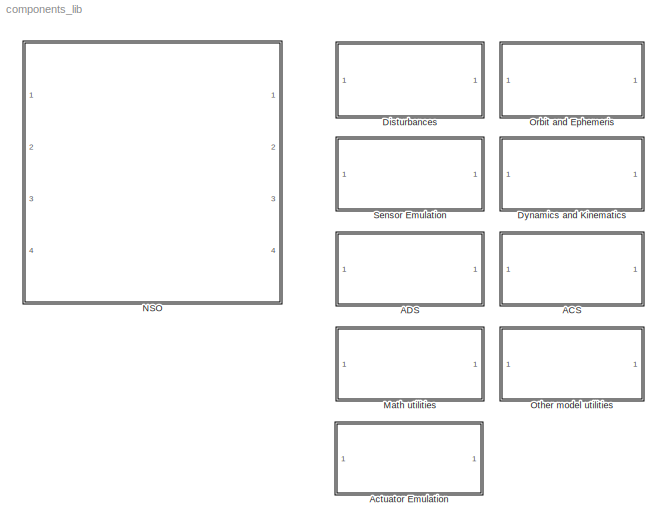
MODEL components_lib
KIND library
BLOCK [SubSystem] ACS
  MinAlgLoopOccurrences = off
  Ports = []
  RTWSystemCode = Auto
  TreatAsAtomicUnit = off
BLOCK [SubSystem] ACS/Controllers
  MinAlgLoopOccurrences = off
  Ports = []
  RTWSystemCode = Auto
  TreatAsAtomicUnit = off
BLOCK [SubSystem] ACS/Controllers/Angular velocity \ncontroller
  MaskDescription = The controller in this block is to be constructed using a state space system. The\nreference is subtracted from the measurement (positive feedback and SS-reference) and passed through the SS-system. Thus if the controller is merely a gain matrix only the D-matrix has to contain the controller and the remaining be zero-matrices. The controller design files are kept in the \"design\" directory and t...<+195ch>
  MaskEnableString = on
  MaskIconFrame = on
  MaskIconOpaque = on
  MaskIconRotate = none
  MaskIconUnits = autoscale
  MaskInitialization = run(strcat('design/',ang_file_name))
  MaskPromptString = Angular rate controller design file name (remember gnyfs :-))
  MaskStyleString = edit
  MaskToolTipString = on
  MaskTunableValueString = on
  MaskType = Angular Velocity Controller
  MaskValueString = 'ang_robust_control.m'
  MaskVariables = ang_file_name=@1;
  MaskVisibilityString = on
  MinAlgLoopOccurrences = off
  Ports = [2, 1]
  RTWSystemCode = Auto
  TreatAsAtomicUnit = off
BLOCK [Outport] ACS/Controllers/Angular velocity \ncontroller/N_mw
  BusOutputAsStruct = off
  IconDisplay = Port number
BLOCK [StateSpace] ACS/Controllers/Angular velocity \ncontroller/State-Space
  A = A_ang_c
  B = B_ang_c
  C = C_ang_c
  D = D_ang_c
BLOCK [Sum] ACS/Controllers/Angular velocity \ncontroller/Sum
  IconShape = round
  InputSameDT = off
  Inputs = |+-
  OutDataTypeMode = Inherit via internal rule
  Ports = [2, 1]
  SaturateOnIntegerOverflow = off
BLOCK [Inport] ACS/Controllers/Angular velocity \ncontroller/omega
  IconDisplay = Port number
  LatchInput = off
  Port = 1
BLOCK [Inport] ACS/Controllers/Angular velocity \ncontroller/omega_ref
  IconDisplay = Port number
  LatchInput = off
  Port = 2
BLOCK [SubSystem] ACS/Controllers/Attitude controller
  MaskDescription = The controller in this block is to be constructed using a state space system. The error quarternion is calculated from the input and the result is used in the SS-system. Thus if the controller is merely a gain matrix only the D-matrix has to contain the controller and the remaining be zero-matrices. The controller design files are kept in the \"design\" directory and the definition of the controll...<+166ch>
  MaskEnableString = on
  MaskIconFrame = on
  MaskIconOpaque = on
  MaskIconRotate = none
  MaskIconUnits = autoscale
  MaskInitialization = run(strcat('design/',att_file_name))
  MaskPromptString = Attitude controller design file name (remember gnyfs :-))
  MaskStyleString = edit
  MaskToolTipString = on
  MaskTunableValueString = on
  MaskType = Attitude Controller
  MaskValueString = 'attitude_control_lqr.m'
  MaskVariables = att_file_name=@1;
  MaskVisibilityString = on
  MinAlgLoopOccurrences = off
  Ports = [3, 1]
  RTWSystemCode = Auto
  TreatAsAtomicUnit = off
BLOCK [Mux] ACS/Controllers/Attitude controller/Mux
  DisplayOption = bar
  Inputs = 2
  Ports = [2, 1]
BLOCK [Reference] ACS/Controllers/Attitude controller/Quarternion error  REF=components_lib/Math utilities/Quaternion operations/Quarternion error  (lib defined in mdl_419550584dda)
  Ports = [2, 1]
  ShowPortLabels = on
  SourceBlock = components_lib/Math utilities/Quaternion operations/Quarternion error
  SourceType = SubSystem
BLOCK [Selector] ACS/Controllers/Attitude controller/Selector
  Elements = [1 2 3]
  InputPortWidth = 4
  Ports = [1, 1]
BLOCK [StateSpace] ACS/Controllers/Attitude controller/State-Space
  A = A_att_c
  B = B_att_c
  C = C_att_c
  D = D_att_c
BLOCK [Inport] ACS/Controllers/Attitude controller/omega
  IconDisplay = Port number
  LatchInput = off
  Port = 3
BLOCK [Outport] ACS/Controllers/Attitude controller/omega_ref
  BusOutputAsStruct = off
  IconDisplay = Port number
BLOCK [Inport] ACS/Controllers/Attitude controller/q_att
  IconDisplay = Port number
  LatchInput = off
  Port = 1
BLOCK [Inport] ACS/Controllers/Attitude controller/q_ref
  IconDisplay = Port number
  LatchInput = off
  Port = 2
BLOCK [SubSystem] ACS/Controllers/Attitude controller\nwith integrator
  MaskDescription = The controller in this block is to be constructed using a state space system. The error quarternion is calculated from the input and the result is used in the SS-system. Thus if the controller is merely a gain matrix only the D-matrix has to contain the controller and the remaining be zero-matrices. The controller design files are kept in the \"design\" directory and the definition of the controll...<+166ch>
  MaskEnableString = on
  MaskIconFrame = on
  MaskIconOpaque = on
  MaskIconRotate = none
  MaskIconUnits = autoscale
  MaskInitialization = run(strcat('design/',att_file_name))
  MaskPromptString = Attitude controller design file name (remember gnyfs :-))
  MaskStyleString = edit
  MaskToolTipString = on
  MaskTunableValueString = on
  MaskType = Attitude Controller
  MaskValueString = 'att_control_with_integrator.m'
  MaskVariables = att_file_name=@1;
  MaskVisibilityString = on
  MinAlgLoopOccurrences = off
  Ports = [3, 1]
  RTWSystemCode = Auto
  TreatAsAtomicUnit = off
BLOCK [Integrator] ACS/Controllers/Attitude controller\nwith integrator/Integrator
  IgnoreLimit = off
  LimitOutput = on
  LowerSaturationLimit = -0.01
  Ports = [1, 1]
  UpperSaturationLimit = 0.01
BLOCK [Mux] ACS/Controllers/Attitude controller\nwith integrator/Mux
  DisplayOption = bar
  Inputs = 3
  Ports = [3, 1]
BLOCK [Reference] ACS/Controllers/Attitude controller\nwith integrator/Quarternion error  REF=components_lib/Math utilities/Quaternion operations/Quarternion error  (lib defined in mdl_419550584dda)
  Ports = [2, 1]
  ShowPortLabels = on
  SourceBlock = components_lib/Math utilities/Quaternion operations/Quarternion error
  SourceType = SubSystem
BLOCK [Selector] ACS/Controllers/Attitude controller\nwith integrator/Selector
  Elements = [1 2 3]
  InputPortWidth = 4
  Ports = [1, 1]
BLOCK [StateSpace] ACS/Controllers/Attitude controller\nwith integrator/State-Space
  A = A_att_c
  B = B_att_c
  C = C_att_c
  D = D_att_c
BLOCK [Inport] ACS/Controllers/Attitude controller\nwith integrator/omega
  IconDisplay = Port number
  LatchInput = off
  Port = 3
BLOCK [Outport] ACS/Controllers/Attitude controller\nwith integrator/omega_ref
  BusOutputAsStruct = off
  IconDisplay = Port number
BLOCK [Inport] ACS/Controllers/Attitude controller\nwith integrator/q_att
  IconDisplay = Port number
  LatchInput = off
  Port = 1
BLOCK [Inport] ACS/Controllers/Attitude controller\nwith integrator/q_ref
  IconDisplay = Port number
  LatchInput = off
  Port = 2
BLOCK [SubSystem] ACS/Controllers/Desaturation controller
  MaskEnableString = on
  MaskIconFrame = on
  MaskIconOpaque = on
  MaskIconRotate = none
  MaskIconUnits = autoscale
  MaskPromptString = Angular momentum bias
  MaskStyleString = edit
  MaskToolTipString = on
  MaskTunableValueString = on
  MaskValueString = 2.23*1e-3
  MaskVariables = h_bias=@1;
  MaskVisibilityString = on
  MinAlgLoopOccurrences = off
  Ports = [2, 2]
  RTWSystemCode = Auto
  TreatAsAtomicUnit = off
BLOCK [Demux] ACS/Controllers/Desaturation controller/Demux
  DisplayOption = bar
  Outputs = 3
  Ports = [1, 3]
BLOCK [Reference] ACS/Controllers/Desaturation controller/Dot Product1  REF=simulink/Math\nOperations/Dot Product
  DoSatur = off
  InputSameDT = on
  LockScale = off
  OutDataType = sfix(16)
  OutScaling = 2^-10
  OutputDataTypeScalingMode = Inherit via internal rule
  Ports = [2, 1]
  RndMeth = Floor
  SourceBlock = simulink/Math\nOperations/Dot Product
  SourceType = Dot Product
BLOCK [From] ACS/Controllers/Desaturation controller/From4
  CloseFcn = tagdialog Close
  GotoTag = Mag_I
BLOCK [From] ACS/Controllers/Desaturation controller/From5
  CloseFcn = tagdialog Close
  GotoTag = q_I_S
BLOCK [Gain] ACS/Controllers/Desaturation controller/Gain
  OutDataTypeMode = Inherit via internal rule
  ParameterDataTypeMode = Inherit via internal rule
  SaturateOnIntegerOverflow = off
BLOCK [Ground] ACS/Controllers/Desaturation controller/Ground
BLOCK [Inport] ACS/Controllers/Desaturation controller/H_mw
  IconDisplay = Port number
  LatchInput = off
  Port = 1
BLOCK [Math] ACS/Controllers/Desaturation controller/Math\nFunction2
  Operator = sqrt
  Ports = [1, 1]
BLOCK [Mux] ACS/Controllers/Desaturation controller/Mux1
  DisplayOption = bar
  Inputs = 3
  Ports = [3, 1]
BLOCK [Sum] ACS/Controllers/Desaturation controller/Sum
  IconShape = round
  InputSameDT = off
  Inputs = |+-
  OutDataTypeMode = Inherit via internal rule
  Ports = [2, 1]
  SaturateOnIntegerOverflow = off
BLOCK [Switch] ACS/Controllers/Desaturation controller/Switch
  Criteria = u2 ~= 0
  InputSameDT = off
  SaturateOnIntegerOverflow = off
  Threshold = 0.5
BLOCK [Inport] ACS/Controllers/Desaturation controller/T_meas
  IconDisplay = Port number
  LatchInput = off
  Port = 2
BLOCK [TransferFcn] ACS/Controllers/Desaturation controller/Transfer Fcn
  Denominator = [1 1]
BLOCK [TransferFcn] ACS/Controllers/Desaturation controller/Transfer Fcn1
  Denominator = [1 1]
BLOCK [TransferFcn] ACS/Controllers/Desaturation controller/Transfer Fcn2
  Denominator = [1 1]
BLOCK [SubSystem] ACS/Controllers/Desaturation controller/Trigger
  MinAlgLoopOccurrences = off
  Ports = [2, 1]
  RTWSystemCode = Auto
  TreatAsAtomicUnit = off
BLOCK [Inport] ACS/Controllers/Desaturation controller/Trigger/B_unit(s)
  IconDisplay = Port number
  LatchInput = off
  Port = 1
  PortDimensions = 3
BLOCK [Reference] ACS/Controllers/Desaturation controller/Trigger/Dot Product2  REF=simulink/Math\nOperations/Dot Product
  DoSatur = off
  InputSameDT = on
  LockScale = off
  OutDataType = sfix(16)
  OutScaling = 2^-10
  OutputDataTypeScalingMode = Inherit via internal rule
  Ports = [2, 1]
  RndMeth = Floor
  SourceBlock = simulink/Math\nOperations/Dot Product
  SourceType = Dot Product
BLOCK [Reference] ACS/Controllers/Desaturation controller/Trigger/Dot Product3  REF=simulink/Math\nOperations/Dot Product
  DoSatur = off
  InputSameDT = on
  LockScale = off
  OutDataType = sfix(16)
  OutScaling = 2^-10
  OutputDataTypeScalingMode = Inherit via internal rule
  Ports = [2, 1]
  RndMeth = Floor
  SourceBlock = simulink/Math\nOperations/Dot Product
  SourceType = Dot Product
BLOCK [Math] ACS/Controllers/Desaturation controller/Trigger/Math\nFunction1
  Operator = sqrt
  Ports = [1, 1]
BLOCK [Math] ACS/Controllers/Desaturation controller/Trigger/Math\nFunction3
  Operator = sqrt
  Ports = [1, 1]
BLOCK [SubSystem] ACS/Controllers/Desaturation controller/Trigger/Relay
  MinAlgLoopOccurrences = off
  Ports = [3, 1]
  RTWSystemCode = Auto
  TreatAsAtomicUnit = off
BLOCK [Logic] ACS/Controllers/Desaturation controller/Trigger/Relay/Logical\nOperator1
  AllPortsSameDT = off
  OutDataTypeMode = Boolean
  Ports = [2, 1]
BLOCK [Logic] ACS/Controllers/Desaturation controller/Trigger/Relay/Logical\nOperator2
  AllPortsSameDT = off
  Operator = OR
  OutDataTypeMode = Boolean
  Ports = [2, 1]
BLOCK [Logic] ACS/Controllers/Desaturation controller/Trigger/Relay/Logical\nOperator3
  AllPortsSameDT = off
  OutDataTypeMode = Boolean
  Ports = [2, 1]
BLOCK [Memory] ACS/Controllers/Desaturation controller/Trigger/Relay/Memory
BLOCK [RelationalOperator] ACS/Controllers/Desaturation controller/Trigger/Relay/Relational\nOperator
  InputSameDT = off
  LogicDataType = 1
  LogicOutDataTypeMode = Boolean
  Operator = >
BLOCK [RelationalOperator] ACS/Controllers/Desaturation controller/Trigger/Relay/Relational\nOperator1
  InputSameDT = off
  LogicDataType = 1
  LogicOutDataTypeMode = Boolean
  Operator = >
BLOCK [Outport] ACS/Controllers/Desaturation controller/Trigger/Relay/Switch
  BusOutputAsStruct = off
  IconDisplay = Port number
BLOCK [Inport] ACS/Controllers/Desaturation controller/Trigger/Relay/lower limet
  IconDisplay = Port number
  LatchInput = off
  Port = 3
BLOCK [Inport] ACS/Controllers/Desaturation controller/Trigger/Relay/upper limet
  IconDisplay = Port number
  LatchInput = off
  Port = 2
BLOCK [Inport] ACS/Controllers/Desaturation controller/Trigger/Relay/||Herr x B_unit||
  IconDisplay = Port number
  LatchInput = off
  Port = 1
BLOCK [Saturate] ACS/Controllers/Desaturation controller/Trigger/Saturation
  LowerLimit = 2*sin(deg2rad(2))*h_bias
  UpperLimit = inf
BLOCK [Sum] ACS/Controllers/Desaturation controller/Trigger/Sum1
  IconShape = round
  InputSameDT = off
  Inputs = |+-
  OutDataTypeMode = Inherit via internal rule
  Ports = [2, 1]
  SaturateOnIntegerOverflow = off
BLOCK [Constant] ACS/Controllers/Desaturation controller/Trigger/angular momentum bias1
  Value = sin(deg2rad(2))*h_bias
BLOCK [Constant] ACS/Controllers/Desaturation controller/Trigger/angular momentum bias3
  Value = 2*5.48e-5
BLOCK [Constant] ACS/Controllers/Desaturation controller/Trigger/angular momentum bias4
  Value = h_bias
BLOCK [Reference] ACS/Controllers/Desaturation controller/Trigger/cross_product  REF=components_lib/Math utilities/Vector operations/cross_product_no_fnc  (lib defined in mdl_419550584dda)
  Ports = [2, 1]
  ShowPortLabels = on
  SourceBlock = components_lib/Math utilities/Vector operations/cross_product_no_fnc
  SourceType = SubSystem
BLOCK [Inport] ACS/Controllers/Desaturation controller/Trigger/h_err
  IconDisplay = Port number
  LatchInput = off
  Port = 2
BLOCK [Product] ACS/Controllers/Desaturation controller/Trigger/mag B div1
  InputSameDT = off
  Inputs = */
  OutDataTypeMode = Inherit via internal rule
  OutScaling = 2^-10
  Ports = [2, 1]
  RndMeth = Floor
  SaturateOnIntegerOverflow = off
BLOCK [Product] ACS/Controllers/Desaturation controller/Trigger/mg B div4
  InputSameDT = off
  OutDataTypeMode = Inherit via internal rule
  OutScaling = 2^-10
  Ports = [2, 1]
  RndMeth = Floor
  SaturateOnIntegerOverflow = off
BLOCK [Outport] ACS/Controllers/Desaturation controller/Trigger/switch
  BusOutputAsStruct = off
  IconDisplay = Port number
BLOCK [Reference] ACS/Controllers/Desaturation controller/Vector rotation by q  REF=components_lib/Math utilities/Quaternion operations/Vector rotation by q  (lib defined in mdl_419550584dda)
  Ports = [2, 1]
  ShowPortLabels = on
  SourceBlock = components_lib/Math utilities/Quaternion operations/Vector rotation by q
  SourceType = SubSystem
BLOCK [Constant] ACS/Controllers/Desaturation controller/angular momentum bias
  Value = h_bias*ones(1,3)
BLOCK [Reference] ACS/Controllers/Desaturation controller/cross_product  REF=components_lib/Math utilities/Vector operations/cross_product_no_fnc  (lib defined in mdl_419550584dda)
  Ports = [2, 1]
  ShowPortLabels = on
  SourceBlock = components_lib/Math utilities/Vector operations/cross_product_no_fnc
  SourceType = SubSystem
BLOCK [Outport] ACS/Controllers/Desaturation controller/desat_on_off
  BusOutputAsStruct = off
  IconDisplay = Port number
  Port = 2
BLOCK [SubSystem] ACS/Controllers/Desaturation controller/m_mt to v_mt conversion
  MaskCallbackString = |||
  MaskEnableString = on,on,on,on
  MaskIconFrame = on
  MaskIconOpaque = on
  MaskIconRotate = none
  MaskIconUnits = autoscale
  MaskPromptString = Coil winding number [n_x n_y n_z]|Coil area [A_mt_x A_mt_y A_mt_z] |Coil inductance [L_mt_x L_mt_y L_mt_z]|Maximum voltage
  MaskStyleString = edit,edit,edit,edit
  MaskTabNameString = ,,,
  MaskToolTipString = on,on,on,on
  MaskTunableValueString = on,on,on,on
  MaskValueString = [435 435 865]|[0.21*0.07 0.21*0.07 0.07*0.07]|[26.956e-3 26.956e-3 59.256e-3]|5
  MaskVarAliasString = ,,,
  MaskVariables = n_mt=@1;A_mt=@2;L_mt=@3;v_max_mt=@4;
  MaskVisibilityString = on,on,on,on
  MinAlgLoopOccurrences = off
  Ports = [2, 1]
  RTWSystemCode = Auto
  TreatAsAtomicUnit = off
BLOCK [Demux] ACS/Controllers/Desaturation controller/m_mt to v_mt conversion/Demux
  DisplayOption = bar
  Outputs = 3
  Ports = [1, 3]
BLOCK [Gain] ACS/Controllers/Desaturation controller/m_mt to v_mt conversion/Gain
  Gain = 1/(n_mt(1)*A_mt(1))
  OutDataTypeMode = Inherit via internal rule
  ParameterDataTypeMode = Inherit via internal rule
  SaturateOnIntegerOverflow = off
BLOCK [Gain] ACS/Controllers/Desaturation controller/m_mt to v_mt conversion/Gain1
  Gain = 1/(n_mt(2)*A_mt(2))
  OutDataTypeMode = Inherit via internal rule
  ParameterDataTypeMode = Inherit via internal rule
  SaturateOnIntegerOverflow = off
BLOCK [Gain] ACS/Controllers/Desaturation controller/m_mt to v_mt conversion/Gain2
  Gain = 1/(n_mt(3)*A_mt(3))
  OutDataTypeMode = Inherit via internal rule
  ParameterDataTypeMode = Inherit via internal rule
  SaturateOnIntegerOverflow = off
BLOCK [Mux] ACS/Controllers/Desaturation controller/m_mt to v_mt conversion/Mux
  DisplayOption = bar
  Inputs = 3
  Ports = [3, 1]
BLOCK [SubSystem] ACS/Controllers/Desaturation controller/m_mt to v_mt conversion/Resistance for mt on x-axis
  MaskCallbackString = |||
  MaskEnableString = on,on,on,on
  MaskIconFrame = on
  MaskIconOpaque = on
  MaskIconRotate = none
  MaskIconUnits = autoscale
  MaskPromptString = Wire cross sectional area|Wire resistivity|Wire resistivity temp. coef.|Wire resistivity base temp.
  MaskStyleString = edit,edit,edit,edit
  MaskTabNameString = ,,,
  MaskToolTipString = on,on,on,on
  MaskTunableValueString = on,on,on,on
  MaskValueString = (pi/4)*0.0002^2|1.7e-8|3.9e-3|293
  MaskVarAliasString = ,,,
  MaskVariables = A_wire_mt=@1;sigma_0_mt=@2;alpha_0_mt=@3;T_0_mt=@4;
  MaskVisibilityString = on,on,on,on
  MinAlgLoopOccurrences = off
  Ports = [1, 1]
  RTWSystemCode = Auto
  TreatAsAtomicUnit = off
BLOCK [Product] ACS/Controllers/Desaturation controller/m_mt to v_mt conversion/Resistance for mt on x-axis/Prodct5
  InputSameDT = off
  Inputs = */
  OutDataTypeMode = Inherit via internal rule
  Ports = [2, 1]
  SaturateOnIntegerOverflow = off
BLOCK [Product] ACS/Controllers/Desaturation controller/m_mt to v_mt conversion/Resistance for mt on x-axis/Product1
  InputSameDT = off
  Inputs = 3
  OutDataTypeMode = Inherit via internal rule
  Ports = [3, 1]
  SaturateOnIntegerOverflow = off
BLOCK [Product] ACS/Controllers/Desaturation controller/m_mt to v_mt conversion/Resistance for mt on x-axis/Product3
  InputSameDT = off
  Inputs = 3
  OutDataTypeMode = Inherit via internal rule
  Ports = [3, 1]
  SaturateOnIntegerOverflow = off
BLOCK [Outport] ACS/Controllers/Desaturation controller/m_mt to v_mt conversion/Resistance for mt on x-axis/R(T)
  BusOutputAsStruct = off
  IconDisplay = Port number
BLOCK [Constant] ACS/Controllers/Desaturation controller/m_mt to v_mt conversion/Resistance for mt on x-axis/Resistivity
  Value = sigma_0_mt
BLOCK [Constant] ACS/Controllers/Desaturation controller/m_mt to v_mt conversion/Resistance for mt on x-axis/Resistivity temperature\ncoefficient
  Value = alpha_0_mt
BLOCK [Constant] ACS/Controllers/Desaturation controller/m_mt to v_mt conversion/Resistance for mt on x-axis/Resistivity\nbase temperature
  Value = T_0_mt
BLOCK [Sum] ACS/Controllers/Desaturation controller/m_mt to v_mt conversion/Resistance for mt on x-axis/Sum1
  IconShape = round
  InputSameDT = off
  Inputs = |+-
  OutDataTypeMode = Inherit via internal rule
  Ports = [2, 1]
  SaturateOnIntegerOverflow = off
BLOCK [Sum] ACS/Controllers/Desaturation controller/m_mt to v_mt conversion/Resistance for mt on x-axis/Sum2
  IconShape = round
  InputSameDT = off
  Inputs = |++
  OutDataTypeMode = Inherit via internal rule
  Ports = [2, 1]
  SaturateOnIntegerOverflow = off
BLOCK [Inport] ACS/Controllers/Desaturation controller/m_mt to v_mt conversion/Resistance for mt on x-axis/T
  IconDisplay = Port number
  LatchInput = off
  Port = 1
BLOCK [Constant] ACS/Controllers/Desaturation controller/m_mt to v_mt conversion/Resistance for mt on x-axis/Windings1
  Value = n_mt(1)
BLOCK [Constant] ACS/Controllers/Desaturation controller/m_mt to v_mt conversion/Resistance for mt on x-axis/Wire cross\nsectional area
  Value = A_wire_mt
BLOCK [Constant] ACS/Controllers/Desaturation controller/m_mt to v_mt conversion/Resistance for mt on x-axis/wire \ncircumference
  Value = 4*sqrt(A_mt(1))
BLOCK [SubSystem] ACS/Controllers/Desaturation controller/m_mt to v_mt conversion/Resistance for mt on y-axis
  MaskCallbackString = |||
  MaskEnableString = on,on,on,on
  MaskIconFrame = on
  MaskIconOpaque = on
  MaskIconRotate = none
  MaskIconUnits = autoscale
  MaskPromptString = Wire cross sectional area|Wire resistivity|Wire resistivity temp. coef.|Wire resistivity base temp.
  MaskStyleString = edit,edit,edit,edit
  MaskTabNameString = ,,,
  MaskToolTipString = on,on,on,on
  MaskTunableValueString = on,on,on,on
  MaskValueString = (pi/4)*0.0002^2|1.7e-8|3.9e-3|293
  MaskVarAliasString = ,,,
  MaskVariables = A_wire_mt=@1;sigma_0_mt=@2;alpha_0_mt=@3;T_0_mt=@4;
  MaskVisibilityString = on,on,on,on
  MinAlgLoopOccurrences = off
  Ports = [1, 1]
  RTWSystemCode = Auto
  TreatAsAtomicUnit = off
BLOCK [Product] ACS/Controllers/Desaturation controller/m_mt to v_mt conversion/Resistance for mt on y-axis/Prodct5
  InputSameDT = off
  Inputs = */
  OutDataTypeMode = Inherit via internal rule
  Ports = [2, 1]
  SaturateOnIntegerOverflow = off
BLOCK [Product] ACS/Controllers/Desaturation controller/m_mt to v_mt conversion/Resistance for mt on y-axis/Product1
  InputSameDT = off
  Inputs = 3
  OutDataTypeMode = Inherit via internal rule
  Ports = [3, 1]
  SaturateOnIntegerOverflow = off
BLOCK [Product] ACS/Controllers/Desaturation controller/m_mt to v_mt conversion/Resistance for mt on y-axis/Product3
  InputSameDT = off
  Inputs = 3
  OutDataTypeMode = Inherit via internal rule
  Ports = [3, 1]
  SaturateOnIntegerOverflow = off
BLOCK [Outport] ACS/Controllers/Desaturation controller/m_mt to v_mt conversion/Resistance for mt on y-axis/R(T)
  BusOutputAsStruct = off
  IconDisplay = Port number
BLOCK [Constant] ACS/Controllers/Desaturation controller/m_mt to v_mt conversion/Resistance for mt on y-axis/Resistivity
  Value = sigma_0_mt
BLOCK [Constant] ACS/Controllers/Desaturation controller/m_mt to v_mt conversion/Resistance for mt on y-axis/Resistivity temperature\ncoefficient
  Value = alpha_0_mt
BLOCK [Constant] ACS/Controllers/Desaturation controller/m_mt to v_mt conversion/Resistance for mt on y-axis/Resistivity\nbase temperature
  Value = T_0_mt
BLOCK [Sum] ACS/Controllers/Desaturation controller/m_mt to v_mt conversion/Resistance for mt on y-axis/Sum1
  IconShape = round
  InputSameDT = off
  Inputs = |+-
  OutDataTypeMode = Inherit via internal rule
  Ports = [2, 1]
  SaturateOnIntegerOverflow = off
BLOCK [Sum] ACS/Controllers/Desaturation controller/m_mt to v_mt conversion/Resistance for mt on y-axis/Sum2
  IconShape = round
  InputSameDT = off
  Inputs = |++
  OutDataTypeMode = Inherit via internal rule
  Ports = [2, 1]
  SaturateOnIntegerOverflow = off
BLOCK [Inport] ACS/Controllers/Desaturation controller/m_mt to v_mt conversion/Resistance for mt on y-axis/T
  IconDisplay = Port number
  LatchInput = off
  Port = 1
BLOCK [Constant] ACS/Controllers/Desaturation controller/m_mt to v_mt conversion/Resistance for mt on y-axis/Windings1
  Value = n_mt(2)
BLOCK [Constant] ACS/Controllers/Desaturation controller/m_mt to v_mt conversion/Resistance for mt on y-axis/Wire cross\nsectional area
  Value = A_wire_mt
BLOCK [Constant] ACS/Controllers/Desaturation controller/m_mt to v_mt conversion/Resistance for mt on y-axis/wire \ncircumference
  Value = 4*sqrt(A_mt(2))
BLOCK [SubSystem] ACS/Controllers/Desaturation controller/m_mt to v_mt conversion/Resistance for mt on z-axis
  MaskCallbackString = |||
  MaskEnableString = on,on,on,on
  MaskIconFrame = on
  MaskIconOpaque = on
  MaskIconRotate = none
  MaskIconUnits = autoscale
  MaskPromptString = Wire cross sectional area|Wire resistivity|Wire resistivity temp. coef.|Wire resistivity base temp.
  MaskStyleString = edit,edit,edit,edit
  MaskTabNameString = ,,,
  MaskToolTipString = on,on,on,on
  MaskTunableValueString = on,on,on,on
  MaskValueString = (pi/4)*0.0002^2|1.7e-8|3.9e-3|293
  MaskVarAliasString = ,,,
  MaskVariables = A_wire_mt=@1;sigma_0_mt=@2;alpha_0_mt=@3;T_0_mt=@4;
  MaskVisibilityString = on,on,on,on
  MinAlgLoopOccurrences = off
  Ports = [1, 1]
  RTWSystemCode = Auto
  TreatAsAtomicUnit = off
BLOCK [Product] ACS/Controllers/Desaturation controller/m_mt to v_mt conversion/Resistance for mt on z-axis/Prodct5
  InputSameDT = off
  Inputs = */
  OutDataTypeMode = Inherit via internal rule
  Ports = [2, 1]
  SaturateOnIntegerOverflow = off
BLOCK [Product] ACS/Controllers/Desaturation controller/m_mt to v_mt conversion/Resistance for mt on z-axis/Product1
  InputSameDT = off
  Inputs = 3
  OutDataTypeMode = Inherit via internal rule
  Ports = [3, 1]
  SaturateOnIntegerOverflow = off
BLOCK [Product] ACS/Controllers/Desaturation controller/m_mt to v_mt conversion/Resistance for mt on z-axis/Product3
  InputSameDT = off
  Inputs = 3
  OutDataTypeMode = Inherit via internal rule
  Ports = [3, 1]
  SaturateOnIntegerOverflow = off
BLOCK [Outport] ACS/Controllers/Desaturation controller/m_mt to v_mt conversion/Resistance for mt on z-axis/R(T)
  BusOutputAsStruct = off
  IconDisplay = Port number
BLOCK [Constant] ACS/Controllers/Desaturation controller/m_mt to v_mt conversion/Resistance for mt on z-axis/Resistivity
  Value = sigma_0_mt
BLOCK [Constant] ACS/Controllers/Desaturation controller/m_mt to v_mt conversion/Resistance for mt on z-axis/Resistivity temperature\ncoefficient
  Value = alpha_0_mt
BLOCK [Constant] ACS/Controllers/Desaturation controller/m_mt to v_mt conversion/Resistance for mt on z-axis/Resistivity\nbase temperature
  Value = T_0_mt
BLOCK [Sum] ACS/Controllers/Desaturation controller/m_mt to v_mt conversion/Resistance for mt on z-axis/Sum1
  IconShape = round
  InputSameDT = off
  Inputs = |+-
  OutDataTypeMode = Inherit via internal rule
  Ports = [2, 1]
  SaturateOnIntegerOverflow = off
BLOCK [Sum] ACS/Controllers/Desaturation controller/m_mt to v_mt conversion/Resistance for mt on z-axis/Sum2
  IconShape = round
  InputSameDT = off
  Inputs = |++
  OutDataTypeMode = Inherit via internal rule
  Ports = [2, 1]
  SaturateOnIntegerOverflow = off
BLOCK [Inport] ACS/Controllers/Desaturation controller/m_mt to v_mt conversion/Resistance for mt on z-axis/T
  IconDisplay = Port number
  LatchInput = off
  Port = 1
BLOCK [Constant] ACS/Controllers/Desaturation controller/m_mt to v_mt conversion/Resistance for mt on z-axis/Windings1
  Value = n_mt(3)
BLOCK [Constant] ACS/Controllers/Desaturation controller/m_mt to v_mt conversion/Resistance for mt on z-axis/Wire cross\nsectional area
  Value = A_wire_mt
BLOCK [Constant] ACS/Controllers/Desaturation controller/m_mt to v_mt conversion/Resistance for mt on z-axis/wire \ncircumference
  Value = 4*sqrt(A_mt(3))
BLOCK [Inport] ACS/Controllers/Desaturation controller/m_mt to v_mt conversion/T_meas
  IconDisplay = Port number
  LatchInput = off
  Port = 2
BLOCK [SubSystem] ACS/Controllers/Desaturation controller/m_mt to v_mt conversion/electromechanis\ntransfer funtion for mt_x
  MinAlgLoopOccurrences = off
  Ports = [2, 1]
  RTWSystemCode = Auto
  TreatAsAtomicUnit = off
BLOCK [Derivative] ACS/Controllers/Desaturation controller/m_mt to v_mt conversion/electromechanis\ntransfer funtion for mt_x/Derivative
BLOCK [Gain] ACS/Controllers/Desaturation controller/m_mt to v_mt conversion/electromechanis\ntransfer funtion for mt_x/Gain
  Gain = L_mt(1)
  OutDataTypeMode = Inherit via internal rule
  ParameterDataTypeMode = Inherit via internal rule
  SaturateOnIntegerOverflow = off
BLOCK [Product] ACS/Controllers/Desaturation controller/m_mt to v_mt conversion/electromechanis\ntransfer funtion for mt_x/Product1
  InputSameDT = off
  OutDataTypeMode = Inherit via internal rule
  Ports = [2, 1]
  SaturateOnIntegerOverflow = off
BLOCK [Inport] ACS/Controllers/Desaturation controller/m_mt to v_mt conversion/electromechanis\ntransfer funtion for mt_x/R(T)
  IconDisplay = Port number
  LatchInput = off
  Port = 2
BLOCK [Scope] ACS/Controllers/Desaturation controller/m_mt to v_mt conversion/electromechanis\ntransfer funtion for mt_x/Scope
  DataFormat = StructureWithTime
  LimitDataPoints = off
  NumInputPorts = 3
  Ports = [3]
  SaveName = ScopeData9
  YMax = 5~5~5
  YMin = -5~-5~-5
BLOCK [Sum] ACS/Controllers/Desaturation controller/m_mt to v_mt conversion/electromechanis\ntransfer funtion for mt_x/Sum
  IconShape = round
  InputSameDT = off
  Inputs = ++|
  OutDataTypeMode = Inherit via internal rule
  Ports = [2, 1]
  SaturateOnIntegerOverflow = off
BLOCK [Inport] ACS/Controllers/Desaturation controller/m_mt to v_mt conversion/electromechanis\ntransfer funtion for mt_x/i_mt
  IconDisplay = Port number
  LatchInput = off
  Port = 1
BLOCK [Outport] ACS/Controllers/Desaturation controller/m_mt to v_mt conversion/electromechanis\ntransfer funtion for mt_x/v_mt
  BusOutputAsStruct = off
  IconDisplay = Port number
BLOCK [SubSystem] ACS/Controllers/Desaturation controller/m_mt to v_mt conversion/electromechanis\ntransfer funtion for mt_y\n
  MinAlgLoopOccurrences = off
  Ports = [2, 1]
  RTWSystemCode = Auto
  TreatAsAtomicUnit = off
BLOCK [Derivative] ACS/Controllers/Desaturation controller/m_mt to v_mt conversion/electromechanis\ntransfer funtion for mt_y\n/Derivative
BLOCK [Gain] ACS/Controllers/Desaturation controller/m_mt to v_mt conversion/electromechanis\ntransfer funtion for mt_y\n/Gain
  Gain = L_mt(2)
  OutDataTypeMode = Inherit via internal rule
  ParameterDataTypeMode = Inherit via internal rule
  SaturateOnIntegerOverflow = off
BLOCK [Product] ACS/Controllers/Desaturation controller/m_mt to v_mt conversion/electromechanis\ntransfer funtion for mt_y\n/Product1
  InputSameDT = off
  OutDataTypeMode = Inherit via internal rule
  Ports = [2, 1]
  SaturateOnIntegerOverflow = off
BLOCK [Inport] ACS/Controllers/Desaturation controller/m_mt to v_mt conversion/electromechanis\ntransfer funtion for mt_y\n/R(T)
  IconDisplay = Port number
  LatchInput = off
  Port = 2
BLOCK [Sum] ACS/Controllers/Desaturation controller/m_mt to v_mt conversion/electromechanis\ntransfer funtion for mt_y\n/Sum
  IconShape = round
  InputSameDT = off
  Inputs = ++|
  OutDataTypeMode = Inherit via internal rule
  Ports = [2, 1]
  SaturateOnIntegerOverflow = off
BLOCK [Inport] ACS/Controllers/Desaturation controller/m_mt to v_mt conversion/electromechanis\ntransfer funtion for mt_y\n/i_mt
  IconDisplay = Port number
  LatchInput = off
  Port = 1
BLOCK [Outport] ACS/Controllers/Desaturation controller/m_mt to v_mt conversion/electromechanis\ntransfer funtion for mt_y\n/v_mt
  BusOutputAsStruct = off
  IconDisplay = Port number
BLOCK [SubSystem] ACS/Controllers/Desaturation controller/m_mt to v_mt conversion/electromechanis\ntransfer funtion for mt_z\n
  MinAlgLoopOccurrences = off
  Ports = [2, 1]
  RTWSystemCode = Auto
  TreatAsAtomicUnit = off
BLOCK [Derivative] ACS/Controllers/Desaturation controller/m_mt to v_mt conversion/electromechanis\ntransfer funtion for mt_z\n/Derivative
BLOCK [Gain] ACS/Controllers/Desaturation controller/m_mt to v_mt conversion/electromechanis\ntransfer funtion for mt_z\n/Gain
  Gain = L_mt(3)
  OutDataTypeMode = Inherit via internal rule
  ParameterDataTypeMode = Inherit via internal rule
  SaturateOnIntegerOverflow = off
BLOCK [Product] ACS/Controllers/Desaturation controller/m_mt to v_mt conversion/electromechanis\ntransfer funtion for mt_z\n/Product1
  InputSameDT = off
  OutDataTypeMode = Inherit via internal rule
  Ports = [2, 1]
  SaturateOnIntegerOverflow = off
BLOCK [Inport] ACS/Controllers/Desaturation controller/m_mt to v_mt conversion/electromechanis\ntransfer funtion for mt_z\n/R(T)
  IconDisplay = Port number
  LatchInput = off
  Port = 2
BLOCK [Sum] ACS/Controllers/Desaturation controller/m_mt to v_mt conversion/electromechanis\ntransfer funtion for mt_z\n/Sum
  IconShape = round
  InputSameDT = off
  Inputs = ++|
  OutDataTypeMode = Inherit via internal rule
  Ports = [2, 1]
  SaturateOnIntegerOverflow = off
BLOCK [Inport] ACS/Controllers/Desaturation controller/m_mt to v_mt conversion/electromechanis\ntransfer funtion for mt_z\n/i_mt
  IconDisplay = Port number
  LatchInput = off
  Port = 1
BLOCK [Outport] ACS/Controllers/Desaturation controller/m_mt to v_mt conversion/electromechanis\ntransfer funtion for mt_z\n/v_mt
  BusOutputAsStruct = off
  IconDisplay = Port number
BLOCK [Scope] ACS/Controllers/Desaturation controller/m_mt to v_mt conversion/i_mt
  DataFormat = StructureWithTime
  LimitDataPoints = off
  NumInputPorts = 3
  Ports = [3]
  SaveName = ScopeData8
  YMax = 5~5~5
  YMin = -5~-5~-5
BLOCK [Inport] ACS/Controllers/Desaturation controller/m_mt to v_mt conversion/m_mt
  IconDisplay = Port number
  LatchInput = off
  Port = 1
BLOCK [Outport] ACS/Controllers/Desaturation controller/m_mt to v_mt conversion/v_mt
  BusOutputAsStruct = off
  IconDisplay = Port number
BLOCK [Product] ACS/Controllers/Desaturation controller/mag B div
  InputSameDT = off
  Inputs = */
  OutDataTypeMode = Inherit via internal rule
  OutScaling = 2^-10
  Ports = [2, 1]
  RndMeth = Floor
  SaturateOnIntegerOverflow = off
BLOCK [Reference] ACS/Controllers/Desaturation controller/to unit vector  REF=components_lib/Math utilities/Vector operations/to unit vector  (lib defined in mdl_419550584dda)
  Ports = [1, 1]
  ShowPortLabels = on
  SourceBlock = components_lib/Math utilities/Vector operations/to unit vector
  SourceType = SubSystem
BLOCK [Outport] ACS/Controllers/Desaturation controller/v_mt
  BusOutputAsStruct = off
  IconDisplay = Port number
BLOCK [SubSystem] ACS/Controllers/Detumble controller
  MaskCallbackString = |||
  MaskEnableString = on,on,on,on
  MaskIconFrame = on
  MaskIconOpaque = on
  MaskIconRotate = none
  MaskIconUnits = autoscale
  MaskPromptString = B-dot continous gain|B-dot filter cut-off frequency|B-dot discrete gain|Controller
  MaskStyleString = edit,edit,edit,popup(none|Continous|Discrete)
  MaskTabNameString = ,,,
  MaskToolTipString = on,on,on,on
  MaskTunableValueString = on,on,on,on
  MaskValueString = 11000|0.7|1500|none
  MaskVarAliasString = ,,,
  MaskVariables = C_cont=@1;w_c=@2;C_disc=@3;ctrl=@4;
  MaskVisibilityString = on,on,on,on
  MinAlgLoopOccurrences = off
  Ports = [2, 1]
  RTWSystemCode = Auto
  TreatAsAtomicUnit = off
BLOCK [Inport] ACS/Controllers/Detumble controller/B(I)
  IconDisplay = Port number
  LatchInput = off
  Port = 2
BLOCK [Constant] ACS/Controllers/Detumble controller/Constant
  Value = ctrl
BLOCK [SubSystem] ACS/Controllers/Detumble controller/Continous B-dot controller
  MinAlgLoopOccurrences = off
  Ports = [1, 1]
  RTWSystemCode = Auto
  TreatAsAtomicUnit = off
BLOCK [Inport] ACS/Controllers/Detumble controller/Continous B-dot controller/B(S)
  IconDisplay = Port number
  LatchInput = off
  Port = 1
BLOCK [Gain] ACS/Controllers/Detumble controller/Continous B-dot controller/Gain
  Gain = w_c
  OutDataTypeMode = Inherit via internal rule
  ParameterDataTypeMode = Inherit via internal rule
  SaturateOnIntegerOverflow = off
BLOCK [Gain] ACS/Controllers/Detumble controller/Continous B-dot controller/Gain1
  Gain = -C_cont
  OutDataTypeMode = Inherit via internal rule
  ParameterDataTypeMode = Inherit via internal rule
  SaturateOnIntegerOverflow = off
BLOCK [Integrator] ACS/Controllers/Detumble controller/Continous B-dot controller/Integrator
  IgnoreLimit = off
  Ports = [1, 1]
BLOCK [Sum] ACS/Controllers/Detumble controller/Continous B-dot controller/Sum
  IconShape = round
  InputSameDT = off
  Inputs = |+-
  OutDataTypeMode = Inherit via internal rule
  Ports = [2, 1]
  SaturateOnIntegerOverflow = off
BLOCK [Outport] ACS/Controllers/Detumble controller/Continous B-dot controller/m_mt(S)
  BusOutputAsStruct = off
  IconDisplay = Port number
BLOCK [SubSystem] ACS/Controllers/Detumble controller/Discrete B-dot controller
  MinAlgLoopOccurrences = off
  Ports = [1, 1]
  RTWSystemCode = Auto
  TreatAsAtomicUnit = off
BLOCK [Inport] ACS/Controllers/Detumble controller/Discrete B-dot controller/B(S)
  IconDisplay = Port number
  LatchInput = off
  Port = 1
BLOCK [Clock] ACS/Controllers/Detumble controller/Discrete B-dot controller/Clock
  Decimation = 1
BLOCK [Reference] ACS/Controllers/Detumble controller/Discrete B-dot controller/Discrete B-dot filter  REF=discrete_bdot_filter/Discrete B-dot filter
  Ports = [1, 1]
  ShowPortLabels = on
  SourceBlock = discrete_bdot_filter/Discrete B-dot filter
  SourceType = SubSystem
BLOCK [Gain] ACS/Controllers/Detumble controller/Discrete B-dot controller/Gain1
  Gain = -C_disc
  OutDataTypeMode = Inherit via internal rule
  ParameterDataTypeMode = Inherit via internal rule
  SaturateOnIntegerOverflow = off
BLOCK [If] ACS/Controllers/Detumble controller/Discrete B-dot controller/If
  IfExpression = u1 > 2
  Ports = [1, 2]
BLOCK [If] ACS/Controllers/Detumble controller/Discrete B-dot controller/If1
  IfExpression = u1 < 4
  Ports = [1, 2]
BLOCK [If] ACS/Controllers/Detumble controller/Discrete B-dot controller/If2
  IfExpression = u1 < 2
  Ports = [1, 2]
BLOCK [SubSystem] ACS/Controllers/Detumble controller/Discrete B-dot controller/Subsystem1
  AncestorBlock = attitude_control_lib/Attitude Control/B-dot controller disc/Subsystem2
  MinAlgLoopOccurrences = off
  Ports = [1, 1, 0, 0, 0, 0, 0, 1]
  RTWSystemCode = Auto
  TreatAsAtomicUnit = off
BLOCK [ActionPort] ACS/Controllers/Detumble controller/Discrete B-dot controller/Subsystem1/Action Port
  InitializeStates = reset
BLOCK [Inport] ACS/Controllers/Detumble controller/Discrete B-dot controller/Subsystem1/In1
  IconDisplay = Port number
  LatchInput = off
  Port = 1
BLOCK [Outport] ACS/Controllers/Detumble controller/Discrete B-dot controller/Subsystem1/Out1
  BusOutputAsStruct = off
  IconDisplay = Port number
  InitialOutput = [0 0 0]
  OutputWhenDisabled = reset
BLOCK [SubSystem] ACS/Controllers/Detumble controller/Discrete B-dot controller/Subsystem2
  AncestorBlock = attitude_control_lib/Attitude Control/B-dot controller disc/Subsystem2
  MinAlgLoopOccurrences = off
  Ports = [1, 1, 0, 0, 0, 0, 0, 1]
  RTWSystemCode = Auto
  TreatAsAtomicUnit = off
BLOCK [ActionPort] ACS/Controllers/Detumble controller/Discrete B-dot controller/Subsystem2/Action Port
  InitializeStates = reset
BLOCK [Inport] ACS/Controllers/Detumble controller/Discrete B-dot controller/Subsystem2/In1
  IconDisplay = Port number
  LatchInput = off
  Port = 1
BLOCK [Outport] ACS/Controllers/Detumble controller/Discrete B-dot controller/Subsystem2/Out1
  BusOutputAsStruct = off
  IconDisplay = Port number
  InitialOutput = [0 0 0]
  OutputWhenDisabled = reset
BLOCK [SubSystem] ACS/Controllers/Detumble controller/Discrete B-dot controller/Subsystem3
  AncestorBlock = attitude_control_lib/Attitude Control/B-dot controller disc/Subsystem2
  MinAlgLoopOccurrences = off
  Ports = [1, 1, 0, 0, 0, 0, 0, 1]
  RTWSystemCode = Auto
  TreatAsAtomicUnit = off
BLOCK [ActionPort] ACS/Controllers/Detumble controller/Discrete B-dot controller/Subsystem3/Action Port
  InitializeStates = reset
BLOCK [Inport] ACS/Controllers/Detumble controller/Discrete B-dot controller/Subsystem3/In1
  IconDisplay = Port number
  LatchInput = off
  Port = 1
BLOCK [Outport] ACS/Controllers/Detumble controller/Discrete B-dot controller/Subsystem3/Out1
  BusOutputAsStruct = off
  IconDisplay = Port number
  InitialOutput = [0 0 0]
  OutputWhenDisabled = reset
BLOCK [Outport] ACS/Controllers/Detumble controller/Discrete B-dot controller/m_mt(s)
  BusOutputAsStruct = off
  IconDisplay = Port number
BLOCK [MATLABFcn] ACS/Controllers/Detumble controller/Discrete B-dot controller/mod 10
  MATLABFcn = mod(u(1),4)
BLOCK [SubSystem] ACS/Controllers/Detumble controller/Magnetic field I to S
  MinAlgLoopOccurrences = off
  Ports = [2, 1]
  RTWSystemCode = Auto
  TreatAsAtomicUnit = off
BLOCK [Inport] ACS/Controllers/Detumble controller/Magnetic field I to S/B(I)
  IconDisplay = Port number
  LatchInput = off
  Port = 2
BLOCK [Outport] ACS/Controllers/Detumble controller/Magnetic field I to S/B(S)
  BusOutputAsStruct = off
  IconDisplay = Port number
BLOCK [Gain] ACS/Controllers/Detumble controller/Magnetic field I to S/Gauss to Tesla
  Gain = 1e-4
  OutDataTypeMode = Inherit via internal rule
  ParameterDataTypeMode = Inherit via internal rule
  SaturateOnIntegerOverflow = off
BLOCK [Reference] ACS/Controllers/Detumble controller/Magnetic field I to S/Vector rotation by q1  REF=components_lib/Math utilities/Quaternion operations/Vector rotation by q  (lib defined in mdl_419550584dda)
  Ports = [2, 1]
  ShowPortLabels = on
  SourceBlock = components_lib/Math utilities/Quaternion operations/Vector rotation by q
  SourceType = SubSystem
BLOCK [Inport] ACS/Controllers/Detumble controller/Magnetic field I to S/q(I->S)
  IconDisplay = Port number
  LatchInput = off
  Port = 1
BLOCK [Merge] ACS/Controllers/Detumble controller/Merge
  Ports = [2, 1]
BLOCK [SwitchCase] ACS/Controllers/Detumble controller/Switch Case
  CaseConditions = {2,3}
  CaseShowDefault = off
  Ports = [1, 2]
BLOCK [SubSystem] ACS/Controllers/Detumble controller/enable//disable continous controller
  MinAlgLoopOccurrences = off
  Ports = [1, 1, 0, 0, 0, 0, 0, 1]
  RTWSystemCode = Auto
  TreatAsAtomicUnit = on
BLOCK [ActionPort] ACS/Controllers/Detumble controller/enable//disable continous controller/Action Port
BLOCK [Inport] ACS/Controllers/Detumble controller/enable//disable continous controller/In1
  IconDisplay = Port number
  LatchInput = off
  Port = 1
BLOCK [Outport] ACS/Controllers/Detumble controller/enable//disable continous controller/Out1
  BusOutputAsStruct = off
  IconDisplay = Port number
BLOCK [SubSystem] ACS/Controllers/Detumble controller/enable//disable discrete controller
  MinAlgLoopOccurrences = off
  Ports = [1, 1, 0, 0, 0, 0, 0, 1]
  RTWSystemCode = Auto
  TreatAsAtomicUnit = on
BLOCK [ActionPort] ACS/Controllers/Detumble controller/enable//disable discrete controller/Action Port
BLOCK [Inport] ACS/Controllers/Detumble controller/enable//disable discrete controller/In1
  IconDisplay = Port number
  LatchInput = off
  Port = 1
BLOCK [Outport] ACS/Controllers/Detumble controller/enable//disable discrete controller/Out1
  BusOutputAsStruct = off
  IconDisplay = Port number
BLOCK [Outport] ACS/Controllers/Detumble controller/m_mt(S)
  BusOutputAsStruct = off
  IconDisplay = Port number
BLOCK [Inport] ACS/Controllers/Detumble controller/q(I->S)
  IconDisplay = Port number
  LatchInput = off
  Port = 1
BLOCK [SubSystem] ACS/Controllers/Estimation of dist\nKalman filter
  MaskDescription = The estimator in this block is to be constructed using a state space system.\nThe estimator block has three input (the control torque, measured quaternion and measured angular velocity).\nThe design of the estimator is developed in an m-file located in the design folder\nThe different matrices for the state space system are named:\nA_kalman\nB_kalman\nC_kalman\nD_kalman
  MaskEnableString = on
  MaskIconFrame = on
  MaskIconOpaque = on
  MaskIconRotate = none
  MaskIconUnits = autoscale
  MaskInitialization = run(strcat('design/',ang_file_name))\n
  MaskPromptString = Estimator design file name (remember gnyfs :-))
  MaskStyleString = edit
  MaskToolTipString = on
  MaskTunableValueString = on
  MaskType = Estimator Block
  MaskValueString = 'kalman_estimator.m'
  MaskVariables = ang_file_name=@1;
  MaskVisibilityString = on
  MinAlgLoopOccurrences = off
  Ports = [2, 1]
  RTWSystemCode = Auto
  TreatAsAtomicUnit = off
BLOCK [Mux] ACS/Controllers/Estimation of dist\nKalman filter/Mux
  DisplayOption = bar
  Inputs = 2
  Ports = [2, 1]
BLOCK [StateSpace] ACS/Controllers/Estimation of dist\nKalman filter/State-Space
  A = A_kalman
  B = B_kalman
  C = C_kalman
  D = D_kalman
BLOCK [Inport] ACS/Controllers/Estimation of dist\nKalman filter/control_torque
  IconDisplay = Port number
  LatchInput = off
  Port = 1
BLOCK [Outport] ACS/Controllers/Estimation of dist\nKalman filter/estimated disturbance
  BusOutputAsStruct = off
  IconDisplay = Port number
BLOCK [Inport] ACS/Controllers/Estimation of dist\nKalman filter/omega
  IconDisplay = Port number
  LatchInput = off
  Port = 2
BLOCK [SubSystem] ACS/Controllers/Estimation of dist\nlinear filter
  MaskDescription = The estimator in this block is to be constructed using a state space system.\nThe estimator block has three input (the control torque, measured quaternion and measured angular velocity).\nThe design of the estimator is developed in an m-file located in the design folder\nThe different matrices for the state space system are named:\nA_est\nB_est\nC_est\nD_est
  MaskEnableString = on
  MaskIconFrame = on
  MaskIconOpaque = on
  MaskIconRotate = none
  MaskIconUnits = autoscale
  MaskInitialization = run(strcat('design/',ang_file_name))\n
  MaskPromptString = Estimator design file name (remember gnyfs :-))
  MaskStyleString = edit
  MaskToolTipString = on
  MaskTunableValueString = on
  MaskType = Estimator Block
  MaskValueString = 'linear_estimator.m'
  MaskVariables = ang_file_name=@1;
  MaskVisibilityString = on
  MinAlgLoopOccurrences = off
  Ports = [2, 1]
  RTWSystemCode = Auto
  TreatAsAtomicUnit = off
BLOCK [Mux] ACS/Controllers/Estimation of dist\nlinear filter/Mux
  DisplayOption = bar
  Inputs = 2
  Ports = [2, 1]
BLOCK [StateSpace] ACS/Controllers/Estimation of dist\nlinear filter/State-Space
  A = A_est
  B = B_est
  C = C_est
  D = D_est
BLOCK [Inport] ACS/Controllers/Estimation of dist\nlinear filter/control_torque
  IconDisplay = Port number
  LatchInput = off
  Port = 1
BLOCK [Outport] ACS/Controllers/Estimation of dist\nlinear filter/estimated disturbance
  BusOutputAsStruct = off
  IconDisplay = Port number
BLOCK [Inport] ACS/Controllers/Estimation of dist\nlinear filter/omega
  IconDisplay = Port number
  LatchInput = off
  Port = 2
BLOCK [SubSystem] ACS/Controllers/LQ-Regulator
  MinAlgLoopOccurrences = off
  Ports = [2, 7]
  RTWSystemCode = Auto
  TreatAsAtomicUnit = off
BLOCK [Constant] ACS/Controllers/LQ-Regulator/Constant
  Value = 79.9597e-6
BLOCK [Demux] ACS/Controllers/LQ-Regulator/Demux
  DisplayOption = bar
  Ports = [1, 4]
BLOCK [Demux] ACS/Controllers/LQ-Regulator/Demux1
  DisplayOption = bar
  Outputs = 3
  Ports = [1, 3]
BLOCK [DiscreteIntegrator] ACS/Controllers/LQ-Regulator/Discrete-Time\nIntegrator
  ExternalReset = none
  ICPrevOutput = DiscIntNeverNeededParam
  ICPrevScaledInput = DiscIntNeverNeededParam
  IgnoreLimit = off
  InitialConditionSource = internal
  IntegratorMethod = Integration: Forward Euler
  Ports = [1, 1]
  SampleTime = Ts
BLOCK [From] ACS/Controllers/LQ-Regulator/From1
  CloseFcn = tagdialog Close
  GotoTag = q_I_S
BLOCK [From] ACS/Controllers/LQ-Regulator/From2
  CloseFcn = tagdialog Close
  GotoTag = Omega_S
BLOCK [Gain] ACS/Controllers/LQ-Regulator/G1
  Gain = 1/inerti
  OutDataTypeMode = Inherit via internal rule
  ParameterDataTypeMode = Inherit via internal rule
  SaturateOnIntegerOverflow = off
BLOCK [Gain] ACS/Controllers/LQ-Regulator/G2
  Gain = 1/inerti
  OutDataTypeMode = Inherit via internal rule
  ParameterDataTypeMode = Inherit via internal rule
  SaturateOnIntegerOverflow = off
BLOCK [Gain] ACS/Controllers/LQ-Regulator/G3
  Gain = 1/inerti
  OutDataTypeMode = Inherit via internal rule
  ParameterDataTypeMode = Inherit via internal rule
  SaturateOnIntegerOverflow = off
BLOCK [Gain] ACS/Controllers/LQ-Regulator/Gain1
  Gain = -Ks
  Multiplication = Matrix(K*u)
  OutDataTypeMode = Inherit via internal rule
  ParameterDataTypeMode = Inherit via internal rule
  SaturateOnIntegerOverflow = off
BLOCK [Gain] ACS/Controllers/LQ-Regulator/Gain2
  Gain = Hs
  Multiplication = Matrix(K*u)
  OutDataTypeMode = Inherit via internal rule
  ParameterDataTypeMode = Inherit via internal rule
  SaturateOnIntegerOverflow = off
BLOCK [Gain] ACS/Controllers/LQ-Regulator/Gain3
  Gain = Hr
  Multiplication = Matrix(K*u)
  OutDataTypeMode = Inherit via internal rule
  ParameterDataTypeMode = Inherit via internal rule
  SaturateOnIntegerOverflow = off
BLOCK [Gain] ACS/Controllers/LQ-Regulator/Gain6
  Gain = -Kr
  Multiplication = Matrix(K*u)
  OutDataTypeMode = Inherit via internal rule
  ParameterDataTypeMode = Inherit via internal rule
  SaturateOnIntegerOverflow = off
BLOCK [Gain] ACS/Controllers/LQ-Regulator/Gain7
  Gain = -Ki
  Multiplication = Matrix(K*u)
  OutDataTypeMode = Inherit via internal rule
  ParameterDataTypeMode = Inherit via internal rule
  SaturateOnIntegerOverflow = off
BLOCK [Inport] ACS/Controllers/LQ-Regulator/H_mw
  IconDisplay = Port number
  LatchInput = off
  Port = 2
BLOCK [Outport] ACS/Controllers/LQ-Regulator/H_mw1
  BusOutputAsStruct = off
  IconDisplay = Port number
  Port = 4
BLOCK [Integrator] ACS/Controllers/LQ-Regulator/Integrator1
  IgnoreLimit = off
  LimitOutput = on
  LowerSaturationLimit = -576
  Ports = [1, 1]
  UpperSaturationLimit = 576
BLOCK [Integrator] ACS/Controllers/LQ-Regulator/Integrator2
  IgnoreLimit = off
  LimitOutput = on
  LowerSaturationLimit = -576
  Ports = [1, 1]
  UpperSaturationLimit = 576
BLOCK [Integrator] ACS/Controllers/LQ-Regulator/Integrator3
  IgnoreLimit = off
  LimitOutput = on
  LowerSaturationLimit = -576
  Ports = [1, 1]
  UpperSaturationLimit = 576
BLOCK [Mux] ACS/Controllers/LQ-Regulator/Mux1
  DisplayOption = bar
  Inputs = 3
  Ports = [3, 1]
BLOCK [Mux] ACS/Controllers/LQ-Regulator/Mux4
  DisplayOption = bar
  Inputs = 3
  Ports = [3, 1]
BLOCK [Outport] ACS/Controllers/LQ-Regulator/Omega S
  BusOutputAsStruct = off
  IconDisplay = Port number
  Port = 3
BLOCK [Outport] ACS/Controllers/LQ-Regulator/Omega_mw1
  BusOutputAsStruct = off
  IconDisplay = Port number
  Port = 5
BLOCK [Outport] ACS/Controllers/LQ-Regulator/Omega_mw2
  BusOutputAsStruct = off
  IconDisplay = Port number
  Port = 6
BLOCK [Outport] ACS/Controllers/LQ-Regulator/Omega_mw3
  BusOutputAsStruct = off
  IconDisplay = Port number
  Port = 7
BLOCK [Outport] ACS/Controllers/LQ-Regulator/Quant 1:3
  BusOutputAsStruct = off
  IconDisplay = Port number
BLOCK [Outport] ACS/Controllers/LQ-Regulator/Quant 4
  BusOutputAsStruct = off
  IconDisplay = Port number
  Port = 2
BLOCK [Scope] ACS/Controllers/LQ-Regulator/States
  DataFormat = StructureWithTime
  LimitDataPoints = off
  NumInputPorts = 4
  Ports = [4]
  TimeRange = 600
  YMax = 0.4~0.9475~0.0125~0.00014
  YMin = -0.2~0.9225~-0.0125~0
BLOCK [Sum] ACS/Controllers/LQ-Regulator/Sum
  IconShape = round
  InputSameDT = off
  Inputs = |+-
  OutDataTypeMode = Inherit via internal rule
  Ports = [2, 1]
  SaturateOnIntegerOverflow = off
BLOCK [Sum] ACS/Controllers/LQ-Regulator/Sum1
  IconShape = round
  InputSameDT = off
  Inputs = |+++
  OutDataTypeMode = Inherit via internal rule
  Ports = [3, 1]
  SaturateOnIntegerOverflow = off
BLOCK [Sum] ACS/Controllers/LQ-Regulator/Sum2
  IconShape = round
  InputSameDT = off
  Inputs = |+-
  OutDataTypeMode = Inherit via internal rule
  Ports = [2, 1]
  SaturateOnIntegerOverflow = off
BLOCK [Terminator] ACS/Controllers/LQ-Regulator/Terminator
BLOCK [Inport] ACS/Controllers/LQ-Regulator/q_ref
  IconDisplay = Port number
  LatchInput = off
  Port = 1
BLOCK [SubSystem] ACS/Magnetorquer power driver
  MinAlgLoopOccurrences = off
  Ports = [1, 1]
  RTWSystemCode = Auto
  TreatAsAtomicUnit = off
BLOCK [Demux] ACS/Magnetorquer power driver/Demux
  Outputs = 3
  Ports = [1, 3]
BLOCK [Gain] ACS/Magnetorquer power driver/Gain
  Gain = 0.408163
  OutDataTypeMode = Inherit via internal rule
  ParameterDataTypeMode = Inherit via internal rule
  SaturateOnIntegerOverflow = off
BLOCK [Gain] ACS/Magnetorquer power driver/Gain1
  Gain = 0.408163
  OutDataTypeMode = Inherit via internal rule
  ParameterDataTypeMode = Inherit via internal rule
  SaturateOnIntegerOverflow = off
BLOCK [Gain] ACS/Magnetorquer power driver/Gain2
  Gain = 0.408163
  OutDataTypeMode = Inherit via internal rule
  ParameterDataTypeMode = Inherit via internal rule
  SaturateOnIntegerOverflow = off
BLOCK [Outport] ACS/Magnetorquer power driver/I out
  BusOutputAsStruct = off
  IconDisplay = Port number
BLOCK [Mux] ACS/Magnetorquer power driver/Mux
  DisplayOption = bar
  Inputs = 3
  Ports = [3, 1]
BLOCK [Inport] ACS/Magnetorquer power driver/m_mt(S)
  IconDisplay = Port number
  LatchInput = off
  Port = 1
BLOCK [SubSystem] ACS/magnetorquer driver
  MaskDisplay = port_label('output',1,'I_out')\nport_label('input',1,'Nmt(sat)')\nport_label('input',2,'B(sat)')
  MaskIconFrame = on
  MaskIconOpaque = on
  MaskIconRotate = none
  MaskIconUnits = autoscale
  MinAlgLoopOccurrences = off
  Ports = [2, 1]
  RTWSystemCode = Auto
  TreatAsAtomicUnit = off
BLOCK [Sum] ACS/magnetorquer driver/Add
  InputSameDT = off
  Inputs = +++
  OutDataTypeMode = Inherit via internal rule
  OutScaling = 2^-10
  Ports = [3, 1]
  SaturateOnIntegerOverflow = off
BLOCK [Inport] ACS/magnetorquer driver/B
  IconDisplay = Port number
  LatchInput = off
  Port = 2
BLOCK [Constant] ACS/magnetorquer driver/Constant
  Value = [1;0;0]
BLOCK [Constant] ACS/magnetorquer driver/Constant1
  Value = -1
BLOCK [Constant] ACS/magnetorquer driver/Constant2
  Value = [0;1;0]
BLOCK [Constant] ACS/magnetorquer driver/Constant3
  Value = -1
BLOCK [Constant] ACS/magnetorquer driver/Constant4
  Value = [0;0;1]
BLOCK [Constant] ACS/magnetorquer driver/Constant5
  Value = -1
BLOCK [Reference] ACS/magnetorquer driver/Dot Product  REF=simulink/Math\nOperations/Dot Product
  DoSatur = off
  InputSameDT = on
  LockScale = off
  OutDataType = sfix(16)
  OutScaling = 2^-10
  OutputDataTypeScalingMode = Inherit via internal rule
  Ports = [2, 1]
  RndMeth = Floor
  SourceBlock = simulink/Math\nOperations/Dot Product
  SourceType = Dot Product
BLOCK [Reference] ACS/magnetorquer driver/Dot Product1  REF=simulink/Math\nOperations/Dot Product
  DoSatur = off
  InputSameDT = on
  LockScale = off
  OutDataType = sfix(16)
  OutScaling = 2^-10
  OutputDataTypeScalingMode = Inherit via internal rule
  Ports = [2, 1]
  RndMeth = Floor
  SourceBlock = simulink/Math\nOperations/Dot Product
  SourceType = Dot Product
BLOCK [Reference] ACS/magnetorquer driver/Dot Product2  REF=simulink/Math\nOperations/Dot Product
  DoSatur = off
  InputSameDT = on
  LockScale = off
  OutDataType = sfix(16)
  OutScaling = 2^-10
  OutputDataTypeScalingMode = Inherit via internal rule
  Ports = [2, 1]
  RndMeth = Floor
  SourceBlock = simulink/Math\nOperations/Dot Product
  SourceType = Dot Product
BLOCK [SubSystem] ACS/magnetorquer driver/Embedded\nMATLAB Function
  MaskDescription = Embedded MATLAB block
  MaskDisplay = disp('fcn');
  MaskIconFrame = on
  MaskIconOpaque = off
  MaskIconRotate = none
  MaskIconUnits = autoscale
  MaskSelfModifiable = on
  MaskType = Stateflow
  MinAlgLoopOccurrences = off
  Ports = [1, 1]
  RTWSystemCode = Auto
  TreatAsAtomicUnit = off
BLOCK [Demux] ACS/magnetorquer driver/Embedded\nMATLAB Function/ Demux 
  Outputs = 1
  Ports = [1, 1]
BLOCK [S-Function] ACS/magnetorquer driver/Embedded\nMATLAB Function/ SFunction 
  FunctionName = sf_sfun
  PortCounts = [1 2]
  Ports = [1, 2]
  Tag = Stateflow S-Function components_lib 2
BLOCK [Terminator] ACS/magnetorquer driver/Embedded\nMATLAB Function/ Terminator 
BLOCK [Inport] ACS/magnetorquer driver/Embedded\nMATLAB Function/u
  IconDisplay = Port number
  LatchInput = off
  Port = 1
BLOCK [Outport] ACS/magnetorquer driver/Embedded\nMATLAB Function/y
  BusOutputAsStruct = off
  IconDisplay = Port number
BLOCK [SubSystem] ACS/magnetorquer driver/Embedded\nMATLAB Function1
  MaskDescription = Embedded MATLAB block
  MaskDisplay = disp('fcn');
  MaskIconFrame = on
  MaskIconOpaque = off
  MaskIconRotate = none
  MaskIconUnits = autoscale
  MaskSelfModifiable = on
  MaskType = Stateflow
  MinAlgLoopOccurrences = off
  Ports = [1, 1]
  RTWSystemCode = Auto
  TreatAsAtomicUnit = off
BLOCK [Demux] ACS/magnetorquer driver/Embedded\nMATLAB Function1/ Demux 
  Outputs = 1
  Ports = [1, 1]
BLOCK [S-Function] ACS/magnetorquer driver/Embedded\nMATLAB Function1/ SFunction 
  FunctionName = sf_sfun
  PortCounts = [1 2]
  Ports = [1, 2]
  Tag = Stateflow S-Function components_lib 3
BLOCK [Terminator] ACS/magnetorquer driver/Embedded\nMATLAB Function1/ Terminator 
BLOCK [Inport] ACS/magnetorquer driver/Embedded\nMATLAB Function1/u
  IconDisplay = Port number
  LatchInput = off
  Port = 1
BLOCK [Outport] ACS/magnetorquer driver/Embedded\nMATLAB Function1/y
  BusOutputAsStruct = off
  IconDisplay = Port number
BLOCK [SubSystem] ACS/magnetorquer driver/Embedded\nMATLAB Function2
  MaskDescription = Embedded MATLAB block
  MaskDisplay = disp('fcn');
  MaskIconFrame = on
  MaskIconOpaque = off
  MaskIconRotate = none
  MaskIconUnits = autoscale
  MaskSelfModifiable = on
  MaskType = Stateflow
  MinAlgLoopOccurrences = off
  Ports = [1, 1]
  RTWSystemCode = Auto
  TreatAsAtomicUnit = off
BLOCK [Demux] ACS/magnetorquer driver/Embedded\nMATLAB Function2/ Demux 
  Outputs = 1
  Ports = [1, 1]
BLOCK [S-Function] ACS/magnetorquer driver/Embedded\nMATLAB Function2/ SFunction 
  FunctionName = sf_sfun
  PortCounts = [1 2]
  Ports = [1, 2]
  Tag = Stateflow S-Function components_lib 4
BLOCK [Terminator] ACS/magnetorquer driver/Embedded\nMATLAB Function2/ Terminator 
BLOCK [Inport] ACS/magnetorquer driver/Embedded\nMATLAB Function2/u
  IconDisplay = Port number
  LatchInput = off
  Port = 1
BLOCK [Outport] ACS/magnetorquer driver/Embedded\nMATLAB Function2/y
  BusOutputAsStruct = off
  IconDisplay = Port number
BLOCK [Gain] ACS/magnetorquer driver/Gain1 1//nA
  Gain = [0.40816326530612;0;0]
  OutDataTypeMode = Inherit via internal rule
  ParameterDataTypeMode = Inherit via internal rule
  SaturateOnIntegerOverflow = off
BLOCK [Gain] ACS/magnetorquer driver/Gain2 1//nA
  Gain = [0;0;0.40816326530612]
  OutDataTypeMode = Inherit via internal rule
  ParameterDataTypeMode = Inherit via internal rule
  SaturateOnIntegerOverflow = off
BLOCK [Gain] ACS/magnetorquer driver/Gain3 1//nA
  Gain = [0;0.40816326530612;0]
  OutDataTypeMode = Inherit via internal rule
  ParameterDataTypeMode = Inherit via internal rule
  SaturateOnIntegerOverflow = off
BLOCK [Outport] ACS/magnetorquer driver/I
  BusOutputAsStruct = off
  IconDisplay = Port number
BLOCK [Inport] ACS/magnetorquer driver/Nmt
  IconDisplay = Port number
  LatchInput = off
  Port = 1
BLOCK [Product] ACS/magnetorquer driver/Product
  InputSameDT = off
  OutDataTypeMode = Inherit via internal rule
  Ports = [2, 1]
  SaturateOnIntegerOverflow = off
BLOCK [Product] ACS/magnetorquer driver/Product1
  InputSameDT = off
  OutDataTypeMode = Inherit via internal rule
  Ports = [2, 1]
  SaturateOnIntegerOverflow = off
BLOCK [Product] ACS/magnetorquer driver/Product2
  InputSameDT = off
  OutDataTypeMode = Inherit via internal rule
  Ports = [2, 1]
  SaturateOnIntegerOverflow = off
BLOCK [Reference] ACS/magnetorquer driver/cross_product  REF=components_lib/Math utilities/Vector operations/cross_product  (lib defined in mdl_419550584dda)
  Ports = [2, 1]
  ShowPortLabels = on
  SourceBlock = components_lib/Math utilities/Vector operations/cross_product
  SourceType = SubSystem
BLOCK [Reference] ACS/magnetorquer driver/cross_product1  REF=components_lib/Math utilities/Vector operations/cross_product  (lib defined in mdl_419550584dda)
  Ports = [2, 1]
  ShowPortLabels = on
  SourceBlock = components_lib/Math utilities/Vector operations/cross_product
  SourceType = SubSystem
BLOCK [Reference] ACS/magnetorquer driver/cross_product2  REF=components_lib/Math utilities/Vector operations/cross_product  (lib defined in mdl_419550584dda)
  Ports = [2, 1]
  ShowPortLabels = on
  SourceBlock = components_lib/Math utilities/Vector operations/cross_product
  SourceType = SubSystem
BLOCK [Reference] ACS/magnetorquer driver/norm  REF=components_lib/Math utilities/Vector operations/norm  (lib defined in mdl_419550584dda)
  Ports = [1, 1]
  ShowPortLabels = on
  SourceBlock = components_lib/Math utilities/Vector operations/norm
  SourceType = SubSystem
BLOCK [Reference] ACS/magnetorquer driver/norm1  REF=components_lib/Math utilities/Vector operations/norm  (lib defined in mdl_419550584dda)
  Ports = [1, 1]
  ShowPortLabels = on
  SourceBlock = components_lib/Math utilities/Vector operations/norm
  SourceType = SubSystem
BLOCK [Reference] ACS/magnetorquer driver/norm2  REF=components_lib/Math utilities/Vector operations/norm  (lib defined in mdl_419550584dda)
  Ports = [1, 1]
  ShowPortLabels = on
  SourceBlock = components_lib/Math utilities/Vector operations/norm
  SourceType = SubSystem
BLOCK [Reference] ACS/magnetorquer driver/pow  REF=components_lib/Math utilities/Vector operations/pow  (lib defined in mdl_419550584dda)
  Description = u^v
  Ports = [2, 1]
  ShowPortLabels = on
  SourceBlock = components_lib/Math utilities/Vector operations/pow
  SourceType = SubSystem
BLOCK [Reference] ACS/magnetorquer driver/pow1  REF=components_lib/Math utilities/Vector operations/pow  (lib defined in mdl_419550584dda)
  Description = u^v
  Ports = [2, 1]
  ShowPortLabels = on
  SourceBlock = components_lib/Math utilities/Vector operations/pow
  SourceType = SubSystem
BLOCK [Reference] ACS/magnetorquer driver/pow2  REF=components_lib/Math utilities/Vector operations/pow  (lib defined in mdl_419550584dda)
  Description = u^v
  Ports = [2, 1]
  ShowPortLabels = on
  SourceBlock = components_lib/Math utilities/Vector operations/pow
  SourceType = SubSystem
BLOCK [SubSystem] ADS
  MinAlgLoopOccurrences = off
  Ports = []
  RTWSystemCode = Auto
  TreatAsAtomicUnit = off
BLOCK [SubSystem] ADS/Attitude Determination
  MinAlgLoopOccurrences = off
  Ports = []
  RTWSystemCode = Auto
  TreatAsAtomicUnit = off
BLOCK [SubSystem] ADS/Attitude Determination/EKF using quaternions
  MinAlgLoopOccurrences = off
  Ports = [6, 4]
  RTWSystemCode = Auto
  TreatAsAtomicUnit = off
BLOCK [Clock] ADS/Attitude Determination/EKF using quaternions/Clock
  Decimation = 10
BLOCK [Demux] ADS/Attitude Determination/EKF using quaternions/Demux1
  DisplayOption = bar
  Outputs = 16
  Ports = [1, 16]
BLOCK [MATLABFcn] ADS/Attitude Determination/EKF using quaternions/EKF
  MATLABFcn = AAUSAT_II_Kalman
  OutputDimensions = 16
  SampleTime = 0.1
BLOCK [Mux] ADS/Attitude Determination/EKF using quaternions/Mux1
  DisplayOption = bar
  Inputs = 3
  Ports = [3, 1]
BLOCK [Mux] ADS/Attitude Determination/EKF using quaternions/Mux2
  DisplayOption = bar
  Inputs = 8
  Ports = [8, 1]
BLOCK [Mux] ADS/Attitude Determination/EKF using quaternions/Mux3
  DisplayOption = bar
  Ports = [4, 1]
BLOCK [Mux] ADS/Attitude Determination/EKF using quaternions/Mux4
  DisplayOption = bar
  Inputs = 3
  Ports = [3, 1]
BLOCK [Mux] ADS/Attitude Determination/EKF using quaternions/Mux5
  DisplayOption = bar
  Inputs = 3
  Ports = [3, 1]
BLOCK [Inport] ADS/Attitude Determination/EKF using quaternions/N_mt
  IconDisplay = Port number
  LatchInput = off
  Port = 4
BLOCK [Constant] ADS/Attitude Determination/EKF using quaternions/Step size
  Value = 0.1
BLOCK [Inport] ADS/Attitude Determination/EKF using quaternions/eclipse
  IconDisplay = Port number
  LatchInput = off
  Port = 6
BLOCK [Inport] ADS/Attitude Determination/EKF using quaternions/h_mw
  IconDisplay = Port number
  LatchInput = off
  Port = 3
BLOCK [Inport] ADS/Attitude Determination/EKF using quaternions/q
  IconDisplay = Port number
  LatchInput = off
  Port = 1
BLOCK [Inport] ADS/Attitude Determination/EKF using quaternions/q0_in
  IconDisplay = Port number
  LatchInput = off
  Port = 5
BLOCK [Outport] ADS/Attitude Determination/EKF using quaternions/q_out
  BusOutputAsStruct = off
  IconDisplay = Port number
BLOCK [Outport] ADS/Attitude Determination/EKF using quaternions/q_residual
  BusOutputAsStruct = off
  IconDisplay = Port number
  Port = 3
BLOCK [Inport] ADS/Attitude Determination/EKF using quaternions/w
  IconDisplay = Port number
  LatchInput = off
  Port = 2
BLOCK [Outport] ADS/Attitude Determination/EKF using quaternions/w_out
  BusOutputAsStruct = off
  IconDisplay = Port number
  Port = 2
BLOCK [Outport] ADS/Attitude Determination/EKF using quaternions/w_residual
  BusOutputAsStruct = off
  IconDisplay = Port number
  Port = 4
BLOCK [SubSystem] ADS/Attitude Determination/EKF using sun and mag vectors
  MinAlgLoopOccurrences = off
  Ports = [9, 2]
  RTWSystemCode = Auto
  TreatAsAtomicUnit = off
BLOCK [SubSystem] ADS/Attitude Determination/EKF using sun and mag vectors .. and removing bias
  MinAlgLoopOccurrences = off
  Ports = [9, 4]
  RTWSystemCode = Auto
  TreatAsAtomicUnit = off
BLOCK [Clock] ADS/Attitude Determination/EKF using sun and mag vectors .. and removing bias/Clock
  Decimation = 10
BLOCK [MATLABFcn] ADS/Attitude Determination/EKF using sun and mag vectors .. and removing bias/EKF
  MATLABFcn = AAUSAT_II_Kalman_BS_bias_vectors
  OutputDimensions = 7+12+12
  SampleTime = 0.1
BLOCK [Inport] ADS/Attitude Determination/EKF using sun and mag vectors .. and removing bias/Eclipse
  IconDisplay = Port number
  LatchInput = off
  Port = 9
BLOCK [Mux] ADS/Attitude Determination/EKF using sun and mag vectors .. and removing bias/Mux2
  DisplayOption = bar
  Inputs = 11
  Ports = [11, 1]
BLOCK [Inport] ADS/Attitude Determination/EKF using sun and mag vectors .. and removing bias/N_mt
  IconDisplay = Port number
  LatchInput = off
  Port = 7
BLOCK [Inport] ADS/Attitude Determination/EKF using sun and mag vectors .. and removing bias/R_sun(I)
  IconDisplay = Port number
  LatchInput = off
  Port = 4
BLOCK [Inport] ADS/Attitude Determination/EKF using sun and mag vectors .. and removing bias/R_sun(S)
  IconDisplay = Port number
  LatchInput = off
  Port = 1
BLOCK [Selector] ADS/Attitude Determination/EKF using sun and mag vectors .. and removing bias/Selector
  Elements = (1:4)
  InputPortWidth = 7+12+12
  Ports = [1, 1]
BLOCK [Selector] ADS/Attitude Determination/EKF using sun and mag vectors .. and removing bias/Selector1
  Elements = (5:7)
  InputPortWidth = 7+12+12
  Ports = [1, 1]
BLOCK [Selector] ADS/Attitude Determination/EKF using sun and mag vectors .. and removing bias/Selector2
  Elements = (8:19)
  InputPortWidth = 7+12+12
  Ports = [1, 1]
BLOCK [Selector] ADS/Attitude Determination/EKF using sun and mag vectors .. and removing bias/Selector3
  Elements = (20:31)
  InputPortWidth = 7+12+12
  Ports = [1, 1]
BLOCK [Constant] ADS/Attitude Determination/EKF using sun and mag vectors .. and removing bias/Step size
  Value = 0.1
BLOCK [Inport] ADS/Attitude Determination/EKF using sun and mag vectors .. and removing bias/b(I)
  IconDisplay = Port number
  LatchInput = off
  Port = 5
BLOCK [Inport] ADS/Attitude Determination/EKF using sun and mag vectors .. and removing bias/b(S)
  IconDisplay = Port number
  LatchInput = off
  Port = 2
BLOCK [Outport] ADS/Attitude Determination/EKF using sun and mag vectors .. and removing bias/bias estimat
  BusOutputAsStruct = off
  IconDisplay = Port number
  Port = 4
BLOCK [Inport] ADS/Attitude Determination/EKF using sun and mag vectors .. and removing bias/h_mw
  IconDisplay = Port number
  LatchInput = off
  Port = 6
BLOCK [Inport] ADS/Attitude Determination/EKF using sun and mag vectors .. and removing bias/q0
  IconDisplay = Port number
  LatchInput = off
  Port = 8
BLOCK [Outport] ADS/Attitude Determination/EKF using sun and mag vectors .. and removing bias/q_out
  BusOutputAsStruct = off
  IconDisplay = Port number
BLOCK [Outport] ADS/Attitude Determination/EKF using sun and mag vectors .. and removing bias/residual
  BusOutputAsStruct = off
  IconDisplay = Port number
  Port = 3
BLOCK [Inport] ADS/Attitude Determination/EKF using sun and mag vectors .. and removing bias/w(S)
  IconDisplay = Port number
  LatchInput = off
  Port = 3
BLOCK [Outport] ADS/Attitude Determination/EKF using sun and mag vectors .. and removing bias/w_out
  BusOutputAsStruct = off
  IconDisplay = Port number
  Port = 2
BLOCK [Clock] ADS/Attitude Determination/EKF using sun and mag vectors/Clock
  Decimation = 10
BLOCK [Demux] ADS/Attitude Determination/EKF using sun and mag vectors/Demux1
  DisplayOption = bar
  Outputs = 7
  Ports = [1, 7]
BLOCK [MATLABFcn] ADS/Attitude Determination/EKF using sun and mag vectors/EKF
  MATLABFcn = AAUSAT_II_Kalman_BS_vectors
  OutputDimensions = 7
  SampleTime = 0.1
BLOCK [Inport] ADS/Attitude Determination/EKF using sun and mag vectors/Eclipse
  IconDisplay = Port number
  LatchInput = off
  Port = 9
BLOCK [Mux] ADS/Attitude Determination/EKF using sun and mag vectors/Mux2
  DisplayOption = bar
  Inputs = 11
  Ports = [11, 1]
BLOCK [Mux] ADS/Attitude Determination/EKF using sun and mag vectors/Mux3
  DisplayOption = bar
  Ports = [4, 1]
BLOCK [Mux] ADS/Attitude Determination/EKF using sun and mag vectors/Mux4
  DisplayOption = bar
  Inputs = 3
  Ports = [3, 1]
BLOCK [Inport] ADS/Attitude Determination/EKF using sun and mag vectors/N_mt
  IconDisplay = Port number
  LatchInput = off
  Port = 7
BLOCK [Inport] ADS/Attitude Determination/EKF using sun and mag vectors/R_sun(I)
  IconDisplay = Port number
  LatchInput = off
  Port = 4
BLOCK [Inport] ADS/Attitude Determination/EKF using sun and mag vectors/R_sun(S)
  IconDisplay = Port number
  LatchInput = off
  Port = 1
BLOCK [Constant] ADS/Attitude Determination/EKF using sun and mag vectors/Step size
  Value = 0.1
BLOCK [Inport] ADS/Attitude Determination/EKF using sun and mag vectors/b(I)
  IconDisplay = Port number
  LatchInput = off
  Port = 5
BLOCK [Inport] ADS/Attitude Determination/EKF using sun and mag vectors/b(S)
  IconDisplay = Port number
  LatchInput = off
  Port = 2
BLOCK [Inport] ADS/Attitude Determination/EKF using sun and mag vectors/h_mw
  IconDisplay = Port number
  LatchInput = off
  Port = 6
BLOCK [Inport] ADS/Attitude Determination/EKF using sun and mag vectors/q0
  IconDisplay = Port number
  LatchInput = off
  Port = 8
BLOCK [Outport] ADS/Attitude Determination/EKF using sun and mag vectors/q_out
  BusOutputAsStruct = off
  IconDisplay = Port number
BLOCK [Inport] ADS/Attitude Determination/EKF using sun and mag vectors/w(S)
  IconDisplay = Port number
  LatchInput = off
  Port = 3
BLOCK [Outport] ADS/Attitude Determination/EKF using sun and mag vectors/w_out
  BusOutputAsStruct = off
  IconDisplay = Port number
  Port = 2
BLOCK [SubSystem] ADS/Attitude Determination/Propagator from Kalman filter
  MinAlgLoopOccurrences = off
  Ports = [6, 3]
  RTWSystemCode = Auto
  TreatAsAtomicUnit = off
BLOCK [MATLABFcn] ADS/Attitude Determination/Propagator from Kalman filter/EKF
  MATLABFcn = kalman-propagator
  OutputDimensions = 10
  SampleTime = 1
BLOCK [Inport] ADS/Attitude Determination/Propagator from Kalman filter/Inertia matrix
  IconDisplay = Port number
  LatchInput = off
  Port = 6
BLOCK [Mux] ADS/Attitude Determination/Propagator from Kalman filter/Mux2
  DisplayOption = bar
  Inputs = 7
  Ports = [7, 1]
BLOCK [Inport] ADS/Attitude Determination/Propagator from Kalman filter/N_dist(S)
  IconDisplay = Port number
  LatchInput = off
  Port = 5
BLOCK [Inport] ADS/Attitude Determination/Propagator from Kalman filter/N_mt(S)
  IconDisplay = Port number
  LatchInput = off
  Port = 4
BLOCK [Selector] ADS/Attitude Determination/Propagator from Kalman filter/Selector
  Elements = (1:4)
  InputPortWidth = 10
  Ports = [1, 1]
BLOCK [Selector] ADS/Attitude Determination/Propagator from Kalman filter/Selector1
  Elements = (5:7)
  InputPortWidth = 10
  Ports = [1, 1]
BLOCK [Selector] ADS/Attitude Determination/Propagator from Kalman filter/Selector2
  Elements = (8:10)
  InputPortWidth = 10
  Ports = [1, 1]
BLOCK [Constant] ADS/Attitude Determination/Propagator from Kalman filter/Step size
BLOCK [Outport] ADS/Attitude Determination/Propagator from Kalman filter/h_mw
  BusOutputAsStruct = off
  IconDisplay = Port number
  Port = 3
BLOCK [Inport] ADS/Attitude Determination/Propagator from Kalman filter/h_mw(S)
  IconDisplay = Port number
  LatchInput = off
  Port = 3
BLOCK [Inport] ADS/Attitude Determination/Propagator from Kalman filter/q(S)
  IconDisplay = Port number
  LatchInput = off
  Port = 1
BLOCK [Outport] ADS/Attitude Determination/Propagator from Kalman filter/q_out
  BusOutputAsStruct = off
  IconDisplay = Port number
BLOCK [Inport] ADS/Attitude Determination/Propagator from Kalman filter/w(S)
  IconDisplay = Port number
  LatchInput = off
  Port = 2
BLOCK [Outport] ADS/Attitude Determination/Propagator from Kalman filter/w_out
  BusOutputAsStruct = off
  IconDisplay = Port number
  Port = 2
BLOCK [SubSystem] ADS/Attitude Determination/otoquest
  MinAlgLoopOccurrences = off
  Ports = [4, 1]
  RTWSystemCode = Auto
  TreatAsAtomicUnit = off
BLOCK [SubSystem] ADS/Attitude Determination/otoquest with propagator
  MinAlgLoopOccurrences = off
  Ports = [6, 1]
  RTWSystemCode = Auto
  TreatAsAtomicUnit = off
BLOCK [Inport] ADS/Attitude Determination/otoquest with propagator/B (I)
  IconDisplay = Port number
  LatchInput = off
  Port = 1
  SampleTime = 1
BLOCK [Inport] ADS/Attitude Determination/otoquest with propagator/B(S)
  IconDisplay = Port number
  LatchInput = off
  Port = 3
  SampleTime = 1
BLOCK [Mux] ADS/Attitude Determination/otoquest with propagator/Mux
  DisplayOption = bar
  Inputs = 7
  Ports = [7, 1]
BLOCK [Inport] ADS/Attitude Determination/otoquest with propagator/R_sun(I)
  IconDisplay = Port number
  LatchInput = off
  Port = 2
  SampleTime = 1
BLOCK [Inport] ADS/Attitude Determination/otoquest with propagator/R_sun(S)
  IconDisplay = Port number
  LatchInput = off
  Port = 4
  SampleTime = 1
BLOCK [Constant] ADS/Attitude Determination/otoquest with propagator/Weights
  Value = [0.5,0.5]
BLOCK [Inport] ADS/Attitude Determination/otoquest with propagator/eclipse
  IconDisplay = Port number
  LatchInput = off
  Port = 6
  SampleTime = 1
BLOCK [Inport] ADS/Attitude Determination/otoquest with propagator/omega
  IconDisplay = Port number
  LatchInput = off
  Port = 5
  SampleTime = 1
BLOCK [MATLABFcn] ADS/Attitude Determination/otoquest with propagator/otoquest.m
  MATLABFcn = otoquest_with_pro(u)
  Output1D = off
  SampleTime = 0.1
BLOCK [Outport] ADS/Attitude Determination/otoquest with propagator/q_p(I->S)
  BusOutputAsStruct = off
  IconDisplay = Port number
  PortDimensions = 4
BLOCK [Inport] ADS/Attitude Determination/otoquest/B (I)
  IconDisplay = Port number
  LatchInput = off
  Port = 1
  SampleTime = 1
BLOCK [Inport] ADS/Attitude Determination/otoquest/B(S)
  IconDisplay = Port number
  LatchInput = off
  Port = 3
  SampleTime = 1
BLOCK [Mux] ADS/Attitude Determination/otoquest/Mux
  DisplayOption = bar
  Inputs = 6
  Ports = [6, 1]
BLOCK [Inport] ADS/Attitude Determination/otoquest/R_sun(I)
  IconDisplay = Port number
  LatchInput = off
  Port = 2
  SampleTime = 1
BLOCK [Inport] ADS/Attitude Determination/otoquest/R_sun(S)
  IconDisplay = Port number
  LatchInput = off
  Port = 4
  SampleTime = 1
BLOCK [Constant] ADS/Attitude Determination/otoquest/Weights
  Value = [0.5,0.5]
BLOCK [UnitDelay] ADS/Attitude Determination/otoquest/create q_old
  X0 = [0.8 0 0 0.6]
BLOCK [MATLABFcn] ADS/Attitude Determination/otoquest/otoquest.m
  MATLABFcn = otoquest(u)
  Output1D = off
BLOCK [Outport] ADS/Attitude Determination/otoquest/q(I->S)
  BusOutputAsStruct = off
  IconDisplay = Port number
  PortDimensions = 4
BLOCK [SubSystem] ADS/Attitude Determination/q-method
  MinAlgLoopOccurrences = off
  Ports = [5, 1]
  RTWSystemCode = Auto
  TreatAsAtomicUnit = off
BLOCK [Inport] ADS/Attitude Determination/q-method/B(E)
  IconDisplay = Port number
  LatchInput = off
  Port = 3
  SampleTime = 1
BLOCK [Inport] ADS/Attitude Determination/q-method/B(sc)
  IconDisplay = Port number
  LatchInput = off
  Port = 4
  SampleTime = 1
BLOCK [Mux] ADS/Attitude Determination/q-method/Mux
  DisplayOption = bar
  Inputs = 6
  Ports = [6, 1]
BLOCK [Inport] ADS/Attitude Determination/q-method/R_s(I)
  IconDisplay = Port number
  LatchInput = off
  Port = 2
  SampleTime = 1
BLOCK [Inport] ADS/Attitude Determination/q-method/R_s(sc)
  IconDisplay = Port number
  LatchInput = off
  Port = 5
  SampleTime = 1
BLOCK [UnitDelay] ADS/Attitude Determination/q-method/Unit Delay
BLOCK [Reference] ADS/Attitude Determination/q-method/Vector rotation by q  REF=components_lib/Math utilities/Vector operations/Vector rotation by q  (lib defined in mdl_419550584dda)
  Ports = [2, 1]
  ShowPortLabels = on
  SourceBlock = components_lib/Math utilities/Vector operations/Vector rotation by q
  SourceType = SubSystem
BLOCK [Constant] ADS/Attitude Determination/q-method/Weights
  Value = [1,0]
BLOCK [Inport] ADS/Attitude Determination/q-method/q(E->I)
  IconDisplay = Port number
  LatchInput = off
  Port = 1
  SampleTime = 1
BLOCK [Outport] ADS/Attitude Determination/q-method/q(I-SC)
  BusOutputAsStruct = off
  IconDisplay = Port number
  PortDimensions = 4
BLOCK [MATLABFcn] ADS/Attitude Determination/q-method/qmethod.m
  MATLABFcn = qmethod([u(1) u(4);u(2) u(5);u(3) u(6)] , [u(7) u(10);u(8) u(11); u(9) u(12)], [u(13);u(14)],[u(15);u(16);u(17);u(18)])
  Output1D = off
BLOCK [Reference] ADS/Attitude Determination/q-method/to unit vector  REF=components_lib/Math utilities/Vector operations/to unit vector  (lib defined in mdl_419550584dda)
  Ports = [1, 1]
  ShowPortLabels = on
  SourceBlock = components_lib/Math utilities/Vector operations/to unit vector
  SourceType = SubSystem
BLOCK [Reference] ADS/Attitude Determination/q-method/to unit vector1  REF=components_lib/Math utilities/Vector operations/to unit vector  (lib defined in mdl_419550584dda)
  Ports = [1, 1]
  ShowPortLabels = on
  SourceBlock = components_lib/Math utilities/Vector operations/to unit vector
  SourceType = SubSystem
BLOCK [Reference] ADS/Attitude Determination/q-method/to unit vector2  REF=components_lib/Math utilities/Vector operations/to unit vector  (lib defined in mdl_419550584dda)
  Ports = [1, 1]
  ShowPortLabels = on
  SourceBlock = components_lib/Math utilities/Vector operations/to unit vector
  SourceType = SubSystem
BLOCK [Reference] ADS/Attitude Determination/q-method/to unit vector3  REF=components_lib/Math utilities/Vector operations/to unit vector  (lib defined in mdl_419550584dda)
  Ports = [1, 1]
  ShowPortLabels = on
  SourceBlock = components_lib/Math utilities/Vector operations/to unit vector
  SourceType = SubSystem
BLOCK [SubSystem] ADS/FDI
  MinAlgLoopOccurrences = off
  Ports = []
  RTWSystemCode = Auto
  TreatAsAtomicUnit = off
BLOCK [SubSystem] ADS/FDI/Residual Generator
  MaskCallbackString = ||||||||||||
  MaskEnableString = on,on,on,on,on,on,on,on,on,on,on,on,on
  MaskIconFrame = on
  MaskIconOpaque = on
  MaskIconRotate = none
  MaskIconUnits = autoscale
  MaskInitialization = S_w = [0 -w_bar(3) w_bar(2);w_bar(3) 0 -w_bar(1);-w_bar(2) w_bar(1) 0];\nS_mw = [0 -h_mw(3) h_mw(2);h_mw(3) 0 -h_mw(1);-h_mw(2) h_mw(1) 0];\nS_Iw = [0 -w_bar(3)*I(3) w_bar(2)*I(2);w_bar(3)*I(3) 0 -w_bar(1)*I(1);-w_bar(2)*I(2) w_bar(1)*I(1) 0];\nA = [-S_w, zeros(3,1), 0.5*eye(3), zeros(3,3);zeros(1,10);zeros(3,4), inv(I)*(S_Iw - S_w*I + S_mw), -inv(I)*S_w;zeros(3,10)];\nB = [zeros(4,3) zeros(4,3);i...<+76ch>
  MaskPromptString = Observer Poles|momentum wheel working point|omega working point |attitude working point|Inertia Matrix|Residual Matrix (Q)|Skew symetric omega|Skew symetric Iw|Skew symetric momentum wheel|System Matrix|Input Matrix|Output Matrix|Observer Matrix
  MaskStyleString = edit,edit,edit,edit,edit,edit,edit,edit,edit,edit,edit,edit,edit
  MaskTabNameString = ,,,,,,,,,,,,
  MaskToolTipString = on,on,on,on,on,on,on,on,on,on,on,on,on
  MaskTunableValueString = on,on,on,on,on,on,on,on,on,on,on,on,on
  MaskValueString = [10,10,10,10,10,10,10,10,10,10]|[0;0;0]|[0;0;0]|[0;0;0;0]|eye(3)|eye(10)|0|0|0|0|0|0|0
  MaskVarAliasString = ,,,,,,,,,,,,
  MaskVariables = poles=@1;h_mw=@2;w_bar=@3;q_bar=@4;I=@5;Q=@6;S_w=@7;S_Iw=@8;S_hm=@9;A=@10;B=@11;C=@12;L=@13;
  MaskVisibilityString = on,on,on,on,on,on,off,off,off,off,off,off,off
  MinAlgLoopOccurrences = off
  Ports = [2, 1]
  RTWSystemCode = Auto
  TreatAsAtomicUnit = off
BLOCK [Gain] ADS/FDI/Residual Generator/A Matrix
  Gain = A
  Multiplication = Matrix(K*u)
  OutDataTypeMode = Inherit via internal rule
  ParameterDataTypeMode = Inherit via internal rule
  SaturateOnIntegerOverflow = off
BLOCK [Gain] ADS/FDI/Residual Generator/B Matrix
  Gain = B
  Multiplication = Matrix(K*u)
  OutDataTypeMode = Inherit via internal rule
  ParameterDataTypeMode = Inherit via internal rule
  SaturateOnIntegerOverflow = off
BLOCK [Gain] ADS/FDI/Residual Generator/C Matrix
  Gain = C
  Multiplication = Matrix(K*u)
  OutDataTypeMode = Inherit via internal rule
  ParameterDataTypeMode = Inherit via internal rule
  SaturateOnIntegerOverflow = off
BLOCK [Demux] ADS/FDI/Residual Generator/Demux2
  DisplayOption = bar
  Outputs = 10
  Ports = [1, 10]
BLOCK [Inport] ADS/FDI/Residual Generator/Input
  IconDisplay = Port number
  LatchInput = off
  Port = 1
BLOCK [Integrator] ADS/FDI/Residual Generator/Integrator
  IgnoreLimit = off
  Ports = [1, 1]
BLOCK [Gain] ADS/FDI/Residual Generator/L Matrix
  Gain = L
  Multiplication = Matrix(K*u)
  OutDataTypeMode = Inherit via internal rule
  ParameterDataTypeMode = Inherit via internal rule
  SaturateOnIntegerOverflow = off
BLOCK [Inport] ADS/FDI/Residual Generator/Measurement
  IconDisplay = Port number
  LatchInput = off
  Port = 2
BLOCK [Gain] ADS/FDI/Residual Generator/Q matrix
  Gain = Q
  Multiplication = Matrix(K*u)
  OutDataTypeMode = Inherit via internal rule
  ParameterDataTypeMode = Inherit via internal rule
  SaturateOnIntegerOverflow = off
BLOCK [Scope] ADS/FDI/Residual Generator/Scope5
  DataFormat = StructureWithTime
  NumInputPorts = 10
  Ports = [10]
  SaveName = ScopeData6
  YMax = 5~2e+028~5e+027~1~0~2e+028~5e+027~1~1~1
  YMin = -5~0~0~-1.25e-009~-5e+028~0~0~-1~-1~-1
BLOCK [Sum] ADS/FDI/Residual Generator/Sum
  IconShape = round
  InputSameDT = off
  Inputs = +++
  OutDataTypeMode = Inherit via internal rule
  Ports = [3, 1]
  SaturateOnIntegerOverflow = off
BLOCK [Sum] ADS/FDI/Residual Generator/Sum1
  IconShape = round
  InputSameDT = off
  Inputs = |++
  OutDataTypeMode = Inherit via internal rule
  Ports = [2, 1]
  SaturateOnIntegerOverflow = off
BLOCK [Sum] ADS/FDI/Residual Generator/Sum2
  IconShape = round
  InputSameDT = off
  Inputs = +|-
  OutDataTypeMode = Inherit via internal rule
  Ports = [2, 1]
  SaturateOnIntegerOverflow = off
BLOCK [Constant] ADS/FDI/Residual Generator/Working\npoint
  Value = [q_bar;w_bar; h_mw]
BLOCK [Outport] ADS/FDI/Residual Generator/residual
  BusOutputAsStruct = off
  IconDisplay = Port number
BLOCK [SubSystem] ADS/On-board model
  MinAlgLoopOccurrences = off
  Ports = []
  RTWSystemCode = Auto
  TreatAsAtomicUnit = off
BLOCK [SubSystem] ADS/On-board model/ADS on-board models
  MaskCallbackString = |
  MaskEnableString = on,on
  MaskIconFrame = on
  MaskIconOpaque = on
  MaskIconRotate = none
  MaskIconUnits = autoscale
  MaskPromptString = Solar flux [W/m^2]|Albedo enabled
  MaskStyleString = edit,checkbox
  MaskTabNameString = ,
  MaskToolTipString = on,on
  MaskTunableValueString = on,on
  MaskValueString = 1366.9|off
  MaskVarAliasString = ,
  MaskVariables = sun_flux=@1;alb_enabled=@2;
  MaskVisibilityString = on,on
  MinAlgLoopOccurrences = off
  Ports = [2, 4]
  RTWSystemCode = Auto
  TreatAsAtomicUnit = off
BLOCK [SubSystem] ADS/On-board model/ADS on-board models/Albedo model onboard
  AncestorBlock = components_lib/ADS/On-board Sensor model/Albedo model onboard
  MaskCallbackString = ||
  MaskEnableString = on,on,on
  MaskIconFrame = on
  MaskIconOpaque = on
  MaskIconRotate = none
  MaskIconUnits = autoscale
  MaskInitialization = if matrix == 1\n    mrm = load('fov_albedo_matrix.mat');\n    mrm = mrm.mrm;  \nelseif matrix == 2\n    mrm = load('fov_meaned_albedo_matrix.mat');\n    mrm = mrm.mrm;\nelseif matrix == 3\n    mrm = load('fov_albedo_polynomial_matrix.mat');\n    mrm = mrm.mrm;\nelseif matrix == 4\n    mrm = ones(180,288).*0.30;\nend\n
  MaskPromptString = Sun flux (mean: 1366.9)|Choose used reflectivity data:|Use reflectivity matrix (blackbox)
  MaskStyleString = edit,popup(FOV cosine dep. reflectivity table|FOV meaned reflectivity table|Polynomial fit to latitude meaned reflectivity|Constant reflectivity of 30%),checkbox
  MaskTabNameString = ,,
  MaskToolTipString = on,on,on
  MaskTunableValueString = off,on,on
  MaskValueString = 1366.9|FOV cosine dep. reflectivity table|off
  MaskVarAliasString = ,,
  MaskVariables = sun_flux=@1;matrix=@2;enable=@3;
  MaskVisibilityString = on,on,on
  MinAlgLoopOccurrences = off
  Ports = [4, 1]
  RTWSystemCode = Auto
  TreatAsAtomicUnit = off
BLOCK [Outport] ADS/On-board model/ADS on-board models/Albedo model onboard/Albedo vector (I)
  BusOutputAsStruct = off
  IconDisplay = Port number
BLOCK [Inport] ADS/On-board model/ADS on-board models/Albedo model onboard/Earth -> Sun vector (ECEF)
  IconDisplay = Port number
  LatchInput = off
  Port = 1
BLOCK [Constant] ADS/On-board model/ADS on-board models/Albedo model onboard/On
  Value = enable
BLOCK [Constant] ADS/On-board model/ADS on-board models/Albedo model onboard/On1
  Value = ~enable
BLOCK [Sum] ADS/On-board model/ADS on-board models/Albedo model onboard/Sum
  IconShape = round
  InputSameDT = off
  Inputs = |++
  OutDataTypeMode = Inherit via internal rule
  Ports = [2, 1]
  SaturateOnIntegerOverflow = off
BLOCK [Inport] ADS/On-board model/ADS on-board models/Albedo model onboard/Zenith vector (ECEF)
  IconDisplay = Port number
  LatchInput = off
  Port = 2
BLOCK [SubSystem] ADS/On-board model/ADS on-board models/Albedo model onboard/cos dependent albedo
  MinAlgLoopOccurrences = off
  Ports = [2, 1, 1]
  RTWSystemCode = Auto
  TreatAsAtomicUnit = off
BLOCK [Abs] ADS/On-board model/ADS on-board models/Albedo model onboard/cos dependent albedo/Abs
  SaturateOnIntegerOverflow = off
BLOCK [Outport] ADS/On-board model/ADS on-board models/Albedo model onboard/cos dependent albedo/Albedo vector (I)
  BusOutputAsStruct = off
  IconDisplay = Port number
BLOCK [Reference] ADS/On-board model/ADS on-board models/Albedo model onboard/cos dependent albedo/Dot Product  REF=simulink/Math\nOperations/Dot Product
  DoSatur = off
  InputSameDT = on
  LockScale = off
  OutDataType = sfix(16)
  OutScaling = 2^-10
  OutputDataTypeScalingMode = Inherit via internal rule
  Ports = [2, 1]
  RndMeth = Floor
  SourceBlock = simulink/Math\nOperations/Dot Product
  SourceType = Dot Product
BLOCK [Inport] ADS/On-board model/ADS on-board models/Albedo model onboard/cos dependent albedo/Earth -> Sun vector (ECEF)
  IconDisplay = Port number
  LatchInput = off
  Port = 1
BLOCK [EnablePort] ADS/On-board model/ADS on-board models/Albedo model onboard/cos dependent albedo/Enable
  Ports = []
  StatesWhenEnabling = reset
BLOCK [Constant] ADS/On-board model/ADS on-board models/Albedo model onboard/cos dependent albedo/Mean solar flux\n(1366.9 [W//m^2])
  Value = sun_flux
BLOCK [Product] ADS/On-board model/ADS on-board models/Albedo model onboard/cos dependent albedo/Product
  InputSameDT = off
  OutDataTypeMode = Inherit via internal rule
  Ports = [2, 1]
  SaturateOnIntegerOverflow = off
BLOCK [Product] ADS/On-board model/ADS on-board models/Albedo model onboard/cos dependent albedo/Product1
  InputSameDT = off
  OutDataTypeMode = Inherit via internal rule
  Ports = [2, 1]
  SaturateOnIntegerOverflow = off
BLOCK [Product] ADS/On-board model/ADS on-board models/Albedo model onboard/cos dependent albedo/Product2
  InputSameDT = off
  OutDataTypeMode = Inherit via internal rule
  Ports = [2, 1]
  SaturateOnIntegerOverflow = off
BLOCK [Reference] ADS/On-board model/ADS on-board models/Albedo model onboard/cos dependent albedo/Sun vector \nto unit vector  REF=components_lib/Math utilities/Vector operations/to unit vector  (lib defined in mdl_419550584dda)
  Ports = [1, 1]
  ShowPortLabels = on
  SourceBlock = components_lib/Math utilities/Vector operations/to unit vector
  SourceType = SubSystem
BLOCK [Inport] ADS/On-board model/ADS on-board models/Albedo model onboard/cos dependent albedo/Zenith vector (ECEF)
  IconDisplay = Port number
  LatchInput = off
  Port = 2
BLOCK [Reference] ADS/On-board model/ADS on-board models/Albedo model onboard/cos dependent albedo/Zentih vector\nto unit vector  REF=components_lib/Math utilities/Vector operations/to unit vector  (lib defined in mdl_419550584dda)
  Ports = [1, 1]
  ShowPortLabels = on
  SourceBlock = components_lib/Math utilities/Vector operations/to unit vector
  SourceType = SubSystem
BLOCK [MATLABFcn] ADS/On-board model/ADS on-board models/Albedo model onboard/cos dependent albedo/zenith2ref(u, mrm)
  MATLABFcn = zenith2ref(u, mrm)*2
BLOCK [SubSystem] ADS/On-board model/ADS on-board models/Albedo model onboard/fov matrix albedo
  MinAlgLoopOccurrences = off
  Ports = [4, 1, 1]
  RTWSystemCode = Auto
  TreatAsAtomicUnit = off
BLOCK [Reference] ADS/On-board model/ADS on-board models/Albedo model onboard/fov matrix albedo/Albedo projection  REF=components_lib/ADS/On-board Sensor model/Albedo projection  (lib defined in mdl_419550584dda)
  Ports = [3, 1]
  ShowPortLabels = on
  SourceBlock = components_lib/ADS/On-board Sensor model/Albedo projection
  SourceType = SubSystem
BLOCK [Outport] ADS/On-board model/ADS on-board models/Albedo model onboard/fov matrix albedo/Albedo vector (I)
  BusOutputAsStruct = off
  IconDisplay = Port number
BLOCK [Demux] ADS/On-board model/ADS on-board models/Albedo model onboard/fov matrix albedo/Demux
  DisplayOption = bar
  Outputs = 2
  Ports = [1, 2]
BLOCK [Inport] ADS/On-board model/ADS on-board models/Albedo model onboard/fov matrix albedo/Earth -> Sun vector (ECEF)
  IconDisplay = Port number
  LatchInput = off
  Port = 2
BLOCK [SubSystem] ADS/On-board model/ADS on-board models/Albedo model onboard/fov matrix albedo/Earth Albedo\nModel
  MaskCallbackString = |||enable = strcmp(get_param(gcb,'enable'),'on');
  MaskDescription = Calculate Earth Albedo using static data from the EP/TOMS spacecraft.
  MaskDisplay = image(imread('private/albedoicon.png'));\nport_label('output', 1, 'Albedo');\nport_label('input', 1, 'Sat');\nport_label('input', 2, 'Sun');
  MaskEnableString = on,on,on,on
  MaskHelp = <b>Input</b><br>\nSat: Vector to satellite in ECEF [m]<br>\nSun: Vector to the Sun in ECEF [m]<p>\n<b>Parameters</b><br>\nReflectivity Data (EPR Struct): TOMS Reflectivity data [E.U].<br>\nReduction factor: Reduce data resolution by this factor.<br>\nSample Time (-1 for inherited): Sample Time [s]. The block cannot inherit continuous sample time.<br>\nEnable: Enable or disable albedo calculation<p...<+136ch>
  MaskIconFrame = on
  MaskIconOpaque = on
  MaskIconRotate = none
  MaskIconUnits = autoscale
  MaskInitialization = global sy;\nglobal sx;\nsy = round(180/redfac);\nsx = round(288/redfac);\n
  MaskPromptString = Reflectivity Data (EPR Struct):|Reduction factor:|Sample Time (-1 for inherited):|Enable:
  MaskStyleString = edit,edit,edit,checkbox
  MaskTabNameString = ,,,
  MaskToolTipString = on,on,on,on
  MaskTunableValueString = on,on,on,on
  MaskType = Earth Albedo Model
  MaskValueString = load('lib/albedo_toolbox/epr_data/2003/ga030101-031231')|10|1|on
  MaskVarAliasString = ,,,
  MaskVariables = eprdata=@1;redfac=@2;Ts=@3;enable=@4;
  MaskVisibilityString = on,on,on,on
  MinAlgLoopOccurrences = off
  Ports = [2, 1]
  RTWSystemCode = Auto
  TreatAsAtomicUnit = on
BLOCK [SubSystem] ADS/On-board model/ADS on-board models/Albedo model onboard/fov matrix albedo/Earth Albedo\nModel/Albedo
  MinAlgLoopOccurrences = off
  Ports = [2, 1, 1]
  RTWSystemCode = Auto
  TreatAsAtomicUnit = off
BLOCK [MATLABFcn] ADS/On-board model/ADS on-board models/Albedo model onboard/fov matrix albedo/Earth Albedo\nModel/Albedo/AlbedoFcn
  MATLABFcn = albedo_onboard_wrapper(u(1:3),u(4:6),eprdata,redfac)
  Output1D = off
  OutputDimensions = floor([180 288]./redfac)
  OutputSignalType = real
BLOCK [EnablePort] ADS/On-board model/ADS on-board models/Albedo model onboard/fov matrix albedo/Earth Albedo\nModel/Albedo/Enable
  Ports = []
  StatesWhenEnabling = reset
BLOCK [Mux] ADS/On-board model/ADS on-board models/Albedo model onboard/fov matrix albedo/Earth Albedo\nModel/Albedo/Mux
  DisplayOption = bar
  Inputs = 2
  Ports = [2, 1]
BLOCK [Outport] ADS/On-board model/ADS on-board models/Albedo model onboard/fov matrix albedo/Earth Albedo\nModel/Albedo/a
  BusOutputAsStruct = off
  IconDisplay = Port number
  InitialOutput = 0
  OutputWhenDisabled = reset
BLOCK [Inport] ADS/On-board model/ADS on-board models/Albedo model onboard/fov matrix albedo/Earth Albedo\nModel/Albedo/r_sat_ecef
  IconDisplay = Port number
  LatchInput = off
  Port = 1
  PortDimensions = 3
BLOCK [Inport] ADS/On-board model/ADS on-board models/Albedo model onboard/fov matrix albedo/Earth Albedo\nModel/Albedo/r_sun_ecef
  IconDisplay = Port number
  LatchInput = off
  Port = 2
  PortDimensions = 3
BLOCK [Constant] ADS/On-board model/ADS on-board models/Albedo model onboard/fov matrix albedo/Earth Albedo\nModel/On
  Value = enable
BLOCK [ZeroOrderHold] ADS/On-board model/ADS on-board models/Albedo model onboard/fov matrix albedo/Earth Albedo\nModel/Zero-Order\nHold1
  SampleTime = Ts
BLOCK [ZeroOrderHold] ADS/On-board model/ADS on-board models/Albedo model onboard/fov matrix albedo/Earth Albedo\nModel/Zero-Order\nHold2
  SampleTime = Ts
BLOCK [Outport] ADS/On-board model/ADS on-board models/Albedo model onboard/fov matrix albedo/Earth Albedo\nModel/a
  BusOutputAsStruct = off
  IconDisplay = Port number
BLOCK [Inport] ADS/On-board model/ADS on-board models/Albedo model onboard/fov matrix albedo/Earth Albedo\nModel/r_sat_ecef
  IconDisplay = Port number
  LatchInput = off
  Port = 1
  SampleTime = Ts
BLOCK [Inport] ADS/On-board model/ADS on-board models/Albedo model onboard/fov matrix albedo/Earth Albedo\nModel/r_sun_ecef
  IconDisplay = Port number
  LatchInput = off
  Port = 2
  SampleTime = Ts
BLOCK [EnablePort] ADS/On-board model/ADS on-board models/Albedo model onboard/fov matrix albedo/Enable
  Ports = []
  StatesWhenEnabling = reset
BLOCK [Reference] ADS/On-board model/ADS on-board models/Albedo model onboard/fov matrix albedo/Quaternion inverter1  REF=components_lib/Math utilities/Quaternion operations/Quaternion inverter  (lib defined in mdl_419550584dda)
  Ports = [1, 1]
  ShowPortLabels = on
  SourceBlock = components_lib/Math utilities/Quaternion operations/Quaternion inverter
  SourceType = SubSystem
BLOCK [Reference] ADS/On-board model/ADS on-board models/Albedo model onboard/fov matrix albedo/Rotation of q1 by q2  REF=components_lib/Math utilities/Quaternion operations/Rotation of q1 by q2  (lib defined in mdl_419550584dda)
  Ports = [2, 1]
  ShowPortLabels = on
  SourceBlock = components_lib/Math utilities/Quaternion operations/Rotation of q1 by q2
  SourceType = SubSystem
BLOCK [Sum] ADS/On-board model/ADS on-board models/Albedo model onboard/fov matrix albedo/Sum
  IconShape = round
  InputSameDT = off
  Inputs = |+-
  OutDataTypeMode = Inherit via internal rule
  Ports = [2, 1]
  SaturateOnIntegerOverflow = off
BLOCK [Reference] ADS/On-board model/ADS on-board models/Albedo model onboard/fov matrix albedo/Vector rotation by q4  REF=components_lib/Math utilities/Quaternion operations/Vector rotation by q  (lib defined in mdl_419550584dda)
  Ports = [2, 1]
  ShowPortLabels = on
  SourceBlock = components_lib/Math utilities/Quaternion operations/Vector rotation by q
  SourceType = SubSystem
BLOCK [Gain] ADS/On-board model/ADS on-board models/Albedo model onboard/fov matrix albedo/Zenith to nadir 
  Gain = -1
  OutDataTypeMode = Inherit via internal rule
  ParameterDataTypeMode = Inherit via internal rule
  SaturateOnIntegerOverflow = off
BLOCK [Inport] ADS/On-board model/ADS on-board models/Albedo model onboard/fov matrix albedo/Zenith vector (ECEF)
  IconDisplay = Port number
  LatchInput = off
  Port = 1
BLOCK [Inport] ADS/On-board model/ADS on-board models/Albedo model onboard/fov matrix albedo/q(I->E)
  IconDisplay = Port number
  LatchInput = off
  Port = 4
BLOCK [Inport] ADS/On-board model/ADS on-board models/Albedo model onboard/fov matrix albedo/q(I->S)
  IconDisplay = Port number
  LatchInput = off
  Port = 3
BLOCK [Inport] ADS/On-board model/ADS on-board models/Albedo model onboard/q(I->E)
  IconDisplay = Port number
  LatchInput = off
  Port = 4
BLOCK [Inport] ADS/On-board model/ADS on-board models/Albedo model onboard/q(I->S)
  IconDisplay = Port number
  LatchInput = off
  Port = 3
BLOCK [Outport] ADS/On-board model/ADS on-board models/Albedo vector (I)
  BusOutputAsStruct = off
  IconDisplay = Port number
  Port = 4
BLOCK [Reference] ADS/On-board model/ADS on-board models/B to unit vector  REF=components_lib/Math utilities/Vector operations/to unit vector  (lib defined in mdl_419550584dda)
  Ports = [1, 1]
  ShowPortLabels = on
  SourceBlock = components_lib/Math utilities/Vector operations/to unit vector
  SourceType = SubSystem
BLOCK [Reference] ADS/On-board model/ADS on-board models/Eclipse model  REF=components_lib/ADS/On-board model/Eclipse model  (lib defined in mdl_419550584dda)
  Ports = [2, 1]
  ShowPortLabels = on
  SourceBlock = components_lib/ADS/On-board model/Eclipse model
  SourceType = Unknown
  r_e = 6371010
  theta_e = 65
BLOCK [Outport] ADS/On-board model/ADS on-board models/Eclipse: 1=true, 0=false
  BusOutputAsStruct = off
  IconDisplay = Port number
  Port = 3
BLOCK [Reference] ADS/On-board model/ADS on-board models/Ephemeris on-board  REF=components_lib/ADS/On-board model/Ephemeris on-board  (lib defined in mdl_419550584dda)
  Ports = [1, 2]
  ShowPortLabels = on
  SourceBlock = components_lib/ADS/On-board model/Ephemeris on-board
  SourceType = SubSystem
BLOCK [Inport] ADS/On-board model/ADS on-board models/Estimated q(I->S)
  IconDisplay = Port number
  LatchInput = off
  Port = 2
BLOCK [Outport] ADS/On-board model/ADS on-board models/Mag unit vector (I)
  BusOutputAsStruct = off
  IconDisplay = Port number
BLOCK [Reference] ADS/On-board model/ADS on-board models/Orbit and Magnetic field models  REF=components_lib/ADS/On-board model/Orbit and Magnetic field models  (lib defined in mdl_419550584dda)
  Ports = [2, 2]
  ShowPortLabels = on
  SourceBlock = components_lib/ADS/On-board model/Orbit and Magnetic field models
  SourceType = Unknown
  tle_type = Oersted TLE
BLOCK [Reference] ADS/On-board model/ADS on-board models/P_S - P_A to unit vector  REF=components_lib/Math utilities/Vector operations/to unit vector  (lib defined in mdl_419550584dda)
  Ports = [1, 1]
  ShowPortLabels = on
  SourceBlock = components_lib/Math utilities/Vector operations/to unit vector
  SourceType = SubSystem
BLOCK [Product] ADS/On-board model/ADS on-board models/Product
  InputSameDT = off
  OutDataTypeMode = Inherit via internal rule
  Ports = [2, 1]
  SaturateOnIntegerOverflow = off
BLOCK [Reference] ADS/On-board model/ADS on-board models/R_sas flux to unit vector  REF=components_lib/Math utilities/Vector operations/to unit vector  (lib defined in mdl_419550584dda)
  Ports = [1, 1]
  ShowPortLabels = on
  SourceBlock = components_lib/Math utilities/Vector operations/to unit vector
  SourceType = SubSystem
BLOCK [Reference] ADS/On-board model/ADS on-board models/R_sas to unit vector  REF=components_lib/Math utilities/Vector operations/to unit vector  (lib defined in mdl_419550584dda)
  Ports = [1, 1]
  ShowPortLabels = on
  SourceBlock = components_lib/Math utilities/Vector operations/to unit vector
  SourceType = SubSystem
BLOCK [Constant] ADS/On-board model/ADS on-board models/Solar flux [W//m^2]\n(1366.9)\n
  Value = sun_flux
BLOCK [Sum] ADS/On-board model/ADS on-board models/Sum
  IconShape = round
  InputSameDT = off
  Inputs = |-+
  OutDataTypeMode = Inherit via internal rule
  Ports = [2, 1]
  SaturateOnIntegerOverflow = off
BLOCK [Sum] ADS/On-board model/ADS on-board models/Sum2
  IconShape = round
  InputSameDT = off
  Inputs = |++
  OutDataTypeMode = Inherit via internal rule
  Ports = [2, 1]
  SaturateOnIntegerOverflow = off
BLOCK [Outport] ADS/On-board model/ADS on-board models/Sun unit vector (I)
  BusOutputAsStruct = off
  IconDisplay = Port number
  Port = 2
BLOCK [Reference] ADS/On-board model/ADS on-board models/Sun vector rotation   REF=components_lib/Math utilities/Quaternion operations/Vector rotation by q  (lib defined in mdl_419550584dda)
  Ports = [2, 1]
  ShowPortLabels = on
  SourceBlock = components_lib/Math utilities/Quaternion operations/Vector rotation by q
  SourceType = SubSystem
BLOCK [Switch] ADS/On-board model/ADS on-board models/Switch
  Criteria = u2 ~= 0
  InputSameDT = off
  SaturateOnIntegerOverflow = off
BLOCK [Reference] ADS/On-board model/ADS on-board models/Zenith vector rotation  REF=components_lib/Math utilities/Quaternion operations/Vector rotation by q  (lib defined in mdl_419550584dda)
  Ports = [2, 1]
  ShowPortLabels = on
  SourceBlock = components_lib/Math utilities/Quaternion operations/Vector rotation by q
  SourceType = SubSystem
BLOCK [Constant] ADS/On-board model/ADS on-board models/albedo enabled
  Value = alb_enabled
BLOCK [Inport] ADS/On-board model/ADS on-board models/sim_time (JD)
  IconDisplay = Port number
  LatchInput = off
  Port = 1
BLOCK [SubSystem] ADS/On-board model/Albedo emulation model
  MinAlgLoopOccurrences = off
  Ports = [3, 1]
  RTWSystemCode = Auto
  TreatAsAtomicUnit = off
BLOCK [Reference] ADS/On-board model/Albedo emulation model/Earth Albedo\nModel1  REF=albedo_lib/Earth Albedo\nModel  (lib defined in mdl_afb732cc46c5, mdl_afe55ddd078f, +1 more)
  Ports = [2, 1]
  ShowPortLabels = on
  SourceBlock = albedo_lib/Earth Albedo\nModel
  SourceType = Earth Albedo Model
  Ts = 60
  enable = on
  eprdata = mean_epr
  redfac = 1
BLOCK [Inport] ADS/On-board model/Albedo emulation model/Nadir vector (I)
  IconDisplay = Port number
  LatchInput = off
  Port = 2
BLOCK [Outport] ADS/On-board model/Albedo emulation model/Reflectivity matrix
  BusOutputAsStruct = off
  IconDisplay = Port number
BLOCK [Inport] ADS/On-board model/Albedo emulation model/Sunlight vector(I)
  IconDisplay = Port number
  LatchInput = off
  Port = 1
BLOCK [Reference] ADS/On-board model/Albedo emulation model/Vector rotation by q1  REF=components_lib/Math utilities/Vector operations/Vector rotation by q  (lib defined in mdl_419550584dda)
  Ports = [2, 1]
  ShowPortLabels = on
  SourceBlock = components_lib/Math utilities/Vector operations/Vector rotation by q
  SourceType = SubSystem
BLOCK [Reference] ADS/On-board model/Albedo emulation model/Vector rotation by q2  REF=components_lib/Math utilities/Vector operations/Vector rotation by q  (lib defined in mdl_419550584dda)
  Ports = [2, 1]
  ShowPortLabels = on
  SourceBlock = components_lib/Math utilities/Vector operations/Vector rotation by q
  SourceType = SubSystem
BLOCK [Inport] ADS/On-board model/Albedo emulation model/q(I>E)
  IconDisplay = Port number
  LatchInput = off
  Port = 3
BLOCK [SubSystem] ADS/On-board model/Albedo model onboard
  MaskCallbackString = ||
  MaskEnableString = on,on,on
  MaskIconFrame = on
  MaskIconOpaque = on
  MaskIconRotate = none
  MaskIconUnits = autoscale
  MaskInitialization = if matrix == 1\n    mrm = load('fov_albedo_matrix.mat');\n    mrm = mrm.mrm;  \nelseif matrix == 2\n    mrm = load('fov_meaned_albedo_matrix.mat');\n    mrm = mrm.mrm;\nelseif matrix == 3\n    mrm = load('fov_albedo_polynomial_matrix.mat');\n    mrm = mrm.mrm;\nelseif matrix == 4\n    mrm = ones(180,288).*0.30;\nend\n
  MaskPromptString = Sun flux (mean: 1366.9)|Choose used reflectivity data:|Use reflectivity matrix (blackbox)
  MaskStyleString = edit,popup(FOV cosine dep. reflectivity table|FOV meaned reflectivity table|Polynomial fit to latitude meaned reflectivity|Constant reflectivity of 30%),checkbox
  MaskTabNameString = ,,
  MaskToolTipString = on,on,on
  MaskTunableValueString = off,on,on
  MaskValueString = 1366.9|FOV cosine dep. reflectivity table|off
  MaskVarAliasString = ,,
  MaskVariables = sun_flux=@1;matrix=@2;enable=@3;
  MaskVisibilityString = on,on,on
  MinAlgLoopOccurrences = off
  Ports = [4, 1]
  RTWSystemCode = Auto
  TreatAsAtomicUnit = off
BLOCK [Outport] ADS/On-board model/Albedo model onboard/Albedo vector (I)
  BusOutputAsStruct = off
  IconDisplay = Port number
BLOCK [Inport] ADS/On-board model/Albedo model onboard/Earth -> Sun vector (ECEF)
  IconDisplay = Port number
  LatchInput = off
  Port = 1
BLOCK [Constant] ADS/On-board model/Albedo model onboard/On
  Value = enable
BLOCK [Constant] ADS/On-board model/Albedo model onboard/On1
  Value = ~enable
BLOCK [Sum] ADS/On-board model/Albedo model onboard/Sum
  IconShape = round
  InputSameDT = off
  Inputs = |++
  OutDataTypeMode = Inherit via internal rule
  Ports = [2, 1]
  SaturateOnIntegerOverflow = off
BLOCK [Inport] ADS/On-board model/Albedo model onboard/Zenith vector (ECEF)
  IconDisplay = Port number
  LatchInput = off
  Port = 2
BLOCK [SubSystem] ADS/On-board model/Albedo model onboard/cos dependent albedo
  MinAlgLoopOccurrences = off
  Ports = [2, 1, 1]
  RTWSystemCode = Auto
  TreatAsAtomicUnit = off
BLOCK [Abs] ADS/On-board model/Albedo model onboard/cos dependent albedo/Abs
  SaturateOnIntegerOverflow = off
BLOCK [Outport] ADS/On-board model/Albedo model onboard/cos dependent albedo/Albedo vector (I)
  BusOutputAsStruct = off
  IconDisplay = Port number
BLOCK [Reference] ADS/On-board model/Albedo model onboard/cos dependent albedo/Dot Product  REF=simulink/Math\nOperations/Dot Product
  DoSatur = off
  InputSameDT = on
  LockScale = off
  OutDataType = sfix(16)
  OutScaling = 2^-10
  OutputDataTypeScalingMode = Inherit via internal rule
  Ports = [2, 1]
  RndMeth = Floor
  SourceBlock = simulink/Math\nOperations/Dot Product
  SourceType = Dot Product
BLOCK [Inport] ADS/On-board model/Albedo model onboard/cos dependent albedo/Earth -> Sun vector (ECEF)
  IconDisplay = Port number
  LatchInput = off
  Port = 1
BLOCK [EnablePort] ADS/On-board model/Albedo model onboard/cos dependent albedo/Enable
  Ports = []
  StatesWhenEnabling = reset
BLOCK [Constant] ADS/On-board model/Albedo model onboard/cos dependent albedo/Mean solar flux\n(1366.9 [W//m^2])
  Value = sun_flux
BLOCK [Product] ADS/On-board model/Albedo model onboard/cos dependent albedo/Product
  InputSameDT = off
  OutDataTypeMode = Inherit via internal rule
  Ports = [2, 1]
  SaturateOnIntegerOverflow = off
BLOCK [Product] ADS/On-board model/Albedo model onboard/cos dependent albedo/Product1
  InputSameDT = off
  OutDataTypeMode = Inherit via internal rule
  Ports = [2, 1]
  SaturateOnIntegerOverflow = off
BLOCK [Product] ADS/On-board model/Albedo model onboard/cos dependent albedo/Product2
  InputSameDT = off
  OutDataTypeMode = Inherit via internal rule
  Ports = [2, 1]
  SaturateOnIntegerOverflow = off
BLOCK [Reference] ADS/On-board model/Albedo model onboard/cos dependent albedo/Sun vector \nto unit vector  REF=components_lib/Math utilities/Vector operations/to unit vector  (lib defined in mdl_419550584dda)
  Ports = [1, 1]
  ShowPortLabels = on
  SourceBlock = components_lib/Math utilities/Vector operations/to unit vector
  SourceType = SubSystem
BLOCK [Inport] ADS/On-board model/Albedo model onboard/cos dependent albedo/Zenith vector (ECEF)
  IconDisplay = Port number
  LatchInput = off
  Port = 2
BLOCK [Reference] ADS/On-board model/Albedo model onboard/cos dependent albedo/Zentih vector\nto unit vector  REF=components_lib/Math utilities/Vector operations/to unit vector  (lib defined in mdl_419550584dda)
  Ports = [1, 1]
  ShowPortLabels = on
  SourceBlock = components_lib/Math utilities/Vector operations/to unit vector
  SourceType = SubSystem
BLOCK [MATLABFcn] ADS/On-board model/Albedo model onboard/cos dependent albedo/zenith2ref(u, mrm)
  MATLABFcn = zenith2ref(u, mrm)*2
BLOCK [SubSystem] ADS/On-board model/Albedo model onboard/fov matrix albedo
  MinAlgLoopOccurrences = off
  Ports = [4, 1, 1]
  RTWSystemCode = Auto
  TreatAsAtomicUnit = off
BLOCK [Reference] ADS/On-board model/Albedo model onboard/fov matrix albedo/Albedo projection  REF=components_lib/ADS/On-board Sensor model/Albedo projection  (lib defined in mdl_419550584dda)
  Ports = [3, 1]
  ShowPortLabels = on
  SourceBlock = components_lib/ADS/On-board Sensor model/Albedo projection
  SourceType = SubSystem
BLOCK [Outport] ADS/On-board model/Albedo model onboard/fov matrix albedo/Albedo vector (I)
  BusOutputAsStruct = off
  IconDisplay = Port number
BLOCK [Demux] ADS/On-board model/Albedo model onboard/fov matrix albedo/Demux
  DisplayOption = bar
  Outputs = 2
  Ports = [1, 2]
BLOCK [Inport] ADS/On-board model/Albedo model onboard/fov matrix albedo/Earth -> Sun vector (ECEF)
  IconDisplay = Port number
  LatchInput = off
  Port = 2
BLOCK [SubSystem] ADS/On-board model/Albedo model onboard/fov matrix albedo/Earth Albedo\nModel
  MaskCallbackString = |||enable = strcmp(get_param(gcb,'enable'),'on');
  MaskDescription = Calculate Earth Albedo using static data from the EP/TOMS spacecraft.
  MaskDisplay = image(imread('private/albedoicon.png'));\nport_label('output', 1, 'Albedo');\nport_label('input', 1, 'Sat');\nport_label('input', 2, 'Sun');
  MaskEnableString = on,on,on,on
  MaskHelp = <b>Input</b><br>\nSat: Vector to satellite in ECEF [m]<br>\nSun: Vector to the Sun in ECEF [m]<p>\n<b>Parameters</b><br>\nReflectivity Data (EPR Struct): TOMS Reflectivity data [E.U].<br>\nReduction factor: Reduce data resolution by this factor.<br>\nSample Time (-1 for inherited): Sample Time [s]. The block cannot inherit continuous sample time.<br>\nEnable: Enable or disable albedo calculation<p...<+136ch>
  MaskIconFrame = on
  MaskIconOpaque = on
  MaskIconRotate = none
  MaskIconUnits = autoscale
  MaskInitialization = global sy;\nglobal sx;\nsy = round(180/redfac);\nsx = round(288/redfac);\n
  MaskPromptString = Reflectivity Data (EPR Struct):|Reduction factor:|Sample Time (-1 for inherited):|Enable:
  MaskStyleString = edit,edit,edit,checkbox
  MaskTabNameString = ,,,
  MaskToolTipString = on,on,on,on
  MaskTunableValueString = on,on,on,on
  MaskType = Earth Albedo Model
  MaskValueString = load('lib/space_environment_emulation/albedo/toolbox/epr_data/2003/ga030101-031231')|10|1|on
  MaskVarAliasString = ,,,
  MaskVariables = eprdata=@1;redfac=@2;Ts=@3;enable=@4;
  MaskVisibilityString = on,on,on,on
  MinAlgLoopOccurrences = off
  Ports = [2, 1]
  RTWSystemCode = Auto
  TreatAsAtomicUnit = on
BLOCK [SubSystem] ADS/On-board model/Albedo model onboard/fov matrix albedo/Earth Albedo\nModel/Albedo
  MinAlgLoopOccurrences = off
  Ports = [2, 1, 1]
  RTWSystemCode = Auto
  TreatAsAtomicUnit = off
BLOCK [MATLABFcn] ADS/On-board model/Albedo model onboard/fov matrix albedo/Earth Albedo\nModel/Albedo/AlbedoFcn
  MATLABFcn = albedo_onboard_wrapper(u(1:3),u(4:6),eprdata,redfac)
  Output1D = off
  OutputDimensions = floor([180 288]./redfac)
  OutputSignalType = real
BLOCK [EnablePort] ADS/On-board model/Albedo model onboard/fov matrix albedo/Earth Albedo\nModel/Albedo/Enable
  Ports = []
  StatesWhenEnabling = reset
BLOCK [Mux] ADS/On-board model/Albedo model onboard/fov matrix albedo/Earth Albedo\nModel/Albedo/Mux
  DisplayOption = bar
  Inputs = 2
  Ports = [2, 1]
BLOCK [Outport] ADS/On-board model/Albedo model onboard/fov matrix albedo/Earth Albedo\nModel/Albedo/a
  BusOutputAsStruct = off
  IconDisplay = Port number
  InitialOutput = 0
  OutputWhenDisabled = reset
BLOCK [Inport] ADS/On-board model/Albedo model onboard/fov matrix albedo/Earth Albedo\nModel/Albedo/r_sat_ecef
  IconDisplay = Port number
  LatchInput = off
  Port = 1
  PortDimensions = 3
BLOCK [Inport] ADS/On-board model/Albedo model onboard/fov matrix albedo/Earth Albedo\nModel/Albedo/r_sun_ecef
  IconDisplay = Port number
  LatchInput = off
  Port = 2
  PortDimensions = 3
BLOCK [Constant] ADS/On-board model/Albedo model onboard/fov matrix albedo/Earth Albedo\nModel/On
  Value = enable
BLOCK [ZeroOrderHold] ADS/On-board model/Albedo model onboard/fov matrix albedo/Earth Albedo\nModel/Zero-Order\nHold1
  SampleTime = Ts
BLOCK [ZeroOrderHold] ADS/On-board model/Albedo model onboard/fov matrix albedo/Earth Albedo\nModel/Zero-Order\nHold2
  SampleTime = Ts
BLOCK [Outport] ADS/On-board model/Albedo model onboard/fov matrix albedo/Earth Albedo\nModel/a
  BusOutputAsStruct = off
  IconDisplay = Port number
BLOCK [Inport] ADS/On-board model/Albedo model onboard/fov matrix albedo/Earth Albedo\nModel/r_sat_ecef
  IconDisplay = Port number
  LatchInput = off
  Port = 1
  SampleTime = Ts
BLOCK [Inport] ADS/On-board model/Albedo model onboard/fov matrix albedo/Earth Albedo\nModel/r_sun_ecef
  IconDisplay = Port number
  LatchInput = off
  Port = 2
  SampleTime = Ts
BLOCK [EnablePort] ADS/On-board model/Albedo model onboard/fov matrix albedo/Enable
  Ports = []
  StatesWhenEnabling = reset
BLOCK [Reference] ADS/On-board model/Albedo model onboard/fov matrix albedo/Quaternion inverter1  REF=components_lib/Math utilities/Quaternion operations/Quaternion inverter  (lib defined in mdl_419550584dda)
  Ports = [1, 1]
  ShowPortLabels = on
  SourceBlock = components_lib/Math utilities/Quaternion operations/Quaternion inverter
  SourceType = SubSystem
BLOCK [Reference] ADS/On-board model/Albedo model onboard/fov matrix albedo/Rotation of q1 by q2  REF=components_lib/Math utilities/Quaternion operations/Rotation of q1 by q2  (lib defined in mdl_419550584dda)
  Ports = [2, 1]
  ShowPortLabels = on
  SourceBlock = components_lib/Math utilities/Quaternion operations/Rotation of q1 by q2
  SourceType = SubSystem
BLOCK [Sum] ADS/On-board model/Albedo model onboard/fov matrix albedo/Sum
  IconShape = round
  InputSameDT = off
  Inputs = |+-
  OutDataTypeMode = Inherit via internal rule
  Ports = [2, 1]
  SaturateOnIntegerOverflow = off
BLOCK [Reference] ADS/On-board model/Albedo model onboard/fov matrix albedo/Vector rotation by q4  REF=components_lib/Math utilities/Quaternion operations/Vector rotation by q  (lib defined in mdl_419550584dda)
  Ports = [2, 1]
  ShowPortLabels = on
  SourceBlock = components_lib/Math utilities/Quaternion operations/Vector rotation by q
  SourceType = SubSystem
BLOCK [Gain] ADS/On-board model/Albedo model onboard/fov matrix albedo/Zenith to nadir 
  Gain = -1
  OutDataTypeMode = Inherit via internal rule
  ParameterDataTypeMode = Inherit via internal rule
  SaturateOnIntegerOverflow = off
BLOCK [Inport] ADS/On-board model/Albedo model onboard/fov matrix albedo/Zenith vector (ECEF)
  IconDisplay = Port number
  LatchInput = off
  Port = 1
BLOCK [Inport] ADS/On-board model/Albedo model onboard/fov matrix albedo/q(I->E)
  IconDisplay = Port number
  LatchInput = off
  Port = 4
BLOCK [Inport] ADS/On-board model/Albedo model onboard/fov matrix albedo/q(I->S)
  IconDisplay = Port number
  LatchInput = off
  Port = 3
BLOCK [Inport] ADS/On-board model/Albedo model onboard/q(I->E)
  IconDisplay = Port number
  LatchInput = off
  Port = 4
BLOCK [Inport] ADS/On-board model/Albedo model onboard/q(I->S)
  IconDisplay = Port number
  LatchInput = off
  Port = 3
BLOCK [SubSystem] ADS/On-board model/Albedo projection
  MinAlgLoopOccurrences = off
  Ports = [3, 1]
  RTWSystemCode = Auto
  TreatAsAtomicUnit = off
BLOCK [Outport] ADS/On-board model/Albedo projection/Albedo flux [W//m^2]
  BusOutputAsStruct = off
  IconDisplay = Port number
BLOCK [Mux] ADS/On-board model/Albedo projection/Mux7
  DisplayOption = bar
  Ports = [4, 1]
BLOCK [Inport] ADS/On-board model/Albedo projection/Nadir (E)
  IconDisplay = Port number
  LatchInput = off
  Port = 2
BLOCK [Inport] ADS/On-board model/Albedo projection/Reflectivity matrix
  IconDisplay = Port number
  LatchInput = off
  Port = 1
BLOCK [Reference] ADS/On-board model/Albedo projection/Reshape  REF=simulink/Math\nOperations/Reshape
  OutputDimensionality = 1-D array
  OutputDimensions = [1,1]
  Ports = [1, 1]
  SourceBlock = simulink/Math\nOperations/Reshape
  SourceType = Reshape
BLOCK [Reference] ADS/On-board model/Albedo projection/Vector rotation by q  REF=components_lib/Math utilities/Quaternion operations/Vector rotation by q  (lib defined in mdl_419550584dda)
  Ports = [2, 1]
  ShowPortLabels = on
  SourceBlock = components_lib/Math utilities/Quaternion operations/Vector rotation by q
  SourceType = SubSystem
BLOCK [Reference] ADS/On-board model/Albedo projection/Vector rotation by q1  REF=components_lib/Math utilities/Quaternion operations/Vector rotation by q  (lib defined in mdl_419550584dda)
  Ports = [2, 1]
  ShowPortLabels = on
  SourceBlock = components_lib/Math utilities/Quaternion operations/Vector rotation by q
  SourceType = SubSystem
BLOCK [Constant] ADS/On-board model/Albedo projection/X+ vector (SC)
  Value = [1 0 0]
BLOCK [Inport] ADS/On-board model/Albedo projection/q(S->E)
  IconDisplay = Port number
  LatchInput = off
  Port = 3
BLOCK [MATLABFcn] ADS/On-board model/Albedo projection/ss_proj
  MATLABFcn = ss_proj3(u(length(u)-8:length(u)-6),u(length(u)-5:length(u)-3),u(length(u)-2:length(u)),reshape(u(1:length(u)-9),round([180,288]/sqrt(51840/(length(u)-9)))))
BLOCK [Constant] ADS/On-board model/Albedo projection/y+ vector (SC)
  Value = [0 1 0]
BLOCK [SubSystem] ADS/On-board model/Eclipse model
  MaskCallbackString = |
  MaskDisplay = image(imread('eclipse.jpg'));\ncolor('white'); \nport_label('input', 1, 'Sun vector (I)');\nport_label('input', 2, 'Satellite vector (I)');\nport_label('output', 1, 'Eclipse');\nfprintf('1=true,\\n 0=false')\n\n
  MaskEnableString = on,on
  MaskIconFrame = on
  MaskIconOpaque = off
  MaskIconRotate = none
  MaskIconUnits = autoscale
  MaskPromptString = Radius of Earth [m]|Max. angle of theta [deg] (eclipse: theta > r_earth/norm(R_SA))
  MaskStyleString = edit,edit
  MaskTabNameString = ,
  MaskToolTipString = on,on
  MaskTunableValueString = on,on
  MaskValueString = 6371010|65
  MaskVarAliasString = ,
  MaskVariables = r_e=@1;theta_e=@2;
  MaskVisibilityString = on,on
  MinAlgLoopOccurrences = off
  Ports = [2, 1]
  RTWSystemCode = Auto
  TreatAsAtomicUnit = off
BLOCK [Constant] ADS/On-board model/Eclipse model/Constant
  Value = pi
BLOCK [Product] ADS/On-board model/Eclipse model/Divide
  InputSameDT = off
  Inputs = */
  OutDataTypeMode = Inherit via internal rule
  OutScaling = 2^-10
  Ports = [2, 1]
  RndMeth = Floor
  SaturateOnIntegerOverflow = off
BLOCK [Reference] ADS/On-board model/Eclipse model/Dot Product  REF=simulink/Math\nOperations/Dot Product
  DoSatur = off
  InputSameDT = on
  LockScale = off
  OutDataType = sfix(16)
  OutScaling = 2^-10
  OutputDataTypeScalingMode = Inherit via internal rule
  Ports = [2, 1]
  RndMeth = Floor
  SourceBlock = simulink/Math\nOperations/Dot Product
  SourceType = Dot Product
BLOCK [Reference] ADS/On-board model/Eclipse model/Dot Product1  REF=simulink/Math\nOperations/Dot Product
  DoSatur = off
  InputSameDT = on
  LockScale = off
  OutDataType = sfix(16)
  OutScaling = 2^-10
  OutputDataTypeScalingMode = Inherit via internal rule
  Ports = [2, 1]
  RndMeth = Floor
  SourceBlock = simulink/Math\nOperations/Dot Product
  SourceType = Dot Product
BLOCK [Constant] ADS/On-board model/Eclipse model/Earth radius
  Value = r_e
BLOCK [Outport] ADS/On-board model/Eclipse model/Eclipse:\n1 = true,\n0 = false
  BusOutputAsStruct = off
  IconDisplay = Port number
  PortDimensions = 1
BLOCK [Constant] ADS/On-board model/Eclipse model/False
  Value = 0
BLOCK [Reference] ADS/On-board model/Eclipse model/Manual Switch  REF=simulink/Signal\nRouting/Manual Switch
  Ports = [2, 1]
  ShowPortLabels = on
  SourceBlock = simulink/Signal\nRouting/Manual Switch
  SourceType = Manual Switch
  action = 0
  sw = 0
BLOCK [Math] ADS/On-board model/Eclipse model/Math\nFunction
  Operator = sqrt
  Ports = [1, 1]
BLOCK [Constant] ADS/On-board model/Eclipse model/Max angle
  Value = theta_e/180*pi
BLOCK [Inport] ADS/On-board model/Eclipse model/Satellite (I)
  IconDisplay = Port number
  LatchInput = off
  Port = 2
BLOCK [Reference] ADS/On-board model/Eclipse model/Satellite unit vector  REF=components_lib/Math utilities/Vector operations/to unit vector  (lib defined in mdl_419550584dda)
  Ports = [1, 1]
  ShowPortLabels = on
  SourceBlock = components_lib/Math utilities/Vector operations/to unit vector
  SourceType = SubSystem
BLOCK [Sum] ADS/On-board model/Eclipse model/Sum
  IconShape = round
  InputSameDT = off
  Inputs = -+|
  OutDataTypeMode = Inherit via internal rule
  Ports = [2, 1]
  SaturateOnIntegerOverflow = off
BLOCK [Sum] ADS/On-board model/Eclipse model/Sum1
  IconShape = round
  InputSameDT = off
  Inputs = +-|
  OutDataTypeMode = Inherit via internal rule
  Ports = [2, 1]
  SaturateOnIntegerOverflow = off
BLOCK [Reference] ADS/On-board model/Eclipse model/Sun unit vector  REF=components_lib/Math utilities/Vector operations/to unit vector  (lib defined in mdl_419550584dda)
  Ports = [1, 1]
  ShowPortLabels = on
  SourceBlock = components_lib/Math utilities/Vector operations/to unit vector
  SourceType = SubSystem
BLOCK [Inport] ADS/On-board model/Eclipse model/Sun vector (I)
  IconDisplay = Port number
  LatchInput = off
  Port = 1
BLOCK [Switch] ADS/On-board model/Eclipse model/Switch
  InputSameDT = off
  SaturateOnIntegerOverflow = off
BLOCK [Trigonometry] ADS/On-board model/Eclipse model/Trigonometric\nFunction
  Operator = asin
  Ports = [1, 1]
BLOCK [Trigonometry] ADS/On-board model/Eclipse model/Trigonometric\nFunction1
  Operator = acos
  Ports = [1, 1]
BLOCK [Constant] ADS/On-board model/Eclipse model/True
BLOCK [SubSystem] ADS/On-board model/Ephemeris on-board
  MinAlgLoopOccurrences = off
  Ports = [1, 2]
  RTWSystemCode = Auto
  TreatAsAtomicUnit = off
BLOCK [SubSystem] ADS/On-board model/Ephemeris on-board/ECEF
  MinAlgLoopOccurrences = off
  Ports = [1, 1]
  RTWSystemCode = Auto
  TreatAsAtomicUnit = off
BLOCK [MATLABFcn] ADS/On-board model/Ephemeris on-board/ECEF/eci2ecef
  MATLABFcn = eci2ecef
  OutputDimensions = 4
BLOCK [Outport] ADS/On-board model/Ephemeris on-board/ECEF/q(I->E)
  BusOutputAsStruct = off
  IconDisplay = Port number
BLOCK [Inport] ADS/On-board model/Ephemeris on-board/ECEF/t(JD)
  IconDisplay = Port number
  LatchInput = off
  Port = 1
BLOCK [Outport] ADS/On-board model/Ephemeris on-board/Earth Rotation q(I->E)
  BusOutputAsStruct = off
  IconDisplay = Port number
BLOCK [SubSystem] ADS/On-board model/Ephemeris on-board/Sun Position
  MinAlgLoopOccurrences = off
  Ports = [1, 1]
  RTWSystemCode = Auto
  TreatAsAtomicUnit = off
BLOCK [Outport] ADS/On-board model/Ephemeris on-board/Sun Position R_s(I)
  BusOutputAsStruct = off
  IconDisplay = Port number
  Port = 2
BLOCK [Outport] ADS/On-board model/Ephemeris on-board/Sun Position/R_s(I)
  BusOutputAsStruct = off
  IconDisplay = Port number
BLOCK [MATLABFcn] ADS/On-board model/Ephemeris on-board/Sun Position/Sun R in ECI
  MATLABFcn = sun
  OutputDimensions = 3
BLOCK [Inport] ADS/On-board model/Ephemeris on-board/Sun Position/t(JD)
  IconDisplay = Port number
  LatchInput = off
  Port = 1
BLOCK [Inport] ADS/On-board model/Ephemeris on-board/Time t(JD)
  IconDisplay = Port number
  LatchInput = off
  Port = 1
BLOCK [SubSystem] ADS/On-board model/Gyros
  MaskCallbackString = |||||
  MaskDescription = Fill out the parameters for use in the simulation.\nformat of the parameter field: (gyro1 gyro2 gyro3 gyro4 gyro5 gyro6)\ngyro 1 and gyro 4 are situated on the same axis, but in opposite directions etc.
  MaskEnableString = on,on,on,on,on,on
  MaskIconFrame = on
  MaskIconOpaque = on
  MaskIconRotate = none
  MaskIconUnits = autoscale
  MaskPromptString = Amplification HW: Op-amp gain () |Amplification HW: Op-amp offset (mV)|OBC algorithms: Scale factor (mV/rad/s)|OBC algorithms: offset (mV)|OBC algorithms: Scale factor drift (%/K)|OBC algorithms: Offset drift (mV/K)
  MaskStyleString = edit,edit,edit,edit,edit,edit
  MaskTabNameString = ,,,,,
  MaskToolTipString = on,on,on,on,on,on
  MaskTunableValueString = on,on,on,on,on,on
  MaskType = Parameters for the gyro sensor block
  MaskValueString = [10 10 10 10 10 10]|[2500 2500 2500 2500 2500 2500]|[859.4 859.4 859.4 859.4 859.4 859.4 ]|[2500 2500 2500 2500 2500 2500]|[0.075 0.075 0.075 0.075 0.075 0.075]|[10 10 10 10 10 10]
  MaskVarAliasString = ,,,,,
  MaskVariables = op_amp_gain=@1;op_amp_offset=@2;scale_obc_alg=@3;offset_obc_alg=@4;e_drift_scale_obc_alg=@5;e_drift_offset_obc_alg=@6;
  MaskVisibilityString = on,on,on,on,on,on
  MinAlgLoopOccurrences = off
  Ports = [2, 2]
  RTWSystemCode = Auto
  TreatAsAtomicUnit = off
BLOCK [SubSystem] ADS/On-board model/Gyros/Combine the angular rate \nfrom the 6 gyros to angular \nrate in S-frame
  MinAlgLoopOccurrences = off
  Ports = [1, 1]
  RTWSystemCode = Auto
  TreatAsAtomicUnit = off
BLOCK [Demux] ADS/On-board model/Gyros/Combine the angular rate \nfrom the 6 gyros to angular \nrate in S-frame/Demux
  DisplayOption = bar
  Outputs = 6
  Ports = [1, 6]
BLOCK [Gain] ADS/On-board model/Gyros/Combine the angular rate \nfrom the 6 gyros to angular \nrate in S-frame/Gain1
  Gain = 0.5
  OutDataTypeMode = Inherit via internal rule
  ParameterDataTypeMode = Inherit via internal rule
  SaturateOnIntegerOverflow = off
BLOCK [Mux] ADS/On-board model/Gyros/Combine the angular rate \nfrom the 6 gyros to angular \nrate in S-frame/Mux
  DisplayOption = bar
  Inputs = 3
  Ports = [3, 1]
BLOCK [Sum] ADS/On-board model/Gyros/Combine the angular rate \nfrom the 6 gyros to angular \nrate in S-frame/Sum
  IconShape = round
  InputSameDT = off
  Inputs = |+-
  OutDataTypeMode = Inherit via internal rule
  Ports = [2, 1]
  SaturateOnIntegerOverflow = off
BLOCK [Sum] ADS/On-board model/Gyros/Combine the angular rate \nfrom the 6 gyros to angular \nrate in S-frame/Sum5
  IconShape = round
  InputSameDT = off
  Inputs = |+-
  OutDataTypeMode = Inherit via internal rule
  Ports = [2, 1]
  SaturateOnIntegerOverflow = off
BLOCK [Sum] ADS/On-board model/Gyros/Combine the angular rate \nfrom the 6 gyros to angular \nrate in S-frame/Sum6
  IconShape = round
  InputSameDT = off
  Inputs = |+-
  OutDataTypeMode = Inherit via internal rule
  Ports = [2, 1]
  SaturateOnIntegerOverflow = off
BLOCK [Outport] ADS/On-board model/Gyros/Combine the angular rate \nfrom the 6 gyros to angular \nrate in S-frame/W_meas (S)
  BusOutputAsStruct = off
  IconDisplay = Port number
BLOCK [Inport] ADS/On-board model/Gyros/Combine the angular rate \nfrom the 6 gyros to angular \nrate in S-frame/W_meas 6 gyros
  IconDisplay = Port number
  LatchInput = off
  Port = 1
BLOCK [Gain] ADS/On-board model/Gyros/Compensate op.amp gain1
  Gain = 1./op_amp_gain
  OutDataTypeMode = Inherit via internal rule
  ParameterDataTypeMode = Inherit via internal rule
  SaturateOnIntegerOverflow = off
BLOCK [Gain] ADS/On-board model/Gyros/Compensate op.amp gain2
  Gain = 1./op_amp_gain
  OutDataTypeMode = Inherit via internal rule
  ParameterDataTypeMode = Inherit via internal rule
  SaturateOnIntegerOverflow = off
BLOCK [Product] ADS/On-board model/Gyros/Divide
  InputSameDT = off
  Inputs = */
  OutDataTypeMode = Inherit via internal rule
  OutScaling = 2^-10
  Ports = [2, 1]
  RndMeth = Floor
  SaturateOnIntegerOverflow = off
BLOCK [Constant] ADS/On-board model/Gyros/Drift(offset) [mV//K]
  Value = e_drift_offset_obc_alg
BLOCK [Constant] ADS/On-board model/Gyros/Drift(scale factor) [%//K]
  Value = e_drift_scale_obc_alg
BLOCK [Gain] ADS/On-board model/Gyros/Gain
  Gain = 0.01
  OutDataTypeMode = Inherit via internal rule
  ParameterDataTypeMode = Inherit via internal rule
  SaturateOnIntegerOverflow = off
BLOCK [Constant] ADS/On-board model/Gyros/Offset [mV]
  Value = offset_obc_alg
BLOCK [Product] ADS/On-board model/Gyros/Produc3
  InputSameDT = off
  Inputs = 3
  Ports = [3, 1]
  RndMeth = Floor
BLOCK [Product] ADS/On-board model/Gyros/Product
  InputSameDT = off
  OutDataTypeMode = Inherit via internal rule
  Ports = [2, 1]
  SaturateOnIntegerOverflow = off
BLOCK [Product] ADS/On-board model/Gyros/Product1
  InputSameDT = off
  Ports = [2, 1]
  RndMeth = Floor
BLOCK [Signum] ADS/On-board model/Gyros/Sign
BLOCK [Sum] ADS/On-board model/Gyros/Sum1
  IconShape = round
  InputSameDT = off
  Inputs = |+-
  OutDataTypeMode = Inherit via internal rule
  Ports = [2, 1]
  SaturateOnIntegerOverflow = off
BLOCK [Sum] ADS/On-board model/Gyros/Sum2
  IconShape = round
  InputSameDT = off
  Inputs = |++
  OutDataTypeMode = Inherit via internal rule
  Ports = [2, 1]
  SaturateOnIntegerOverflow = off
BLOCK [Sum] ADS/On-board model/Gyros/Sum3
  IconShape = round
  InputSameDT = off
  Inputs = +-
  OutDataTypeMode = Inherit via internal rule
  Ports = [2, 1]
  SaturateOnIntegerOverflow = off
BLOCK [Sum] ADS/On-board model/Gyros/Sum4
  IconShape = round
  InputSameDT = off
  Inputs = +-
  OutDataTypeMode = Inherit via internal rule
  Ports = [2, 1]
  SaturateOnIntegerOverflow = off
BLOCK [Inport] ADS/On-board model/Gyros/Temperature_meas [K]
  IconDisplay = Port number
  LatchInput = off
  Port = 1
BLOCK [Inport] ADS/On-board model/Gyros/V_ADC [mV]
  IconDisplay = Port number
  LatchInput = off
  Port = 2
BLOCK [Outport] ADS/On-board model/Gyros/W_meas (S)\n[rad//s]
  BusOutputAsStruct = off
  IconDisplay = Port number
  Port = 2
BLOCK [Outport] ADS/On-board model/Gyros/W_meas (S)\nmeaned pair\n[rad//s]
  BusOutputAsStruct = off
  IconDisplay = Port number
BLOCK [Constant] ADS/On-board model/Gyros/mV->rad//s 
  Value = scale_obc_alg
BLOCK [Constant] ADS/On-board model/Gyros/temp must be deviation \nfrom 25 degree C
  Value = 298.15
BLOCK [SubSystem] ADS/On-board model/Magnetic field model
  MinAlgLoopOccurrences = off
  Ports = [1, 1]
  RTWSystemCode = Auto
  TreatAsAtomicUnit = off
BLOCK [Outport] ADS/On-board model/Magnetic field model/B(E)
  BusOutputAsStruct = off
  IconDisplay = Port number
BLOCK [Inport] ADS/On-board model/Magnetic field model/R_sc(E)
  IconDisplay = Port number
  LatchInput = off
  Port = 1
BLOCK [S-Function] ADS/On-board model/Magnetic field model/S-Function
  FunctionName = igrfS
  Parameters = 2002,4
  Ports = [1, 1]
BLOCK [SubSystem] ADS/On-board model/Magnetometer
  MaskCallbackString = |||||
  MaskEnableString = on,on,on,on,on,on
  MaskIconFrame = on
  MaskIconOpaque = on
  MaskIconRotate = none
  MaskIconUnits = autoscale
  MaskPromptString = Amplification HW: Op-amp gain () |Magnetometer supply voltage (V)|Amplification HW: Op-amp offset (mV)|OBC algorithms: Sensitivity (mV/V/gauss)|OBC algorithms: Sensitivity drift due to temperature (ppm/K)|OBC algorithms: offset (mV)
  MaskStyleString = edit,edit,edit,edit,edit,edit
  MaskTabNameString = ,,,,,
  MaskToolTipString = on,on,on,on,on,on
  MaskTunableValueString = on,on,on,on,on,on
  MaskValueString = [500 500 500]|5|[2500 2500 2500]|[1 1 1]|[-3000 -3000 -3000]|[10 10 10]*0
  MaskVarAliasString = ,,,,,
  MaskVariables = op_amp_gain=@1;v_supply_model=@2;op_amp_offset=@3;sens_obc_alg=@4;e_drift_sens_obc_alg=@5;e_offset_obc_alg=@6;
  MaskVisibilityString = on,on,on,on,on,on
  MinAlgLoopOccurrences = off
  Ports = [2, 1]
  RTWSystemCode = Auto
  TreatAsAtomicUnit = off
BLOCK [Gain] ADS/On-board model/Magnetometer/Compensate \nop.amp gain2
  Gain = 1./op_amp_gain
  OutDataTypeMode = Inherit via internal rule
  ParameterDataTypeMode = Inherit via internal rule
  SaturateOnIntegerOverflow = off
BLOCK [Product] ADS/On-board model/Magnetometer/Divide
  InputSameDT = off
  Inputs = */
  OutDataTypeMode = Inherit via internal rule
  OutScaling = 2^-10
  Ports = [2, 1]
  RndMeth = Floor
  SaturateOnIntegerOverflow = off
BLOCK [Constant] ADS/On-board model/Magnetometer/Drift(scale factor) [%//K]
  Value = e_drift_sens_obc_alg
BLOCK [Outport] ADS/On-board model/Magnetometer/Mag field meas\n[Gauss]
  BusOutputAsStruct = off
  IconDisplay = Port number
BLOCK [Constant] ADS/On-board model/Magnetometer/Offset [mV]
  Value = op_amp_offset
BLOCK [Product] ADS/On-board model/Magnetometer/Product3
  InputSameDT = off
  Inputs = 3
  Ports = [3, 1]
  RndMeth = Floor
BLOCK [Sum] ADS/On-board model/Magnetometer/Sum1
  IconShape = round
  InputSameDT = off
  Inputs = -+|
  OutDataTypeMode = Inherit via internal rule
  Ports = [2, 1]
  SaturateOnIntegerOverflow = off
BLOCK [Sum] ADS/On-board model/Magnetometer/Sum2
  IconShape = round
  InputSameDT = off
  Inputs = |++
  OutDataTypeMode = Inherit via internal rule
  Ports = [2, 1]
  SaturateOnIntegerOverflow = off
BLOCK [Sum] ADS/On-board model/Magnetometer/Sum3
  IconShape = round
  InputSameDT = off
  Inputs = |+-
  OutDataTypeMode = Inherit via internal rule
  Ports = [2, 1]
  SaturateOnIntegerOverflow = off
BLOCK [Inport] ADS/On-board model/Magnetometer/V_ADC [mV]
  IconDisplay = Port number
  LatchInput = off
  Port = 1
BLOCK [Gain] ADS/On-board model/Magnetometer/convert ppm\nto scale factor
  Gain = 10e-6
  OutDataTypeMode = Inherit via internal rule
  ParameterDataTypeMode = Inherit via internal rule
  SaturateOnIntegerOverflow = off
BLOCK [Gain] ADS/On-board model/Magnetometer/mv//v//gauss->\nmv//gauss
  Gain = v_supply_model
  OutDataTypeMode = Inherit via internal rule
  ParameterDataTypeMode = Inherit via internal rule
  SaturateOnIntegerOverflow = off
BLOCK [Constant] ADS/On-board model/Magnetometer/sensitivity \n[mV//V//Gauss]
  Value = sens_obc_alg
BLOCK [Constant] ADS/On-board model/Magnetometer/temp must be deviation \nfrom 25 degree C
  Value = 298.15
BLOCK [Inport] ADS/On-board model/Magnetometer/temp_meas [K]
  IconDisplay = Port number
  LatchInput = off
  Port = 2
BLOCK [SubSystem] ADS/On-board model/Orbit and Magnetic field models
  MaskDescription = When you want to use \"Other\" make sure to define the TLE in the SGP4 subsystem.
  MaskEnableString = on
  MaskIconFrame = on
  MaskIconOpaque = on
  MaskIconRotate = none
  MaskIconUnits = autoscale
  MaskInitialization = \nif tle_type==1 %Choose which TLE to use\n    enable_oersted_tle=1;\n    enable_other_tle=0;\nelse\n    enable_oersted_tle=0;\n    enable_other_tle=1;\nend
  MaskPromptString = Choose which TLE to use for SGP4
  MaskStyleString = popup(Oersted TLE|Other TLE)
  MaskToolTipString = on
  MaskTunableValueString = on
  MaskValueString = Oersted TLE
  MaskVariables = tle_type=@1;
  MaskVisibilityString = on
  MinAlgLoopOccurrences = off
  Ports = [2, 2]
  RTWSystemCode = Auto
  TreatAsAtomicUnit = off
BLOCK [S-Function] ADS/On-board model/Orbit and Magnetic field models/ S-Function
  FunctionName = sgp4S
  Ports = [1, 1]
BLOCK [Constant] ADS/On-board model/Orbit and Magnetic field models/Constant
  Value = enable_oersted_tle
BLOCK [Constant] ADS/On-board model/Orbit and Magnetic field models/Constant1
  Value = enable_other_tle
BLOCK [Demux] ADS/On-board model/Orbit and Magnetic field models/Demux1
  Outputs = [3 3]
  Ports = [1, 2]
BLOCK [Inport] ADS/On-board model/Orbit and Magnetic field models/Earth rotation q(I->E)
  IconDisplay = Port number
  LatchInput = off
  Port = 2
BLOCK [Gain] ADS/On-board model/Orbit and Magnetic field models/Gain\n1440
  Gain = 1440
BLOCK [Inport] ADS/On-board model/Orbit and Magnetic field models/JD
  IconDisplay = Port number
  LatchInput = off
  Port = 1
BLOCK [Reference] ADS/On-board model/Orbit and Magnetic field models/Magnetic field model  REF=components_lib/ADS/On-board model/Magnetic field model  (lib defined in mdl_419550584dda)
  Ports = [1, 1]
  ShowPortLabels = on
  SourceBlock = components_lib/ADS/On-board model/Magnetic field model
  SourceType = SubSystem
BLOCK [Outport] ADS/On-board model/Orbit and Magnetic field models/Magnetic field vector B(I)
  BusOutputAsStruct = off
  IconDisplay = Port number
BLOCK [Mux] ADS/On-board model/Orbit and Magnetic field models/Mux
  DisplayOption = bar
  Inputs = 2
  Ports = [2, 1]
BLOCK [Outport] ADS/On-board model/Orbit and Magnetic field models/Position (I)
  BusOutputAsStruct = off
  IconDisplay = Port number
  Port = 2
BLOCK [Reference] ADS/On-board model/Orbit and Magnetic field models/Quaternion inverter  REF=components_lib/Math utilities/Quaternion operations/Quaternion inverter  (lib defined in mdl_419550584dda)
  Ports = [1, 1]
  ShowPortLabels = on
  SourceBlock = components_lib/Math utilities/Quaternion operations/Quaternion inverter
  SourceType = SubSystem
BLOCK [Sum] ADS/On-board model/Orbit and Magnetic field models/Sum
  IconShape = round
  Inputs = -+|
  Ports = [2, 1]
BLOCK [Sum] ADS/On-board model/Orbit and Magnetic field models/Sum1
  Ports = [2, 1]
BLOCK [Sum] ADS/On-board model/Orbit and Magnetic field models/Sum2
  Ports = [2, 1]
BLOCK [Gain] ADS/On-board model/Orbit and Magnetic field models/T->Gauss
  Gain = 1e4
BLOCK [SubSystem] ADS/On-board model/Orbit and Magnetic field models/TLE and time\ninitialization1
  MaskCallbackString = ||||||||||||
  MaskDescription = Input TLE from the standard Two-Line Orbital Element Set Format\nSatellite Name, Line 1 and 2.
  MaskEnableString = on,on,on,on,on,on,on,on,on,on,on,on,on
  MaskIconFrame = on
  MaskIconOpaque = on
  MaskIconRotate = none
  MaskIconUnits = autoscale
  MaskPromptString = Satellite Name:|Epoch [YYDDD]:|Epoch [JD]:|MM dot:|MM dot dot:|Drag:|Inclination [deg]:|Right Ascension of Ascending Node [deg]:|Eccentricity [-]:|Argument of Perigee [deg]:|Mean Anomaly [deg]:|Mean Motion [rev/day]:|Sampling Time [sec]:  <repeated x4 — deduplicated; at blocks: TLE and time\ninitialization1, TLE and time\ninitialization3, TLE and time\ninitialization2>
  MaskStyleString = edit,edit,edit,edit,edit,edit,edit,edit,edit,edit,edit,edit,edit
  MaskTabNameString = ,,,,,,,,,,,,
  MaskToolTipString = on,on,on,on,on,on,on,on,on,on,on,on,on
  MaskTunableValueString = on,on,on,on,on,on,on,on,on,on,on,on,on
  MaskValueString = 'Orsted'|02039|2452275.5+40.69255057|0.00002748*0|0|0.00071190|96.4788|112.1945|0.0148615|71.6037|290.1241|14.43891950|1
  MaskVarAliasString = ,,,,,,,,,,,,
  MaskVariables = satname=@1;YYDDD=@2;JulianDay=@3;xndt2o=@4;xndd6o=@5;bstar=@6;xincl=@7;xnodeo=@8;eo=@9;omegao=@10;xmo=@11;xno=@12;ts=@13;
  MaskVisibilityString = on,on,on,on,on,on,on,on,on,on,on,on,on
  MinAlgLoopOccurrences = off
  Ports = [1, 2]
  RTWSystemCode = Auto
  TreatAsAtomicUnit = off
BLOCK [SubSystem] ADS/On-board model/Orbit and Magnetic field models/TLE and time\ninitialization1/Create TLE and JD
  MinAlgLoopOccurrences = off
  Ports = [0, 2, 1]
  RTWSystemCode = Auto
  TreatAsAtomicUnit = on
BLOCK [Constant] ADS/On-board model/Orbit and Magnetic field models/TLE and time\ninitialization1/Create TLE and JD/Constant
  Value = JulianDay
BLOCK [Constant] ADS/On-board model/Orbit and Magnetic field models/TLE and time\ninitialization1/Create TLE and JD/Constant 
  Value = [JulianDay,xndt2o,xndd6o,0,bstar,0,xincl,xnodeo,eo,omegao,xmo,xno]
BLOCK [EnablePort] ADS/On-board model/Orbit and Magnetic field models/TLE and time\ninitialization1/Create TLE and JD/Enable
  Ports = []
BLOCK [Outport] ADS/On-board model/Orbit and Magnetic field models/TLE and time\ninitialization1/Create TLE and JD/Init JD
  BusOutputAsStruct = off
  IconDisplay = Port number
BLOCK [Outport] ADS/On-board model/Orbit and Magnetic field models/TLE and time\ninitialization1/Create TLE and JD/TLE 
  BusOutputAsStruct = off
  IconDisplay = Port number
  Port = 2
BLOCK [Inport] ADS/On-board model/Orbit and Magnetic field models/TLE and time\ninitialization1/Enable?
  IconDisplay = Port number
  LatchInput = off
  Port = 1
BLOCK [Outport] ADS/On-board model/Orbit and Magnetic field models/TLE and time\ninitialization1/Oersted_InitJD
  BusOutputAsStruct = off
  IconDisplay = Port number
BLOCK [Outport] ADS/On-board model/Orbit and Magnetic field models/TLE and time\ninitialization1/Oersted_TLE
  BusOutputAsStruct = off
  IconDisplay = Port number
  Port = 2
BLOCK [SubSystem] ADS/On-board model/Orbit and Magnetic field models/TLE and time\ninitialization3
  MaskCallbackString = ||||||||||||
  MaskDescription = Input TLE from the standard Two-Line Orbital Element Set Format\nSatellite Name, Line 1 and 2.
  MaskEnableString = on,on,on,on,on,on,on,on,on,on,on,on,on
  MaskIconFrame = on
  MaskIconOpaque = on
  MaskIconRotate = none
  MaskIconUnits = autoscale
  MaskStyleString = edit,edit,edit,edit,edit,edit,edit,edit,edit,edit,edit,edit,edit
  MaskTabNameString = ,,,,,,,,,,,,
  MaskToolTipString = on,on,on,on,on,on,on,on,on,on,on,on,on
  MaskTunableValueString = on,on,on,on,on,on,on,on,on,on,on,on,on
  MaskValueString = 'Orsted'|02039|2452275.5+40.69255057|0.00002748*0|0|0.00071190|96.4788|112.1945|0.0148615|71.6037|290.1241|14.43891950|1
  MaskVarAliasString = ,,,,,,,,,,,,
  MaskVariables = satname=@1;YYDDD=@2;JulianDay=@3;xndt2o=@4;xndd6o=@5;bstar=@6;xincl=@7;xnodeo=@8;eo=@9;omegao=@10;xmo=@11;xno=@12;ts=@13;
  MaskVisibilityString = on,on,on,on,on,on,on,on,on,on,on,on,on
  MinAlgLoopOccurrences = off
  Ports = [1, 2]
  RTWSystemCode = Auto
  TreatAsAtomicUnit = off
BLOCK [SubSystem] ADS/On-board model/Orbit and Magnetic field models/TLE and time\ninitialization3/Create TLE and JD
  MinAlgLoopOccurrences = off
  Ports = [0, 2, 1]
  RTWSystemCode = Auto
  TreatAsAtomicUnit = on
BLOCK [Constant] ADS/On-board model/Orbit and Magnetic field models/TLE and time\ninitialization3/Create TLE and JD/Constant
  Value = JulianDay
BLOCK [Constant] ADS/On-board model/Orbit and Magnetic field models/TLE and time\ninitialization3/Create TLE and JD/Constant 
  Value = [JulianDay,xndt2o,xndd6o,0,bstar,0,xincl,xnodeo,eo,omegao,xmo,xno]
BLOCK [EnablePort] ADS/On-board model/Orbit and Magnetic field models/TLE and time\ninitialization3/Create TLE and JD/Enable
  Ports = []
BLOCK [Outport] ADS/On-board model/Orbit and Magnetic field models/TLE and time\ninitialization3/Create TLE and JD/Init JD
  BusOutputAsStruct = off
  IconDisplay = Port number
BLOCK [Outport] ADS/On-board model/Orbit and Magnetic field models/TLE and time\ninitialization3/Create TLE and JD/TLE 
  BusOutputAsStruct = off
  IconDisplay = Port number
  Port = 2
BLOCK [Inport] ADS/On-board model/Orbit and Magnetic field models/TLE and time\ninitialization3/Enable?
  IconDisplay = Port number
  LatchInput = off
  Port = 1
BLOCK [Outport] ADS/On-board model/Orbit and Magnetic field models/TLE and time\ninitialization3/Other_InitJD
  BusOutputAsStruct = off
  IconDisplay = Port number
BLOCK [Outport] ADS/On-board model/Orbit and Magnetic field models/TLE and time\ninitialization3/Other_TLE
  BusOutputAsStruct = off
  IconDisplay = Port number
  Port = 2
BLOCK [Terminator] ADS/On-board model/Orbit and Magnetic field models/Terminator
BLOCK [Reference] ADS/On-board model/Orbit and Magnetic field models/Vector rotation by q  REF=components_lib/Math utilities/Vector operations/Vector rotation by q  (lib defined in mdl_419550584dda)
  Ports = [2, 1]
  ShowPortLabels = on
  SourceBlock = components_lib/Math utilities/Vector operations/Vector rotation by q
  SourceType = SubSystem
BLOCK [Reference] ADS/On-board model/Orbit and Magnetic field models/Vector rotation by q1  REF=components_lib/Math utilities/Vector operations/Vector rotation by q  (lib defined in mdl_419550584dda)
  Ports = [2, 1]
  ShowPortLabels = on
  SourceBlock = components_lib/Math utilities/Vector operations/Vector rotation by q
  SourceType = SubSystem
BLOCK [Gain] ADS/On-board model/Orbit and Magnetic field models/km -> m
  Gain = 1000
BLOCK [Gain] ADS/On-board model/Orbit and Magnetic field models/km//s -> m//s
  Gain = 1000
BLOCK [SubSystem] ADS/On-board model/Sun sensors
  MaskCallbackString = ||||
  MaskDisplay = image(imread('sun.jpg'));\ncolor('w');\nport_label('input', 1, 'I_ADC[mA]');\nport_label('input', 2, 'Temperature [K]');\nport_label('output', 1, 'Sun position (s)');\n
  MaskEnableString = on,on,on,on,on
  MaskIconFrame = on
  MaskIconOpaque = on
  MaskIconRotate = none
  MaskIconUnits = autoscale
  MaskPromptString = Signal attenuation: Gain|Signal attenuation: Offset|Temperature drift compensation factor|Dark current compensation: Dark currents vector|Current nomalization: Max currents vector
  MaskStyleString = edit,edit,edit,edit,edit
  MaskTabNameString = ,,,,
  MaskToolTipString = on,on,on,on,on
  MaskTunableValueString = on,on,on,on,on
  MaskValueString = 1|0|0.00233|[0.0815 0.0815 0.0815 0.0815 0.0815 0.0815 ]|[1.3928 1.3928 1.3928 1.3928 1.3928 1.3928]
  MaskVarAliasString = ,,,,
  MaskVariables = op_amp_gain=@1;op_amp_offset=@2;temp_drift=@3;I_dark=@4;I_max=@5;
  MaskVisibilityString = on,on,on,on,on
  MinAlgLoopOccurrences = off
  Ports = [2, 1]
  RTWSystemCode = Auto
  TreatAsAtomicUnit = off
BLOCK [Gain] ADS/On-board model/Sun sensors/Compensate op_amp gain\n(is an attenuation)
  Gain = op_amp_gain
  OutDataTypeMode = Inherit via internal rule
  ParameterDataTypeMode = Inherit via internal rule
  SaturateOnIntegerOverflow = off
BLOCK [Demux] ADS/On-board model/Sun sensors/Demux
  DisplayOption = bar
  Outputs = 2
  Ports = [1, 2]
BLOCK [Constant] ADS/On-board model/Sun sensors/Drift [%//degreesC]
  Value = temp_drift
BLOCK [Inport] ADS/On-board model/Sun sensors/I_ADC [mA]
  IconDisplay = Port number
  LatchInput = off
  Port = 1
BLOCK [Constant] ADS/On-board model/Sun sensors/Max currents
  Value = I_max
BLOCK [Product] ADS/On-board model/Sun sensors/Normalization of currents
  InputSameDT = off
  Inputs = */
  OutDataTypeMode = Inherit via internal rule
  OutScaling = 2^-10
  Ports = [2, 1]
  RndMeth = Floor
  SaturateOnIntegerOverflow = off
BLOCK [Constant] ADS/On-board model/Sun sensors/Normalized darkcurrents
  Value = I_dark./I_max
BLOCK [Constant] ADS/On-board model/Sun sensors/Offset [mV]
  Value = op_amp_offset
BLOCK [Sum] ADS/On-board model/Sun sensors/Sum1
  IconShape = round
  InputSameDT = off
  Inputs = |+-
  OutDataTypeMode = Inherit via internal rule
  Ports = [2, 1]
BLOCK [Sum] ADS/On-board model/Sun sensors/Sum2
  IconShape = round
  InputSameDT = off
  Inputs = |+-
  OutDataTypeMode = Inherit via internal rule
  Ports = [2, 1]
  SaturateOnIntegerOverflow = off
BLOCK [Sum] ADS/On-board model/Sun sensors/Sum3
  IconShape = round
  InputSameDT = off
  Inputs = |+-
  OutDataTypeMode = Inherit via internal rule
  Ports = [2, 1]
  SaturateOnIntegerOverflow = off
BLOCK [Sum] ADS/On-board model/Sun sensors/Sum5
  IconShape = round
  InputSameDT = off
  Inputs = |+-
  OutDataTypeMode = Inherit via internal rule
  Ports = [2, 1]
  SaturateOnIntegerOverflow = off
BLOCK [Sum] ADS/On-board model/Sun sensors/Sum6
  IconShape = round
  InputSameDT = off
  Inputs = ++|
  OutDataTypeMode = Inherit via internal rule
  Ports = [2, 1]
BLOCK [Outport] ADS/On-board model/Sun sensors/Sun position (s)
  BusOutputAsStruct = off
  IconDisplay = Port number
BLOCK [Constant] ADS/On-board model/Sun sensors/Temp is deviation\nfrom 25 degree C
  Value = 298.15
BLOCK [Inport] ADS/On-board model/Sun sensors/Temperature \n[K]
  IconDisplay = Port number
  LatchInput = off
  Port = 2
BLOCK [Product] ADS/On-board model/Sun sensors/Temperature \ndrift [mA]
  InputSameDT = off
  Inputs = 3
  Ports = [3, 1]
  RndMeth = Floor
BLOCK [SubSystem] ADS/On-board model/Temperature: Convert voltage from ADC into measured temperature
  MinAlgLoopOccurrences = off
  Ports = [1, 1]
  RTWSystemCode = Auto
  TreatAsAtomicUnit = off
BLOCK [Outport] ADS/On-board model/Temperature: Convert voltage from ADC into measured temperature/Temperature\n[K]
  BusOutputAsStruct = off
  IconDisplay = Port number
BLOCK [Inport] ADS/On-board model/Temperature: Convert voltage from ADC into measured temperature/Temperature_meas\n[mV]
  IconDisplay = Port number
  LatchInput = off
  Port = 1
BLOCK [SubSystem] ADS/On-board model/sensor model
  MinAlgLoopOccurrences = off
  Ports = [4, 4]
  RTWSystemCode = Auto
  TreatAsAtomicUnit = off
BLOCK [Reference] ADS/On-board model/sensor model/Gyros  REF=components_lib/ADS/On-board model/Gyros  (lib defined in mdl_419550584dda)
  Ports = [2, 2]
  ShowPortLabels = on
  SourceBlock = components_lib/ADS/On-board model/Gyros
  SourceType = Parameters for the gyro sensor block
  e_drift_offset_obc_alg = [10 10 10 10 10 10]
  e_drift_scale_obc_alg = [0.075 0.075 0.075 0.075 0.075 0.075]
  offset_obc_alg = [2500 2500 2500 2500 2500 2500]
  op_amp_gain = [10 10 10 10 10 10]
  op_amp_offset = [2500 2500 2500 2500 2500 2500]
  scale_obc_alg = [859.4 859.4 859.4 859.4 859.4 859.4 ]
BLOCK [Inport] ADS/On-board model/sensor model/Gyros V_ADC\n[mV]
  IconDisplay = Port number
  LatchInput = off
  Port = 2
BLOCK [Reference] ADS/On-board model/sensor model/Mag field vector \nto unit vector  REF=components_lib/Math utilities/Vector operations/to unit vector  (lib defined in mdl_419550584dda)
  Ports = [1, 1]
  ShowPortLabels = on
  SourceBlock = components_lib/Math utilities/Vector operations/to unit vector
  SourceType = SubSystem
BLOCK [Outport] ADS/On-board model/sensor model/Magnetic field unit vector (S)
  BusOutputAsStruct = off
  IconDisplay = Port number
BLOCK [Reference] ADS/On-board model/sensor model/Magnetometer  REF=components_lib/ADS/On-board model/Magnetometer  (lib defined in mdl_419550584dda)
  Ports = [2, 1]
  ShowPortLabels = on
  SourceBlock = components_lib/ADS/On-board model/Magnetometer
  SourceType = Unknown
  e_drift_sens_obc_alg = [-3000 -3000 -3000]
  e_offset_obc_alg = [10 10 10]*0
  op_amp_gain = [500 500 500]
  op_amp_offset = [2500 2500 2500]
  sens_obc_alg = [1 1 1]
  v_supply_model = 5
BLOCK [Inport] ADS/On-board model/sensor model/Magnetometer V_ADC\n[mV]
  IconDisplay = Port number
  LatchInput = off
  Port = 1
BLOCK [Outport] ADS/On-board model/sensor model/Omega (1x3) (S)\n[rad//s]
  BusOutputAsStruct = off
  IconDisplay = Port number
  Port = 3
BLOCK [Outport] ADS/On-board model/sensor model/Omega (1x6) (S)\n[rad//s]
  BusOutputAsStruct = off
  IconDisplay = Port number
  Port = 4
BLOCK [Reference] ADS/On-board model/sensor model/Sun pos vector \nto unit vector  REF=components_lib/Math utilities/Vector operations/to unit vector  (lib defined in mdl_419550584dda)
  Ports = [1, 1]
  ShowPortLabels = on
  SourceBlock = components_lib/Math utilities/Vector operations/to unit vector
  SourceType = SubSystem
BLOCK [Reference] ADS/On-board model/sensor model/Sun sensors  REF=components_lib/ADS/On-board model/Sun sensors  (lib defined in mdl_419550584dda)
  I_dark = [0.0815 0.0815 0.0815 0.0815 0.0815 0.0815 ]
  I_max = [1.3928 1.3928 1.3928 1.3928 1.3928 1.3928]
  Ports = [2, 1]
  ShowPortLabels = on
  SourceBlock = components_lib/ADS/On-board model/Sun sensors
  SourceType = Unknown
  op_amp_gain = 1
  op_amp_offset = 0
  temp_drift = 0.00233
BLOCK [Inport] ADS/On-board model/sensor model/Sun sensors [mA]
  IconDisplay = Port number
  LatchInput = off
  Port = 3
BLOCK [Outport] ADS/On-board model/sensor model/Sun unit vector (S)
  BusOutputAsStruct = off
  IconDisplay = Port number
  Port = 2
BLOCK [Inport] ADS/On-board model/sensor model/Temperature V_ADC\n[mV]
  IconDisplay = Port number
  LatchInput = off
  Port = 4
BLOCK [Reference] ADS/On-board model/sensor model/Temperature: Convert voltage from ADC\ninto measured temperature  REF=components_lib/ADS/On-board model/Temperature: Convert voltage from ADC into measured temperature  (lib defined in mdl_419550584dda)
  Ports = [1, 1]
  ShowPortLabels = on
  SourceBlock = components_lib/ADS/On-board model/Temperature: Convert voltage from ADC into measured temperature
  SourceType = SubSystem
BLOCK [SubSystem] Actuator Emulation
  MinAlgLoopOccurrences = off
  Ports = []
  RTWSystemCode = Auto
  ShowPortLabels = off
  TreatAsAtomicUnit = off
BLOCK [SubSystem] Actuator Emulation/Magnetorquer
  MaskCallbackString = |||||||
  MaskEnableString = on,on,on,on,on,on,on,on
  MaskIconFrame = on
  MaskIconOpaque = on
  MaskIconRotate = none
  MaskIconUnits = autoscale
  MaskPromptString = Maximum voltage|Coil dimensions [x y]|Coil inductance|Coil winding number|Wire cross sectional area|Wire resistivity|Wire resistivity temp. coef.|Wire resistivity base temp.
  MaskStyleString = edit,edit,edit,edit,edit,edit,edit,edit
  MaskTabNameString = ,,,,,,,
  MaskToolTipString = on,on,on,on,on,on,on,on
  MaskTunableValueString = on,on,on,on,on,on,on,on
  MaskValueString = 5|[0.07 0.21]|26.956e-3|435|(pi/4)*0.0002^2|1.7e-8|3.9e-3|293
  MaskVarAliasString = ,,,,,,,
  MaskVariables = v_max_mt=@1;coil_dim=@2;L_mt=@3;n_mt=@4;A_wire_mt=@5;sigma_0_mt=@6;alpha_0_mt=@7;T_0_mt=@8;
  MaskVisibilityString = on,on,on,on,on,on,on,on
  MinAlgLoopOccurrences = off
  Ports = [4, 1]
  RTWSystemCode = Auto
  TreatAsAtomicUnit = off
BLOCK [SubSystem] Actuator Emulation/Magnetorquer without L
  MaskCallbackString = ||||||
  MaskEnableString = on,on,on,on,on,on,on
  MaskIconFrame = on
  MaskIconOpaque = on
  MaskIconRotate = none
  MaskIconUnits = autoscale
  MaskPromptString = Maximum voltage|Coil dimensions [x y]|Coil winding number|Wire cross sectional area|Wire resistivity|Wire resistivity temp. coef.|Wire resistivity base temp.
  MaskStyleString = edit,edit,edit,edit,edit,edit,edit
  MaskTabNameString = ,,,,,,
  MaskToolTipString = on,on,on,on,on,on,on
  MaskTunableValueString = on,on,on,on,on,on,on
  MaskValueString = 5|[0.07 0.21]|435|(pi/4)*0.0002^2|1.7e-8|3.9e-3|293
  MaskVarAliasString = ,,,,,,
  MaskVariables = v_max_mt=@1;coil_dim=@2;n_mt=@3;A_wire_mt=@4;sigma_0_mt=@5;alpha_0_mt=@6;T_0_mt=@7;
  MaskVisibilityString = on,on,on,on,on,on,on
  MinAlgLoopOccurrences = off
  Ports = [4, 1]
  RTWSystemCode = Auto
  TreatAsAtomicUnit = off
BLOCK [Constant] Actuator Emulation/Magnetorquer without L/Area
  Value = coil_dim(1)*coil_dim(2)
BLOCK [Inport] Actuator Emulation/Magnetorquer without L/B(s)
  IconDisplay = Port number
  LatchInput = off
  Port = 3
BLOCK [Product] Actuator Emulation/Magnetorquer without L/Divide
  InputSameDT = off
  Inputs = */
  OutDataTypeMode = Inherit via internal rule
  OutScaling = 2^-10
  Ports = [2, 1]
  RndMeth = Floor
  SaturateOnIntegerOverflow = off
BLOCK [Outport] Actuator Emulation/Magnetorquer without L/N_mt(s)
  BusOutputAsStruct = off
  IconDisplay = Port number
BLOCK [Product] Actuator Emulation/Magnetorquer without L/Prodct5
  InputSameDT = off
  Inputs = */
  OutDataTypeMode = Inherit via internal rule
  Ports = [2, 1]
  SaturateOnIntegerOverflow = off
BLOCK [Product] Actuator Emulation/Magnetorquer without L/Product
  InputSameDT = off
  Inputs = 3
  OutDataTypeMode = Inherit via internal rule
  Ports = [3, 1]
  SaturateOnIntegerOverflow = off
BLOCK [Product] Actuator Emulation/Magnetorquer without L/Product1
  InputSameDT = off
  Inputs = 3
  OutDataTypeMode = Inherit via internal rule
  Ports = [3, 1]
  SaturateOnIntegerOverflow = off
BLOCK [Product] Actuator Emulation/Magnetorquer without L/Product2
  InputSameDT = off
  OutDataTypeMode = Inherit via internal rule
  Ports = [2, 1]
  SaturateOnIntegerOverflow = off
BLOCK [Product] Actuator Emulation/Magnetorquer without L/Product3
  InputSameDT = off
  Inputs = 3
  OutDataTypeMode = Inherit via internal rule
  Ports = [3, 1]
  SaturateOnIntegerOverflow = off
BLOCK [Constant] Actuator Emulation/Magnetorquer without L/Resistivity
  Value = sigma_0_mt
BLOCK [Constant] Actuator Emulation/Magnetorquer without L/Resistivity temperature\ncoefficient
  Value = alpha_0_mt
BLOCK [Constant] Actuator Emulation/Magnetorquer without L/Resistivity\nbase temperature
  Value = T_0_mt
BLOCK [Saturate] Actuator Emulation/Magnetorquer without L/Saturation
  LowerLimit = -v_max_mt
  UpperLimit = v_max_mt
BLOCK [Sum] Actuator Emulation/Magnetorquer without L/Sum
  IconShape = round
  InputSameDT = off
  Inputs = |+-
  OutDataTypeMode = Inherit via internal rule
  Ports = [2, 1]
  SaturateOnIntegerOverflow = off
BLOCK [Sum] Actuator Emulation/Magnetorquer without L/Sum1
  IconShape = round
  InputSameDT = off
  Inputs = |++
  OutDataTypeMode = Inherit via internal rule
  Ports = [2, 1]
  SaturateOnIntegerOverflow = off
BLOCK [Inport] Actuator Emulation/Magnetorquer without L/T
  IconDisplay = Port number
  LatchInput = off
  Port = 4
BLOCK [Constant] Actuator Emulation/Magnetorquer without L/Windings
  Value = n_mt
BLOCK [Constant] Actuator Emulation/Magnetorquer without L/Windings1
  Value = n_mt
BLOCK [Constant] Actuator Emulation/Magnetorquer without L/Wire cross\nsectional area
  Value = A_wire_mt
BLOCK [Inport] Actuator Emulation/Magnetorquer without L/coil normal
  IconDisplay = Port number
  LatchInput = off
  Port = 2
BLOCK [Reference] Actuator Emulation/Magnetorquer without L/cross product  REF=components_lib/Math utilities/Vector operations/cross_product_no_fnc  (lib defined in mdl_419550584dda)
  Ports = [2, 1]
  ShowPortLabels = on
  SourceBlock = components_lib/Math utilities/Vector operations/cross_product_no_fnc
  SourceType = SubSystem
BLOCK [Inport] Actuator Emulation/Magnetorquer without L/v_mt
  IconDisplay = Port number
  LatchInput = off
  Port = 1
BLOCK [Constant] Actuator Emulation/Magnetorquer without L/wire \ncircumference
  Value = 2*coil_dim(1)+2*coil_dim(2)
BLOCK [Constant] Actuator Emulation/Magnetorquer/Area
  Value = coil_dim(1)*coil_dim(2)
BLOCK [Inport] Actuator Emulation/Magnetorquer/B(s)
  IconDisplay = Port number
  LatchInput = off
  Port = 3
BLOCK [Outport] Actuator Emulation/Magnetorquer/N_mt(s)
  BusOutputAsStruct = off
  IconDisplay = Port number
BLOCK [Product] Actuator Emulation/Magnetorquer/Prodct5
  InputSameDT = off
  Inputs = */
  OutDataTypeMode = Inherit via internal rule
  Ports = [2, 1]
  SaturateOnIntegerOverflow = off
BLOCK [Product] Actuator Emulation/Magnetorquer/Product
  InputSameDT = off
  Inputs = 3
  OutDataTypeMode = Inherit via internal rule
  Ports = [3, 1]
  SaturateOnIntegerOverflow = off
BLOCK [Product] Actuator Emulation/Magnetorquer/Product1
  InputSameDT = off
  Inputs = 3
  OutDataTypeMode = Inherit via internal rule
  Ports = [3, 1]
  SaturateOnIntegerOverflow = off
BLOCK [Product] Actuator Emulation/Magnetorquer/Product2
  InputSameDT = off
  OutDataTypeMode = Inherit via internal rule
  Ports = [2, 1]
  SaturateOnIntegerOverflow = off
BLOCK [Product] Actuator Emulation/Magnetorquer/Product3
  InputSameDT = off
  Inputs = 3
  OutDataTypeMode = Inherit via internal rule
  Ports = [3, 1]
  SaturateOnIntegerOverflow = off
BLOCK [Constant] Actuator Emulation/Magnetorquer/Resistivity
  Value = sigma_0_mt
BLOCK [Constant] Actuator Emulation/Magnetorquer/Resistivity temperature\ncoefficient
  Value = alpha_0_mt
BLOCK [Constant] Actuator Emulation/Magnetorquer/Resistivity\nbase temperature
  Value = T_0_mt
BLOCK [Saturate] Actuator Emulation/Magnetorquer/Saturation
  LowerLimit = -v_max_mt
  UpperLimit = v_max_mt
BLOCK [Sum] Actuator Emulation/Magnetorquer/Sum
  IconShape = round
  InputSameDT = off
  Inputs = |+-
  OutDataTypeMode = Inherit via internal rule
  Ports = [2, 1]
  SaturateOnIntegerOverflow = off
BLOCK [Sum] Actuator Emulation/Magnetorquer/Sum1
  IconShape = round
  InputSameDT = off
  Inputs = |++
  OutDataTypeMode = Inherit via internal rule
  Ports = [2, 1]
  SaturateOnIntegerOverflow = off
BLOCK [Inport] Actuator Emulation/Magnetorquer/T
  IconDisplay = Port number
  LatchInput = off
  Port = 4
BLOCK [Constant] Actuator Emulation/Magnetorquer/Windings
  Value = n_mt
BLOCK [Constant] Actuator Emulation/Magnetorquer/Windings1
  Value = n_mt
BLOCK [Constant] Actuator Emulation/Magnetorquer/Wire cross\nsectional area
  Value = A_wire_mt
BLOCK [Inport] Actuator Emulation/Magnetorquer/coil normal
  IconDisplay = Port number
  LatchInput = off
  Port = 2
BLOCK [Reference] Actuator Emulation/Magnetorquer/cross product  REF=components_lib/Math utilities/Vector operations/cross_product_no_fnc  (lib defined in mdl_419550584dda)
  Ports = [2, 1]
  ShowPortLabels = on
  SourceBlock = components_lib/Math utilities/Vector operations/cross_product_no_fnc
  SourceType = SubSystem
BLOCK [SubSystem] Actuator Emulation/Magnetorquer/electro mechanics\ntransfer function
  MinAlgLoopOccurrences = off
  Ports = [2, 1]
  RTWSystemCode = Auto
  TreatAsAtomicUnit = off
BLOCK [Integrator] Actuator Emulation/Magnetorquer/electro mechanics\ntransfer function/Integrator
  IgnoreLimit = off
  Ports = [1, 1]
BLOCK [Product] Actuator Emulation/Magnetorquer/electro mechanics\ntransfer function/Product1
  InputSameDT = off
  OutDataTypeMode = Inherit via internal rule
  Ports = [2, 1]
  SaturateOnIntegerOverflow = off
BLOCK [Inport] Actuator Emulation/Magnetorquer/electro mechanics\ntransfer function/R(T)
  IconDisplay = Port number
  LatchInput = off
  Port = 2
BLOCK [Sum] Actuator Emulation/Magnetorquer/electro mechanics\ntransfer function/Sum
  IconShape = round
  InputSameDT = off
  Inputs = |+-
  OutDataTypeMode = Inherit via internal rule
  Ports = [2, 1]
  SaturateOnIntegerOverflow = off
BLOCK [Gain] Actuator Emulation/Magnetorquer/electro mechanics\ntransfer function/dot Gain
  Gain = 1/L_mt
  OutDataTypeMode = Inherit via internal rule
  ParameterDataTypeMode = Inherit via internal rule
  SaturateOnIntegerOverflow = off
BLOCK [Outport] Actuator Emulation/Magnetorquer/electro mechanics\ntransfer function/i
  BusOutputAsStruct = off
  IconDisplay = Port number
BLOCK [Inport] Actuator Emulation/Magnetorquer/electro mechanics\ntransfer function/v
  IconDisplay = Port number
  LatchInput = off
  Port = 1
BLOCK [Inport] Actuator Emulation/Magnetorquer/v_mt
  IconDisplay = Port number
  LatchInput = off
  Port = 1
BLOCK [Constant] Actuator Emulation/Magnetorquer/wire \ncircumference
  Value = 2*coil_dim(1)+2*coil_dim(2)
BLOCK [SubSystem] Actuator Emulation/Momentum wheel
  MaskCallbackString = |||||||
  MaskEnableString = on,on,on,on,on,on,on,on
  MaskIconFrame = on
  MaskIconOpaque = on
  MaskIconRotate = none
  MaskIconUnits = autoscale
  MaskPromptString = Maximum voltage|Minimum voltage|Amature resistance|Amature inductance|Motor torque constant|Motor speed constant|Viscous friction coef.|Momentum wheel inertia
  MaskStyleString = edit,edit,edit,edit,edit,edit,edit,edit
  MaskTabNameString = ,,,,,,,
  MaskToolTipString = on,on,on,on,on,on,on,on
  MaskTunableValueString = on,on,on,on,on,on,on,on
  MaskValueString = 3|0|8|0.07e-3|2.67e-3|0.0027|39.606e-9|4.139e-6
  MaskVarAliasString = ,,,,,,,
  MaskVariables = v_max_mw=@1;v_min_mw=@2;R_mw=@3;L_mw=@4;C_t=@5;C_s=@6;mu_f=@7;I_mw=@8;
  MaskVisibilityString = on,on,on,on,on,on,on,on
  MinAlgLoopOccurrences = off
  Ports = [1, 3]
  RTWSystemCode = Auto
  TreatAsAtomicUnit = off
BLOCK [Constant] Actuator Emulation/Momentum wheel/Bias1
  Value = I_mw
BLOCK [Derivative] Actuator Emulation/Momentum wheel/Derivative
BLOCK [TransferFcn] Actuator Emulation/Momentum wheel/Electrical TF
  Denominator = [R_mw]
BLOCK [Outport] Actuator Emulation/Momentum wheel/H_mw
  BusOutputAsStruct = off
  IconDisplay = Port number
  Port = 3
BLOCK [SubSystem] Actuator Emulation/Momentum wheel/Mechanical TF
  MinAlgLoopOccurrences = off
  Ports = [1, 1]
  RTWSystemCode = Auto
  TreatAsAtomicUnit = off
BLOCK [Constant] Actuator Emulation/Momentum wheel/Mechanical TF/Constant
  Value = mu_f
BLOCK [Gain] Actuator Emulation/Momentum wheel/Mechanical TF/Gain
  Gain = 1/I_mw
  OutDataTypeMode = Inherit via internal rule
  ParameterDataTypeMode = Inherit via internal rule
  SaturateOnIntegerOverflow = off
BLOCK [Integrator] Actuator Emulation/Momentum wheel/Mechanical TF/Integrator
  IgnoreLimit = off
  InitialCondition = w_mw_init
  Ports = [1, 1]
BLOCK [Inport] Actuator Emulation/Momentum wheel/Mechanical TF/N_mw
  IconDisplay = Port number
  LatchInput = off
  Port = 1
BLOCK [Product] Actuator Emulation/Momentum wheel/Mechanical TF/Product
  InputSameDT = off
  OutDataTypeMode = Inherit via internal rule
  Ports = [2, 1]
  SaturateOnIntegerOverflow = off
BLOCK [Sum] Actuator Emulation/Momentum wheel/Mechanical TF/Sum
  IconShape = round
  InputSameDT = off
  Inputs = |+-
  OutDataTypeMode = Inherit via internal rule
  Ports = [2, 1]
  SaturateOnIntegerOverflow = off
BLOCK [Outport] Actuator Emulation/Momentum wheel/Mechanical TF/w_mw
  BusOutputAsStruct = off
  IconDisplay = Port number
BLOCK [Gain] Actuator Emulation/Momentum wheel/Motor speed \nconstant
  Gain = C_s
  OutDataTypeMode = Inherit via internal rule
  ParameterDataTypeMode = Inherit via internal rule
  SaturateOnIntegerOverflow = off
BLOCK [Gain] Actuator Emulation/Momentum wheel/Motor torque \nconstant
  Gain = C_t
  OutDataTypeMode = Inherit via internal rule
  ParameterDataTypeMode = Inherit via internal rule
  SaturateOnIntegerOverflow = off
BLOCK [Outport] Actuator Emulation/Momentum wheel/N_mw
  BusOutputAsStruct = off
  IconDisplay = Port number
  Port = 2
BLOCK [Product] Actuator Emulation/Momentum wheel/Product
  InputSameDT = off
  OutDataTypeMode = Inherit via internal rule
  Ports = [2, 1]
  SaturateOnIntegerOverflow = off
BLOCK [Product] Actuator Emulation/Momentum wheel/Product1
  InputSameDT = off
  OutDataTypeMode = Inherit via internal rule
  Ports = [2, 1]
  SaturateOnIntegerOverflow = off
BLOCK [Sum] Actuator Emulation/Momentum wheel/Sum
  IconShape = round
  InputSameDT = off
  Inputs = |+-
  OutDataTypeMode = Inherit via internal rule
  Ports = [2, 1]
  SaturateOnIntegerOverflow = off
BLOCK [Inport] Actuator Emulation/Momentum wheel/V_mw
  IconDisplay = Port number
  LatchInput = off
  Port = 1
BLOCK [Saturate] Actuator Emulation/Momentum wheel/Voltage \nsaturation
  LowerLimit = v_min_mw
  UpperLimit = v_max_mw
BLOCK [Outport] Actuator Emulation/Momentum wheel/omega_mw
  BusOutputAsStruct = off
  IconDisplay = Port number
BLOCK [SubSystem] Actuator Emulation/NSO magnetorquers
  MinAlgLoopOccurrences = off
  Ports = [3, 1]
  RTWSystemCode = Auto
  TreatAsAtomicUnit = off
BLOCK [Sum] Actuator Emulation/NSO magnetorquers/Add
  InputSameDT = off
  Inputs = +++
  OutDataTypeMode = Inherit via internal rule
  OutScaling = 2^-10
  Ports = [3, 1]
  SaturateOnIntegerOverflow = off
BLOCK [Inport] Actuator Emulation/NSO magnetorquers/B(S)
  IconDisplay = Port number
  LatchInput = off
  Port = 2
BLOCK [Demux] Actuator Emulation/NSO magnetorquers/Demux
  DisplayOption = bar
  Outputs = 3
  Ports = [1, 3]
BLOCK [Outport] Actuator Emulation/NSO magnetorquers/N_mt(S)
  BusOutputAsStruct = off
  IconDisplay = Port number
  PortDimensions = 3
BLOCK [Inport] Actuator Emulation/NSO magnetorquers/T
  IconDisplay = Port number
  LatchInput = off
  Port = 3
BLOCK [Reference] Actuator Emulation/NSO magnetorquers/X Magnetorquer  REF=components_lib/Actuator Emulation/Magnetorquer  (lib defined in mdl_419550584dda)
  A_wire_mt = (pi/4)*0.0002^2
  L_mt = 26.956e-3
  Ports = [4, 1]
  ShowPortLabels = on
  SourceBlock = components_lib/Actuator Emulation/Magnetorquer
  SourceType = Unknown
  T_0_mt = 293
  alpha_0_mt = 3.9e-3
  coil_dim = [0.07 0.21]
  n_mt = 435
  sigma_0_mt = 1.7e-8
  v_max_mt = 5
BLOCK [Constant] Actuator Emulation/NSO magnetorquers/X coil \nnormal
  Value = [1;0;0]
BLOCK [Reference] Actuator Emulation/NSO magnetorquers/Y Magnetorquer  REF=components_lib/Actuator Emulation/Magnetorquer  (lib defined in mdl_419550584dda)
  A_wire_mt = (pi/4)*0.0002^2
  L_mt = 26.956e-3
  Ports = [4, 1]
  ShowPortLabels = on
  SourceBlock = components_lib/Actuator Emulation/Magnetorquer
  SourceType = Unknown
  T_0_mt = 293
  alpha_0_mt = 3.9e-3
  coil_dim = [0.07 0.21]
  n_mt = 435
  sigma_0_mt = 1.7e-8
  v_max_mt = 5
BLOCK [Constant] Actuator Emulation/NSO magnetorquers/Y coil\nnormal
  Value = [0;1;0]
BLOCK [Reference] Actuator Emulation/NSO magnetorquers/Z Magnetorquer  REF=components_lib/Actuator Emulation/Magnetorquer  (lib defined in mdl_419550584dda)
  A_wire_mt = (pi/4)*0.0002^2
  L_mt = 59.256e-3
  Ports = [4, 1]
  ShowPortLabels = on
  SourceBlock = components_lib/Actuator Emulation/Magnetorquer
  SourceType = Unknown
  T_0_mt = 293
  alpha_0_mt = 3.9e-3
  coil_dim = [0.07 0.07]
  n_mt = 865
  sigma_0_mt = 1.7e-8
  v_max_mt = 5
BLOCK [Constant] Actuator Emulation/NSO magnetorquers/Z coil\nnormal
  Value = [0;0;1]
BLOCK [Inport] Actuator Emulation/NSO magnetorquers/v_in
  IconDisplay = Port number
  LatchInput = off
  Port = 1
BLOCK [SubSystem] Actuator Emulation/NSO magnetorquers\nwithout L
  MinAlgLoopOccurrences = off
  Ports = [3, 1]
  RTWSystemCode = Auto
  TreatAsAtomicUnit = off
BLOCK [Sum] Actuator Emulation/NSO magnetorquers\nwithout L/Add
  InputSameDT = off
  Inputs = +++
  OutDataTypeMode = Inherit via internal rule
  OutScaling = 2^-10
  Ports = [3, 1]
  SaturateOnIntegerOverflow = off
BLOCK [Inport] Actuator Emulation/NSO magnetorquers\nwithout L/B(S)
  IconDisplay = Port number
  LatchInput = off
  Port = 2
BLOCK [Demux] Actuator Emulation/NSO magnetorquers\nwithout L/Demux
  DisplayOption = bar
  Outputs = 3
  Ports = [1, 3]
BLOCK [Outport] Actuator Emulation/NSO magnetorquers\nwithout L/N_mt(S)
  BusOutputAsStruct = off
  IconDisplay = Port number
  PortDimensions = 3
BLOCK [Inport] Actuator Emulation/NSO magnetorquers\nwithout L/T
  IconDisplay = Port number
  LatchInput = off
  Port = 3
BLOCK [Reference] Actuator Emulation/NSO magnetorquers\nwithout L/X Magnetorquer \nwithout L   REF=components_lib/Actuator Emulation/Magnetorquer without L  (lib defined in mdl_419550584dda)
  A_wire_mt = (pi/4)*0.0002^2
  Ports = [4, 1]
  ShowPortLabels = on
  SourceBlock = components_lib/Actuator Emulation/Magnetorquer without L
  SourceType = Unknown
  T_0_mt = 293
  alpha_0_mt = 3.9e-3
  coil_dim = [0.07 0.21]
  n_mt = 435
  sigma_0_mt = 1.7e-8
  v_max_mt = 5
BLOCK [Constant] Actuator Emulation/NSO magnetorquers\nwithout L/X coil \nnormal
  Value = [1;0;0]
BLOCK [Reference] Actuator Emulation/NSO magnetorquers\nwithout L/Y Magnetorquer \nwithout L  REF=components_lib/Actuator Emulation/Magnetorquer without L  (lib defined in mdl_419550584dda)
  A_wire_mt = (pi/4)*0.0002^2
  Ports = [4, 1]
  ShowPortLabels = on
  SourceBlock = components_lib/Actuator Emulation/Magnetorquer without L
  SourceType = Unknown
  T_0_mt = 293
  alpha_0_mt = 3.9e-3
  coil_dim = [0.07 0.21]
  n_mt = 435
  sigma_0_mt = 1.7e-8
  v_max_mt = 5
BLOCK [Constant] Actuator Emulation/NSO magnetorquers\nwithout L/Y coil\nnormal
  Value = [0;1;0]
BLOCK [Reference] Actuator Emulation/NSO magnetorquers\nwithout L/Z Magnetorquer \nwithout L  REF=components_lib/Actuator Emulation/Magnetorquer without L  (lib defined in mdl_419550584dda)
  A_wire_mt = (pi/4)*0.0002^2
  Ports = [4, 1]
  ShowPortLabels = on
  SourceBlock = components_lib/Actuator Emulation/Magnetorquer without L
  SourceType = Unknown
  T_0_mt = 293
  alpha_0_mt = 3.9e-3
  coil_dim = [0.07 0.07]
  n_mt = 865
  sigma_0_mt = 1.7e-8
  v_max_mt = 5
BLOCK [Constant] Actuator Emulation/NSO magnetorquers\nwithout L/Z coil\nnormal
  Value = [0;0;1]
BLOCK [Inport] Actuator Emulation/NSO magnetorquers\nwithout L/v_in
  IconDisplay = Port number
  LatchInput = off
  Port = 1
BLOCK [SubSystem] Actuator Emulation/NSO momentum wheels
  MaskEnableString = on
  MaskIconFrame = on
  MaskIconOpaque = on
  MaskIconRotate = none
  MaskIconUnits = autoscale
  MaskPromptString = Initial Angular Velocity
  MaskStyleString = edit
  MaskToolTipString = on
  MaskTunableValueString = on
  MaskValueString = [1078.6 1078.6 1078.6] *0.5
  MaskVariables = w_mw_i=@1;
  MaskVisibilityString = on
  MinAlgLoopOccurrences = off
  Ports = [1, 3]
  RTWSystemCode = Auto
  TreatAsAtomicUnit = off
BLOCK [Sum] Actuator Emulation/NSO momentum wheels/Add
  InputSameDT = off
  Inputs = +++
  OutDataTypeMode = Inherit via internal rule
  OutScaling = 2^-10
  Ports = [3, 1]
  SaturateOnIntegerOverflow = off
BLOCK [Sum] Actuator Emulation/NSO momentum wheels/Add1
  InputSameDT = off
  Inputs = +++
  OutDataTypeMode = Inherit via internal rule
  OutScaling = 2^-10
  Ports = [3, 1]
  SaturateOnIntegerOverflow = off
BLOCK [Sum] Actuator Emulation/NSO momentum wheels/Add2
  InputSameDT = off
  Inputs = +++
  OutDataTypeMode = Inherit via internal rule
  OutScaling = 2^-10
  Ports = [3, 1]
  SaturateOnIntegerOverflow = off
BLOCK [Demux] Actuator Emulation/NSO momentum wheels/Demux
  DisplayOption = bar
  Outputs = 3
  Ports = [1, 3]
BLOCK [Outport] Actuator Emulation/NSO momentum wheels/H_mw
  BusOutputAsStruct = off
  IconDisplay = Port number
  Port = 3
  PortDimensions = 3
BLOCK [Outport] Actuator Emulation/NSO momentum wheels/N_mw
  BusOutputAsStruct = off
  IconDisplay = Port number
  Port = 2
  PortDimensions = 3
BLOCK [Product] Actuator Emulation/NSO momentum wheels/Product
  InputSameDT = off
  OutDataTypeMode = Inherit via internal rule
  Ports = [2, 1]
  SaturateOnIntegerOverflow = off
BLOCK [Product] Actuator Emulation/NSO momentum wheels/Product1
  InputSameDT = off
  OutDataTypeMode = Inherit via internal rule
  Ports = [2, 1]
  SaturateOnIntegerOverflow = off
BLOCK [Product] Actuator Emulation/NSO momentum wheels/Product2
  InputSameDT = off
  OutDataTypeMode = Inherit via internal rule
  Ports = [2, 1]
  SaturateOnIntegerOverflow = off
BLOCK [Product] Actuator Emulation/NSO momentum wheels/Product3
  InputSameDT = off
  OutDataTypeMode = Inherit via internal rule
  Ports = [2, 1]
  SaturateOnIntegerOverflow = off
BLOCK [Product] Actuator Emulation/NSO momentum wheels/Product4
  InputSameDT = off
  OutDataTypeMode = Inherit via internal rule
  Ports = [2, 1]
  SaturateOnIntegerOverflow = off
BLOCK [Product] Actuator Emulation/NSO momentum wheels/Product5
  InputSameDT = off
  OutDataTypeMode = Inherit via internal rule
  Ports = [2, 1]
  SaturateOnIntegerOverflow = off
BLOCK [Product] Actuator Emulation/NSO momentum wheels/Produt1
  InputSameDT = off
  OutDataTypeMode = Inherit via internal rule
  Ports = [2, 1]
  SaturateOnIntegerOverflow = off
BLOCK [Product] Actuator Emulation/NSO momentum wheels/Produt2
  InputSameDT = off
  OutDataTypeMode = Inherit via internal rule
  Ports = [2, 1]
  SaturateOnIntegerOverflow = off
BLOCK [Product] Actuator Emulation/NSO momentum wheels/Produt6
  InputSameDT = off
  OutDataTypeMode = Inherit via internal rule
  Ports = [2, 1]
  SaturateOnIntegerOverflow = off
BLOCK [Reference] Actuator Emulation/NSO momentum wheels/X Momentum wheel  REF=components_lib/Actuator Emulation/NSO mw HW  (lib defined in mdl_419550584dda)
  C_i = 0.04
  C_p = 0.4
  Ports = [1, 3]
  ShowPortLabels = on
  SourceBlock = components_lib/Actuator Emulation/NSO mw HW
  SourceType = Unknown
  w_mw_init = w_mw_i(1)
BLOCK [Constant] Actuator Emulation/NSO momentum wheels/X wheel
  Value = [1;0;0]
BLOCK [Reference] Actuator Emulation/NSO momentum wheels/Y Momentum wheel  REF=components_lib/Actuator Emulation/NSO mw HW  (lib defined in mdl_419550584dda)
  C_i = 0.04
  C_p = 0.4
  Ports = [1, 3]
  ShowPortLabels = on
  SourceBlock = components_lib/Actuator Emulation/NSO mw HW
  SourceType = Unknown
  w_mw_init = w_mw_i(2)
BLOCK [Constant] Actuator Emulation/NSO momentum wheels/Y wheel
  Value = [0;1;0]
BLOCK [Reference] Actuator Emulation/NSO momentum wheels/Z Momentum wheel  REF=components_lib/Actuator Emulation/NSO mw HW  (lib defined in mdl_419550584dda)
  C_i = 0.04
  C_p = 0.4
  Ports = [1, 3]
  ShowPortLabels = on
  SourceBlock = components_lib/Actuator Emulation/NSO mw HW
  SourceType = Unknown
  w_mw_init = w_mw_i(3)
BLOCK [Constant] Actuator Emulation/NSO momentum wheels/Z wheel
  Value = [0;0;1]
BLOCK [Outport] Actuator Emulation/NSO momentum wheels/omega_mw
  BusOutputAsStruct = off
  IconDisplay = Port number
  PortDimensions = 3
BLOCK [Inport] Actuator Emulation/NSO momentum wheels/omega_ref
  IconDisplay = Port number
  LatchInput = off
  Port = 1
BLOCK [SubSystem] Actuator Emulation/NSO mw HW
  MaskCallbackString = ||
  MaskEnableString = on,on,on
  MaskIconFrame = on
  MaskIconOpaque = on
  MaskIconRotate = none
  MaskIconUnits = autoscale
  MaskPromptString = Motor controller p-gain|Motor controller i-gain|Initial Angular velocity
  MaskStyleString = edit,edit,edit
  MaskTabNameString = ,,
  MaskToolTipString = on,on,on
  MaskTunableValueString = on,on,on
  MaskValueString = 0.4|0.04|w_mw_i(1)
  MaskVarAliasString = ,,
  MaskVariables = C_p=@1;C_i=@2;w_mw_init=@3;
  MaskVisibilityString = on,on,on
  MinAlgLoopOccurrences = off
  Ports = [1, 3]
  RTWSystemCode = Auto
  TreatAsAtomicUnit = off
BLOCK [Outport] Actuator Emulation/NSO mw HW/H_mw
  BusOutputAsStruct = off
  IconDisplay = Port number
  Port = 3
  PortDimensions = 1
BLOCK [Reference] Actuator Emulation/NSO mw HW/Momentum wheel  REF=components_lib/Actuator Emulation/Momentum wheel  (lib defined in mdl_419550584dda)
  C_s = 0.0027
  C_t = 2.67e-3
  I_mw = 4.139e-6
  L_mw = 0.07e-3
  Ports = [1, 3]
  R_mw = 8
  ShowPortLabels = on
  SourceBlock = components_lib/Actuator Emulation/Momentum wheel
  SourceType = Unknown
  mu_f = 39.606e-9
  v_max_mw = 3
  v_min_mw = 0
BLOCK [Outport] Actuator Emulation/NSO mw HW/N_mw
  BusOutputAsStruct = off
  IconDisplay = Port number
  Port = 2
  PortDimensions = 1
BLOCK [Reference] Actuator Emulation/NSO mw HW/PI-controller  REF=components_lib/Actuator Emulation/PI-controller  (lib defined in mdl_419550584dda)
  PI_ci = C_i
  PI_cp = C_p
  Ports = [1, 1]
  ShowPortLabels = on
  SourceBlock = components_lib/Actuator Emulation/PI-controller
  SourceType = Unknown
  int_limit_max = 3
  int_limit_min = -3
BLOCK [Sum] Actuator Emulation/NSO mw HW/Sum3
  IconShape = round
  InputSameDT = off
  Inputs = -+|
  OutDataTypeMode = Inherit via internal rule
  Ports = [2, 1]
  SaturateOnIntegerOverflow = off
BLOCK [Outport] Actuator Emulation/NSO mw HW/omega_mw
  BusOutputAsStruct = off
  IconDisplay = Port number
  PortDimensions = 1
BLOCK [Inport] Actuator Emulation/NSO mw HW/omega_ref
  IconDisplay = Port number
  LatchInput = off
  Port = 1
BLOCK [SubSystem] Actuator Emulation/PI-controller
  MaskCallbackString = |||
  MaskEnableString = on,on,on,on
  MaskIconFrame = on
  MaskIconOpaque = on
  MaskIconRotate = none
  MaskIconUnits = autoscale
  MaskPromptString = Porpotional gain|Integrator gain|Integrator limit max|Integrator limit min
  MaskStyleString = edit,edit,edit,edit
  MaskTabNameString = ,,,
  MaskToolTipString = on,on,on,on
  MaskTunableValueString = on,on,on,on
  MaskValueString = C_p|C_i|3|-3
  MaskVarAliasString = ,,,
  MaskVariables = PI_cp=@1;PI_ci=@2;int_limit_max=@3;int_limit_min=@4;
  MaskVisibilityString = on,on,on,on
  MinAlgLoopOccurrences = off
  Ports = [1, 1]
  RTWSystemCode = Auto
  TreatAsAtomicUnit = off
BLOCK [Gain] Actuator Emulation/PI-controller/C_i
  Gain = PI_ci
  OutDataTypeMode = Inherit via internal rule
  ParameterDataTypeMode = Inherit via internal rule
  SaturateOnIntegerOverflow = off
BLOCK [Gain] Actuator Emulation/PI-controller/C_p
  Gain = PI_cp
  OutDataTypeMode = Inherit via internal rule
  ParameterDataTypeMode = Inherit via internal rule
  SaturateOnIntegerOverflow = off
BLOCK [Integrator] Actuator Emulation/PI-controller/Integrator
  IgnoreLimit = off
  LimitOutput = on
  LowerSaturationLimit = int_limit_min
  Ports = [1, 1]
  UpperSaturationLimit = int_limit_max
BLOCK [Sum] Actuator Emulation/PI-controller/Sum
  IconShape = round
  InputSameDT = off
  Inputs = +|+
  OutDataTypeMode = Inherit via internal rule
  Ports = [2, 1]
  SaturateOnIntegerOverflow = off
BLOCK [Outport] Actuator Emulation/PI-controller/control signal
  BusOutputAsStruct = off
  IconDisplay = Port number
BLOCK [Inport] Actuator Emulation/PI-controller/error signal
  IconDisplay = Port number
  LatchInput = off
  Port = 1
BLOCK [SubSystem] Disturbances
  MinAlgLoopOccurrences = off
  Ports = []
  RTWSystemCode = Auto
  TreatAsAtomicUnit = off
BLOCK [SubSystem] Disturbances/Atmospheric
  MinAlgLoopOccurrences = off
  Ports = [4, 2]
  RTWSystemCode = Auto
  TreatAsAtomicUnit = off
BLOCK [Constant] Disturbances/Atmospheric/C_D
  Value = Cd
BLOCK [Constant] Disturbances/Atmospheric/Density
  Value = rho
BLOCK [Inport] Disturbances/Atmospheric/Deployed
  IconDisplay = Port number
  LatchInput = off
  Port = 4
BLOCK [Constant] Disturbances/Atmospheric/Dimensions
  Value = Dim
BLOCK [Reference] Disturbances/Atmospheric/Exposed area  REF=components_lib/Disturbances/Exposed area  (lib defined in mdl_419550584dda)
  Ports = [3, 1]
  ShowPortLabels = on
  SourceBlock = components_lib/Disturbances/Exposed area
  SourceType = Unknown
  dim_sat_area = Dim
  dim_sat_array = [-0.30,-0.30]
BLOCK [Outport] Disturbances/Atmospheric/F_atm(I)
  BusOutputAsStruct = off
  IconDisplay = Port number
  Port = 2
BLOCK [Gain] Disturbances/Atmospheric/Gain
  Gain = -1/2
BLOCK [Gain] Disturbances/Atmospheric/Gain1
  Gain = 1/2
BLOCK [Reference] Disturbances/Atmospheric/Model Info  REF=simulink/Model-Wide\nUtilities/Model Info
  BlockCM = None
  DisplayStringWithTags = The Constants Cd, \nrho and Dim are specified \nin the NSO mask
  Frame = on
  HorizontalTextAlignment = Center
  InitialBlockCM = None
  LeftAlignmentValue = 0.5
  MaskDisplayString = The Constants Cd, \\nrho and Dim are specified \\nin the NSO mask
  Ports = []
  ShowPortLabels = on
  SourceBlock = simulink/Model-Wide\nUtilities/Model Info
  SourceBlockDiagram = components_lib
  SourceType = CMBlock
  TagMaxNumber = 20
BLOCK [Outport] Disturbances/Atmospheric/N_atm(S)
  BusOutputAsStruct = off
  IconDisplay = Port number
BLOCK [Product] Disturbances/Atmospheric/Product1
  InputSameDT = off
  Ports = [2, 1]
  RndMeth = Floor
BLOCK [Product] Disturbances/Atmospheric/Product2
  InputSameDT = off
  Ports = [2, 1]
  RndMeth = Floor
BLOCK [Product] Disturbances/Atmospheric/Product3
  InputSameDT = off
  Ports = [2, 1]
  RndMeth = Floor
BLOCK [Product] Disturbances/Atmospheric/Product4
  InputSameDT = off
  Ports = [2, 1]
  RndMeth = Floor
BLOCK [Inport] Disturbances/Atmospheric/R_com(S)
  IconDisplay = Port number
  LatchInput = off
  Port = 3
BLOCK [Sum] Disturbances/Atmospheric/Sum
  IconShape = round
  InputSameDT = off
  Inputs = |-+
  OutDataTypeMode = Inherit via internal rule
  Ports = [2, 1]
  SaturateOnIntegerOverflow = off
BLOCK [Inport] Disturbances/Atmospheric/V_sc(I)
  IconDisplay = Port number
  LatchInput = off
  Port = 2
BLOCK [Reference] Disturbances/Atmospheric/Vector rotation by q  REF=components_lib/Math utilities/Vector operations/Vector rotation by q  (lib defined in mdl_419550584dda)
  Ports = [2, 1]
  ShowPortLabels = on
  SourceBlock = components_lib/Math utilities/Vector operations/Vector rotation by q
  SourceType = SubSystem
BLOCK [Reference] Disturbances/Atmospheric/cross_product_no_fnc  REF=components_lib/Math utilities/Vector operations/cross_product_no_fnc  (lib defined in mdl_419550584dda)
  Ports = [2, 1]
  ShowPortLabels = on
  SourceBlock = components_lib/Math utilities/Vector operations/cross_product_no_fnc
  SourceType = SubSystem
BLOCK [Math] Disturbances/Atmospheric/math\noperation
  Operator = magnitude^2
  Ports = [1, 1]
BLOCK [Inport] Disturbances/Atmospheric/q(I->S)
  IconDisplay = Port number
  LatchInput = off
  Port = 1
BLOCK [Reference] Disturbances/Atmospheric/to unit vector  REF=components_lib/Math utilities/Vector operations/to unit vector  (lib defined in mdl_419550584dda)
  Ports = [1, 1]
  ShowPortLabels = on
  SourceBlock = components_lib/Math utilities/Vector operations/to unit vector
  SourceType = SubSystem
BLOCK [SubSystem] Disturbances/Disturbances
  MinAlgLoopOccurrences = off
  Ports = [13, 2]
  RTWSystemCode = Auto
  TreatAsAtomicUnit = off
BLOCK [Reference] Disturbances/Disturbances/Atmospheric  REF=components_lib/Disturbances/Atmospheric  (lib defined in mdl_419550584dda)
  Ports = [4, 2]
  ShowPortLabels = on
  SourceBlock = components_lib/Disturbances/Atmospheric
  SourceType = SubSystem
BLOCK [Inport] Disturbances/Disturbances/Attitude q(I -> SC)
  IconDisplay = Port number
  LatchInput = off
  Port = 5
BLOCK [Inport] Disturbances/Disturbances/Center of mass  R_com(SC)
  IconDisplay = Port number
  LatchInput = off
  Port = 7
BLOCK [Outport] Disturbances/Disturbances/Disturbance Force F_dist(I)
  BusOutputAsStruct = off
  IconDisplay = Port number
  Port = 2
BLOCK [Outport] Disturbances/Disturbances/Disturbance tourque N_dist(sc)
  BusOutputAsStruct = off
  IconDisplay = Port number
BLOCK [Reference] Disturbances/Disturbances/Gravity  REF=components_lib/Disturbances/Gravity  (lib defined in mdl_419550584dda)
  G = 6.673e-11
  M_earth = 5.9742e24
  M_moon = 7.36e22
  M_sun = 1.98892e30
  Ports = [7, 2]
  ShowPortLabels = on
  SourceBlock = components_lib/Disturbances/Gravity
  SourceType = Unknown
BLOCK [Inport] Disturbances/Disturbances/Inertia deployed I_d(C)
  IconDisplay = Port number
  LatchInput = off
  Port = 11
BLOCK [Inport] Disturbances/Disturbances/Inertia folded I_f(C)
  IconDisplay = Port number
  LatchInput = off
  Port = 3
BLOCK [Inport] Disturbances/Disturbances/Mass of Spacecraft\n
  IconDisplay = Port number
  LatchInput = off
  Port = 8
BLOCK [Inport] Disturbances/Disturbances/Moon positon R_m(I)
  IconDisplay = Port number
  LatchInput = off
  Port = 1
BLOCK [Inport] Disturbances/Disturbances/Orbit position R_sc(I)
  IconDisplay = Port number
  LatchInput = off
  Port = 4
BLOCK [Inport] Disturbances/Disturbances/Orbit velocity V_sc(I)
  IconDisplay = Port number
  LatchInput = off
  Port = 6
BLOCK [Reference] Disturbances/Disturbances/Quaternion inverter  REF=components_lib/Math utilities/Quaternion operations/Quaternion inverter  (lib defined in mdl_419550584dda)
  Ports = [1, 1]
  ShowPortLabels = on
  SourceBlock = components_lib/Math utilities/Quaternion operations/Quaternion inverter
  SourceType = SubSystem
BLOCK [Inport] Disturbances/Disturbances/R_com_deployed
  IconDisplay = Port number
  LatchInput = off
  Port = 13
BLOCK [Reference] Disturbances/Disturbances/Radiation (I)  REF=components_lib/Disturbances/Radiation (I)  (lib defined in mdl_419550584dda)
  Ports = [6, 2]
  ShowPortLabels = on
  SourceBlock = components_lib/Disturbances/Radiation (I)
  SourceType = SubSystem
BLOCK [Sum] Disturbances/Disturbances/Sum1
  InputSameDT = off
  Inputs = +++
  OutDataTypeMode = Inherit via internal rule
  Ports = [3, 1]
BLOCK [Sum] Disturbances/Disturbances/Sum2
  InputSameDT = off
  Inputs = +++
  OutDataTypeMode = Inherit via internal rule
  Ports = [3, 1]
BLOCK [Inport] Disturbances/Disturbances/Sun position R_s(I)
  IconDisplay = Port number
  LatchInput = off
  Port = 2
BLOCK [Switch] Disturbances/Disturbances/Switch
  Criteria = u2 > Threshold
  InputSameDT = off
  SaturateOnIntegerOverflow = off
BLOCK [Switch] Disturbances/Disturbances/Switch1
  Criteria = u2 > Threshold
  InputSameDT = off
  SaturateOnIntegerOverflow = off
BLOCK [Inport] Disturbances/Disturbances/deployed
  IconDisplay = Port number
  LatchInput = off
  Port = 12
BLOCK [Inport] Disturbances/Disturbances/eclipse
  IconDisplay = Port number
  LatchInput = off
  Port = 10
BLOCK [Inport] Disturbances/Disturbances/q(SC->C)
  IconDisplay = Port number
  LatchInput = off
  Port = 9
BLOCK [SubSystem] Disturbances/Exposed area
  MaskCallbackString = |
  MaskEnableString = on,on
  MaskIconFrame = on
  MaskIconOpaque = on
  MaskIconRotate = none
  MaskIconUnits = autoscale
  MaskPromptString = Satellite Body Dimentions [x,y,z]|Solar Array Dimentions [array1_y,array2_x]
  MaskStyleString = edit,edit
  MaskTabNameString = ,
  MaskToolTipString = on,on
  MaskTunableValueString = on,on
  MaskValueString = Dim|[-0.30,-0.30]
  MaskVarAliasString = ,
  MaskVariables = dim_sat_area=@1;dim_sat_array=@2;
  MaskVisibilityString = on,on
  MinAlgLoopOccurrences = off
  Ports = [3, 1]
  RTWSystemCode = Auto
  TreatAsAtomicUnit = off
BLOCK [Product] Disturbances/Exposed area/Product2
  InputSameDT = off
  Multiplication = Matrix(*)
  OutDataTypeMode = Inherit via internal rule
  Ports = [2, 1]
  SaturateOnIntegerOverflow = off
BLOCK [Product] Disturbances/Exposed area/Product3
  InputSameDT = off
  Multiplication = Matrix(*)
  OutDataTypeMode = Inherit via internal rule
  Ports = [2, 1]
  SaturateOnIntegerOverflow = off
BLOCK [Product] Disturbances/Exposed area/Product4
  InputSameDT = off
  Multiplication = Matrix(*)
  OutDataTypeMode = Inherit via internal rule
  Ports = [2, 1]
  SaturateOnIntegerOverflow = off
BLOCK [Product] Disturbances/Exposed area/Product5
  InputSameDT = off
  Multiplication = Matrix(*)
  OutDataTypeMode = Inherit via internal rule
  Ports = [2, 1]
  SaturateOnIntegerOverflow = off
BLOCK [Product] Disturbances/Exposed area/Product6
  InputSameDT = off
  Multiplication = Matrix(*)
  OutDataTypeMode = Inherit via internal rule
  Ports = [2, 1]
  SaturateOnIntegerOverflow = off
BLOCK [SubSystem] Disturbances/Exposed area/Projection Matrix1
  MinAlgLoopOccurrences = off
  Ports = [1, 1]
  RTWSystemCode = Auto
  TreatAsAtomicUnit = off
BLOCK [Sum] Disturbances/Exposed area/Projection Matrix1/Add
  InputSameDT = off
  Inputs = +++
  OutDataTypeMode = Inherit via internal rule
  OutScaling = 2^-10
  Ports = [3, 1]
  SaturateOnIntegerOverflow = off
BLOCK [Demux] Disturbances/Exposed area/Projection Matrix1/Demux
  DisplayOption = bar
  Outputs = 3
  Ports = [1, 3]
BLOCK [Gain] Disturbances/Exposed area/Projection Matrix1/Gain1
  Gain = -1
  OutDataTypeMode = Inherit via internal rule
  ParameterDataTypeMode = Inherit via internal rule
  SaturateOnIntegerOverflow = off
BLOCK [Gain] Disturbances/Exposed area/Projection Matrix1/Gain2
  Gain = -1
  OutDataTypeMode = Inherit via internal rule
  ParameterDataTypeMode = Inherit via internal rule
  SaturateOnIntegerOverflow = off
BLOCK [Gain] Disturbances/Exposed area/Projection Matrix1/Gain3
  Gain = -1
  OutDataTypeMode = Inherit via internal rule
  ParameterDataTypeMode = Inherit via internal rule
  SaturateOnIntegerOverflow = off
BLOCK [Gain] Disturbances/Exposed area/Projection Matrix1/Gain4
  Gain = -1
  OutDataTypeMode = Inherit via internal rule
  ParameterDataTypeMode = Inherit via internal rule
  SaturateOnIntegerOverflow = off
BLOCK [Gain] Disturbances/Exposed area/Projection Matrix1/Gain5
  Gain = -1
  OutDataTypeMode = Inherit via internal rule
  ParameterDataTypeMode = Inherit via internal rule
  SaturateOnIntegerOverflow = off
BLOCK [Gain] Disturbances/Exposed area/Projection Matrix1/Gain6
  Gain = -1
  OutDataTypeMode = Inherit via internal rule
  ParameterDataTypeMode = Inherit via internal rule
  SaturateOnIntegerOverflow = off
BLOCK [Math] Disturbances/Exposed area/Projection Matrix1/Math\nFuncion
  Operator = square
  Ports = [1, 1]
BLOCK [Math] Disturbances/Exposed area/Projection Matrix1/Math\nFunction
  Operator = reciprocal
  Ports = [1, 1]
BLOCK [Math] Disturbances/Exposed area/Projection Matrix1/Math\nFunction1
  Operator = square
  Ports = [1, 1]
BLOCK [Math] Disturbances/Exposed area/Projection Matrix1/Math\nFunction2
  Operator = square
  Ports = [1, 1]
BLOCK [Mux] Disturbances/Exposed area/Projection Matrix1/Mux
  DisplayOption = bar
  Inputs = 9
  Ports = [9, 1]
BLOCK [Outport] Disturbances/Exposed area/Projection Matrix1/P matrix
  BusOutputAsStruct = off
  IconDisplay = Port number
BLOCK [Product] Disturbances/Exposed area/Projection Matrix1/Product1
  InputSameDT = off
  OutDataTypeMode = Inherit via internal rule
  Ports = [2, 1]
  SaturateOnIntegerOverflow = off
BLOCK [Product] Disturbances/Exposed area/Projection Matrix1/Product2
  InputSameDT = off
  OutDataTypeMode = Inherit via internal rule
  Ports = [2, 1]
  SaturateOnIntegerOverflow = off
BLOCK [Product] Disturbances/Exposed area/Projection Matrix1/Product3
  InputSameDT = off
  OutDataTypeMode = Inherit via internal rule
  Ports = [2, 1]
  SaturateOnIntegerOverflow = off
BLOCK [Product] Disturbances/Exposed area/Projection Matrix1/Prouct
  InputSameDT = off
  OutDataTypeMode = Inherit via internal rule
  Ports = [2, 1]
  SaturateOnIntegerOverflow = off
BLOCK [Reference] Disturbances/Exposed area/Projection Matrix1/Reshape  REF=simulink/Math\nOperations/Reshape
  OutputDimensionality = Customize
  OutputDimensions = [3,3]
  Ports = [1, 1]
  SourceBlock = simulink/Math\nOperations/Reshape
  SourceType = Reshape
BLOCK [Sum] Disturbances/Exposed area/Projection Matrix1/Sum
  IconShape = round
  InputSameDT = off
  Inputs = |++
  OutDataTypeMode = Inherit via internal rule
  Ports = [2, 1]
  SaturateOnIntegerOverflow = off
BLOCK [Sum] Disturbances/Exposed area/Projection Matrix1/Sum1
  IconShape = round
  InputSameDT = off
  Inputs = +|+
  OutDataTypeMode = Inherit via internal rule
  Ports = [2, 1]
  SaturateOnIntegerOverflow = off
BLOCK [Sum] Disturbances/Exposed area/Projection Matrix1/Sum2
  IconShape = round
  InputSameDT = off
  Inputs = ++|
  OutDataTypeMode = Inherit via internal rule
  Ports = [2, 1]
  SaturateOnIntegerOverflow = off
BLOCK [Inport] Disturbances/Exposed area/Projection Matrix1/n-vector
  IconDisplay = Port number
  LatchInput = off
  Port = 1
BLOCK [SubSystem] Disturbances/Exposed area/Satellite Area
  MinAlgLoopOccurrences = off
  Ports = [3, 1]
  RTWSystemCode = Auto
  TreatAsAtomicUnit = off
BLOCK [Reference] Disturbances/Exposed area/Satellite Area/Dot Product  REF=simulink/Math\nOperations/Dot Product
  DoSatur = off
  InputSameDT = on
  LockScale = off
  OutDataType = sfix(16)
  OutScaling = 2^-10
  OutputDataTypeScalingMode = Inherit via internal rule
  Ports = [2, 1]
  RndMeth = Floor
  SourceBlock = simulink/Math\nOperations/Dot Product
  SourceType = Dot Product
BLOCK [Reference] Disturbances/Exposed area/Satellite Area/Dot Product1  REF=simulink/Math\nOperations/Dot Product
  DoSatur = off
  InputSameDT = on
  LockScale = off
  OutDataType = sfix(16)
  OutScaling = 2^-10
  OutputDataTypeScalingMode = Inherit via internal rule
  Ports = [2, 1]
  RndMeth = Floor
  SourceBlock = simulink/Math\nOperations/Dot Product
  SourceType = Dot Product
BLOCK [Reference] Disturbances/Exposed area/Satellite Area/Dot Product2  REF=simulink/Math\nOperations/Dot Product
  DoSatur = off
  InputSameDT = on
  LockScale = off
  OutDataType = sfix(16)
  OutScaling = 2^-10
  OutputDataTypeScalingMode = Inherit via internal rule
  Ports = [2, 1]
  RndMeth = Floor
  SourceBlock = simulink/Math\nOperations/Dot Product
  SourceType = Dot Product
BLOCK [Sum] Disturbances/Exposed area/Satellite Area/Sum
  IconShape = round
  InputSameDT = off
  Inputs = +|+|+
  OutDataTypeMode = Inherit via internal rule
  Ports = [3, 1]
  SaturateOnIntegerOverflow = off
BLOCK [Outport] Disturbances/Exposed area/Satellite Area/area_sat
  BusOutputAsStruct = off
  IconDisplay = Port number
BLOCK [Reference] Disturbances/Exposed area/Satellite Area/cross_product_no_fnc1  REF=components_lib/Math utilities/Vector operations/cross_product_no_fnc  (lib defined in mdl_419550584dda)
  Ports = [2, 1]
  ShowPortLabels = on
  SourceBlock = components_lib/Math utilities/Vector operations/cross_product_no_fnc
  SourceType = SubSystem
BLOCK [Reference] Disturbances/Exposed area/Satellite Area/cross_product_no_fnc2  REF=components_lib/Math utilities/Vector operations/cross_product_no_fnc  (lib defined in mdl_419550584dda)
  Ports = [2, 1]
  ShowPortLabels = on
  SourceBlock = components_lib/Math utilities/Vector operations/cross_product_no_fnc
  SourceType = SubSystem
BLOCK [Reference] Disturbances/Exposed area/Satellite Area/cross_product_no_fnc3  REF=components_lib/Math utilities/Vector operations/cross_product_no_fnc  (lib defined in mdl_419550584dda)
  Ports = [2, 1]
  ShowPortLabels = on
  SourceBlock = components_lib/Math utilities/Vector operations/cross_product_no_fnc
  SourceType = SubSystem
BLOCK [Math] Disturbances/Exposed area/Satellite Area/inv1
  Operator = sqrt
  Ports = [1, 1]
BLOCK [Math] Disturbances/Exposed area/Satellite Area/inv2
  Operator = sqrt
  Ports = [1, 1]
BLOCK [Math] Disturbances/Exposed area/Satellite Area/inv3
  Operator = sqrt
  Ports = [1, 1]
BLOCK [Inport] Disturbances/Exposed area/Satellite Area/px
  IconDisplay = Port number
  LatchInput = off
  Port = 1
BLOCK [Inport] Disturbances/Exposed area/Satellite Area/py
  IconDisplay = Port number
  LatchInput = off
  Port = 2
BLOCK [Inport] Disturbances/Exposed area/Satellite Area/pz
  IconDisplay = Port number
  LatchInput = off
  Port = 3
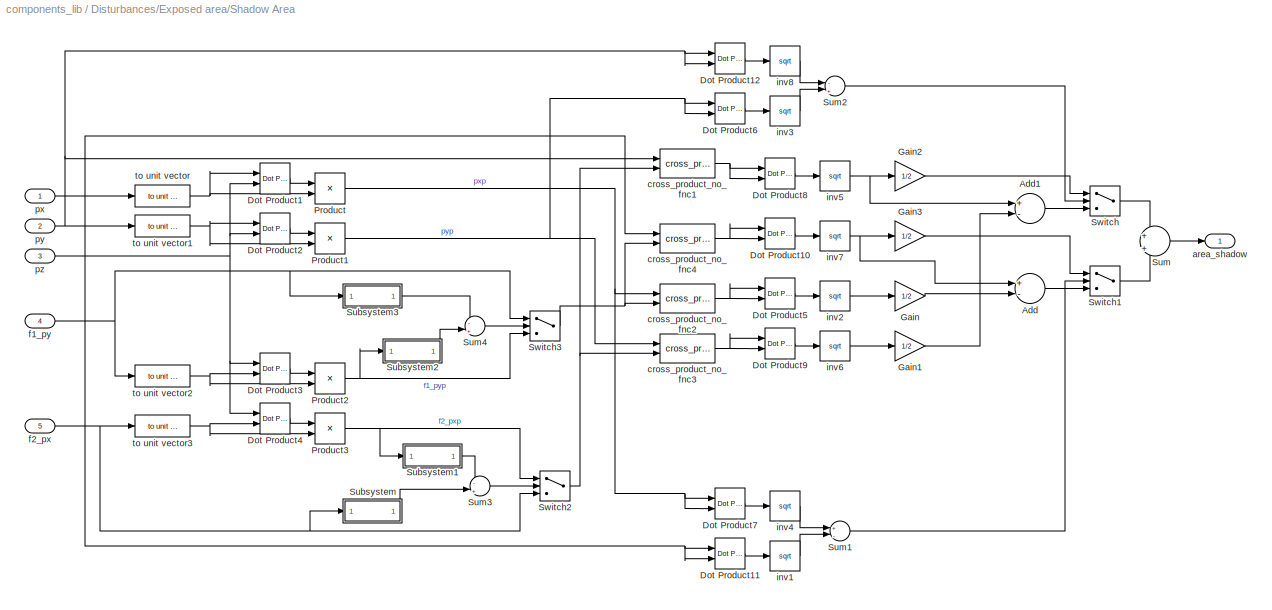
BLOCK [SubSystem] Disturbances/Exposed area/Shadow Area
  MinAlgLoopOccurrences = off
  Ports = [5, 1]
  RTWSystemCode = Auto
  TreatAsAtomicUnit = off
BLOCK [Sum] Disturbances/Exposed area/Shadow Area/Add
  InputSameDT = off
  Inputs = +-
  OutDataTypeMode = Inherit via internal rule
  OutScaling = 2^-10
  Ports = [2, 1]
  SaturateOnIntegerOverflow = off
BLOCK [Sum] Disturbances/Exposed area/Shadow Area/Add1
  InputSameDT = off
  Inputs = +-
  OutDataTypeMode = Inherit via internal rule
  OutScaling = 2^-10
  Ports = [2, 1]
  SaturateOnIntegerOverflow = off
BLOCK [Reference] Disturbances/Exposed area/Shadow Area/Dot Product1  REF=simulink/Math\nOperations/Dot Product
  DoSatur = off
  InputSameDT = on
  LockScale = off
  OutDataType = sfix(16)
  OutScaling = 2^-10
  OutputDataTypeScalingMode = Inherit via internal rule
  Ports = [2, 1]
  RndMeth = Floor
  SourceBlock = simulink/Math\nOperations/Dot Product
  SourceType = Dot Product
BLOCK [Reference] Disturbances/Exposed area/Shadow Area/Dot Product10  REF=simulink/Math\nOperations/Dot Product
  DoSatur = off
  InputSameDT = on
  LockScale = off
  OutDataType = sfix(16)
  OutScaling = 2^-10
  OutputDataTypeScalingMode = Inherit via internal rule
  Ports = [2, 1]
  RndMeth = Floor
  SourceBlock = simulink/Math\nOperations/Dot Product
  SourceType = Dot Product
BLOCK [Reference] Disturbances/Exposed area/Shadow Area/Dot Product11  REF=simulink/Math\nOperations/Dot Product
  DoSatur = off
  InputSameDT = on
  LockScale = off
  OutDataType = sfix(16)
  OutScaling = 2^-10
  OutputDataTypeScalingMode = Inherit via internal rule
  Ports = [2, 1]
  RndMeth = Floor
  SourceBlock = simulink/Math\nOperations/Dot Product
  SourceType = Dot Product
BLOCK [Reference] Disturbances/Exposed area/Shadow Area/Dot Product12  REF=simulink/Math\nOperations/Dot Product
  DoSatur = off
  InputSameDT = on
  LockScale = off
  OutDataType = sfix(16)
  OutScaling = 2^-10
  OutputDataTypeScalingMode = Inherit via internal rule
  Ports = [2, 1]
  RndMeth = Floor
  SourceBlock = simulink/Math\nOperations/Dot Product
  SourceType = Dot Product
BLOCK [Reference] Disturbances/Exposed area/Shadow Area/Dot Product2  REF=simulink/Math\nOperations/Dot Product
  DoSatur = off
  InputSameDT = on
  LockScale = off
  OutDataType = sfix(16)
  OutScaling = 2^-10
  OutputDataTypeScalingMode = Inherit via internal rule
  Ports = [2, 1]
  RndMeth = Floor
  SourceBlock = simulink/Math\nOperations/Dot Product
  SourceType = Dot Product
BLOCK [Reference] Disturbances/Exposed area/Shadow Area/Dot Product3  REF=simulink/Math\nOperations/Dot Product
  DoSatur = off
  InputSameDT = on
  LockScale = off
  OutDataType = sfix(16)
  OutScaling = 2^-10
  OutputDataTypeScalingMode = Inherit via internal rule
  Ports = [2, 1]
  RndMeth = Floor
  SourceBlock = simulink/Math\nOperations/Dot Product
  SourceType = Dot Product
BLOCK [Reference] Disturbances/Exposed area/Shadow Area/Dot Product4  REF=simulink/Math\nOperations/Dot Product
  DoSatur = off
  InputSameDT = on
  LockScale = off
  OutDataType = sfix(16)
  OutScaling = 2^-10
  OutputDataTypeScalingMode = Inherit via internal rule
  Ports = [2, 1]
  RndMeth = Floor
  SourceBlock = simulink/Math\nOperations/Dot Product
  SourceType = Dot Product
BLOCK [Reference] Disturbances/Exposed area/Shadow Area/Dot Product5  REF=simulink/Math\nOperations/Dot Product
  DoSatur = off
  InputSameDT = on
  LockScale = off
  OutDataType = sfix(16)
  OutScaling = 2^-10
  OutputDataTypeScalingMode = Inherit via internal rule
  Ports = [2, 1]
  RndMeth = Floor
  SourceBlock = simulink/Math\nOperations/Dot Product
  SourceType = Dot Product
BLOCK [Reference] Disturbances/Exposed area/Shadow Area/Dot Product6  REF=simulink/Math\nOperations/Dot Product
  DoSatur = off
  InputSameDT = on
  LockScale = off
  OutDataType = sfix(16)
  OutScaling = 2^-10
  OutputDataTypeScalingMode = Inherit via internal rule
  Ports = [2, 1]
  RndMeth = Floor
  SourceBlock = simulink/Math\nOperations/Dot Product
  SourceType = Dot Product
BLOCK [Reference] Disturbances/Exposed area/Shadow Area/Dot Product7  REF=simulink/Math\nOperations/Dot Product
  DoSatur = off
  InputSameDT = on
  LockScale = off
  OutDataType = sfix(16)
  OutScaling = 2^-10
  OutputDataTypeScalingMode = Inherit via internal rule
  Ports = [2, 1]
  RndMeth = Floor
  SourceBlock = simulink/Math\nOperations/Dot Product
  SourceType = Dot Product
BLOCK [Reference] Disturbances/Exposed area/Shadow Area/Dot Product8  REF=simulink/Math\nOperations/Dot Product
  DoSatur = off
  InputSameDT = on
  LockScale = off
  OutDataType = sfix(16)
  OutScaling = 2^-10
  OutputDataTypeScalingMode = Inherit via internal rule
  Ports = [2, 1]
  RndMeth = Floor
  SourceBlock = simulink/Math\nOperations/Dot Product
  SourceType = Dot Product
BLOCK [Reference] Disturbances/Exposed area/Shadow Area/Dot Product9  REF=simulink/Math\nOperations/Dot Product
  DoSatur = off
  InputSameDT = on
  LockScale = off
  OutDataType = sfix(16)
  OutScaling = 2^-10
  OutputDataTypeScalingMode = Inherit via internal rule
  Ports = [2, 1]
  RndMeth = Floor
  SourceBlock = simulink/Math\nOperations/Dot Product
  SourceType = Dot Product
BLOCK [Gain] Disturbances/Exposed area/Shadow Area/Gain
  Gain = 1/2
  OutDataTypeMode = Inherit via internal rule
  ParameterDataTypeMode = Inherit via internal rule
  SaturateOnIntegerOverflow = off
BLOCK [Gain] Disturbances/Exposed area/Shadow Area/Gain1
  Gain = 1/2
  OutDataTypeMode = Inherit via internal rule
  ParameterDataTypeMode = Inherit via internal rule
  SaturateOnIntegerOverflow = off
BLOCK [Gain] Disturbances/Exposed area/Shadow Area/Gain2
  Gain = 1/2
  OutDataTypeMode = Inherit via internal rule
  ParameterDataTypeMode = Inherit via internal rule
  SaturateOnIntegerOverflow = off
BLOCK [Gain] Disturbances/Exposed area/Shadow Area/Gain3
  Gain = 1/2
  OutDataTypeMode = Inherit via internal rule
  ParameterDataTypeMode = Inherit via internal rule
  SaturateOnIntegerOverflow = off
BLOCK [Product] Disturbances/Exposed area/Shadow Area/Product
  InputSameDT = off
  OutDataTypeMode = Inherit via internal rule
  Ports = [2, 1]
  SaturateOnIntegerOverflow = off
BLOCK [Product] Disturbances/Exposed area/Shadow Area/Product1
  InputSameDT = off
  OutDataTypeMode = Inherit via internal rule
  Ports = [2, 1]
  SaturateOnIntegerOverflow = off
BLOCK [Product] Disturbances/Exposed area/Shadow Area/Product2
  InputSameDT = off
  OutDataTypeMode = Inherit via internal rule
  Ports = [2, 1]
  SaturateOnIntegerOverflow = off
BLOCK [Product] Disturbances/Exposed area/Shadow Area/Product3
  InputSameDT = off
  OutDataTypeMode = Inherit via internal rule
  Ports = [2, 1]
  SaturateOnIntegerOverflow = off
BLOCK [SubSystem] Disturbances/Exposed area/Shadow Area/Subsystem
  MinAlgLoopOccurrences = off
  Ports = [1, 1]
  RTWSystemCode = Auto
  TreatAsAtomicUnit = off
BLOCK [Reference] Disturbances/Exposed area/Shadow Area/Subsystem/Dot Product13  REF=simulink/Math\nOperations/Dot Product
  DoSatur = off
  InputSameDT = on
  LockScale = off
  OutDataType = sfix(16)
  OutScaling = 2^-10
  OutputDataTypeScalingMode = Inherit via internal rule
  Ports = [2, 1]
  RndMeth = Floor
  SourceBlock = simulink/Math\nOperations/Dot Product
  SourceType = Dot Product
BLOCK [Math] Disturbances/Exposed area/Shadow Area/Subsystem/inv9
  Operator = sqrt
  Ports = [1, 1]
BLOCK [Outport] Disturbances/Exposed area/Shadow Area/Subsystem/norm(x)
  BusOutputAsStruct = off
  IconDisplay = Port number
BLOCK [Inport] Disturbances/Exposed area/Shadow Area/Subsystem/x
  IconDisplay = Port number
  LatchInput = off
  Port = 1
BLOCK [SubSystem] Disturbances/Exposed area/Shadow Area/Subsystem1
  MinAlgLoopOccurrences = off
  Ports = [1, 1]
  RTWSystemCode = Auto
  TreatAsAtomicUnit = off
BLOCK [Reference] Disturbances/Exposed area/Shadow Area/Subsystem1/Dot Product13  REF=simulink/Math\nOperations/Dot Product
  DoSatur = off
  InputSameDT = on
  LockScale = off
  OutDataType = sfix(16)
  OutScaling = 2^-10
  OutputDataTypeScalingMode = Inherit via internal rule
  Ports = [2, 1]
  RndMeth = Floor
  SourceBlock = simulink/Math\nOperations/Dot Product
  SourceType = Dot Product
BLOCK [Math] Disturbances/Exposed area/Shadow Area/Subsystem1/inv9
  Operator = sqrt
  Ports = [1, 1]
BLOCK [Outport] Disturbances/Exposed area/Shadow Area/Subsystem1/norm(x)
  BusOutputAsStruct = off
  IconDisplay = Port number
BLOCK [Inport] Disturbances/Exposed area/Shadow Area/Subsystem1/x
  IconDisplay = Port number
  LatchInput = off
  Port = 1
BLOCK [SubSystem] Disturbances/Exposed area/Shadow Area/Subsystem2
  MinAlgLoopOccurrences = off
  Ports = [1, 1]
  RTWSystemCode = Auto
  TreatAsAtomicUnit = off
BLOCK [Reference] Disturbances/Exposed area/Shadow Area/Subsystem2/Dot Product13  REF=simulink/Math\nOperations/Dot Product
  DoSatur = off
  InputSameDT = on
  LockScale = off
  OutDataType = sfix(16)
  OutScaling = 2^-10
  OutputDataTypeScalingMode = Inherit via internal rule
  Ports = [2, 1]
  RndMeth = Floor
  SourceBlock = simulink/Math\nOperations/Dot Product
  SourceType = Dot Product
BLOCK [Math] Disturbances/Exposed area/Shadow Area/Subsystem2/inv9
  Operator = sqrt
  Ports = [1, 1]
BLOCK [Outport] Disturbances/Exposed area/Shadow Area/Subsystem2/norm(x)
  BusOutputAsStruct = off
  IconDisplay = Port number
BLOCK [Inport] Disturbances/Exposed area/Shadow Area/Subsystem2/x
  IconDisplay = Port number
  LatchInput = off
  Port = 1
BLOCK [SubSystem] Disturbances/Exposed area/Shadow Area/Subsystem3
  MinAlgLoopOccurrences = off
  Ports = [1, 1]
  RTWSystemCode = Auto
  TreatAsAtomicUnit = off
BLOCK [Reference] Disturbances/Exposed area/Shadow Area/Subsystem3/Dot Product13  REF=simulink/Math\nOperations/Dot Product
  DoSatur = off
  InputSameDT = on
  LockScale = off
  OutDataType = sfix(16)
  OutScaling = 2^-10
  OutputDataTypeScalingMode = Inherit via internal rule
  Ports = [2, 1]
  RndMeth = Floor
  SourceBlock = simulink/Math\nOperations/Dot Product
  SourceType = Dot Product
BLOCK [Math] Disturbances/Exposed area/Shadow Area/Subsystem3/inv9
  Operator = sqrt
  Ports = [1, 1]
BLOCK [Outport] Disturbances/Exposed area/Shadow Area/Subsystem3/norm(x)
  BusOutputAsStruct = off
  IconDisplay = Port number
BLOCK [Inport] Disturbances/Exposed area/Shadow Area/Subsystem3/x
  IconDisplay = Port number
  LatchInput = off
  Port = 1
BLOCK [Sum] Disturbances/Exposed area/Shadow Area/Sum
  IconShape = round
  InputSameDT = off
  Inputs = +|+
  OutDataTypeMode = Inherit via internal rule
  Ports = [2, 1]
  SaturateOnIntegerOverflow = off
BLOCK [Sum] Disturbances/Exposed area/Shadow Area/Sum1
  IconShape = round
  InputSameDT = off
  Inputs = +|-
  OutDataTypeMode = Inherit via internal rule
  Ports = [2, 1]
  SaturateOnIntegerOverflow = off
BLOCK [Sum] Disturbances/Exposed area/Shadow Area/Sum2
  IconShape = round
  InputSameDT = off
  Inputs = -|+
  OutDataTypeMode = Inherit via internal rule
  Ports = [2, 1]
  SaturateOnIntegerOverflow = off
BLOCK [Sum] Disturbances/Exposed area/Shadow Area/Sum3
  IconShape = round
  InputSameDT = off
  Inputs = -|+
  OutDataTypeMode = Inherit via internal rule
  Ports = [2, 1]
  SaturateOnIntegerOverflow = off
BLOCK [Sum] Disturbances/Exposed area/Shadow Area/Sum4
  IconShape = round
  InputSameDT = off
  Inputs = -|+
  OutDataTypeMode = Inherit via internal rule
  Ports = [2, 1]
  SaturateOnIntegerOverflow = off
BLOCK [Switch] Disturbances/Exposed area/Shadow Area/Switch
  InputSameDT = off
  SaturateOnIntegerOverflow = off
BLOCK [Switch] Disturbances/Exposed area/Shadow Area/Switch1
  InputSameDT = off
  SaturateOnIntegerOverflow = off
BLOCK [Switch] Disturbances/Exposed area/Shadow Area/Switch2
  InputSameDT = off
  SaturateOnIntegerOverflow = off
BLOCK [Switch] Disturbances/Exposed area/Shadow Area/Switch3
  InputSameDT = off
  SaturateOnIntegerOverflow = off
BLOCK [Outport] Disturbances/Exposed area/Shadow Area/area_shadow
  BusOutputAsStruct = off
  IconDisplay = Port number
BLOCK [Reference] Disturbances/Exposed area/Shadow Area/cross_product_no_fnc1  REF=components_lib/Math utilities/Vector operations/cross_product_no_fnc  (lib defined in mdl_419550584dda)
  Ports = [2, 1]
  ShowPortLabels = on
  SourceBlock = components_lib/Math utilities/Vector operations/cross_product_no_fnc
  SourceType = SubSystem
  Tag = cross_product_no_fnc
BLOCK [Reference] Disturbances/Exposed area/Shadow Area/cross_product_no_fnc2  REF=components_lib/Math utilities/Vector operations/cross_product_no_fnc  (lib defined in mdl_419550584dda)
  Ports = [2, 1]
  ShowPortLabels = on
  SourceBlock = components_lib/Math utilities/Vector operations/cross_product_no_fnc
  SourceType = SubSystem
  Tag = cross_product_no_fnc
BLOCK [Reference] Disturbances/Exposed area/Shadow Area/cross_product_no_fnc3  REF=components_lib/Math utilities/Vector operations/cross_product_no_fnc  (lib defined in mdl_419550584dda)
  Ports = [2, 1]
  ShowPortLabels = on
  SourceBlock = components_lib/Math utilities/Vector operations/cross_product_no_fnc
  SourceType = SubSystem
  Tag = cross_product_no_fnc
BLOCK [Reference] Disturbances/Exposed area/Shadow Area/cross_product_no_fnc4  REF=components_lib/Math utilities/Vector operations/cross_product_no_fnc  (lib defined in mdl_419550584dda)
  Ports = [2, 1]
  ShowPortLabels = on
  SourceBlock = components_lib/Math utilities/Vector operations/cross_product_no_fnc
  SourceType = SubSystem
  Tag = cross_product_no_fnc
BLOCK [Inport] Disturbances/Exposed area/Shadow Area/f1_py
  IconDisplay = Port number
  LatchInput = off
  Port = 4
BLOCK [Inport] Disturbances/Exposed area/Shadow Area/f2_px
  IconDisplay = Port number
  LatchInput = off
  Port = 5
BLOCK [Math] Disturbances/Exposed area/Shadow Area/inv1
  Operator = sqrt
  Ports = [1, 1]
BLOCK [Math] Disturbances/Exposed area/Shadow Area/inv2
  Operator = sqrt
  Ports = [1, 1]
BLOCK [Math] Disturbances/Exposed area/Shadow Area/inv3
  Operator = sqrt
  Ports = [1, 1]
BLOCK [Math] Disturbances/Exposed area/Shadow Area/inv4
  Operator = sqrt
  Ports = [1, 1]
BLOCK [Math] Disturbances/Exposed area/Shadow Area/inv5
  Operator = sqrt
  Ports = [1, 1]
BLOCK [Math] Disturbances/Exposed area/Shadow Area/inv6
  Operator = sqrt
  Ports = [1, 1]
BLOCK [Math] Disturbances/Exposed area/Shadow Area/inv7
  Operator = sqrt
  Ports = [1, 1]
BLOCK [Math] Disturbances/Exposed area/Shadow Area/inv8
  Operator = sqrt
  Ports = [1, 1]
BLOCK [Inport] Disturbances/Exposed area/Shadow Area/px
  IconDisplay = Port number
  LatchInput = off
  Port = 1
BLOCK [Inport] Disturbances/Exposed area/Shadow Area/py
  IconDisplay = Port number
  LatchInput = off
  Port = 2
BLOCK [Inport] Disturbances/Exposed area/Shadow Area/pz
  IconDisplay = Port number
  LatchInput = off
  Port = 3
BLOCK [Reference] Disturbances/Exposed area/Shadow Area/to unit vector  REF=components_lib/Math utilities/Vector operations/to unit vector  (lib defined in mdl_419550584dda)
  Ports = [1, 1]
  ShowPortLabels = on
  SourceBlock = components_lib/Math utilities/Vector operations/to unit vector
  SourceType = SubSystem
BLOCK [Reference] Disturbances/Exposed area/Shadow Area/to unit vector1  REF=components_lib/Math utilities/Vector operations/to unit vector  (lib defined in mdl_419550584dda)
  Ports = [1, 1]
  ShowPortLabels = on
  SourceBlock = components_lib/Math utilities/Vector operations/to unit vector
  SourceType = SubSystem
BLOCK [Reference] Disturbances/Exposed area/Shadow Area/to unit vector2  REF=components_lib/Math utilities/Vector operations/to unit vector  (lib defined in mdl_419550584dda)
  Ports = [1, 1]
  ShowPortLabels = on
  SourceBlock = components_lib/Math utilities/Vector operations/to unit vector
  SourceType = SubSystem
BLOCK [Reference] Disturbances/Exposed area/Shadow Area/to unit vector3  REF=components_lib/Math utilities/Vector operations/to unit vector  (lib defined in mdl_419550584dda)
  Ports = [1, 1]
  ShowPortLabels = on
  SourceBlock = components_lib/Math utilities/Vector operations/to unit vector
  SourceType = SubSystem
BLOCK [SubSystem] Disturbances/Exposed area/Solar Array Area
  MinAlgLoopOccurrences = off
  Ports = [4, 1]
  RTWSystemCode = Auto
  TreatAsAtomicUnit = off
BLOCK [Reference] Disturbances/Exposed area/Solar Array Area/Dot Product  REF=simulink/Math\nOperations/Dot Product
  DoSatur = off
  InputSameDT = on
  LockScale = off
  OutDataType = sfix(16)
  OutScaling = 2^-10
  OutputDataTypeScalingMode = Inherit via internal rule
  Ports = [2, 1]
  RndMeth = Floor
  SourceBlock = simulink/Math\nOperations/Dot Product
  SourceType = Dot Product
BLOCK [Reference] Disturbances/Exposed area/Solar Array Area/Dot Product1  REF=simulink/Math\nOperations/Dot Product
  DoSatur = off
  InputSameDT = on
  LockScale = off
  OutDataType = sfix(16)
  OutScaling = 2^-10
  OutputDataTypeScalingMode = Inherit via internal rule
  Ports = [2, 1]
  RndMeth = Floor
  SourceBlock = simulink/Math\nOperations/Dot Product
  SourceType = Dot Product
BLOCK [Gain] Disturbances/Exposed area/Solar Array Area/Gain
  Gain = 2
  OutDataTypeMode = Inherit via internal rule
  ParameterDataTypeMode = Inherit via internal rule
  SaturateOnIntegerOverflow = off
BLOCK [Gain] Disturbances/Exposed area/Solar Array Area/Gain1
  Gain = 2
  OutDataTypeMode = Inherit via internal rule
  ParameterDataTypeMode = Inherit via internal rule
  SaturateOnIntegerOverflow = off
BLOCK [Sum] Disturbances/Exposed area/Solar Array Area/Sum1
  IconShape = round
  InputSameDT = off
  Inputs = +|||+
  OutDataTypeMode = Inherit via internal rule
  Ports = [2, 1]
  SaturateOnIntegerOverflow = off
BLOCK [Outport] Disturbances/Exposed area/Solar Array Area/area_flaps
  BusOutputAsStruct = off
  IconDisplay = Port number
BLOCK [Reference] Disturbances/Exposed area/Solar Array Area/cross_product_no_fnc1  REF=components_lib/Math utilities/Vector operations/cross_product_no_fnc  (lib defined in mdl_419550584dda)
  Ports = [2, 1]
  ShowPortLabels = on
  SourceBlock = components_lib/Math utilities/Vector operations/cross_product_no_fnc
  SourceType = SubSystem
BLOCK [Reference] Disturbances/Exposed area/Solar Array Area/cross_product_no_fnc3  REF=components_lib/Math utilities/Vector operations/cross_product_no_fnc  (lib defined in mdl_419550584dda)
  Ports = [2, 1]
  ShowPortLabels = on
  SourceBlock = components_lib/Math utilities/Vector operations/cross_product_no_fnc
  SourceType = SubSystem
BLOCK [Inport] Disturbances/Exposed area/Solar Array Area/f1_py
  IconDisplay = Port number
  LatchInput = off
  Port = 1
BLOCK [Inport] Disturbances/Exposed area/Solar Array Area/f2_px
  IconDisplay = Port number
  LatchInput = off
  Port = 4
BLOCK [Math] Disturbances/Exposed area/Solar Array Area/inv1
  Operator = sqrt
  Ports = [1, 1]
BLOCK [Math] Disturbances/Exposed area/Solar Array Area/inv2
  Operator = sqrt
  Ports = [1, 1]
BLOCK [Inport] Disturbances/Exposed area/Solar Array Area/px
  IconDisplay = Port number
  LatchInput = off
  Port = 2
BLOCK [Inport] Disturbances/Exposed area/Solar Array Area/py
  IconDisplay = Port number
  LatchInput = off
  Port = 3
BLOCK [Sum] Disturbances/Exposed area/Sum1
  IconShape = round
  InputSameDT = off
  Inputs = +|-|+
  OutDataTypeMode = Inherit via internal rule
  Ports = [3, 1]
  SaturateOnIntegerOverflow = off
BLOCK [Switch] Disturbances/Exposed area/Switch
  Criteria = u2 ~= 0
  InputSameDT = off
  SaturateOnIntegerOverflow = off
BLOCK [Reference] Disturbances/Exposed area/Vector rotation by q3  REF=components_lib/Math utilities/Quaternion operations/Vector rotation by q  (lib defined in mdl_419550584dda)
  Ports = [2, 1]
  ShowPortLabels = on
  SourceBlock = components_lib/Math utilities/Quaternion operations/Vector rotation by q
  SourceType = SubSystem
BLOCK [Inport] Disturbances/Exposed area/deployed
  IconDisplay = Port number
  LatchInput = off
  Port = 3
BLOCK [Outport] Disturbances/Exposed area/exposed\narea
  BusOutputAsStruct = off
  IconDisplay = Port number
BLOCK [Constant] Disturbances/Exposed area/f1_y
  Value = [0 dim_sat_array(1) 0]'
BLOCK [Constant] Disturbances/Exposed area/f2_x
  Value = [dim_sat_array(2) 0 0]'
BLOCK [Inport] Disturbances/Exposed area/quaternion
  IconDisplay = Port number
  LatchInput = off
  Port = 1
BLOCK [Reference] Disturbances/Exposed area/to unit vector4  REF=components_lib/Math utilities/Vector operations/to unit vector  (lib defined in mdl_419550584dda)
  Ports = [1, 1]
  ShowPortLabels = on
  SourceBlock = components_lib/Math utilities/Vector operations/to unit vector
  SourceType = SubSystem
BLOCK [Inport] Disturbances/Exposed area/vector
  IconDisplay = Port number
  LatchInput = off
  Port = 2
BLOCK [Constant] Disturbances/Exposed area/x
  Value = [dim_sat_area(1) 0 0]'
BLOCK [Constant] Disturbances/Exposed area/y
  Value = [0 dim_sat_area(2) 0]'
BLOCK [Constant] Disturbances/Exposed area/z
  Value = [0 0 dim_sat_area(3)]'
BLOCK [SubSystem] Disturbances/Gravity
  MaskCallbackString = |||
  MaskEnableString = on,on,on,on
  MaskIconFrame = on
  MaskIconOpaque = on
  MaskIconRotate = none
  MaskIconUnits = autoscale
  MaskPromptString = Gravitational Constant (m^3/kgs^2)|Mass of the Sun (kg)|Mass of the Moon (kg)|Mass of the Earth (kg)
  MaskStyleString = edit,edit,edit,edit
  MaskTabNameString = ,,,
  MaskToolTipString = on,on,on,on
  MaskTunableValueString = on,on,on,on
  MaskValueString = 6.673e-11|1.98892e30| 7.36e22|5.9742e24
  MaskVarAliasString = ,,,
  MaskVariables = G=@1;M_sun=@2;M_moon=@3;M_earth=@4;
  MaskVisibilityString = on,on,on,on
  MinAlgLoopOccurrences = off
  Ports = [7, 2]
  RTWSystemCode = Auto
  TreatAsAtomicUnit = off
BLOCK [Outport] Disturbances/Gravity/F_gr(I)
  BusOutputAsStruct = off
  IconDisplay = Port number
  Port = 2
BLOCK [Gain] Disturbances/Gravity/Gain
  Gain = -1
BLOCK [SubSystem] Disturbances/Gravity/Gravity Gradient Torque
  MinAlgLoopOccurrences = off
  Ports = [4, 1]
  RTWSystemCode = Auto
  TreatAsAtomicUnit = off
BLOCK [Gain] Disturbances/Gravity/Gravity Gradient Torque/3*GM
  Gain = 3*G*M_earth
BLOCK [Constant] Disturbances/Gravity/Gravity Gradient Torque/Constant
  Value = 3
BLOCK [Constant] Disturbances/Gravity/Gravity Gradient Torque/Constant1
  Value = [1 0 0;0 1 0;0 0 1]
BLOCK [Constant] Disturbances/Gravity/Gravity Gradient Torque/Constant2
  Value = [1 1 1]
  VectorParams1D = off
BLOCK [Reference] Disturbances/Gravity/Gravity Gradient Torque/Dot roduct  REF=simulink/Math\nOperations/Dot Product
  DoSatur = off
  InputSameDT = on
  LockScale = off
  OutDataType = sfix(16)
  OutScaling = 2^-10
  OutputDataTypeScalingMode = Inherit via internal rule
  Ports = [2, 1]
  RndMeth = Floor
  SourceBlock = simulink/Math\nOperations/Dot Product
  SourceType = Dot Product
BLOCK [Inport] Disturbances/Gravity/Gravity Gradient Torque/I(C)
  IconDisplay = Port number
  LatchInput = off
  Port = 2
BLOCK [Outport] Disturbances/Gravity/Gravity Gradient Torque/N_gr(S)
  BusOutputAsStruct = off
  IconDisplay = Port number
BLOCK [Product] Disturbances/Gravity/Gravity Gradient Torque/Product
  InputSameDT = off
  Multiplication = Matrix(*)
  Ports = [2, 1]
  RndMeth = Floor
BLOCK [Product] Disturbances/Gravity/Gravity Gradient Torque/Product1
  InputSameDT = off
  Ports = [2, 1]
  RndMeth = Floor
BLOCK [Product] Disturbances/Gravity/Gravity Gradient Torque/Product2
  InputSameDT = off
  Multiplication = Matrix(*)
  Ports = [2, 1]
  RndMeth = Floor
BLOCK [Product] Disturbances/Gravity/Gravity Gradient Torque/Product3
  InputSameDT = off
  Ports = [2, 1]
  RndMeth = Floor
BLOCK [Math] Disturbances/Gravity/Gravity Gradient Torque/R
  Operator = pow
  Ports = [2, 1]
BLOCK [Inport] Disturbances/Gravity/Gravity Gradient Torque/R_sc(I)
  IconDisplay = Port number
  LatchInput = off
  Port = 1
BLOCK [Reference] Disturbances/Gravity/Gravity Gradient Torque/Vector rotation by q  REF=components_lib/Math utilities/Vector operations/Vector rotation by q  (lib defined in mdl_419550584dda)
  Ports = [2, 1]
  ShowPortLabels = on
  SourceBlock = components_lib/Math utilities/Vector operations/Vector rotation by q
  SourceType = SubSystem
BLOCK [SubSystem] Disturbances/Gravity/Gravity Gradient Torque/\n
  MinAlgLoopOccurrences = off
  Ports = [3, 1]
  RTWSystemCode = Auto
  TreatAsAtomicUnit = off
BLOCK [Outport] Disturbances/Gravity/Gravity Gradient Torque/\n/R_sc(C)
  BusOutputAsStruct = off
  IconDisplay = Port number
BLOCK [Inport] Disturbances/Gravity/Gravity Gradient Torque/\n/R_sc(I)
  IconDisplay = Port number
  LatchInput = off
  Port = 3
BLOCK [Reference] Disturbances/Gravity/Gravity Gradient Torque/\n/Reverse quaternion rotation  REF=components_lib/Math utilities/Quaternion operations/Reverse quaternion rotation  (lib defined in mdl_419550584dda)
  Ports = [1, 1]
  ShowPortLabels = on
  SourceBlock = components_lib/Math utilities/Quaternion operations/Reverse quaternion rotation
  SourceType = SubSystem
BLOCK [Reference] Disturbances/Gravity/Gravity Gradient Torque/\n/Rotation of q1 by q2  REF=components_lib/Math utilities/Quaternion operations/Rotation of q1 by q2  (lib defined in mdl_419550584dda)
  Ports = [2, 1]
  ShowPortLabels = on
  SourceBlock = components_lib/Math utilities/Quaternion operations/Rotation of q1 by q2
  SourceType = SubSystem
BLOCK [Reference] Disturbances/Gravity/Gravity Gradient Torque/\n/Vector rotation by q  REF=components_lib/Math utilities/Quaternion operations/Vector rotation by q  (lib defined in mdl_419550584dda)
  Ports = [2, 1]
  ShowPortLabels = on
  SourceBlock = components_lib/Math utilities/Quaternion operations/Vector rotation by q
  SourceType = SubSystem
BLOCK [Inport] Disturbances/Gravity/Gravity Gradient Torque/\n/q(C->SC)
  IconDisplay = Port number
  LatchInput = off
  Port = 1
BLOCK [Inport] Disturbances/Gravity/Gravity Gradient Torque/\n/q(I -> SC)
  IconDisplay = Port number
  LatchInput = off
  Port = 2
BLOCK [Reference] Disturbances/Gravity/Gravity Gradient Torque/\n/to unit vector  REF=components_lib/Math utilities/Vector operations/to unit vector  (lib defined in mdl_419550584dda)
  Ports = [1, 1]
  ShowPortLabels = on
  SourceBlock = components_lib/Math utilities/Vector operations/to unit vector
  SourceType = SubSystem
BLOCK [Reference] Disturbances/Gravity/Gravity Gradient Torque/cross_product_no_fnc  REF=components_lib/Math utilities/Vector operations/cross_product_no_fnc  (lib defined in mdl_419550584dda)
  Ports = [2, 1]
  ShowPortLabels = on
  SourceBlock = components_lib/Math utilities/Vector operations/cross_product_no_fnc
  SourceType = SubSystem
BLOCK [Math] Disturbances/Gravity/Gravity Gradient Torque/inv
  Operator = reciprocal
  Ports = [1, 1]
BLOCK [Math] Disturbances/Gravity/Gravity Gradient Torque/inv1
  Operator = sqrt
  Ports = [1, 1]
BLOCK [Inport] Disturbances/Gravity/Gravity Gradient Torque/q(C->S)
  IconDisplay = Port number
  LatchInput = off
  Port = 3
BLOCK [Inport] Disturbances/Gravity/Gravity Gradient Torque/q(I->S)
  IconDisplay = Port number
  LatchInput = off
  Port = 4
BLOCK [Reference] Disturbances/Gravity/Gravity Gradient Torque/to unit vector  REF=components_lib/Math utilities/Vector operations/to unit vector  (lib defined in mdl_419550584dda)
  Ports = [1, 1]
  ShowPortLabels = on
  SourceBlock = components_lib/Math utilities/Vector operations/to unit vector
  SourceType = SubSystem
BLOCK [SubSystem] Disturbances/Gravity/Gravity Moon
  MinAlgLoopOccurrences = off
  Ports = [2, 1]
  RTWSystemCode = Auto
  TreatAsAtomicUnit = off
BLOCK [Outport] Disturbances/Gravity/Gravity Moon/F_m(I)
  BusOutputAsStruct = off
  IconDisplay = Port number
BLOCK [Constant] Disturbances/Gravity/Gravity Moon/G*M_m
  Value = G*M_moon
BLOCK [Gain] Disturbances/Gravity/Gravity Moon/Gain
  Gain = -1
BLOCK [Inport] Disturbances/Gravity/Gravity Moon/M_sat
  IconDisplay = Port number
  LatchInput = off
  Port = 2
BLOCK [Math] Disturbances/Gravity/Gravity Moon/Math\nFunction1
  Operator = reciprocal
  Ports = [1, 1]
BLOCK [Math] Disturbances/Gravity/Gravity Moon/Math\nFunction2
  Operator = magnitude^2
  Ports = [1, 1]
BLOCK [Product] Disturbances/Gravity/Gravity Moon/Product
  InputSameDT = off
  Ports = [2, 1]
  RndMeth = Floor
BLOCK [Product] Disturbances/Gravity/Gravity Moon/Product1
  InputSameDT = off
  Ports = [2, 1]
  RndMeth = Floor
BLOCK [Product] Disturbances/Gravity/Gravity Moon/Product2
  InputSameDT = off
  Ports = [2, 1]
  RndMeth = Floor
BLOCK [Inport] Disturbances/Gravity/Gravity Moon/R_m_sat(I)
  IconDisplay = Port number
  LatchInput = off
  Port = 1
BLOCK [Reference] Disturbances/Gravity/Gravity Moon/to unit vector1  REF=components_lib/Math utilities/Vector operations/to unit vector  (lib defined in mdl_419550584dda)
  Ports = [1, 1]
  ShowPortLabels = on
  SourceBlock = components_lib/Math utilities/Vector operations/to unit vector
  SourceType = SubSystem
BLOCK [SubSystem] Disturbances/Gravity/Gravity Sun
  MinAlgLoopOccurrences = off
  Ports = [2, 1]
  RTWSystemCode = Auto
  TreatAsAtomicUnit = off
BLOCK [Outport] Disturbances/Gravity/Gravity Sun/F_s(I)
  BusOutputAsStruct = off
  IconDisplay = Port number
BLOCK [Constant] Disturbances/Gravity/Gravity Sun/G*M_s
  Value = G*M_sun
BLOCK [Gain] Disturbances/Gravity/Gravity Sun/Gain
  Gain = -1
BLOCK [Inport] Disturbances/Gravity/Gravity Sun/M_sat
  IconDisplay = Port number
  LatchInput = off
  Port = 1
BLOCK [Math] Disturbances/Gravity/Gravity Sun/Math\nFunction1
  Operator = reciprocal
  Ports = [1, 1]
BLOCK [Math] Disturbances/Gravity/Gravity Sun/Math\nFunction2
  Operator = magnitude^2
  Ports = [1, 1]
BLOCK [Product] Disturbances/Gravity/Gravity Sun/Product
  InputSameDT = off
  Ports = [2, 1]
  RndMeth = Floor
BLOCK [Product] Disturbances/Gravity/Gravity Sun/Product1
  InputSameDT = off
  Ports = [2, 1]
  RndMeth = Floor
BLOCK [Product] Disturbances/Gravity/Gravity Sun/Product2
  InputSameDT = off
  Ports = [2, 1]
  RndMeth = Floor
BLOCK [Inport] Disturbances/Gravity/Gravity Sun/R_s_sat(I)
  IconDisplay = Port number
  LatchInput = off
  Port = 2
BLOCK [Reference] Disturbances/Gravity/Gravity Sun/to unit vector  REF=components_lib/Math utilities/Vector operations/to unit vector  (lib defined in mdl_419550584dda)
  Ports = [1, 1]
  ShowPortLabels = on
  SourceBlock = components_lib/Math utilities/Vector operations/to unit vector
  SourceType = SubSystem
BLOCK [Inport] Disturbances/Gravity/I(C)
  IconDisplay = Port number
  LatchInput = off
  Port = 4
BLOCK [Inport] Disturbances/Gravity/M_sat
  IconDisplay = Port number
  LatchInput = off
  Port = 7
BLOCK [Outport] Disturbances/Gravity/N_gr(S)
  BusOutputAsStruct = off
  IconDisplay = Port number
BLOCK [Product] Disturbances/Gravity/Product
  InputSameDT = off
  Ports = [2, 1]
  RndMeth = Floor
BLOCK [Inport] Disturbances/Gravity/R_m(I)
  IconDisplay = Port number
  LatchInput = off
  Port = 1
BLOCK [Inport] Disturbances/Gravity/R_s(I)
  IconDisplay = Port number
  LatchInput = off
  Port = 2
BLOCK [Inport] Disturbances/Gravity/R_sc(I)
  IconDisplay = Port number
  LatchInput = off
  Port = 3
BLOCK [Sum] Disturbances/Gravity/Sum
  InputSameDT = off
  Inputs = +++
  OutDataTypeMode = Inherit via internal rule
  Ports = [3, 1]
BLOCK [Sum] Disturbances/Gravity/Sum1
  IconShape = round
  InputSameDT = off
  Inputs = |+-
  OutDataTypeMode = Inherit via internal rule
  Ports = [2, 1]
BLOCK [Sum] Disturbances/Gravity/Sum2
  IconShape = round
  InputSameDT = off
  Inputs = |+-
  OutDataTypeMode = Inherit via internal rule
  Ports = [2, 1]
BLOCK [SubSystem] Disturbances/Gravity/Zonal Harmonics\n Earth
  MinAlgLoopOccurrences = off
  Ports = [1, 1]
  RTWSystemCode = Auto
  TreatAsAtomicUnit = off
BLOCK [Reference] Disturbances/Gravity/Zonal Harmonics\n Earth/Cartesian to\nSpherical  REF=simulink_extras/Transformations/Cartesian to\nSpherical
  Ports = [3, 3]
  ShowPortLabels = on
  SourceBlock = simulink_extras/Transformations/Cartesian to\nSpherical
  SourceType = Cart2Sph
BLOCK [Demux] Disturbances/Gravity/Zonal Harmonics\n Earth/Demux
  Outputs = 3
  Ports = [1, 3]
BLOCK [Demux] Disturbances/Gravity/Zonal Harmonics\n Earth/Demux1
  Outputs = 3
  Ports = [1, 3]
BLOCK [Mux] Disturbances/Gravity/Zonal Harmonics\n Earth/Mux
  DisplayOption = bar
  Inputs = 3
  Ports = [3, 1]
BLOCK [Mux] Disturbances/Gravity/Zonal Harmonics\n Earth/Mux1
  DisplayOption = bar
  Inputs = 3
  Ports = [3, 1]
BLOCK [Inport] Disturbances/Gravity/Zonal Harmonics\n Earth/R_sat(I)
  IconDisplay = Port number
  LatchInput = off
  Port = 1
BLOCK [S-Function] Disturbances/Gravity/Zonal Harmonics\n Earth/S-Function
  FunctionName = zonal
  Ports = [1, 1]
BLOCK [Reference] Disturbances/Gravity/Zonal Harmonics\n Earth/Spherical to\nCartesian  REF=simulink_extras/Transformations/Spherical to\nCartesian
  Ports = [3, 3]
  ShowPortLabels = on
  SourceBlock = simulink_extras/Transformations/Spherical to\nCartesian
  SourceType = Sph2Cart
BLOCK [Terminator] Disturbances/Gravity/Zonal Harmonics\n Earth/Terminator
BLOCK [Outport] Disturbances/Gravity/Zonal Harmonics\n Earth/grad(U_zonal(I))
  BusOutputAsStruct = off
  IconDisplay = Port number
BLOCK [Inport] Disturbances/Gravity/q(C->S)
  IconDisplay = Port number
  LatchInput = off
  Port = 6
BLOCK [Inport] Disturbances/Gravity/q(I -> S)
  IconDisplay = Port number
  LatchInput = off
  Port = 5
BLOCK [SubSystem] Disturbances/Magnetic residual disturbance
  MinAlgLoopOccurrences = off
  Ports = [4, 1]
  RTWSystemCode = Auto
  TreatAsAtomicUnit = off
BLOCK [Inport] Disturbances/Magnetic residual disturbance/Attitude q(I->S)
  IconDisplay = Port number
  LatchInput = off
  Port = 2
BLOCK [Inport] Disturbances/Magnetic residual disturbance/Earth rotation q(I->E)
  IconDisplay = Port number
  LatchInput = off
  Port = 3
BLOCK [Inport] Disturbances/Magnetic residual disturbance/Magnetic electronics dipole, d in(S)
  IconDisplay = Port number
  LatchInput = off
  Port = 1
BLOCK [Inport] Disturbances/Magnetic residual disturbance/Magnetic field B(E)
  IconDisplay = Port number
  LatchInput = off
  Port = 4
BLOCK [SubSystem] Disturbances/Magnetic residual disturbance/Magnetic field E->S
  MinAlgLoopOccurrences = off
  Ports = [3, 1]
  RTWSystemCode = Auto
  TreatAsAtomicUnit = off
BLOCK [Inport] Disturbances/Magnetic residual disturbance/Magnetic field E->S/B(E)
  IconDisplay = Port number
  LatchInput = off
  Port = 3
BLOCK [Outport] Disturbances/Magnetic residual disturbance/Magnetic field E->S/B(S)
  BusOutputAsStruct = off
  IconDisplay = Port number
BLOCK [Reference] Disturbances/Magnetic residual disturbance/Magnetic field E->S/Quaternion inverter  REF=Accessories_lib/Math utilities/Quaternion operations/Quaternion inverter
  Ports = [1, 1]
  ShowPortLabels = on
  SourceBlock = Accessories_lib/Math utilities/Quaternion operations/Quaternion inverter
  SourceType = SubSystem
BLOCK [Reference] Disturbances/Magnetic residual disturbance/Magnetic field E->S/Vector rotation by q  REF=Accessories_lib/Math utilities/Vector operations/Vector rotation by q
  Ports = [2, 1]
  ShowPortLabels = on
  SourceBlock = Accessories_lib/Math utilities/Vector operations/Vector rotation by q
  SourceType = SubSystem
BLOCK [Reference] Disturbances/Magnetic residual disturbance/Magnetic field E->S/Vector rotation by q1  REF=Accessories_lib/Math utilities/Vector operations/Vector rotation by q
  Ports = [2, 1]
  ShowPortLabels = on
  SourceBlock = Accessories_lib/Math utilities/Vector operations/Vector rotation by q
  SourceType = SubSystem
BLOCK [Inport] Disturbances/Magnetic residual disturbance/Magnetic field E->S/q(I->E)
  IconDisplay = Port number
  LatchInput = off
  Port = 2
BLOCK [Inport] Disturbances/Magnetic residual disturbance/Magnetic field E->S/q(I->S)
  IconDisplay = Port number
  LatchInput = off
  Port = 1
BLOCK [Outport] Disturbances/Magnetic residual disturbance/N_mres(S)
  BusOutputAsStruct = off
  IconDisplay = Port number
BLOCK [SubSystem] Disturbances/Magnetic residual disturbance/cross product
  MaskDescription = Embedded MATLAB block
  MaskDisplay = disp('crossproduct');
  MaskIconFrame = on
  MaskIconOpaque = off
  MaskIconRotate = none
  MaskIconUnits = autoscale
  MaskSelfModifiable = on
  MaskType = Stateflow
  MinAlgLoopOccurrences = off
  Ports = [2, 1]
  RTWSystemCode = Auto
  TreatAsAtomicUnit = off
BLOCK [Demux] Disturbances/Magnetic residual disturbance/cross product/ Demux 
  Outputs = 1
  Ports = [1, 1]
BLOCK [S-Function] Disturbances/Magnetic residual disturbance/cross product/ SFunction 
  FunctionName = sf_sfun
  PortCounts = [2 2]
  Ports = [2, 2]
  Tag = Stateflow S-Function components_lib 1
BLOCK [Terminator] Disturbances/Magnetic residual disturbance/cross product/ Terminator 
BLOCK [Inport] Disturbances/Magnetic residual disturbance/cross product/u
  IconDisplay = Port number
  LatchInput = off
  Port = 1
BLOCK [Inport] Disturbances/Magnetic residual disturbance/cross product/v
  IconDisplay = Port number
  LatchInput = off
  Port = 2
BLOCK [Outport] Disturbances/Magnetic residual disturbance/cross product/y
  BusOutputAsStruct = off
  IconDisplay = Port number
BLOCK [SubSystem] Disturbances/Radiation (I)
  MinAlgLoopOccurrences = off
  Ports = [6, 2]
  RTWSystemCode = Auto
  TreatAsAtomicUnit = off
BLOCK [Constant] Disturbances/Radiation (I)/Absorbtion\nCoefficient
  Value = 1.55
BLOCK [Constant] Disturbances/Radiation (I)/Absorbtion\nCoefficient1
  Value = [0;0;0]
BLOCK [Inport] Disturbances/Radiation (I)/Deployed
  IconDisplay = Port number
  LatchInput = off
  Port = 6
BLOCK [Constant] Disturbances/Radiation (I)/Dimensions
  Value = Dim
BLOCK [Reference] Disturbances/Radiation (I)/Exposed area  REF=components_lib/Disturbances/Exposed area  (lib defined in mdl_419550584dda)
  Ports = [3, 1]
  ShowPortLabels = on
  SourceBlock = components_lib/Disturbances/Exposed area
  SourceType = Unknown
  dim_sat_area = Dim
  dim_sat_array = [-0.30,-0.30]
BLOCK [Outport] Disturbances/Radiation (I)/F_rad(I)
  BusOutputAsStruct = off
  IconDisplay = Port number
  Port = 2
BLOCK [Gain] Disturbances/Radiation (I)/Gain
  Gain = -1
BLOCK [Gain] Disturbances/Radiation (I)/Gain1
  Gain = 1/2
BLOCK [Constant] Disturbances/Radiation (I)/Momentum flux \nfrom the sun
  Value = 4.4e-6
BLOCK [Outport] Disturbances/Radiation (I)/N_rad(S)
  BusOutputAsStruct = off
  IconDisplay = Port number
BLOCK [Product] Disturbances/Radiation (I)/Product1
  InputSameDT = off
  Ports = [2, 1]
  RndMeth = Floor
BLOCK [Product] Disturbances/Radiation (I)/Product2
  InputSameDT = off
  Ports = [2, 1]
  RndMeth = Floor
BLOCK [Product] Disturbances/Radiation (I)/Product4
  InputSameDT = off
  Ports = [2, 1]
  RndMeth = Floor
BLOCK [Inport] Disturbances/Radiation (I)/R_com(S)
  IconDisplay = Port number
  LatchInput = off
  Port = 4
BLOCK [Inport] Disturbances/Radiation (I)/R_s(I)
  IconDisplay = Port number
  LatchInput = off
  Port = 1
BLOCK [Inport] Disturbances/Radiation (I)/R_sat(I)
  IconDisplay = Port number
  LatchInput = off
  Port = 2
BLOCK [Sum] Disturbances/Radiation (I)/Sum
  IconShape = round
  InputSameDT = off
  Inputs = |+-
  OutDataTypeMode = Inherit via internal rule
  Ports = [2, 1]
BLOCK [Sum] Disturbances/Radiation (I)/Sum1
  IconShape = round
  InputSameDT = off
  Inputs = |-+
  OutDataTypeMode = Inherit via internal rule
  Ports = [2, 1]
  SaturateOnIntegerOverflow = off
BLOCK [Switch] Disturbances/Radiation (I)/Switch
  Criteria = u2 ~= 0
  InputSameDT = off
  SaturateOnIntegerOverflow = off
BLOCK [Reference] Disturbances/Radiation (I)/Vector rotation by q  REF=components_lib/Math utilities/Quaternion operations/Vector rotation by q  (lib defined in mdl_419550584dda)
  Ports = [2, 1]
  ShowPortLabels = on
  SourceBlock = components_lib/Math utilities/Quaternion operations/Vector rotation by q
  SourceType = SubSystem
BLOCK [Reference] Disturbances/Radiation (I)/cross_product_no_fnc  REF=components_lib/Math utilities/Vector operations/cross_product_no_fnc  (lib defined in mdl_419550584dda)
  Ports = [2, 1]
  ShowPortLabels = on
  SourceBlock = components_lib/Math utilities/Vector operations/cross_product_no_fnc
  SourceType = SubSystem
BLOCK [Inport] Disturbances/Radiation (I)/eclipse
  IconDisplay = Port number
  LatchInput = off
  Port = 5
BLOCK [Inport] Disturbances/Radiation (I)/q(I->S)
  IconDisplay = Port number
  LatchInput = off
  Port = 3
BLOCK [Reference] Disturbances/Radiation (I)/to unit vector  REF=components_lib/Math utilities/Vector operations/to unit vector  (lib defined in mdl_419550584dda)
  Ports = [1, 1]
  ShowPortLabels = on
  SourceBlock = components_lib/Math utilities/Vector operations/to unit vector
  SourceType = SubSystem
BLOCK [SubSystem] Dynamics and Kinematics
  MinAlgLoopOccurrences = off
  Ports = []
  RTWSystemCode = Auto
  ShowPortLabels = off
  TreatAsAtomicUnit = off
BLOCK [SubSystem] Dynamics and Kinematics/Spacecraft Dynamics
  MinAlgLoopOccurrences = off
  Ports = [10, 2]
  RTWSystemCode = Auto
  TreatAsAtomicUnit = off
BLOCK [Outport] Dynamics and Kinematics/Spacecraft Dynamics/Angular velocity W(S)
  BusOutputAsStruct = off
  IconDisplay = Port number
  Port = 2
BLOCK [Outport] Dynamics and Kinematics/Spacecraft Dynamics/Attitude q(I->S)
  BusOutputAsStruct = off
  IconDisplay = Port number
BLOCK [Inport] Dynamics and Kinematics/Spacecraft Dynamics/Controller frame  q(S->C)
  IconDisplay = Port number
  LatchInput = off
  Port = 3
BLOCK [Inport] Dynamics and Kinematics/Spacecraft Dynamics/Disturbance N_dist(S)
  IconDisplay = Port number
  LatchInput = off
  Port = 8
BLOCK [Inport] Dynamics and Kinematics/Spacecraft Dynamics/H_mw(S)
  IconDisplay = Port number
  LatchInput = off
  Port = 7
BLOCK [Inport] Dynamics and Kinematics/Spacecraft Dynamics/Inertia deployed I_d(C)
  IconDisplay = Port number
  LatchInput = off
  Port = 10
BLOCK [Inport] Dynamics and Kinematics/Spacecraft Dynamics/Initial angular velocity W_i(S)
  IconDisplay = Port number
  LatchInput = off
  Port = 1
BLOCK [Inport] Dynamics and Kinematics/Spacecraft Dynamics/Initial attitude q(I->S)
  IconDisplay = Port number
  LatchInput = off
  Port = 2
BLOCK [Inport] Dynamics and Kinematics/Spacecraft Dynamics/N_mt(S)
  IconDisplay = Port number
  LatchInput = off
  Port = 5
BLOCK [Inport] Dynamics and Kinematics/Spacecraft Dynamics/N_mw(S)
  IconDisplay = Port number
  LatchInput = off
  Port = 6
BLOCK [Reference] Dynamics and Kinematics/Spacecraft Dynamics/Reverse quaternion rotation  REF=components_lib/Math utilities/Quaternion operations/Reverse quaternion rotation  (lib defined in mdl_419550584dda)
  Ports = [1, 1]
  ShowPortLabels = on
  SourceBlock = components_lib/Math utilities/Quaternion operations/Reverse quaternion rotation
  SourceType = SubSystem
BLOCK [Reference] Dynamics and Kinematics/Spacecraft Dynamics/Rotation of q1 by q1  REF=components_lib/Math utilities/Quaternion operations/Rotation of q1 by q2  (lib defined in mdl_419550584dda)
  Ports = [2, 1]
  ShowPortLabels = on
  SourceBlock = components_lib/Math utilities/Quaternion operations/Rotation of q1 by q2
  SourceType = SubSystem
BLOCK [Reference] Dynamics and Kinematics/Spacecraft Dynamics/Rotation of q1 by q2  REF=components_lib/Math utilities/Quaternion operations/Rotation of q1 by q2  (lib defined in mdl_419550584dda)
  Ports = [2, 1]
  ShowPortLabels = on
  SourceBlock = components_lib/Math utilities/Quaternion operations/Rotation of q1 by q2
  SourceType = SubSystem
BLOCK [Inport] Dynamics and Kinematics/Spacecraft Dynamics/Spacecraft Inertia I(C)
  IconDisplay = Port number
  LatchInput = off
  Port = 4
BLOCK [Sum] Dynamics and Kinematics/Spacecraft Dynamics/Sum
  IconShape = round
  InputSameDT = off
  Inputs = +++
  OutDataTypeMode = Inherit via internal rule
  Ports = [3, 1]
BLOCK [Switch] Dynamics and Kinematics/Spacecraft Dynamics/Switch
  Criteria = u2 > Threshold
  InputSameDT = off
  SaturateOnIntegerOverflow = off
BLOCK [Reference] Dynamics and Kinematics/Spacecraft Dynamics/Vector rotation by q  REF=components_lib/Math utilities/Vector operations/Vector rotation by q  (lib defined in mdl_419550584dda)
  Ports = [2, 1]
  ShowPortLabels = on
  SourceBlock = components_lib/Math utilities/Vector operations/Vector rotation by q
  SourceType = SubSystem
BLOCK [Reference] Dynamics and Kinematics/Spacecraft Dynamics/Vector rotation by q1  REF=components_lib/Math utilities/Vector operations/Vector rotation by q  (lib defined in mdl_419550584dda)
  Ports = [2, 1]
  ShowPortLabels = on
  SourceBlock = components_lib/Math utilities/Vector operations/Vector rotation by q
  SourceType = SubSystem
BLOCK [Reference] Dynamics and Kinematics/Spacecraft Dynamics/Vector rotation by q2  REF=components_lib/Math utilities/Vector operations/Vector rotation by q  (lib defined in mdl_419550584dda)
  Ports = [2, 1]
  ShowPortLabels = on
  SourceBlock = components_lib/Math utilities/Vector operations/Vector rotation by q
  SourceType = SubSystem
BLOCK [Reference] Dynamics and Kinematics/Spacecraft Dynamics/Vector rotation by q3  REF=components_lib/Math utilities/Vector operations/Vector rotation by q  (lib defined in mdl_419550584dda)
  Ports = [2, 1]
  ShowPortLabels = on
  SourceBlock = components_lib/Math utilities/Vector operations/Vector rotation by q
  SourceType = SubSystem
BLOCK [Inport] Dynamics and Kinematics/Spacecraft Dynamics/deployed
  IconDisplay = Port number
  LatchInput = off
  Port = 9
BLOCK [S-Function] Dynamics and Kinematics/Spacecraft Dynamics/sc-dynamics
  FunctionName = scdynamics
  Ports = [4, 1]
BLOCK [Reference] Dynamics and Kinematics/Spacecraft Dynamics/w to q  REF=components_lib/Math utilities/Quaternion operations/w to q  (lib defined in mdl_419550584dda)
  Ports = [2, 1]
  ShowPortLabels = on
  SourceBlock = components_lib/Math utilities/Quaternion operations/w to q
  SourceType = SubSystem
BLOCK [SubSystem] Math utilities
  MinAlgLoopOccurrences = off
  Ports = []
  RTWSystemCode = Auto
  TreatAsAtomicUnit = off
BLOCK [SubSystem] Math utilities/Quaternion operations
  MinAlgLoopOccurrences = off
  Ports = []
  RTWSystemCode = Auto
  TreatAsAtomicUnit = off
BLOCK [SubSystem] Math utilities/Quaternion operations/Quarternion error
  MinAlgLoopOccurrences = off
  Ports = [2, 1]
  RTWSystemCode = Auto
  TreatAsAtomicUnit = off
BLOCK [Reference] Math utilities/Quaternion operations/Quarternion error/Quaternion inverter1  REF=components_lib/Math utilities/Quaternion operations/Quaternion inverter  (lib defined in mdl_419550584dda)
  Ports = [1, 1]
  ShowPortLabels = on
  SourceBlock = components_lib/Math utilities/Quaternion operations/Quaternion inverter
  SourceType = SubSystem
BLOCK [Outport] Math utilities/Quaternion operations/Quarternion error/\"q1-q2\"
  BusOutputAsStruct = off
  IconDisplay = Port number
BLOCK [Inport] Math utilities/Quaternion operations/Quarternion error/q
  IconDisplay = Port number
  LatchInput = off
  Port = 1
BLOCK [Inport] Math utilities/Quaternion operations/Quarternion error/q2
  IconDisplay = Port number
  LatchInput = off
  Port = 2
BLOCK [Reference] Math utilities/Quaternion operations/Quarternion error/qmul no func  REF=components_lib/Math utilities/Quaternion operations/qmul no func  (lib defined in mdl_419550584dda)
  Ports = [2, 1]
  ShowPortLabels = on
  SourceBlock = components_lib/Math utilities/Quaternion operations/qmul no func
  SourceType = SubSystem
BLOCK [SubSystem] Math utilities/Quaternion operations/Quaternion inverter
  MinAlgLoopOccurrences = off
  Ports = [1, 1]
  RTWSystemCode = Auto
  TreatAsAtomicUnit = off
BLOCK [Demux] Math utilities/Quaternion operations/Quaternion inverter/Demux
  Ports = [1, 4]
BLOCK [Demux] Math utilities/Quaternion operations/Quaternion inverter/Demux1
  Outputs = 3
  Ports = [1, 3]
BLOCK [Gain] Math utilities/Quaternion operations/Quaternion inverter/Gain
  Gain = -1
BLOCK [Mux] Math utilities/Quaternion operations/Quaternion inverter/Mux
  DisplayOption = bar
  Ports = [4, 1]
BLOCK [Mux] Math utilities/Quaternion operations/Quaternion inverter/Mux1
  DisplayOption = bar
  Inputs = 3
  Ports = [3, 1]
BLOCK [Inport] Math utilities/Quaternion operations/Quaternion inverter/q
  IconDisplay = Port number
  LatchInput = off
  Port = 1
BLOCK [Outport] Math utilities/Quaternion operations/Quaternion inverter/q^-1
  BusOutputAsStruct = off
  IconDisplay = Port number
BLOCK [S-Function] Math utilities/Quaternion operations/Quaternion mulitiplication
  FunctionName = qmul
  Ports = [2, 1]
BLOCK [SubSystem] Math utilities/Quaternion operations/Reverse quaternion rotation
  MinAlgLoopOccurrences = off
  Ports = [1, 1]
  RTWSystemCode = Auto
  TreatAsAtomicUnit = off
BLOCK [SubSystem] Math utilities/Quaternion operations/Reverse quaternion rotation/Quaternion inverter
  MinAlgLoopOccurrences = off
  Ports = [1, 1]
  RTWSystemCode = Auto
  TreatAsAtomicUnit = off
BLOCK [Demux] Math utilities/Quaternion operations/Reverse quaternion rotation/Quaternion inverter/Demux
  Ports = [1, 4]
BLOCK [Demux] Math utilities/Quaternion operations/Reverse quaternion rotation/Quaternion inverter/Demux1
  Outputs = 3
  Ports = [1, 3]
BLOCK [Gain] Math utilities/Quaternion operations/Reverse quaternion rotation/Quaternion inverter/Gain
  Gain = -1
BLOCK [Mux] Math utilities/Quaternion operations/Reverse quaternion rotation/Quaternion inverter/Mux
  DisplayOption = bar
  Ports = [4, 1]
BLOCK [Mux] Math utilities/Quaternion operations/Reverse quaternion rotation/Quaternion inverter/Mux1
  DisplayOption = bar
  Inputs = 3
  Ports = [3, 1]
BLOCK [Inport] Math utilities/Quaternion operations/Reverse quaternion rotation/Quaternion inverter/q
  IconDisplay = Port number
  LatchInput = off
  Port = 1
BLOCK [Outport] Math utilities/Quaternion operations/Reverse quaternion rotation/Quaternion inverter/q^-1
  BusOutputAsStruct = off
  IconDisplay = Port number
BLOCK [Inport] Math utilities/Quaternion operations/Reverse quaternion rotation/q
  IconDisplay = Port number
  LatchInput = off
  Port = 1
BLOCK [Outport] Math utilities/Quaternion operations/Reverse quaternion rotation/q_opposit
  BusOutputAsStruct = off
  IconDisplay = Port number
BLOCK [SubSystem] Math utilities/Quaternion operations/Rotation from q1 to q2
  MinAlgLoopOccurrences = off
  Ports = [2, 1]
  RTWSystemCode = Auto
  TreatAsAtomicUnit = off
BLOCK [Reference] Math utilities/Quaternion operations/Rotation from q1 to q2/Quaternion inverter  REF=components_lib/Math utilities/Quaternion operations/Quaternion inverter  (lib defined in mdl_419550584dda)
  Ports = [1, 1]
  ShowPortLabels = on
  SourceBlock = components_lib/Math utilities/Quaternion operations/Quaternion inverter
  SourceType = SubSystem
BLOCK [S-Function] Math utilities/Quaternion operations/Rotation from q1 to q2/Quaternion mulitiplication
  FunctionName = qmul
  Ports = [2, 1]
BLOCK [Inport] Math utilities/Quaternion operations/Rotation from q1 to q2/q1
  IconDisplay = Port number
  LatchInput = off
  Port = 1
BLOCK [Inport] Math utilities/Quaternion operations/Rotation from q1 to q2/q2
  IconDisplay = Port number
  LatchInput = off
  Port = 2
BLOCK [Outport] Math utilities/Quaternion operations/Rotation from q1 to q2/q_diff
  BusOutputAsStruct = off
  IconDisplay = Port number
BLOCK [SubSystem] Math utilities/Quaternion operations/Rotation of q1 by q2
  MinAlgLoopOccurrences = off
  Ports = [2, 1]
  RTWSystemCode = Auto
  TreatAsAtomicUnit = off
BLOCK [S-Function] Math utilities/Quaternion operations/Rotation of q1 by q2/Quaternion mulitiplication
  FunctionName = qmul
  Ports = [2, 1]
BLOCK [Inport] Math utilities/Quaternion operations/Rotation of q1 by q2/q1
  IconDisplay = Port number
  LatchInput = off
  Port = 1
BLOCK [Inport] Math utilities/Quaternion operations/Rotation of q1 by q2/q2
  IconDisplay = Port number
  LatchInput = off
  Port = 2
BLOCK [Outport] Math utilities/Quaternion operations/Rotation of q1 by q2/q_res
  BusOutputAsStruct = off
  IconDisplay = Port number
BLOCK [SubSystem] Math utilities/Quaternion operations/Vector rotation by q
  MinAlgLoopOccurrences = off
  Ports = [2, 1]
  RTWSystemCode = Auto
  TreatAsAtomicUnit = off
BLOCK [Constant] Math utilities/Quaternion operations/Vector rotation by q/Constant
  Value = 0
BLOCK [Demux] Math utilities/Quaternion operations/Vector rotation by q/Demux
  Outputs = 3
  Ports = [1, 3]
BLOCK [Demux] Math utilities/Quaternion operations/Vector rotation by q/Demux1
  Ports = [1, 4]
BLOCK [Mux] Math utilities/Quaternion operations/Vector rotation by q/Mux
  DisplayOption = bar
  Ports = [4, 1]
BLOCK [Mux] Math utilities/Quaternion operations/Vector rotation by q/Mux1
  DisplayOption = bar
  Inputs = 3
  Ports = [3, 1]
BLOCK [SubSystem] Math utilities/Quaternion operations/Vector rotation by q/Quaternion inverter
  MinAlgLoopOccurrences = off
  Ports = [1, 1]
  RTWSystemCode = Auto
  TreatAsAtomicUnit = off
BLOCK [Demux] Math utilities/Quaternion operations/Vector rotation by q/Quaternion inverter/Demux
  Ports = [1, 4]
BLOCK [Demux] Math utilities/Quaternion operations/Vector rotation by q/Quaternion inverter/Demux1
  Outputs = 3
  Ports = [1, 3]
BLOCK [Gain] Math utilities/Quaternion operations/Vector rotation by q/Quaternion inverter/Gain
  Gain = -1
BLOCK [Mux] Math utilities/Quaternion operations/Vector rotation by q/Quaternion inverter/Mux
  DisplayOption = bar
  Ports = [4, 1]
BLOCK [Mux] Math utilities/Quaternion operations/Vector rotation by q/Quaternion inverter/Mux1
  DisplayOption = bar
  Inputs = 3
  Ports = [3, 1]
BLOCK [Inport] Math utilities/Quaternion operations/Vector rotation by q/Quaternion inverter/q
  IconDisplay = Port number
  LatchInput = off
  Port = 1
BLOCK [Outport] Math utilities/Quaternion operations/Vector rotation by q/Quaternion inverter/q^-1
  BusOutputAsStruct = off
  IconDisplay = Port number
BLOCK [Terminator] Math utilities/Quaternion operations/Vector rotation by q/Terminator
BLOCK [Inport] Math utilities/Quaternion operations/Vector rotation by q/V
  IconDisplay = Port number
  LatchInput = off
  Port = 2
BLOCK [Inport] Math utilities/Quaternion operations/Vector rotation by q/q
  IconDisplay = Port number
  LatchInput = off
  Port = 1
BLOCK [Outport] Math utilities/Quaternion operations/Vector rotation by q/q'Vq
  BusOutputAsStruct = off
  IconDisplay = Port number
BLOCK [Reference] Math utilities/Quaternion operations/Vector rotation by q/qmul no func  REF=components_lib/Math utilities/Quaternion operations/qmul no func  (lib defined in mdl_419550584dda)
  Ports = [2, 1]
  ShowPortLabels = on
  SourceBlock = components_lib/Math utilities/Quaternion operations/qmul no func
  SourceType = SubSystem
BLOCK [Reference] Math utilities/Quaternion operations/Vector rotation by q/qmul no func1  REF=components_lib/Math utilities/Quaternion operations/qmul no func  (lib defined in mdl_419550584dda)
  Ports = [2, 1]
  ShowPortLabels = on
  SourceBlock = components_lib/Math utilities/Quaternion operations/qmul no func
  SourceType = SubSystem
BLOCK [SubSystem] Math utilities/Quaternion operations/qmul no func
  MinAlgLoopOccurrences = off
  Ports = [2, 1]
  RTWSystemCode = Auto
  TreatAsAtomicUnit = off
BLOCK [Demux] Math utilities/Quaternion operations/qmul no func/Demux1
  DisplayOption = bar
  Outputs = 8
  Ports = [1, 8]
BLOCK [From] Math utilities/Quaternion operations/qmul no func/From
  CloseFcn = tagdialog Close
  GotoTag = q4
BLOCK [From] Math utilities/Quaternion operations/qmul no func/From1
  CloseFcn = tagdialog Close
  GotoTag = q3_neg
BLOCK [From] Math utilities/Quaternion operations/qmul no func/From10
  CloseFcn = tagdialog Close
  GotoTag = q4
BLOCK [From] Math utilities/Quaternion operations/qmul no func/From11
  CloseFcn = tagdialog Close
  GotoTag = q3_neg
BLOCK [From] Math utilities/Quaternion operations/qmul no func/From12
  CloseFcn = tagdialog Close
  GotoTag = q1
BLOCK [From] Math utilities/Quaternion operations/qmul no func/From13
  CloseFcn = tagdialog Close
  GotoTag = q2
BLOCK [From] Math utilities/Quaternion operations/qmul no func/From14
  CloseFcn = tagdialog Close
  GotoTag = q3
BLOCK [From] Math utilities/Quaternion operations/qmul no func/From15
  CloseFcn = tagdialog Close
  GotoTag = q4
BLOCK [From] Math utilities/Quaternion operations/qmul no func/From2
  CloseFcn = tagdialog Close
  GotoTag = q2
BLOCK [From] Math utilities/Quaternion operations/qmul no func/From3
  CloseFcn = tagdialog Close
  GotoTag = q1_neg
BLOCK [From] Math utilities/Quaternion operations/qmul no func/From4
  CloseFcn = tagdialog Close
  GotoTag = q3
BLOCK [From] Math utilities/Quaternion operations/qmul no func/From5
  CloseFcn = tagdialog Close
  GotoTag = q4
BLOCK [From] Math utilities/Quaternion operations/qmul no func/From6
  CloseFcn = tagdialog Close
  GotoTag = q1_neg
BLOCK [From] Math utilities/Quaternion operations/qmul no func/From7
  CloseFcn = tagdialog Close
  GotoTag = q2_neg
BLOCK [From] Math utilities/Quaternion operations/qmul no func/From8
  CloseFcn = tagdialog Close
  GotoTag = q2_neg
BLOCK [From] Math utilities/Quaternion operations/qmul no func/From9
  CloseFcn = tagdialog Close
  GotoTag = q1
BLOCK [Gain] Math utilities/Quaternion operations/qmul no func/Gain7
  Gain = -1
  OutDataTypeMode = Inherit via internal rule
  ParameterDataTypeMode = Inherit via internal rule
  SaturateOnIntegerOverflow = off
BLOCK [Goto] Math utilities/Quaternion operations/qmul no func/Goto
  GotoTag = q1_neg
  TagVisibility = local
BLOCK [Goto] Math utilities/Quaternion operations/qmul no func/Goto1
  GotoTag = q2_neg
  TagVisibility = local
BLOCK [Goto] Math utilities/Quaternion operations/qmul no func/Goto2
  GotoTag = q3_neg
  TagVisibility = local
BLOCK [Goto] Math utilities/Quaternion operations/qmul no func/Goto4
  GotoTag = q4
  TagVisibility = local
BLOCK [Goto] Math utilities/Quaternion operations/qmul no func/Goto5
  GotoTag = q3
  TagVisibility = local
BLOCK [Goto] Math utilities/Quaternion operations/qmul no func/Goto6
  GotoTag = q2
  TagVisibility = local
BLOCK [Goto] Math utilities/Quaternion operations/qmul no func/Goto7
  GotoTag = q1
  TagVisibility = local
BLOCK [Mux] Math utilities/Quaternion operations/qmul no func/Mux1
  DisplayOption = bar
  Inputs = 16
  Ports = [16, 1]
BLOCK [Mux] Math utilities/Quaternion operations/qmul no func/Mux2
  DisplayOption = bar
  Inputs = 2
  Ports = [2, 1]
BLOCK [Product] Math utilities/Quaternion operations/qmul no func/Product
  InputSameDT = off
  Multiplication = Matrix(*)
  OutDataTypeMode = Inherit via internal rule
  Ports = [2, 1]
  SaturateOnIntegerOverflow = off
BLOCK [Reference] Math utilities/Quaternion operations/qmul no func/Reshape1  REF=simulink/Math\nOperations/Reshape
  OutputDimensionality = Customize
  OutputDimensions = [4,4]
  Ports = [1, 1]
  SourceBlock = simulink/Math\nOperations/Reshape
  SourceType = Reshape
BLOCK [Terminator] Math utilities/Quaternion operations/qmul no func/Terminator
BLOCK [Inport] Math utilities/Quaternion operations/qmul no func/q_A
  IconDisplay = Port number
  LatchInput = off
  Port = 1
BLOCK [Outport] Math utilities/Quaternion operations/qmul no func/q_A*q_B
  BusOutputAsStruct = off
  IconDisplay = Port number
BLOCK [Inport] Math utilities/Quaternion operations/qmul no func/q_B
  IconDisplay = Port number
  LatchInput = off
  Port = 2
BLOCK [SubSystem] Math utilities/Quaternion operations/quaternion composition
  MinAlgLoopOccurrences = off
  Ports = [2, 1]
  RTWSystemCode = Auto
  TreatAsAtomicUnit = off
BLOCK [Demux] Math utilities/Quaternion operations/quaternion composition/Demux
  Outputs = 3
  Ports = [1, 3]
BLOCK [Gain] Math utilities/Quaternion operations/quaternion composition/Gain
  Gain = 1/2
BLOCK [Mux] Math utilities/Quaternion operations/quaternion composition/Mux
  DisplayOption = bar
  Ports = [4, 1]
BLOCK [Product] Math utilities/Quaternion operations/quaternion composition/Product
  InputSameDT = off
  Ports = [2, 1]
  RndMeth = Floor
BLOCK [Trigonometry] Math utilities/Quaternion operations/quaternion composition/Trigonometric\nFunction
  Operator = cos
  Ports = [1, 1]
BLOCK [Trigonometry] Math utilities/Quaternion operations/quaternion composition/Trigonometric\nFunction1
  Ports = [1, 1]
BLOCK [Inport] Math utilities/Quaternion operations/quaternion composition/angle
  IconDisplay = Port number
  LatchInput = off
  Port = 2
BLOCK [Outport] Math utilities/Quaternion operations/quaternion composition/q
  BusOutputAsStruct = off
  IconDisplay = Port number
BLOCK [Reference] Math utilities/Quaternion operations/quaternion composition/to unit vector  REF=components_lib/Math utilities/Vector operations/to unit vector  (lib defined in mdl_419550584dda)
  Ports = [1, 1]
  ShowPortLabels = on
  SourceBlock = components_lib/Math utilities/Vector operations/to unit vector
  SourceType = SubSystem
BLOCK [Inport] Math utilities/Quaternion operations/quaternion composition/vector
  IconDisplay = Port number
  LatchInput = off
  Port = 1
BLOCK [SubSystem] Math utilities/Quaternion operations/quaternion decomposition
  MinAlgLoopOccurrences = off
  Ports = [1, 2]
  RTWSystemCode = Auto
  TreatAsAtomicUnit = off
BLOCK [Outport] Math utilities/Quaternion operations/quaternion decomposition/Angle
  BusOutputAsStruct = off
  IconDisplay = Port number
  Port = 2
BLOCK [Demux] Math utilities/Quaternion operations/quaternion decomposition/Demux
  Ports = [1, 4]
BLOCK [Gain] Math utilities/Quaternion operations/quaternion decomposition/Gain
  Gain = 2
BLOCK [Math] Math utilities/Quaternion operations/quaternion decomposition/Math\nFunction
  Operator = reciprocal
  Ports = [1, 1]
BLOCK [Mux] Math utilities/Quaternion operations/quaternion decomposition/Mux
  DisplayOption = bar
  Inputs = 3
  Ports = [3, 1]
BLOCK [Product] Math utilities/Quaternion operations/quaternion decomposition/Product
  InputSameDT = off
  Ports = [2, 1]
  RndMeth = Floor
BLOCK [Trigonometry] Math utilities/Quaternion operations/quaternion decomposition/Trigonometric\nFunction
  Operator = acos
  Ports = [1, 1]
BLOCK [Trigonometry] Math utilities/Quaternion operations/quaternion decomposition/Trigonometric\nFunction1
  Ports = [1, 1]
BLOCK [Outport] Math utilities/Quaternion operations/quaternion decomposition/Vector
  BusOutputAsStruct = off
  IconDisplay = Port number
BLOCK [Inport] Math utilities/Quaternion operations/quaternion decomposition/q_in
  IconDisplay = Port number
  LatchInput = off
  Port = 1
BLOCK [Reference] Math utilities/Quaternion operations/quaternion decomposition/to unit vector  REF=components_lib/Math utilities/Vector operations/to unit vector  (lib defined in mdl_419550584dda)
  Ports = [1, 1]
  ShowPortLabels = on
  SourceBlock = components_lib/Math utilities/Vector operations/to unit vector
  SourceType = SubSystem
BLOCK [SubSystem] Math utilities/Quaternion operations/quaternion expansion
  MinAlgLoopOccurrences = off
  Ports = [1, 1]
  RTWSystemCode = Auto
  TreatAsAtomicUnit = off
BLOCK [Constant] Math utilities/Quaternion operations/quaternion expansion/Constant1
BLOCK [Demux] Math utilities/Quaternion operations/quaternion expansion/Demux2
  DisplayOption = bar
  Outputs = 3
  Ports = [1, 3]
BLOCK [Math] Math utilities/Quaternion operations/quaternion expansion/Math\nFunction4
  Operator = square
  Ports = [1, 1]
BLOCK [Math] Math utilities/Quaternion operations/quaternion expansion/Math\nFunction5
  Operator = square
  Ports = [1, 1]
BLOCK [Math] Math utilities/Quaternion operations/quaternion expansion/Math\nFunction6
  Operator = square
  Ports = [1, 1]
BLOCK [Math] Math utilities/Quaternion operations/quaternion expansion/Math\nFunction7
  Operator = sqrt
  Ports = [1, 1]
BLOCK [Mux] Math utilities/Quaternion operations/quaternion expansion/Mux2
  DisplayOption = bar
  Inputs = 2
  Ports = [2, 1]
BLOCK [Product] Math utilities/Quaternion operations/quaternion expansion/Product
  InputSameDT = off
  Inputs = */
  OutDataTypeMode = Inherit via internal rule
  Ports = [2, 1]
  SaturateOnIntegerOverflow = off
BLOCK [Sum] Math utilities/Quaternion operations/quaternion expansion/Sum1
  InputSameDT = off
  Inputs = ++++
  OutDataTypeMode = Inherit via internal rule
  Ports = [4, 1]
  SaturateOnIntegerOverflow = off
BLOCK [Outport] Math utilities/Quaternion operations/quaternion expansion/q
  BusOutputAsStruct = off
  IconDisplay = Port number
BLOCK [Inport] Math utilities/Quaternion operations/quaternion expansion/q1-3
  IconDisplay = Port number
  LatchInput = off
  Port = 1
BLOCK [SubSystem] Math utilities/Quaternion operations/quaternion2euler
  MinAlgLoopOccurrences = off
  Ports = [1, 1]
  RTWSystemCode = Auto
  TreatAsAtomicUnit = off
BLOCK [Outport] Math utilities/Quaternion operations/quaternion2euler/Euler angles
  BusOutputAsStruct = off
  IconDisplay = Port number
BLOCK [Mux] Math utilities/Quaternion operations/quaternion2euler/Mux
  DisplayOption = bar
  Inputs = 3
  Ports = [3, 1]
BLOCK [Inport] Math utilities/Quaternion operations/quaternion2euler/quaternion
  IconDisplay = Port number
  LatchInput = off
  Port = 1
BLOCK [Fcn] Math utilities/Quaternion operations/quaternion2euler/theta 1
  Expr = -atan2((2*(u(2)*u(3) + u(1)*u(4))),(1-2*(u(1)*u(1) + u(2)*u(2))))
BLOCK [Fcn] Math utilities/Quaternion operations/quaternion2euler/theta 2
  Expr = -asin(2*(u(1)*u(3)-u(2)*u(4)))
BLOCK [Fcn] Math utilities/Quaternion operations/quaternion2euler/theta 3
  Expr = -atan2((2*(u(1)*u(2) + u(3)*u(4))),(1-2*(u(2)*u(2) + u(3)*u(3))))
BLOCK [SubSystem] Math utilities/Quaternion operations/w to q
  MinAlgLoopOccurrences = off
  Ports = [2, 1]
  RTWSystemCode = Auto
  TreatAsAtomicUnit = off
BLOCK [Inport] Math utilities/Quaternion operations/w to q/Angular velocity
  IconDisplay = Port number
  LatchInput = off
  Port = 1
BLOCK [Inport] Math utilities/Quaternion operations/w to q/Initial quaternion
  IconDisplay = Port number
  LatchInput = off
  Port = 2
BLOCK [S-Function] Math utilities/Quaternion operations/w to q/S-Function
  FunctionName = qestimator
  Ports = [2, 1]
BLOCK [Outport] Math utilities/Quaternion operations/w to q/estimated quaternion
  BusOutputAsStruct = off
  IconDisplay = Port number
BLOCK [SubSystem] Math utilities/Quaternion operations/||q||
  MinAlgLoopOccurrences = off
  Ports = [1, 1]
  RTWSystemCode = Auto
  TreatAsAtomicUnit = off
BLOCK [Inport] Math utilities/Quaternion operations/||q||/q_in
  IconDisplay = Port number
  LatchInput = off
  Port = 1
BLOCK [Outport] Math utilities/Quaternion operations/||q||/q_out
  BusOutputAsStruct = off
  IconDisplay = Port number
BLOCK [Reference] Math utilities/Quaternion operations/||q||/quaternion composition  REF=components_lib/Math utilities/Quaternion operations/quaternion composition  (lib defined in mdl_419550584dda)
  Ports = [2, 1]
  ShowPortLabels = on
  SourceBlock = components_lib/Math utilities/Quaternion operations/quaternion composition
  SourceType = SubSystem
BLOCK [Reference] Math utilities/Quaternion operations/||q||/quaternion decomposition  REF=components_lib/Math utilities/Quaternion operations/quaternion decomposition  (lib defined in mdl_419550584dda)
  Ports = [1, 2]
  ShowPortLabels = on
  SourceBlock = components_lib/Math utilities/Quaternion operations/quaternion decomposition
  SourceType = SubSystem
BLOCK [SubSystem] Math utilities/Vector operations
  MinAlgLoopOccurrences = off
  Ports = []
  RTWSystemCode = Auto
  TreatAsAtomicUnit = off
BLOCK [SubSystem] Math utilities/Vector operations/Projection of a onto b
  MinAlgLoopOccurrences = off
  Ports = [2, 1]
  RTWSystemCode = Auto
  TreatAsAtomicUnit = off
BLOCK [Constant] Math utilities/Vector operations/Projection of a onto b/Constant
  Value = -2
BLOCK [Reference] Math utilities/Vector operations/Projection of a onto b/Dot Product  REF=simulink/Math\nOperations/Dot Product
  DoSatur = off
  InputSameDT = on
  LockScale = off
  OutDataType = sfix(16)
  OutScaling = 2^-10
  OutputDataTypeScalingMode = Inherit via internal rule
  Ports = [2, 1]
  RndMeth = Floor
  SourceBlock = simulink/Math\nOperations/Dot Product
  SourceType = Dot Product
BLOCK [Math] Math utilities/Vector operations/Projection of a onto b/Math\nFunction
  Operator = pow
  Ports = [2, 1]
BLOCK [Product] Math utilities/Vector operations/Projection of a onto b/Product
  InputSameDT = off
  Inputs = 3
  Ports = [3, 1]
  RndMeth = Floor
BLOCK [Inport] Math utilities/Vector operations/Projection of a onto b/a
  IconDisplay = Port number
  LatchInput = off
  Port = 1
BLOCK [Outport] Math utilities/Vector operations/Projection of a onto b/a_b
  BusOutputAsStruct = off
  IconDisplay = Port number
BLOCK [Inport] Math utilities/Vector operations/Projection of a onto b/b
  IconDisplay = Port number
  LatchInput = off
  Port = 2
BLOCK [MATLABFcn] Math utilities/Vector operations/Projection of a onto b/||V||
  MATLABFcn = norm
BLOCK [SubSystem] Math utilities/Vector operations/Vector rotation by q
  MinAlgLoopOccurrences = off
  Ports = [2, 1]
  RTWSystemCode = Auto
  TreatAsAtomicUnit = off
BLOCK [Constant] Math utilities/Vector operations/Vector rotation by q/Constant
  Value = 0
BLOCK [Demux] Math utilities/Vector operations/Vector rotation by q/Demux
  Outputs = 3
  Ports = [1, 3]
BLOCK [Demux] Math utilities/Vector operations/Vector rotation by q/Demux1
  Ports = [1, 4]
BLOCK [Mux] Math utilities/Vector operations/Vector rotation by q/Mux
  DisplayOption = bar
  Ports = [4, 1]
BLOCK [Mux] Math utilities/Vector operations/Vector rotation by q/Mux1
  DisplayOption = bar
  Inputs = 3
  Ports = [3, 1]
BLOCK [SubSystem] Math utilities/Vector operations/Vector rotation by q/Quaternion inverter
  MinAlgLoopOccurrences = off
  Ports = [1, 1]
  RTWSystemCode = Auto
  TreatAsAtomicUnit = off
BLOCK [Demux] Math utilities/Vector operations/Vector rotation by q/Quaternion inverter/Demux
  Ports = [1, 4]
BLOCK [Demux] Math utilities/Vector operations/Vector rotation by q/Quaternion inverter/Demux1
  Outputs = 3
  Ports = [1, 3]
BLOCK [Gain] Math utilities/Vector operations/Vector rotation by q/Quaternion inverter/Gain
  Gain = -1
BLOCK [Mux] Math utilities/Vector operations/Vector rotation by q/Quaternion inverter/Mux
  DisplayOption = bar
  Ports = [4, 1]
BLOCK [Mux] Math utilities/Vector operations/Vector rotation by q/Quaternion inverter/Mux1
  DisplayOption = bar
  Inputs = 3
  Ports = [3, 1]
BLOCK [Inport] Math utilities/Vector operations/Vector rotation by q/Quaternion inverter/q
  IconDisplay = Port number
  LatchInput = off
  Port = 1
BLOCK [Outport] Math utilities/Vector operations/Vector rotation by q/Quaternion inverter/q^-1
  BusOutputAsStruct = off
  IconDisplay = Port number
BLOCK [S-Function] Math utilities/Vector operations/Vector rotation by q/Quaternion mulitiplication
  FunctionName = qmul
  Ports = [2, 1]
BLOCK [S-Function] Math utilities/Vector operations/Vector rotation by q/Quaternion mulitiplication1
  FunctionName = qmul
  Ports = [2, 1]
BLOCK [Terminator] Math utilities/Vector operations/Vector rotation by q/Terminator
BLOCK [Inport] Math utilities/Vector operations/Vector rotation by q/V
  IconDisplay = Port number
  LatchInput = off
  Port = 2
BLOCK [Inport] Math utilities/Vector operations/Vector rotation by q/q
  IconDisplay = Port number
  LatchInput = off
  Port = 1
BLOCK [Outport] Math utilities/Vector operations/Vector rotation by q/q'Vq
  BusOutputAsStruct = off
  IconDisplay = Port number
BLOCK [SubSystem] Math utilities/Vector operations/cross_product
  MinAlgLoopOccurrences = off
  Ports = [2, 1]
  RTWSystemCode = Auto
  TreatAsAtomicUnit = off
BLOCK [S-Function] Math utilities/Vector operations/cross_product/S-Function
  FunctionName = s_cross_product
  Ports = [2, 1]
BLOCK [Inport] Math utilities/Vector operations/cross_product/u
  IconDisplay = Port number
  LatchInput = off
  Port = 1
BLOCK [Inport] Math utilities/Vector operations/cross_product/v
  IconDisplay = Port number
  LatchInput = off
  Port = 2
BLOCK [Outport] Math utilities/Vector operations/cross_product/y
  BusOutputAsStruct = off
  IconDisplay = Port number
BLOCK [SubSystem] Math utilities/Vector operations/cross_product_no_fnc
  MinAlgLoopOccurrences = off
  Ports = [2, 1]
  RTWSystemCode = Auto
  TreatAsAtomicUnit = off
BLOCK [Demux] Math utilities/Vector operations/cross_product_no_fnc/Demux
  DisplayOption = bar
  Outputs = 3
  Ports = [1, 3]
BLOCK [Demux] Math utilities/Vector operations/cross_product_no_fnc/Demux1
  DisplayOption = bar
  Outputs = 3
  Ports = [1, 3]
BLOCK [Mux] Math utilities/Vector operations/cross_product_no_fnc/Mux
  DisplayOption = bar
  Inputs = 3
  Ports = [3, 1]
BLOCK [Product] Math utilities/Vector operations/cross_product_no_fnc/Product1
  InputSameDT = off
  Ports = [2, 1]
  RndMeth = Floor
BLOCK [Product] Math utilities/Vector operations/cross_product_no_fnc/Product2
  InputSameDT = off
  Ports = [2, 1]
  RndMeth = Floor
BLOCK [Product] Math utilities/Vector operations/cross_product_no_fnc/Product3
  InputSameDT = off
  Ports = [2, 1]
  RndMeth = Floor
BLOCK [Product] Math utilities/Vector operations/cross_product_no_fnc/Product4
  InputSameDT = off
  Ports = [2, 1]
  RndMeth = Floor
BLOCK [Product] Math utilities/Vector operations/cross_product_no_fnc/Product5
  InputSameDT = off
  Ports = [2, 1]
  RndMeth = Floor
BLOCK [Product] Math utilities/Vector operations/cross_product_no_fnc/Product6
  InputSameDT = off
  Ports = [2, 1]
  RndMeth = Floor
BLOCK [Sum] Math utilities/Vector operations/cross_product_no_fnc/Sum
  IconShape = round
  InputSameDT = off
  Inputs = -+|
  OutDataTypeMode = Inherit via internal rule
  Ports = [2, 1]
  SaturateOnIntegerOverflow = off
BLOCK [Sum] Math utilities/Vector operations/cross_product_no_fnc/Sum1
  IconShape = round
  InputSameDT = off
  Inputs = -+|
  OutDataTypeMode = Inherit via internal rule
  Ports = [2, 1]
  SaturateOnIntegerOverflow = off
BLOCK [Sum] Math utilities/Vector operations/cross_product_no_fnc/Sum2
  IconShape = round
  InputSameDT = off
  Inputs = -+|
  OutDataTypeMode = Inherit via internal rule
  Ports = [2, 1]
  SaturateOnIntegerOverflow = off
BLOCK [Inport] Math utilities/Vector operations/cross_product_no_fnc/u
  IconDisplay = Port number
  LatchInput = off
  Port = 2
BLOCK [Inport] Math utilities/Vector operations/cross_product_no_fnc/v
  IconDisplay = Port number
  LatchInput = off
  Port = 1
BLOCK [Outport] Math utilities/Vector operations/cross_product_no_fnc/v x u
  BusOutputAsStruct = off
  IconDisplay = Port number
BLOCK [SubSystem] Math utilities/Vector operations/modulus
  MinAlgLoopOccurrences = off
  Ports = [2, 1]
  RTWSystemCode = Auto
  TreatAsAtomicUnit = off
BLOCK [S-Function] Math utilities/Vector operations/modulus/S-Function
  FunctionName = s_modulus
  Ports = [2, 1]
BLOCK [Inport] Math utilities/Vector operations/modulus/u
  IconDisplay = Port number
  LatchInput = off
  Port = 1
  PortDimensions = 1
BLOCK [Inport] Math utilities/Vector operations/modulus/v
  IconDisplay = Port number
  LatchInput = off
  Port = 2
  PortDimensions = 1
BLOCK [Outport] Math utilities/Vector operations/modulus/y
  BusOutputAsStruct = off
  IconDisplay = Port number
  PortDimensions = 1
BLOCK [SubSystem] Math utilities/Vector operations/norm
  MinAlgLoopOccurrences = off
  Ports = [1, 1]
  RTWSystemCode = Auto
  TreatAsAtomicUnit = off
BLOCK [S-Function] Math utilities/Vector operations/norm/S-Function
  FunctionName = s_norm
  Ports = [1, 1]
BLOCK [Inport] Math utilities/Vector operations/norm/u
  IconDisplay = Port number
  LatchInput = off
  Port = 1
  PortDimensions = 3
BLOCK [Outport] Math utilities/Vector operations/norm/y
  BusOutputAsStruct = off
  IconDisplay = Port number
  PortDimensions = 1
BLOCK [SubSystem] Math utilities/Vector operations/pow
  Description = u^v
  MinAlgLoopOccurrences = off
  Ports = [2, 1]
  RTWSystemCode = Auto
  TreatAsAtomicUnit = off
BLOCK [S-Function] Math utilities/Vector operations/pow/S-Function
  FunctionName = s_pow
  Ports = [2, 1]
BLOCK [Inport] Math utilities/Vector operations/pow/u
  IconDisplay = Port number
  LatchInput = off
  Port = 1
BLOCK [Inport] Math utilities/Vector operations/pow/v
  IconDisplay = Port number
  LatchInput = off
  Port = 2
  PortDimensions = 1
BLOCK [Outport] Math utilities/Vector operations/pow/y
  BusOutputAsStruct = off
  IconDisplay = Port number
BLOCK [SubSystem] Math utilities/Vector operations/sign
  MinAlgLoopOccurrences = off
  Ports = [1, 1]
  RTWSystemCode = Auto
  TreatAsAtomicUnit = off
BLOCK [S-Function] Math utilities/Vector operations/sign/S-Function
  FunctionName = s_sign
  Ports = [1, 1]
BLOCK [Inport] Math utilities/Vector operations/sign/u
  IconDisplay = Port number
  LatchInput = off
  Port = 1
BLOCK [Outport] Math utilities/Vector operations/sign/y
  BusOutputAsStruct = off
  IconDisplay = Port number
BLOCK [SubSystem] Math utilities/Vector operations/to unit vector
  MinAlgLoopOccurrences = off
  Ports = [1, 1]
  RTWSystemCode = Auto
  TreatAsAtomicUnit = off
BLOCK [Constant] Math utilities/Vector operations/to unit vector/Constant
BLOCK [Reference] Math utilities/Vector operations/to unit vector/Dot Product  REF=simulink/Math\nOperations/Dot Product
  DoSatur = off
  InputSameDT = on
  LockScale = off
  OutDataType = sfix(16)
  OutScaling = 2^-10
  OutputDataTypeScalingMode = Inherit via internal rule
  Ports = [2, 1]
  RndMeth = Floor
  SourceBlock = simulink/Math\nOperations/Dot Product
  SourceType = Dot Product
BLOCK [Math] Math utilities/Vector operations/to unit vector/Math\nFunction
  Operator = reciprocal
  Ports = [1, 1]
BLOCK [Product] Math utilities/Vector operations/to unit vector/Product
  InputSameDT = off
  Ports = [2, 1]
  RndMeth = Floor
BLOCK [Switch] Math utilities/Vector operations/to unit vector/Switch
  Criteria = u2 ~= 0
  InputSameDT = off
BLOCK [Math] Math utilities/Vector operations/to unit vector/sqrt
  Operator = sqrt
  Ports = [1, 1]
BLOCK [Inport] Math utilities/Vector operations/to unit vector/v \n
  IconDisplay = Port number
  LatchInput = off
  Port = 1
BLOCK [Outport] Math utilities/Vector operations/to unit vector/v_hat
  BusOutputAsStruct = off
  IconDisplay = Port number
BLOCK [SubSystem] Math utilities/Vector operations/vector projection\nonto plane
  MinAlgLoopOccurrences = off
  Ports = [2, 1]
  RTWSystemCode = Auto
  TreatAsAtomicUnit = off
BLOCK [MATLABFcn] Math utilities/Vector operations/vector projection\nonto plane/MATLAB Fcn
  MATLABFcn = vector_projection_onto_plane(u)
BLOCK [Mux] Math utilities/Vector operations/vector projection\nonto plane/Mux
  DisplayOption = bar
  Inputs = 2
  Ports = [2, 1]
BLOCK [Inport] Math utilities/Vector operations/vector projection\nonto plane/SC veloc
  IconDisplay = Port number
  LatchInput = off
  Port = 1
BLOCK [Inport] Math utilities/Vector operations/vector projection\nonto plane/v
  IconDisplay = Port number
  LatchInput = off
  Port = 2
BLOCK [Outport] Math utilities/Vector operations/vector projection\nonto plane/v'
  BusOutputAsStruct = off
  IconDisplay = Port number
BLOCK [MATLABFcn] Math utilities/Vector operations/||V||
  MATLABFcn = norm
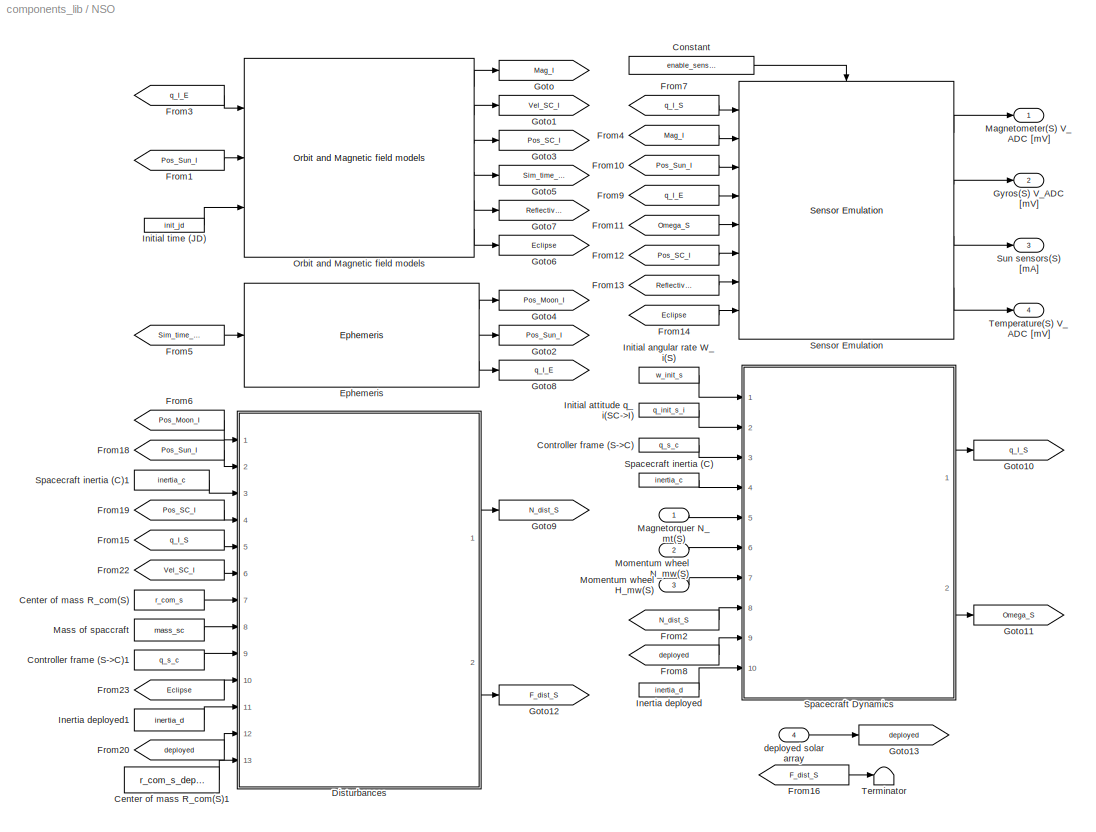
BLOCK [SubSystem] NSO
  Description = AAUSAT-II Model
  MaskCallbackString = |||||||||||||||
  MaskDisplay = image(imread('NSO.jpg'));\ncolor('r');\nport_label('input', 1, 'N_mt(S)');\nport_label('input', 2, 'N_mw(S)');\nport_label('input', 3, 'H_mw(S)');\nport_label('input', 4, 'Deployed solar array');\nport_label('output', 1, 'Magnetometer(S) V_ADC [mV]');\nport_label('output', 2, 'Gyros(S) V_ADC [mV]');\nport_label('output', 3, 'Sun sensors(S) [mA]');\nport_label('output', 4, 'Temperature(S) V_ADC [mV...<+4ch>
  MaskEnableString = on,on,on,on,on,on,on,on,on,on,on,on,on,on,on,on
  MaskIconFrame = on
  MaskIconOpaque = on
  MaskIconRotate = none
  MaskIconUnits = autoscale
  MaskPromptString = Center of mass (S)|Start temperature of satellite [K]|Center of mass (deployed)|Mass of spacecraft (kg)|Dimensions of the satellite (m)|Folded inertia matrix(C)|Deployed inertia matrix(C)|Initial time (JD)|Controller reference frame (S->C)|Initial attitude q_i(S->I)|Initial angular rate W(S)|Drag Coefficient|Air Density|Enable sensor emulation?|Enable albedo emulation?|Enable disturbances
  MaskStyleString = edit,edit,edit,edit,edit,edit,edit,edit,edit,edit,edit,edit,edit,checkbox,checkbox,checkbox
  MaskTabNameString = ,,,,,,,,,,,,,,,
  MaskToolTipString = on,on,on,on,on,on,on,on,on,on,on,on,on,on,on,on
  MaskTunableValueString = on,on,on,on,on,on,on,on,on,on,on,on,on,on,on,on
  MaskValueString = [0.05 0.05 0.15]|0|[0.05 0.05 0.125]|3|[0.1 0.1 0.3]|[25 25 5]/1e3|[42.3 42.3 28.4]/1e3|2452315.56|[0 0 0 1]|[sqrt(0.5) 0 0 sqrt(0.5)] |[0.1 0.1 0.1]*0|2|9.25e-13|off|off|off
  MaskVarAliasString = ,,,,,,,,,,,,,,,
  MaskVariables = r_com_s=@1;sat_temp_start=@2;r_com_s_deployed=@3;mass_sc=@4;Dim=@5;inertia_c=@6;inertia_d=@7;init_jd=@8;q_s_c=@9;q_init_s_i=@10;w_init_s=@11;Cd=@12;rho=@13;enable_sensor_emulation=@14;alb_emu_enabled=@15;enable_dist=@16;
  MaskVisibilityString = on,on,on,on,on,on,on,on,on,on,on,on,on,on,on,on
  MinAlgLoopOccurrences = off
  Ports = [4, 4]
  RTWSystemCode = Auto
  Tag = AAUSAT-II Model
  TreatAsAtomicUnit = off
BLOCK [Constant] NSO/Center of mass R_com(S)
  Value = r_com_s
BLOCK [Constant] NSO/Center of mass R_com(S)1
  Value = r_com_s_deployed
BLOCK [Constant] NSO/Constant
  Value = enable_sensor_emulation
BLOCK [Constant] NSO/Controller frame (S->C)
  Value = q_s_c
BLOCK [Constant] NSO/Controller frame (S->C)1
  Value = q_s_c
BLOCK [SubSystem] NSO/Disturbances
  AncestorBlock = components_lib/Disturbances/Disturbances
  MinAlgLoopOccurrences = off
  Ports = [13, 2]
  RTWSystemCode = Auto
  TreatAsAtomicUnit = off
BLOCK [Reference] NSO/Disturbances/Atmospheric  REF=components_lib/Disturbances/Atmospheric  (lib defined in mdl_419550584dda)
  Ports = [4, 2]
  ShowPortLabels = on
  SourceBlock = components_lib/Disturbances/Atmospheric
  SourceType = SubSystem
BLOCK [Inport] NSO/Disturbances/Attitude q(I -> SC)
  IconDisplay = Port number
  LatchInput = off
  Port = 5
BLOCK [Inport] NSO/Disturbances/Center of mass  R_com(SC)
  IconDisplay = Port number
  LatchInput = off
  Port = 7
BLOCK [Constant] NSO/Disturbances/Constant1
  Value = enable_dist
BLOCK [Outport] NSO/Disturbances/Disturbance Force F_dist(I)
  BusOutputAsStruct = off
  IconDisplay = Port number
  Port = 2
BLOCK [Outport] NSO/Disturbances/Disturbance tourque N_dist(sc)
  BusOutputAsStruct = off
  IconDisplay = Port number
BLOCK [Reference] NSO/Disturbances/Gravity  REF=components_lib/Disturbances/Gravity  (lib defined in mdl_419550584dda)
  G = 6.673e-11
  M_earth = 5.9742e24
  M_moon = 7.36e22
  M_sun = 1.98892e30
  Ports = [7, 2]
  ShowPortLabels = on
  SourceBlock = components_lib/Disturbances/Gravity
  SourceType = Unknown
BLOCK [Inport] NSO/Disturbances/Inertia deployed I_d(C)
  IconDisplay = Port number
  LatchInput = off
  Port = 11
BLOCK [Constant] NSO/Disturbances/Inertia deployed2
  Value = [0 0 0]
BLOCK [Inport] NSO/Disturbances/Inertia folded I_f(C)
  IconDisplay = Port number
  LatchInput = off
  Port = 3
BLOCK [Inport] NSO/Disturbances/Mass of Spacecraft\n
  IconDisplay = Port number
  LatchInput = off
  Port = 8
BLOCK [Inport] NSO/Disturbances/Moon positon R_m(I)
  IconDisplay = Port number
  LatchInput = off
  Port = 1
BLOCK [Inport] NSO/Disturbances/Orbit position R_sc(I)
  IconDisplay = Port number
  LatchInput = off
  Port = 4
BLOCK [Inport] NSO/Disturbances/Orbit velocity V_sc(I)
  IconDisplay = Port number
  LatchInput = off
  Port = 6
BLOCK [Reference] NSO/Disturbances/Quaternion inverter  REF=components_lib/Math utilities/Quaternion operations/Quaternion inverter  (lib defined in mdl_419550584dda)
  Ports = [1, 1]
  ShowPortLabels = on
  SourceBlock = components_lib/Math utilities/Quaternion operations/Quaternion inverter
  SourceType = SubSystem
BLOCK [Inport] NSO/Disturbances/R_com_deployed
  IconDisplay = Port number
  LatchInput = off
  Port = 13
BLOCK [Reference] NSO/Disturbances/Radiation (I)  REF=components_lib/Disturbances/Radiation (I)  (lib defined in mdl_419550584dda)
  Ports = [6, 2]
  ShowPortLabels = on
  SourceBlock = components_lib/Disturbances/Radiation (I)
  SourceType = SubSystem
BLOCK [Sum] NSO/Disturbances/Sum1
  InputSameDT = off
  Inputs = +++
  OutDataTypeMode = Inherit via internal rule
  Ports = [3, 1]
BLOCK [Sum] NSO/Disturbances/Sum2
  InputSameDT = off
  Inputs = +++
  OutDataTypeMode = Inherit via internal rule
  Ports = [3, 1]
BLOCK [Inport] NSO/Disturbances/Sun position R_s(I)
  IconDisplay = Port number
  LatchInput = off
  Port = 2
BLOCK [Switch] NSO/Disturbances/Switch
  Criteria = u2 > Threshold
  InputSameDT = off
  SaturateOnIntegerOverflow = off
BLOCK [Switch] NSO/Disturbances/Switch1
  Criteria = u2 > Threshold
  InputSameDT = off
  SaturateOnIntegerOverflow = off
BLOCK [Switch] NSO/Disturbances/Switch2
  Criteria = u2 ~= 0
  InputSameDT = off
  SaturateOnIntegerOverflow = off
BLOCK [Inport] NSO/Disturbances/deployed
  IconDisplay = Port number
  LatchInput = off
  Port = 12
BLOCK [Inport] NSO/Disturbances/eclipse
  IconDisplay = Port number
  LatchInput = off
  Port = 10
BLOCK [Inport] NSO/Disturbances/q(SC->C)
  IconDisplay = Port number
  LatchInput = off
  Port = 9
BLOCK [Reference] NSO/Ephemeris  REF=components_lib/Orbit and Ephemeris/Ephemeris  (lib defined in mdl_419550584dda)
  Ports = [1, 3]
  ShowPortLabels = on
  SourceBlock = components_lib/Orbit and Ephemeris/Ephemeris
  SourceType = SubSystem
BLOCK [From] NSO/From1
  CloseFcn = tagdialog Close
  GotoTag = Pos_Sun_I
BLOCK [From] NSO/From10
  CloseFcn = tagdialog Close
  GotoTag = Pos_Sun_I
BLOCK [From] NSO/From11
  CloseFcn = tagdialog Close
  GotoTag = Omega_S
BLOCK [From] NSO/From12
  CloseFcn = tagdialog Close
  GotoTag = Pos_SC_I
BLOCK [From] NSO/From13
  CloseFcn = tagdialog Close
  GotoTag = Reflectivity
BLOCK [From] NSO/From14
  CloseFcn = tagdialog Close
  GotoTag = Eclipse
BLOCK [From] NSO/From15
  CloseFcn = tagdialog Close
  GotoTag = q_I_S
BLOCK [From] NSO/From16
  CloseFcn = tagdialog Close
  GotoTag = F_dist_S
BLOCK [From] NSO/From18
  CloseFcn = tagdialog Close
  GotoTag = Pos_Sun_I
BLOCK [From] NSO/From19
  CloseFcn = tagdialog Close
  GotoTag = Pos_SC_I
BLOCK [From] NSO/From2
  CloseFcn = tagdialog Close
  GotoTag = N_dist_S
BLOCK [From] NSO/From20
  CloseFcn = tagdialog Close
  GotoTag = deployed
BLOCK [From] NSO/From22
  CloseFcn = tagdialog Close
  GotoTag = Vel_SC_I
BLOCK [From] NSO/From23
  CloseFcn = tagdialog Close
  GotoTag = Eclipse
BLOCK [From] NSO/From3
  CloseFcn = tagdialog Close
  GotoTag = q_I_E
BLOCK [From] NSO/From4
  CloseFcn = tagdialog Close
  GotoTag = Mag_I
BLOCK [From] NSO/From5
  CloseFcn = tagdialog Close
  GotoTag = Sim_time_JD
BLOCK [From] NSO/From6
  CloseFcn = tagdialog Close
  GotoTag = Pos_Moon_I
BLOCK [From] NSO/From7
  CloseFcn = tagdialog Close
  GotoTag = q_I_S
BLOCK [From] NSO/From8
  CloseFcn = tagdialog Close
  GotoTag = deployed
BLOCK [From] NSO/From9
  CloseFcn = tagdialog Close
  GotoTag = q_I_E
BLOCK [Goto] NSO/Goto
  GotoTag = Mag_I
  TagVisibility = global
BLOCK [Goto] NSO/Goto1
  GotoTag = Vel_SC_I
  TagVisibility = global
BLOCK [Goto] NSO/Goto10
  GotoTag = q_I_S
  TagVisibility = global
BLOCK [Goto] NSO/Goto11
  GotoTag = Omega_S
  TagVisibility = global
BLOCK [Goto] NSO/Goto12
  GotoTag = F_dist_S
  TagVisibility = global
BLOCK [Goto] NSO/Goto13
  GotoTag = deployed
  TagVisibility = global
BLOCK [Goto] NSO/Goto2
  GotoTag = Pos_Sun_I
  TagVisibility = global
BLOCK [Goto] NSO/Goto3
  GotoTag = Pos_SC_I
  TagVisibility = global
BLOCK [Goto] NSO/Goto4
  GotoTag = Pos_Moon_I
  TagVisibility = global
BLOCK [Goto] NSO/Goto5
  GotoTag = Sim_time_JD
  TagVisibility = global
BLOCK [Goto] NSO/Goto6
  GotoTag = Eclipse
  TagVisibility = global
BLOCK [Goto] NSO/Goto7
  GotoTag = Reflectivity
  TagVisibility = global
BLOCK [Goto] NSO/Goto8
  GotoTag = q_I_E
  TagVisibility = global
BLOCK [Goto] NSO/Goto9
  GotoTag = N_dist_S
  TagVisibility = global
BLOCK [Outport] NSO/Gyros(S) V_ADC [mV]
  BusOutputAsStruct = off
  IconDisplay = Port number
  Port = 2
BLOCK [Constant] NSO/Inertia deployed
  Value = inertia_d
BLOCK [Constant] NSO/Inertia deployed1
  Value = inertia_d
BLOCK [Constant] NSO/Initial angular rate W_i(S)
  Value = w_init_s
BLOCK [Constant] NSO/Initial attitude q_i(SC->I)
  Value = q_init_s_i
BLOCK [Constant] NSO/Initial time (JD)
  Value = init_jd
BLOCK [Outport] NSO/Magnetometer(S) V_ADC [mV]
  BusOutputAsStruct = off
  IconDisplay = Port number
BLOCK [Inport] NSO/Magnetorquer N_mt(S)
  IconDisplay = Port number
  LatchInput = off
  Port = 1
BLOCK [Constant] NSO/Mass of spaccraft
  Value = mass_sc
BLOCK [Inport] NSO/Momentum wheel H_mw(S)
  IconDisplay = Port number
  LatchInput = off
  Port = 3
BLOCK [Inport] NSO/Momentum wheel N_mw(S)
  IconDisplay = Port number
  LatchInput = off
  Port = 2
BLOCK [Reference] NSO/Orbit and Magnetic field models  REF=components_lib/Orbit and Ephemeris/Orbit and Magnetic field models  (lib defined in mdl_419550584dda)
  Ports = [3, 6]
  ShowPortLabels = on
  SourceBlock = components_lib/Orbit and Ephemeris/Orbit and Magnetic field models
  SourceType = Unknown
  data_type = SGP4/IGRF models
  reflectivity_enabled = 0
  tle_type = Oersted TLE
BLOCK [Reference] NSO/Sensor Emulation  REF=components_lib/Sensor Emulation/Sensor Emulation  (lib defined in mdl_419550584dda)
  Ports = [8, 4, 1]
  ShowPortLabels = on
  SourceBlock = components_lib/Sensor Emulation/Sensor Emulation
  SourceType = SubSystem
BLOCK [SubSystem] NSO/Spacecraft Dynamics
  AncestorBlock = components_lib/Dynamics and Kinematics/Spacecraft Dynamics
  MinAlgLoopOccurrences = off
  Ports = [10, 2]
  RTWSystemCode = Auto
  TreatAsAtomicUnit = off
BLOCK [Outport] NSO/Spacecraft Dynamics/Angular velocity W(S)
  BusOutputAsStruct = off
  IconDisplay = Port number
  Port = 2
BLOCK [Outport] NSO/Spacecraft Dynamics/Attitude q(I->S)
  BusOutputAsStruct = off
  IconDisplay = Port number
BLOCK [Inport] NSO/Spacecraft Dynamics/Controller frame  q(S->C)
  IconDisplay = Port number
  LatchInput = off
  Port = 3
BLOCK [Inport] NSO/Spacecraft Dynamics/Disturbance N_dist(S)
  IconDisplay = Port number
  LatchInput = off
  Port = 8
BLOCK [Inport] NSO/Spacecraft Dynamics/H_mw(S)
  IconDisplay = Port number
  LatchInput = off
  Port = 7
BLOCK [Inport] NSO/Spacecraft Dynamics/Inertia deployed I_d(C)
  IconDisplay = Port number
  LatchInput = off
  Port = 10
BLOCK [Inport] NSO/Spacecraft Dynamics/Initial angular velocity W_i(S)
  IconDisplay = Port number
  LatchInput = off
  Port = 1
BLOCK [Inport] NSO/Spacecraft Dynamics/Initial attitude q(I->S)
  IconDisplay = Port number
  LatchInput = off
  Port = 2
BLOCK [Inport] NSO/Spacecraft Dynamics/N_mt(S)
  IconDisplay = Port number
  LatchInput = off
  Port = 5
BLOCK [Inport] NSO/Spacecraft Dynamics/N_mw(S)
  IconDisplay = Port number
  LatchInput = off
  Port = 6
BLOCK [Reference] NSO/Spacecraft Dynamics/Reverse quaternion rotation  REF=components_lib/Math utilities/Quaternion operations/Reverse quaternion rotation  (lib defined in mdl_419550584dda)
  Ports = [1, 1]
  ShowPortLabels = on
  SourceBlock = components_lib/Math utilities/Quaternion operations/Reverse quaternion rotation
  SourceType = SubSystem
BLOCK [Reference] NSO/Spacecraft Dynamics/Rotation of q1 by q1  REF=components_lib/Math utilities/Quaternion operations/Rotation of q1 by q2  (lib defined in mdl_419550584dda)
  Ports = [2, 1]
  ShowPortLabels = on
  SourceBlock = components_lib/Math utilities/Quaternion operations/Rotation of q1 by q2
  SourceType = SubSystem
BLOCK [Reference] NSO/Spacecraft Dynamics/Rotation of q1 by q2  REF=components_lib/Math utilities/Quaternion operations/Rotation of q1 by q2  (lib defined in mdl_419550584dda)
  Ports = [2, 1]
  ShowPortLabels = on
  SourceBlock = components_lib/Math utilities/Quaternion operations/Rotation of q1 by q2
  SourceType = SubSystem
BLOCK [Inport] NSO/Spacecraft Dynamics/Spacecraft Inertia I(C)
  IconDisplay = Port number
  LatchInput = off
  Port = 4
BLOCK [Sum] NSO/Spacecraft Dynamics/Sum
  IconShape = round
  InputSameDT = off
  Inputs = -++
  OutDataTypeMode = Inherit via internal rule
  Ports = [3, 1]
BLOCK [Switch] NSO/Spacecraft Dynamics/Switch
  Criteria = u2 > Threshold
  InputSameDT = off
  SaturateOnIntegerOverflow = off
BLOCK [Reference] NSO/Spacecraft Dynamics/Vector rotation by q  REF=components_lib/Math utilities/Vector operations/Vector rotation by q  (lib defined in mdl_419550584dda)
  Ports = [2, 1]
  ShowPortLabels = on
  SourceBlock = components_lib/Math utilities/Vector operations/Vector rotation by q
  SourceType = SubSystem
BLOCK [Reference] NSO/Spacecraft Dynamics/Vector rotation by q1  REF=components_lib/Math utilities/Vector operations/Vector rotation by q  (lib defined in mdl_419550584dda)
  Ports = [2, 1]
  ShowPortLabels = on
  SourceBlock = components_lib/Math utilities/Vector operations/Vector rotation by q
  SourceType = SubSystem
BLOCK [Reference] NSO/Spacecraft Dynamics/Vector rotation by q2  REF=components_lib/Math utilities/Vector operations/Vector rotation by q  (lib defined in mdl_419550584dda)
  Ports = [2, 1]
  ShowPortLabels = on
  SourceBlock = components_lib/Math utilities/Vector operations/Vector rotation by q
  SourceType = SubSystem
BLOCK [Reference] NSO/Spacecraft Dynamics/Vector rotation by q3  REF=components_lib/Math utilities/Vector operations/Vector rotation by q  (lib defined in mdl_419550584dda)
  Ports = [2, 1]
  ShowPortLabels = on
  SourceBlock = components_lib/Math utilities/Vector operations/Vector rotation by q
  SourceType = SubSystem
BLOCK [Inport] NSO/Spacecraft Dynamics/deployed
  IconDisplay = Port number
  LatchInput = off
  Port = 9
BLOCK [S-Function] NSO/Spacecraft Dynamics/sc-dynamics
  FunctionName = scdynamics
  Ports = [4, 1]
BLOCK [Reference] NSO/Spacecraft Dynamics/w to q  REF=components_lib/Math utilities/Quaternion operations/w to q  (lib defined in mdl_419550584dda)
  Ports = [2, 1]
  ShowPortLabels = on
  SourceBlock = components_lib/Math utilities/Quaternion operations/w to q
  SourceType = SubSystem
BLOCK [Constant] NSO/Spacecraft inertia (C)
  Value = inertia_c
BLOCK [Constant] NSO/Spacecraft inertia (C)1
  Value = inertia_c
BLOCK [Outport] NSO/Sun sensors(S) [mA]
  BusOutputAsStruct = off
  IconDisplay = Port number
  Port = 3
BLOCK [Outport] NSO/Temperature(S) V_ADC [mV]
  BusOutputAsStruct = off
  IconDisplay = Port number
  Port = 4
BLOCK [Terminator] NSO/Terminator
BLOCK [Inport] NSO/deployed solar array
  IconDisplay = Port number
  LatchInput = off
  Port = 4
BLOCK [SubSystem] Orbit and Ephemeris
  MinAlgLoopOccurrences = off
  Ports = []
  RTWSystemCode = Auto
  ShowPortLabels = off
  TreatAsAtomicUnit = off
BLOCK [SubSystem] Orbit and Ephemeris/(IGRF) Magnetic field
  MinAlgLoopOccurrences = off
  Ports = [2, 1, 1]
  RTWSystemCode = Auto
  TreatAsAtomicUnit = on
BLOCK [Inport] Orbit and Ephemeris/(IGRF) Magnetic field/Earth rotation q(I->E)
  IconDisplay = Port number
  LatchInput = off
  Port = 2
BLOCK [EnablePort] Orbit and Ephemeris/(IGRF) Magnetic field/Enable
  Ports = []
BLOCK [Reference] Orbit and Ephemeris/(IGRF) Magnetic field/Magnetic field model  REF=components_lib/Orbit and Ephemeris/Magnetic field model  (lib defined in mdl_419550584dda)
  Ports = [1, 1]
  ShowPortLabels = on
  SourceBlock = components_lib/Orbit and Ephemeris/Magnetic field model
  SourceType = SubSystem
BLOCK [Outport] Orbit and Ephemeris/(IGRF) Magnetic field/Magnetic field vector B(E)
  BusOutputAsStruct = off
  IconDisplay = Port number
BLOCK [Inport] Orbit and Ephemeris/(IGRF) Magnetic field/Spacecraft position R_sc(I)
  IconDisplay = Port number
  LatchInput = off
  Port = 1
BLOCK [Gain] Orbit and Ephemeris/(IGRF) Magnetic field/T->Gauss
  Gain = 1e4
BLOCK [Reference] Orbit and Ephemeris/(IGRF) Magnetic field/Vector rotation by q  REF=components_lib/Math utilities/Vector operations/Vector rotation by q  (lib defined in mdl_419550584dda)
  Ports = [2, 1]
  ShowPortLabels = on
  SourceBlock = components_lib/Math utilities/Vector operations/Vector rotation by q
  SourceType = SubSystem
BLOCK [SubSystem] Orbit and Ephemeris/Albedo
  MinAlgLoopOccurrences = off
  Ports = [3, 1, 1]
  RTWSystemCode = Auto
  TreatAsAtomicUnit = on
BLOCK [SubSystem] Orbit and Ephemeris/Albedo emulation model
  MinAlgLoopOccurrences = off
  Ports = [3, 1]
  RTWSystemCode = Auto
  TreatAsAtomicUnit = off
BLOCK [Reference] Orbit and Ephemeris/Albedo emulation model/Earth Albedo\nModel1  REF=albedo_lib/Earth Albedo\nModel  (lib defined in mdl_afb732cc46c5, mdl_afe55ddd078f, +1 more)
  Ports = [2, 1]
  ShowPortLabels = on
  SourceBlock = albedo_lib/Earth Albedo\nModel
  SourceType = Earth Albedo Model
  Ts = 60
  enable = on
  eprdata = mean_epr
  redfac = 1
BLOCK [Inport] Orbit and Ephemeris/Albedo emulation model/Nadir vector (I)
  IconDisplay = Port number
  LatchInput = off
  Port = 2
BLOCK [Outport] Orbit and Ephemeris/Albedo emulation model/Reflectivity matrix
  BusOutputAsStruct = off
  IconDisplay = Port number
BLOCK [Inport] Orbit and Ephemeris/Albedo emulation model/Sunlight vector(I)
  IconDisplay = Port number
  LatchInput = off
  Port = 1
BLOCK [Reference] Orbit and Ephemeris/Albedo emulation model/Vector rotation by q1  REF=components_lib/Math utilities/Vector operations/Vector rotation by q  (lib defined in mdl_419550584dda)
  Ports = [2, 1]
  ShowPortLabels = on
  SourceBlock = components_lib/Math utilities/Vector operations/Vector rotation by q
  SourceType = SubSystem
BLOCK [Reference] Orbit and Ephemeris/Albedo emulation model/Vector rotation by q2  REF=components_lib/Math utilities/Vector operations/Vector rotation by q  (lib defined in mdl_419550584dda)
  Ports = [2, 1]
  ShowPortLabels = on
  SourceBlock = components_lib/Math utilities/Vector operations/Vector rotation by q
  SourceType = SubSystem
BLOCK [Inport] Orbit and Ephemeris/Albedo emulation model/q(I>E)
  IconDisplay = Port number
  LatchInput = off
  Port = 3
BLOCK [Reference] Orbit and Ephemeris/Albedo/Earth Albedo\nModel  REF=albedo_lib/Earth Albedo\nModel  (lib defined in mdl_afb732cc46c5, mdl_afe55ddd078f, +1 more)
  Ports = [2, 1]
  ShowPortLabels = on
  SourceBlock = albedo_lib/Earth Albedo\nModel
  SourceType = Earth Albedo Model
  Ts = 10
  enable = on
  eprdata = load('lib/space_environment_emulation/albedo/toolbox/epr_data/2003/ga030101-031231')
  redfac = 1
BLOCK [EnablePort] Orbit and Ephemeris/Albedo/Enable
  Ports = []
BLOCK [Inport] Orbit and Ephemeris/Albedo/Nadir vector (I)
  IconDisplay = Port number
  LatchInput = off
  Port = 2
BLOCK [Outport] Orbit and Ephemeris/Albedo/Reflectivity matrix
  BusOutputAsStruct = off
  IconDisplay = Port number
BLOCK [Inport] Orbit and Ephemeris/Albedo/Sunlight vector(I)
  IconDisplay = Port number
  LatchInput = off
  Port = 1
BLOCK [Reference] Orbit and Ephemeris/Albedo/Vector rotation by q1  REF=components_lib/Math utilities/Vector operations/Vector rotation by q  (lib defined in mdl_419550584dda)
  Ports = [2, 1]
  ShowPortLabels = on
  SourceBlock = components_lib/Math utilities/Vector operations/Vector rotation by q
  SourceType = SubSystem
BLOCK [Reference] Orbit and Ephemeris/Albedo/Vector rotation by q2  REF=components_lib/Math utilities/Vector operations/Vector rotation by q  (lib defined in mdl_419550584dda)
  Ports = [2, 1]
  ShowPortLabels = on
  SourceBlock = components_lib/Math utilities/Vector operations/Vector rotation by q
  SourceType = SubSystem
BLOCK [Inport] Orbit and Ephemeris/Albedo/q(I>E)
  IconDisplay = Port number
  LatchInput = off
  Port = 3
BLOCK [SubSystem] Orbit and Ephemeris/Eclipse model
  MaskCallbackString = |
  MaskDisplay = image(imread('eclipse.jpg'));\ncolor('white'); \nport_label('input', 1, 'Sun vector (I)');\nport_label('input', 2, 'Satellite vector (I)');\nport_label('output', 1, 'Eclipse');\nfprintf('1=true,\\n 0=false')\n\n
  MaskEnableString = on,on
  MaskIconFrame = on
  MaskIconOpaque = off
  MaskIconRotate = none
  MaskIconUnits = autoscale
  MaskPromptString = Radius of Earth [m]|Max. angle of theta [deg] (eclipse: theta > r_earth/norm(R_SA))
  MaskStyleString = edit,edit
  MaskTabNameString = ,
  MaskToolTipString = on,on
  MaskTunableValueString = on,on
  MaskValueString = 6371010|65
  MaskVarAliasString = ,
  MaskVariables = r_e=@1;theta_e=@2;
  MaskVisibilityString = on,on
  MinAlgLoopOccurrences = off
  Ports = [2, 1]
  RTWSystemCode = Auto
  TreatAsAtomicUnit = off
BLOCK [Constant] Orbit and Ephemeris/Eclipse model/Constant
  Value = pi
BLOCK [Product] Orbit and Ephemeris/Eclipse model/Divide
  InputSameDT = off
  Inputs = */
  OutDataTypeMode = Inherit via internal rule
  OutScaling = 2^-10
  Ports = [2, 1]
  RndMeth = Floor
  SaturateOnIntegerOverflow = off
BLOCK [Reference] Orbit and Ephemeris/Eclipse model/Dot Product  REF=simulink/Math\nOperations/Dot Product
  DoSatur = off
  InputSameDT = on
  LockScale = off
  OutDataType = sfix(16)
  OutScaling = 2^-10
  OutputDataTypeScalingMode = Inherit via internal rule
  Ports = [2, 1]
  RndMeth = Floor
  SourceBlock = simulink/Math\nOperations/Dot Product
  SourceType = Dot Product
BLOCK [Reference] Orbit and Ephemeris/Eclipse model/Dot Product1  REF=simulink/Math\nOperations/Dot Product
  DoSatur = off
  InputSameDT = on
  LockScale = off
  OutDataType = sfix(16)
  OutScaling = 2^-10
  OutputDataTypeScalingMode = Inherit via internal rule
  Ports = [2, 1]
  RndMeth = Floor
  SourceBlock = simulink/Math\nOperations/Dot Product
  SourceType = Dot Product
BLOCK [Constant] Orbit and Ephemeris/Eclipse model/Earth radius
  Value = r_e
BLOCK [Outport] Orbit and Ephemeris/Eclipse model/Eclipse:\n1 = true,\n0 = false
  BusOutputAsStruct = off
  IconDisplay = Port number
  PortDimensions = 1
BLOCK [Constant] Orbit and Ephemeris/Eclipse model/False
  Value = 0
BLOCK [Reference] Orbit and Ephemeris/Eclipse model/Manual Switch  REF=simulink/Signal\nRouting/Manual Switch
  Ports = [2, 1]
  ShowPortLabels = on
  SourceBlock = simulink/Signal\nRouting/Manual Switch
  SourceType = Manual Switch
  action = 0
  sw = 0
BLOCK [Math] Orbit and Ephemeris/Eclipse model/Math\nFunction
  Operator = sqrt
  Ports = [1, 1]
BLOCK [Constant] Orbit and Ephemeris/Eclipse model/Max angle
  Value = theta_e/180*pi
BLOCK [Inport] Orbit and Ephemeris/Eclipse model/Satellite (I)
  IconDisplay = Port number
  LatchInput = off
  Port = 2
BLOCK [Reference] Orbit and Ephemeris/Eclipse model/Satellite unit vector  REF=components_lib/Math utilities/Vector operations/to unit vector  (lib defined in mdl_419550584dda)
  Ports = [1, 1]
  ShowPortLabels = on
  SourceBlock = components_lib/Math utilities/Vector operations/to unit vector
  SourceType = SubSystem
BLOCK [Sum] Orbit and Ephemeris/Eclipse model/Sum
  IconShape = round
  InputSameDT = off
  Inputs = -+|
  OutDataTypeMode = Inherit via internal rule
  Ports = [2, 1]
  SaturateOnIntegerOverflow = off
BLOCK [Sum] Orbit and Ephemeris/Eclipse model/Sum1
  IconShape = round
  InputSameDT = off
  Inputs = +-|
  OutDataTypeMode = Inherit via internal rule
  Ports = [2, 1]
  SaturateOnIntegerOverflow = off
BLOCK [Reference] Orbit and Ephemeris/Eclipse model/Sun unit vector  REF=components_lib/Math utilities/Vector operations/to unit vector  (lib defined in mdl_419550584dda)
  Ports = [1, 1]
  ShowPortLabels = on
  SourceBlock = components_lib/Math utilities/Vector operations/to unit vector
  SourceType = SubSystem
BLOCK [Inport] Orbit and Ephemeris/Eclipse model/Sun vector (I)
  IconDisplay = Port number
  LatchInput = off
  Port = 1
BLOCK [Switch] Orbit and Ephemeris/Eclipse model/Switch
  InputSameDT = off
  SaturateOnIntegerOverflow = off
BLOCK [Trigonometry] Orbit and Ephemeris/Eclipse model/Trigonometric\nFunction
  Operator = asin
  Ports = [1, 1]
BLOCK [Trigonometry] Orbit and Ephemeris/Eclipse model/Trigonometric\nFunction1
  Operator = acos
  Ports = [1, 1]
BLOCK [Constant] Orbit and Ephemeris/Eclipse model/True
BLOCK [SubSystem] Orbit and Ephemeris/Ephemeris
  MinAlgLoopOccurrences = off
  Ports = [1, 3]
  RTWSystemCode = Auto
  TreatAsAtomicUnit = off
BLOCK [SubSystem] Orbit and Ephemeris/Ephemeris/ECEF
  MinAlgLoopOccurrences = off
  Ports = [1, 1]
  RTWSystemCode = Auto
  TreatAsAtomicUnit = off
BLOCK [MATLABFcn] Orbit and Ephemeris/Ephemeris/ECEF/eci2ecef
  MATLABFcn = eci2ecef
  OutputDimensions = 4
BLOCK [Outport] Orbit and Ephemeris/Ephemeris/ECEF/q(I->E)
  BusOutputAsStruct = off
  IconDisplay = Port number
BLOCK [Inport] Orbit and Ephemeris/Ephemeris/ECEF/t(JD)
  IconDisplay = Port number
  LatchInput = off
  Port = 1
BLOCK [Outport] Orbit and Ephemeris/Ephemeris/Earth Rotation q(I->E)
  BusOutputAsStruct = off
  IconDisplay = Port number
  Port = 3
BLOCK [SubSystem] Orbit and Ephemeris/Ephemeris/Moon Position
  MinAlgLoopOccurrences = off
  Ports = [1, 1]
  RTWSystemCode = Auto
  TreatAsAtomicUnit = off
BLOCK [MATLABFcn] Orbit and Ephemeris/Ephemeris/Moon Position/Moon R in ECI
  MATLABFcn = moon
  OutputDimensions = 3
BLOCK [Outport] Orbit and Ephemeris/Ephemeris/Moon Position/R_m(I)
  BusOutputAsStruct = off
  IconDisplay = Port number
BLOCK [Inport] Orbit and Ephemeris/Ephemeris/Moon Position/t(JD)1
  IconDisplay = Port number
  LatchInput = off
  Port = 1
BLOCK [Outport] Orbit and Ephemeris/Ephemeris/Moon position R_m(I)
  BusOutputAsStruct = off
  IconDisplay = Port number
BLOCK [SubSystem] Orbit and Ephemeris/Ephemeris/Sun Position
  MinAlgLoopOccurrences = off
  Ports = [1, 1]
  RTWSystemCode = Auto
  TreatAsAtomicUnit = off
BLOCK [Outport] Orbit and Ephemeris/Ephemeris/Sun Position R_s(I)
  BusOutputAsStruct = off
  IconDisplay = Port number
  Port = 2
BLOCK [Outport] Orbit and Ephemeris/Ephemeris/Sun Position/R_s(I)
  BusOutputAsStruct = off
  IconDisplay = Port number
BLOCK [MATLABFcn] Orbit and Ephemeris/Ephemeris/Sun Position/Sun R in ECI
  MATLABFcn = sun
  OutputDimensions = 3
BLOCK [Inport] Orbit and Ephemeris/Ephemeris/Sun Position/t(JD)
  IconDisplay = Port number
  LatchInput = off
  Port = 1
BLOCK [Inport] Orbit and Ephemeris/Ephemeris/Time t(JD)
  IconDisplay = Port number
  LatchInput = off
  Port = 1
BLOCK [SubSystem] Orbit and Ephemeris/Magnetic field model
  MinAlgLoopOccurrences = off
  Ports = [1, 1]
  RTWSystemCode = Auto
  TreatAsAtomicUnit = off
BLOCK [Outport] Orbit and Ephemeris/Magnetic field model/B(E)
  BusOutputAsStruct = off
  IconDisplay = Port number
BLOCK [Inport] Orbit and Ephemeris/Magnetic field model/R_sc(E)
  IconDisplay = Port number
  LatchInput = off
  Port = 1
BLOCK [S-Function] Orbit and Ephemeris/Magnetic field model/S-Function
  FunctionName = igrfS
  Parameters = 2002,10
  Ports = [1, 1]
BLOCK [SubSystem] Orbit and Ephemeris/Orbit and Magnetic field models
  MaskCallbackString = ||
  MaskDescription = When you want to use \"Other\" make sure to define the TLE in the SGP4 subsystem.
  MaskEnableString = on,on,on
  MaskIconFrame = on
  MaskIconOpaque = on
  MaskIconRotate = none
  MaskIconUnits = autoscale
  MaskInitialization = % if oersted data -> data_type=1\n% if SGP4/IGRF model -> data_type=2\n\ndisp('Using Oersted data for Pos./mag field. Loading measurement data...');\nload('oersted_data.mat')\n\nif data_type==1\n    disp('Done loading Oersted data...');\n    enable_oersted=1;\n    enable_sgp4 = 0;\n    enable_IGRF = 0;\n    enable_custom_time = 0;\nelse\n    disp('Using SGP4/IGRF model for Pos./mag field.');\n    ...<+255ch>
  MaskPromptString = Data to use for Pos. and mag. field|Choose which TLE to use for SGP4|Calculate reflectivity matrix
  MaskStyleString = popup(Oersted meas data|SGP4/IGRF models),popup(Oersted TLE|Other TLE),edit
  MaskTabNameString = ,,
  MaskToolTipString = on,on,on
  MaskTunableValueString = on,on,on
  MaskValueString = SGP4/IGRF models|Oersted TLE|0
  MaskVarAliasString = ,,
  MaskVariables = data_type=@1;tle_type=@2;reflectivity_enabled=@3;
  MaskVisibilityString = on,on,on
  MinAlgLoopOccurrences = off
  Ports = [3, 6]
  RTWSystemCode = Auto
  TreatAsAtomicUnit = off
BLOCK [Reference] Orbit and Ephemeris/Orbit and Magnetic field models/(IGRF) Magnetic field  REF=components_lib/Orbit and Ephemeris/(IGRF) Magnetic field  (lib defined in mdl_419550584dda)
  Ports = [2, 1, 1]
  ShowPortLabels = on
  SourceBlock = components_lib/Orbit and Ephemeris/(IGRF) Magnetic field
  SourceType = SubSystem
BLOCK [SubSystem] Orbit and Ephemeris/Orbit and Magnetic field models/Albedo
  AncestorBlock = components_lib/Orbit and Ephemeris/Albedo
  MinAlgLoopOccurrences = off
  Ports = [3, 1, 1]
  RTWSystemCode = Auto
  TreatAsAtomicUnit = on
BLOCK [Reference] Orbit and Ephemeris/Orbit and Magnetic field models/Albedo/Earth Albedo\nModel  REF=albedo_lib/Earth Albedo\nModel  (lib defined in mdl_afb732cc46c5, mdl_afe55ddd078f, +1 more)
  Ports = [2, 1]
  ShowPortLabels = on
  SourceBlock = albedo_lib/Earth Albedo\nModel
  SourceType = Earth Albedo Model
  Ts = 10
  enable = on
  eprdata = load('lib/albedo_toolbox/epr_data/2003/ga030101-031231')
  redfac = 1
BLOCK [EnablePort] Orbit and Ephemeris/Orbit and Magnetic field models/Albedo/Enable
  Ports = []
BLOCK [Inport] Orbit and Ephemeris/Orbit and Magnetic field models/Albedo/Nadir vector (I)
  IconDisplay = Port number
  LatchInput = off
  Port = 2
BLOCK [Outport] Orbit and Ephemeris/Orbit and Magnetic field models/Albedo/Reflectivity matrix
  BusOutputAsStruct = off
  IconDisplay = Port number
BLOCK [Inport] Orbit and Ephemeris/Orbit and Magnetic field models/Albedo/Sunlight vector(I)
  IconDisplay = Port number
  LatchInput = off
  Port = 1
BLOCK [Reference] Orbit and Ephemeris/Orbit and Magnetic field models/Albedo/Vector rotation by q1  REF=components_lib/Math utilities/Vector operations/Vector rotation by q  (lib defined in mdl_419550584dda)
  Ports = [2, 1]
  ShowPortLabels = on
  SourceBlock = components_lib/Math utilities/Vector operations/Vector rotation by q
  SourceType = SubSystem
BLOCK [Reference] Orbit and Ephemeris/Orbit and Magnetic field models/Albedo/Vector rotation by q2  REF=components_lib/Math utilities/Vector operations/Vector rotation by q  (lib defined in mdl_419550584dda)
  Ports = [2, 1]
  ShowPortLabels = on
  SourceBlock = components_lib/Math utilities/Vector operations/Vector rotation by q
  SourceType = SubSystem
BLOCK [Inport] Orbit and Ephemeris/Orbit and Magnetic field models/Albedo/q(I>E)
  IconDisplay = Port number
  LatchInput = off
  Port = 3
BLOCK [SubSystem] Orbit and Ephemeris/Orbit and Magnetic field models/Custom time
  MinAlgLoopOccurrences = off
  Ports = [1, 1, 1]
  RTWSystemCode = Auto
  TreatAsAtomicUnit = on
BLOCK [Clock] Orbit and Ephemeris/Orbit and Magnetic field models/Custom time/Clock
  Decimation = 10
BLOCK [EnablePort] Orbit and Ephemeris/Orbit and Magnetic field models/Custom time/Enable
  Ports = []
BLOCK [Inport] Orbit and Ephemeris/Orbit and Magnetic field models/Custom time/Initial time ti(JD)
  IconDisplay = Port number
  LatchInput = off
  Port = 1
BLOCK [Gain] Orbit and Ephemeris/Orbit and Magnetic field models/Custom time/Sec2Day
  Gain = 1/86400
BLOCK [Outport] Orbit and Ephemeris/Orbit and Magnetic field models/Custom time/Simulation time t(JD)
  BusOutputAsStruct = off
  IconDisplay = Port number
BLOCK [Sum] Orbit and Ephemeris/Orbit and Magnetic field models/Custom time/Sum
  IconShape = round
  InputSameDT = off
  Inputs = |++
  OutDataTypeMode = Inherit via internal rule
  Ports = [2, 1]
  SaturateOnIntegerOverflow = off
BLOCK [Inport] Orbit and Ephemeris/Orbit and Magnetic field models/Earth rotation q(I->E)
  IconDisplay = Port number
  LatchInput = off
  Port = 1
BLOCK [Reference] Orbit and Ephemeris/Orbit and Magnetic field models/Eclipse model  REF=components_lib/Orbit and Ephemeris/Eclipse model  (lib defined in mdl_419550584dda)
  Ports = [2, 1]
  ShowPortLabels = on
  SourceBlock = components_lib/Orbit and Ephemeris/Eclipse model
  SourceType = Unknown
  r_e = 6371010
  theta_e = 65
BLOCK [Outport] Orbit and Ephemeris/Orbit and Magnetic field models/Eclipse: 1=true, 0=false
  BusOutputAsStruct = off
  IconDisplay = Port number
  Port = 6
  PortDimensions = 1
BLOCK [Gain] Orbit and Ephemeris/Orbit and Magnetic field models/Gain
  Gain = 1/10000
  OutDataTypeMode = Inherit via internal rule
  ParameterDataTypeMode = Inherit via internal rule
  SaturateOnIntegerOverflow = off
BLOCK [Inport] Orbit and Ephemeris/Orbit and Magnetic field models/Initial time ti(JD)
  IconDisplay = Port number
  LatchInput = off
  Port = 3
BLOCK [Outport] Orbit and Ephemeris/Orbit and Magnetic field models/Mag [Tesla] B(I)
  BusOutputAsStruct = off
  IconDisplay = Port number
BLOCK [SubSystem] Orbit and Ephemeris/Orbit and Magnetic field models/Oersted Magnetic field
  MinAlgLoopOccurrences = off
  Ports = [0, 1, 1]
  RTWSystemCode = Auto
  TreatAsAtomicUnit = on
BLOCK [EnablePort] Orbit and Ephemeris/Orbit and Magnetic field models/Oersted Magnetic field/Enable
  Ports = []
BLOCK [Outport] Orbit and Ephemeris/Orbit and Magnetic field models/Oersted Magnetic field/Magnetic field vector B(E)
  BusOutputAsStruct = off
  IconDisplay = Port number
BLOCK [FromWorkspace] Orbit and Ephemeris/Orbit and Magnetic field models/Oersted Magnetic field/Oersted magnetic field (E)
  SampleTime = 1
  VariableName = [oersted_data.time.sample_number oersted_data.mag.ECEFRF(:,1) oersted_data.mag.ECEFRF(:,2) oersted_data.mag.ECEFRF(:,3)]
BLOCK [Gain] Orbit and Ephemeris/Orbit and Magnetic field models/Oersted Magnetic field/nT->Gauss
  Gain = 1e-5
BLOCK [SubSystem] Orbit and Ephemeris/Orbit and Magnetic field models/Oersted position
  MinAlgLoopOccurrences = off
  Ports = [0, 2, 1]
  RTWSystemCode = Auto
  TreatAsAtomicUnit = on
BLOCK [EnablePort] Orbit and Ephemeris/Orbit and Magnetic field models/Oersted position/Enable
  Ports = []
BLOCK [FromWorkspace] Orbit and Ephemeris/Orbit and Magnetic field models/Oersted position/Oersted Velocity (I)
  SampleTime = 1
  VariableName = [oersted_data.time.sample_number oersted_data.vel.ECIRF(:,1) oersted_data.vel.ECIRF(:,2) oersted_data.vel.ECIRF(:,3) ]
BLOCK [FromWorkspace] Orbit and Ephemeris/Orbit and Magnetic field models/Oersted position/Oersted position (I)
  SampleTime = 1
  VariableName = [oersted_data.time.sample_number oersted_data.pos.ECIRF(:,1) oersted_data.pos.ECIRF(:,2) oersted_data.pos.ECIRF(:,3) ]
BLOCK [Outport] Orbit and Ephemeris/Orbit and Magnetic field models/Oersted position/Position R(I)
  BusOutputAsStruct = off
  IconDisplay = Port number
BLOCK [Outport] Orbit and Ephemeris/Orbit and Magnetic field models/Oersted position/Velocity V(I)
  BusOutputAsStruct = off
  IconDisplay = Port number
  Port = 2
BLOCK [SubSystem] Orbit and Ephemeris/Orbit and Magnetic field models/Oersted time
  MinAlgLoopOccurrences = off
  Ports = [0, 1, 1]
  RTWSystemCode = Auto
  TreatAsAtomicUnit = on
BLOCK [Constant] Orbit and Ephemeris/Orbit and Magnetic field models/Oersted time/Day of Oersted-Data  (JD)
  Value = 2452315.5
BLOCK [EnablePort] Orbit and Ephemeris/Orbit and Magnetic field models/Oersted time/Enable
  Ports = []
BLOCK [SubSystem] Orbit and Ephemeris/Orbit and Magnetic field models/Oersted time/JD and sec. to Julian Date
  MinAlgLoopOccurrences = off
  Ports = [2, 1]
  RTWSystemCode = Auto
  TreatAsAtomicUnit = off
BLOCK [S-Function] Orbit and Ephemeris/Orbit and Magnetic field models/Oersted time/JD and sec. to Julian Date/Calc. TimeString
  FunctionName = Qcontinuum
  Ports = [1, 1]
BLOCK [Inport] Orbit and Ephemeris/Orbit and Magnetic field models/Oersted time/JD and sec. to Julian Date/Day as Julian Date
  IconDisplay = Port number
  LatchInput = off
  Port = 2
BLOCK [Outport] Orbit and Ephemeris/Orbit and Magnetic field models/Oersted time/JD and sec. to Julian Date/Julian Date (Day)
  BusOutputAsStruct = off
  IconDisplay = Port number
BLOCK [Gain] Orbit and Ephemeris/Orbit and Magnetic field models/Oersted time/JD and sec. to Julian Date/Sec2Day
  Gain = 1/86400
BLOCK [Inport] Orbit and Ephemeris/Orbit and Magnetic field models/Oersted time/JD and sec. to Julian Date/Second of Day
  IconDisplay = Port number
  LatchInput = off
  Port = 1
BLOCK [Sum] Orbit and Ephemeris/Orbit and Magnetic field models/Oersted time/JD and sec. to Julian Date/Sum
  IconShape = round
  Inputs = ++|
  Ports = [2, 1]
BLOCK [FromWorkspace] Orbit and Ephemeris/Orbit and Magnetic field models/Oersted time/Seconds of Day (Orsted data)
  SampleTime = 1
  VariableName = [oersted_data.time.sample_number oersted_data.time.second oersted_data.time.day]
BLOCK [Outport] Orbit and Ephemeris/Orbit and Magnetic field models/Oersted time/Simulation time t(JD)
  BusOutputAsStruct = off
  IconDisplay = Port number
BLOCK [Reference] Orbit and Ephemeris/Orbit and Magnetic field models/Quaternion inverter  REF=components_lib/Math utilities/Quaternion operations/Quaternion inverter  (lib defined in mdl_419550584dda)
  Ports = [1, 1]
  ShowPortLabels = on
  SourceBlock = components_lib/Math utilities/Quaternion operations/Quaternion inverter
  SourceType = SubSystem
BLOCK [Outport] Orbit and Ephemeris/Orbit and Magnetic field models/Reflectivity matrix
  BusOutputAsStruct = off
  IconDisplay = Port number
  Port = 5
BLOCK [SubSystem] Orbit and Ephemeris/Orbit and Magnetic field models/SGP4 position
  MinAlgLoopOccurrences = off
  Ports = [1, 2, 1]
  RTWSystemCode = Auto
  TreatAsAtomicUnit = on
BLOCK [S-Function] Orbit and Ephemeris/Orbit and Magnetic field models/SGP4 position/ S-Function
  FunctionName = sgp4S
  Ports = [1, 1]
BLOCK [Constant] Orbit and Ephemeris/Orbit and Magnetic field models/SGP4 position/Constant
  Value = enable_oersted_tle
BLOCK [Constant] Orbit and Ephemeris/Orbit and Magnetic field models/SGP4 position/Constant1
  Value = enable_other_tle
BLOCK [Demux] Orbit and Ephemeris/Orbit and Magnetic field models/SGP4 position/Demux1
  Outputs = [3 3]
  Ports = [1, 2]
BLOCK [EnablePort] Orbit and Ephemeris/Orbit and Magnetic field models/SGP4 position/Enable
  Ports = []
BLOCK [From] Orbit and Ephemeris/Orbit and Magnetic field models/SGP4 position/From1
  CloseFcn = tagdialog Close
  GotoTag = Oersted_TLE
BLOCK [From] Orbit and Ephemeris/Orbit and Magnetic field models/SGP4 position/From10
  CloseFcn = tagdialog Close
  GotoTag = Oersted_InitJD
BLOCK [From] Orbit and Ephemeris/Orbit and Magnetic field models/SGP4 position/From2
  CloseFcn = tagdialog Close
  GotoTag = Other_InitJD
BLOCK [From] Orbit and Ephemeris/Orbit and Magnetic field models/SGP4 position/From3
  CloseFcn = tagdialog Close
  GotoTag = Other_TLE
BLOCK [Gain] Orbit and Ephemeris/Orbit and Magnetic field models/SGP4 position/Gain\n1440
  Gain = 1440
BLOCK [Inport] Orbit and Ephemeris/Orbit and Magnetic field models/SGP4 position/JD
  IconDisplay = Port number
  LatchInput = off
  Port = 1
BLOCK [Mux] Orbit and Ephemeris/Orbit and Magnetic field models/SGP4 position/Mux
  DisplayOption = bar
  Inputs = 2
  Ports = [2, 1]
BLOCK [Outport] Orbit and Ephemeris/Orbit and Magnetic field models/SGP4 position/Position (I)
  BusOutputAsStruct = off
  IconDisplay = Port number
  InitialOutput = 0
BLOCK [Sum] Orbit and Ephemeris/Orbit and Magnetic field models/SGP4 position/Sum
  IconShape = round
  Inputs = -+|
  Ports = [2, 1]
BLOCK [Sum] Orbit and Ephemeris/Orbit and Magnetic field models/SGP4 position/Sum1
  Ports = [2, 1]
BLOCK [Sum] Orbit and Ephemeris/Orbit and Magnetic field models/SGP4 position/Sum2
  Ports = [2, 1]
BLOCK [SubSystem] Orbit and Ephemeris/Orbit and Magnetic field models/SGP4 position/TLE and time\ninitialization1
  MaskCallbackString = ||||||||||||
  MaskDescription = Input TLE from the standard Two-Line Orbital Element Set Format\nSatellite Name, Line 1 and 2.
  MaskDisplay = text(0.35,0.6,'Orbit');\ntext(0.33,0.5,'Model');\ntext(0.3,0.4,'Config');
  MaskEnableString = on,on,on,on,on,on,on,on,on,on,on,on,on
  MaskIconFrame = on
  MaskIconOpaque = on
  MaskIconRotate = none
  MaskIconUnits = normalized
  MaskStyleString = edit,edit,edit,edit,edit,edit,edit,edit,edit,edit,edit,edit,edit
  MaskTabNameString = ,,,,,,,,,,,,
  MaskToolTipString = on,on,on,on,on,on,on,on,on,on,on,on,on
  MaskTunableValueString = on,on,on,on,on,on,on,on,on,on,on,on,on
  MaskValueString = 'Orsted'|02039|2452275.5+40.69255057|0.00002748*0|0|0.00071190|96.4788|112.1945|0.0148615|71.6037|290.1241|14.43891950|1
  MaskVarAliasString = ,,,,,,,,,,,,
  MaskVariables = satname=@1;YYDDD=@2;JulianDay=@3;xndt2o=@4;xndd6o=@5;bstar=@6;xincl=@7;xnodeo=@8;eo=@9;omegao=@10;xmo=@11;xno=@12;ts=@13;
  MaskVisibilityString = on,on,on,on,on,on,on,on,on,on,on,on,on
  MinAlgLoopOccurrences = off
  Ports = [1]
  RTWSystemCode = Auto
  TreatAsAtomicUnit = off
BLOCK [SubSystem] Orbit and Ephemeris/Orbit and Magnetic field models/SGP4 position/TLE and time\ninitialization1/Create TLE and JD
  MinAlgLoopOccurrences = off
  Ports = [0, 2, 1]
  RTWSystemCode = Auto
  TreatAsAtomicUnit = on
BLOCK [Constant] Orbit and Ephemeris/Orbit and Magnetic field models/SGP4 position/TLE and time\ninitialization1/Create TLE and JD/Constant
  Value = JulianDay
BLOCK [Constant] Orbit and Ephemeris/Orbit and Magnetic field models/SGP4 position/TLE and time\ninitialization1/Create TLE and JD/Constant 
  Value = [JulianDay,xndt2o,xndd6o,0,bstar,0,xincl,xnodeo,eo,omegao,xmo,xno]
BLOCK [EnablePort] Orbit and Ephemeris/Orbit and Magnetic field models/SGP4 position/TLE and time\ninitialization1/Create TLE and JD/Enable
  Ports = []
BLOCK [Outport] Orbit and Ephemeris/Orbit and Magnetic field models/SGP4 position/TLE and time\ninitialization1/Create TLE and JD/Init JD
  BusOutputAsStruct = off
  IconDisplay = Port number
BLOCK [Outport] Orbit and Ephemeris/Orbit and Magnetic field models/SGP4 position/TLE and time\ninitialization1/Create TLE and JD/TLE 
  BusOutputAsStruct = off
  IconDisplay = Port number
  Port = 2
BLOCK [Inport] Orbit and Ephemeris/Orbit and Magnetic field models/SGP4 position/TLE and time\ninitialization1/Enable?
  IconDisplay = Port number
  LatchInput = off
  Port = 1
BLOCK [Goto] Orbit and Ephemeris/Orbit and Magnetic field models/SGP4 position/TLE and time\ninitialization1/Goto
  GotoTag = Oersted_InitJD
  TagVisibility = global
BLOCK [Goto] Orbit and Ephemeris/Orbit and Magnetic field models/SGP4 position/TLE and time\ninitialization1/Goto1
  GotoTag = Oersted_TLE
  TagVisibility = global
BLOCK [SubSystem] Orbit and Ephemeris/Orbit and Magnetic field models/SGP4 position/TLE and time\ninitialization2
  MaskCallbackString = ||||||||||||
  MaskDescription = Input TLE from the standard Two-Line Orbital Element Set Format\nSatellite Name, Line 1 and 2.
  MaskDisplay = text(0.35,0.6,'Orbit');\ntext(0.33,0.5,'Model');\ntext(0.3,0.4,'Config');
  MaskEnableString = on,on,on,on,on,on,on,on,on,on,on,on,on
  MaskIconFrame = on
  MaskIconOpaque = on
  MaskIconRotate = none
  MaskIconUnits = normalized
  MaskStyleString = edit,edit,edit,edit,edit,edit,edit,edit,edit,edit,edit,edit,edit
  MaskTabNameString = ,,,,,,,,,,,,
  MaskToolTipString = on,on,on,on,on,on,on,on,on,on,on,on,on
  MaskTunableValueString = on,on,on,on,on,on,on,on,on,on,on,on,on
  MaskValueString = 'Orsted'|02039|2452275.5+40.69255057|0.00002748*0|0|0.00071190|96.4788|112.1945|0.0148615|71.6037|290.1241|14.43891950|1
  MaskVarAliasString = ,,,,,,,,,,,,
  MaskVariables = satname=@1;YYDDD=@2;JulianDay=@3;xndt2o=@4;xndd6o=@5;bstar=@6;xincl=@7;xnodeo=@8;eo=@9;omegao=@10;xmo=@11;xno=@12;ts=@13;
  MaskVisibilityString = on,on,on,on,on,on,on,on,on,on,on,on,on
  MinAlgLoopOccurrences = off
  Ports = [1]
  RTWSystemCode = Auto
  TreatAsAtomicUnit = off
BLOCK [SubSystem] Orbit and Ephemeris/Orbit and Magnetic field models/SGP4 position/TLE and time\ninitialization2/Create TLE and JD
  MinAlgLoopOccurrences = off
  Ports = [0, 2, 1]
  RTWSystemCode = Auto
  TreatAsAtomicUnit = on
BLOCK [Constant] Orbit and Ephemeris/Orbit and Magnetic field models/SGP4 position/TLE and time\ninitialization2/Create TLE and JD/Constant
  Value = JulianDay
BLOCK [Constant] Orbit and Ephemeris/Orbit and Magnetic field models/SGP4 position/TLE and time\ninitialization2/Create TLE and JD/Constant 
  Value = [JulianDay,xndt2o,xndd6o,0,bstar,0,xincl,xnodeo,eo,omegao,xmo,xno]
BLOCK [EnablePort] Orbit and Ephemeris/Orbit and Magnetic field models/SGP4 position/TLE and time\ninitialization2/Create TLE and JD/Enable
  Ports = []
BLOCK [Outport] Orbit and Ephemeris/Orbit and Magnetic field models/SGP4 position/TLE and time\ninitialization2/Create TLE and JD/Init JD
  BusOutputAsStruct = off
  IconDisplay = Port number
BLOCK [Outport] Orbit and Ephemeris/Orbit and Magnetic field models/SGP4 position/TLE and time\ninitialization2/Create TLE and JD/TLE 
  BusOutputAsStruct = off
  IconDisplay = Port number
  Port = 2
BLOCK [Inport] Orbit and Ephemeris/Orbit and Magnetic field models/SGP4 position/TLE and time\ninitialization2/Enable?
  IconDisplay = Port number
  LatchInput = off
  Port = 1
BLOCK [Goto] Orbit and Ephemeris/Orbit and Magnetic field models/SGP4 position/TLE and time\ninitialization2/Goto
  GotoTag = Other_InitJD
  TagVisibility = global
BLOCK [Goto] Orbit and Ephemeris/Orbit and Magnetic field models/SGP4 position/TLE and time\ninitialization2/Goto1
  GotoTag = Other_TLE
  TagVisibility = global
BLOCK [Outport] Orbit and Ephemeris/Orbit and Magnetic field models/SGP4 position/Velocity (I)
  BusOutputAsStruct = off
  IconDisplay = Port number
  InitialOutput = 0
  Port = 2
BLOCK [Gain] Orbit and Ephemeris/Orbit and Magnetic field models/SGP4 position/km -> m
  Gain = 1000
BLOCK [Gain] Orbit and Ephemeris/Orbit and Magnetic field models/SGP4 position/km//s -> m//s
  Gain = 1000
BLOCK [Outport] Orbit and Ephemeris/Orbit and Magnetic field models/Simulation time t(JD)
  BusOutputAsStruct = off
  IconDisplay = Port number
  Port = 4
BLOCK [Outport] Orbit and Ephemeris/Orbit and Magnetic field models/Spacecraft position R (I)
  BusOutputAsStruct = off
  IconDisplay = Port number
  Port = 3
BLOCK [Outport] Orbit and Ephemeris/Orbit and Magnetic field models/Spacecraft velocity V (I)
  BusOutputAsStruct = off
  IconDisplay = Port number
  Port = 2
BLOCK [Sum] Orbit and Ephemeris/Orbit and Magnetic field models/Sum1
  InputSameDT = off
  OutDataTypeMode = Inherit via internal rule
  Ports = [2, 1]
  SaturateOnIntegerOverflow = off
BLOCK [Sum] Orbit and Ephemeris/Orbit and Magnetic field models/Sum2
  InputSameDT = off
  OutDataTypeMode = Inherit via internal rule
  Ports = [2, 1]
  SaturateOnIntegerOverflow = off
BLOCK [Sum] Orbit and Ephemeris/Orbit and Magnetic field models/Sum3
  InputSameDT = off
  OutDataTypeMode = Inherit via internal rule
  Ports = [2, 1]
  SaturateOnIntegerOverflow = off
BLOCK [Sum] Orbit and Ephemeris/Orbit and Magnetic field models/Sum4
  InputSameDT = off
  OutDataTypeMode = Inherit via internal rule
  Ports = [2, 1]
  SaturateOnIntegerOverflow = off
BLOCK [Inport] Orbit and Ephemeris/Orbit and Magnetic field models/Sun position R_s(I)
  IconDisplay = Port number
  LatchInput = off
  Port = 2
BLOCK [Reference] Orbit and Ephemeris/Orbit and Magnetic field models/Vector rotation by q  REF=components_lib/Math utilities/Quaternion operations/Vector rotation by q  (lib defined in mdl_419550584dda)
  Ports = [2, 1]
  ShowPortLabels = on
  SourceBlock = components_lib/Math utilities/Quaternion operations/Vector rotation by q
  SourceType = SubSystem
BLOCK [Constant] Orbit and Ephemeris/Orbit and Magnetic field models/enable?
  Value = enable_sgp4
BLOCK [Constant] Orbit and Ephemeris/Orbit and Magnetic field models/enable?1
  Value = enable_IGRF
BLOCK [Constant] Orbit and Ephemeris/Orbit and Magnetic field models/enable?2
  Value = enable_oersted
BLOCK [Constant] Orbit and Ephemeris/Orbit and Magnetic field models/enable?3
  Value = enable_oersted
BLOCK [Constant] Orbit and Ephemeris/Orbit and Magnetic field models/enable?4
  Value = enable_oersted
BLOCK [Constant] Orbit and Ephemeris/Orbit and Magnetic field models/enable?5
  Value = reflectivity_enabled
BLOCK [Constant] Orbit and Ephemeris/Orbit and Magnetic field models/enable?6
  Value = enable_custom_time
BLOCK [SubSystem] Other model utilities
  MinAlgLoopOccurrences = off
  Ports = []
  RTWSystemCode = Auto
  TreatAsAtomicUnit = off
BLOCK [SubSystem] Other model utilities/AAUSAT-II Animation
  MaskCallbackString = |||||||||||||||||||
  MaskDescription = Create a 3-D animated view of the AAUSAT-II, where X, Y, and Z craft position (Position) and craft quaternion (Attitude) are inputs.  \n\nDisplay parameters are in the same units of length as the input parameters. \n\nCreated by Karl Laursen
  MaskEnableString = on,on,on,on,on,on,on,on,on,on,on,on,on,on,on,on,on,on,on,on
  MaskHelp = web(asbhelp('6dofanimation'));
  MaskIconFrame = on
  MaskIconOpaque = on
  MaskIconRotate = port
  MaskIconUnits = autoscale
  MaskInitialization = Config.axes = u1;\nConfig.update = u2;\nConfig.craft = u3;\nConfig.radius = u4;\nConfig.camera_view = u5;\nConfig.camera_pos = u6;\nConfig.view = u7;\nConfig.Animenable = u8;\nConfig.ShowSCFrame = u9;\nConfig.ShowOrbitFrame = u10;\nConfig.ShowECEF = u16;\nConfig.ShowInertial = u14;\nConfig.PlanetSlices = u11;\nConfig.UseMap = u12;\nConfig.PlanetMapFile = u13;\nConfig.Trajectory = u15;\nConfig.PreR...<+90ch>
  MaskPromptString = Axes limits [xmin xmax ymin ymax zmin zmax]:|Time interval between updates:|Size of spacecraft displayed:|Use spacecraft image map|Spacecraft drawing slices|Planet radius:|Planet drawing slices|Use planet map|Planet map image file|Pre-rotate image map (deg)|Enter view:|Position of camera [xc yc zc]:|View angle:|Show SC coordinate system|Show orbit coordinate system|Show Earth Centered Earth Fixed ...<+110ch>
  MaskStyleString = edit,edit,edit,checkbox,edit,edit,edit,checkbox,edit,edit,popup(Fixed position|Fly alongside),edit,edit,checkbox,checkbox,checkbox,checkbox,checkbox,checkbox,checkbox
  MaskTabNameString = ,,,,,,,,,,,,,,,,,,,
  MaskToolTipString = on,on,on,on,on,on,on,on,on,on,on,on,on,on,on,on,on,on,on,on
  MaskTunableValueString = on,on,on,on,on,on,on,on,on,on,on,on,on,on,on,on,on,on,on,on
  MaskType = AAUSAT-II Animation
  MaskValueString = [-20000000 20000000 -20000000 20000000 -20000000 20000000]|50|1000000|on|15|6378000|80|on|'earth280.jpg'|180|Fixed position|[70000000 70000000 70000000]|8|off|on|off|on|on|on|off
  MaskVarAliasString = ,,,,,,,,,,,,,,,,,,,
  MaskVariables = u1=@1;u2=@2;u3=@3;u20=@4;u18=@5;u4=@6;u11=@7;u12=@8;u13=@9;u17=@10;u5=@11;u6=@12;u7=@13;u9=@14;u10=@15;u16=@16;u14=@17;u15=@18;u8=@19;u19=@20;
  MaskVisibilityString = on,on,on,on,on,on,on,on,on,on,on,on,on,on,on,on,on,on,on,on
  MinAlgLoopOccurrences = off
  Ports = [5]
  RTWSystemCode = Auto
  TreatAsAtomicUnit = off
BLOCK [Inport] Other model utilities/AAUSAT-II Animation/Earth rotation
  IconDisplay = Port number
  LatchInput = off
  Port = 5
BLOCK [Mux] Other model utilities/AAUSAT-II Animation/Mux3
  Inputs = 5
  Ports = [5, 1]
BLOCK [S-Function] Other model utilities/AAUSAT-II Animation/S-Function
  FunctionName = aausatanim
  MaskIconFrame = on
  MaskIconOpaque = on
  MaskIconRotate = none
  MaskIconUnits = autoscale
  Parameters = Config
  Ports = [1]
BLOCK [Inport] Other model utilities/AAUSAT-II Animation/SC position
  IconDisplay = Port number
  LatchInput = off
  Port = 1
BLOCK [Inport] Other model utilities/AAUSAT-II Animation/SC quaternion
  IconDisplay = Port number
  LatchInput = off
  Port = 2
BLOCK [Inport] Other model utilities/AAUSAT-II Animation/SC veloc
  IconDisplay = Port number
  LatchInput = off
  Port = 3
BLOCK [Inport] Other model utilities/AAUSAT-II Animation/sun vector(I)
  IconDisplay = Port number
  LatchInput = off
  Port = 4
BLOCK [SubSystem] Sensor Emulation
  MinAlgLoopOccurrences = off
  Ports = []
  RTWSystemCode = Auto
  ShowPortLabels = off
  TreatAsAtomicUnit = off
BLOCK [SubSystem] Sensor Emulation/Emulation of gyros
  MaskCallbackString = ||||||||||
  MaskDescription = Fill out the parameters for use in the simulation.\nformat of the parameter field: (gyro1 gyro2 gyro3 gyro4 gyro5 gyro6)\ngyro 1 and gyro 4 are situated on the same axis, but in opposite directions etc.
  MaskEnableString = on,on,on,on,on,on,on,on,on,on,on
  MaskIconFrame = on
  MaskIconOpaque = on
  MaskIconRotate = none
  MaskIconUnits = autoscale
  MaskInitialization = e_align_coor_factor=gyroalign(e_align);
  MaskPromptString = Gyro model: Scale factor (mV/rad/s)|Gyro model: Offset (mV)|Gyro model: Bias (rad/s)|Gyro model: Misalignment (degree)|Gyro model: Scale error (%)|Gyro model: Standard deviation|Gyro model: Noise randomizer seed|Gyro model: Scale factor drift (%/K)|Gyro model: Offset drift (rad/s/K)|Amplification HW: Op-amp gain () |Amplification HW: Op-amp offset (mV)
  MaskStyleString = edit,edit,edit,edit,edit,edit,edit,edit,edit,edit,edit
  MaskTabNameString = ,,,,,,,,,,
  MaskToolTipString = on,on,on,on,on,on,on,on,on,on,on
  MaskTunableValueString = on,on,on,on,on,on,on,on,on,on,on
  MaskType = Parameters for the gyro sensor block
  MaskValueString = [859.4 859.4 859.4 859.4 859.4 859.4]|[2500 2500 2500 2500 2500 2500]|[0.0012 0.0012 0.0012 0.0012 0.0012 0.0012]|[1 1 1 1 1 1]|[0.1 0.1 0.1 0.1 0.1 0.1]|[0.0035 0.0035 0.0035 0.0035 0.0035 0.0035]*1e-6|[23341 43534 43433 22299 32478 21932]|[0.075 0.075 0.075 0.075 0.075 0.075]|[0.012 0.012 0.012 0.012 0.012 0.012]|[10 10 10 10 10 10]|[2500 2500 2500 2500 2500 2500]
  MaskVarAliasString = ,,,,,,,,,,
  MaskVariables = scale_model=@1;offset_model=@2;e_bias=@3;e_align=@4;e_scale=@5;e_noise=@6;e_noise_seed=@7;e_drift_scale_model=@8;e_drift_offset_model=@9;op_amp_gain=@10;op_amp_offset=@11;
  MaskVisibilityString = on,on,on,on,on,on,on,on,on,on,on
  MinAlgLoopOccurrences = off
  Ports = [2, 1]
  RTWSystemCode = Auto
  TreatAsAtomicUnit = off
BLOCK [SubSystem] Sensor Emulation/Emulation of gyros/Amplification and ADC
  MaskIconFrame = on
  MaskIconOpaque = on
  MaskIconRotate = none
  MaskIconUnits = autoscale
  MinAlgLoopOccurrences = off
  Ports = [1, 1]
  RTWSystemCode = Auto
  TreatAsAtomicUnit = off
BLOCK [Gain] Sensor Emulation/Emulation of gyros/Amplification and ADC/Op amp gain []
  Gain = op_amp_gain
  OutDataTypeMode = Inherit via internal rule
  ParameterDataTypeMode = Inherit via internal rule
  SaturateOnIntegerOverflow = off
BLOCK [Quantizer] Sensor Emulation/Emulation of gyros/Amplification and ADC/Quantizer
  QuantizationInterval = 1/(2^12)
BLOCK [Sum] Sensor Emulation/Emulation of gyros/Amplification and ADC/Sum
  IconShape = round
  InputSameDT = off
  Inputs = |+-
  OutDataTypeMode = Inherit via internal rule
  Ports = [2, 1]
  SaturateOnIntegerOverflow = off
BLOCK [Sum] Sensor Emulation/Emulation of gyros/Amplification and ADC/Sum1
  IconShape = round
  InputSameDT = off
  Inputs = |++
  OutDataTypeMode = Inherit via internal rule
  Ports = [2, 1]
  SaturateOnIntegerOverflow = off
BLOCK [Inport] Sensor Emulation/Emulation of gyros/Amplification and ADC/V_cont
  IconDisplay = Port number
  LatchInput = off
  Port = 1
BLOCK [Outport] Sensor Emulation/Emulation of gyros/Amplification and ADC/V_discrete
  BusOutputAsStruct = off
  IconDisplay = Port number
BLOCK [Constant] Sensor Emulation/Emulation of gyros/Amplification and ADC/op_amp offset [mV]
  Value = op_amp_offset
BLOCK [Demux] Sensor Emulation/Emulation of gyros/Demux
  DisplayOption = bar
  Outputs = 3
  Ports = [1, 3]
BLOCK [Demux] Sensor Emulation/Emulation of gyros/Demux1
  DisplayOption = bar
  Outputs = 3
  Ports = [1, 3]
BLOCK [Gain] Sensor Emulation/Emulation of gyros/Gain
  Gain = -1
  OutDataTypeMode = Inherit via internal rule
  ParameterDataTypeMode = Inherit via internal rule
  SaturateOnIntegerOverflow = off
BLOCK [SubSystem] Sensor Emulation/Emulation of gyros/Gyro sensor block
  MinAlgLoopOccurrences = off
  Ports = [2, 1]
  RTWSystemCode = Auto
  TreatAsAtomicUnit = off
BLOCK [Constant] Sensor Emulation/Emulation of gyros/Gyro sensor block/Bias [degree//s]
  Value = e_bias
BLOCK [Constant] Sensor Emulation/Emulation of gyros/Gyro sensor block/Drift(offset) [rad//s//K]
  Value = e_drift_offset_model
BLOCK [Constant] Sensor Emulation/Emulation of gyros/Gyro sensor block/Drift(scale factor) [%//K]
  Value = e_drift_scale_model
BLOCK [Constant] Sensor Emulation/Emulation of gyros/Gyro sensor block/Missalignment correction factor\nCaculated in mask \"initialization commands\"\nbased on the data supplied in the \nmissalignment parameter field
  Value = e_align_coor_factor
BLOCK [RandomNumber] Sensor Emulation/Emulation of gyros/Gyro sensor block/Noise
  SampleTime = 0
  Seed = e_noise_seed
  Variance = e_noise
BLOCK [Constant] Sensor Emulation/Emulation of gyros/Gyro sensor block/Offset \n[mV]
  Value = offset_model
BLOCK [Product] Sensor Emulation/Emulation of gyros/Gyro sensor block/Product1
  InputSameDT = off
  Ports = [2, 1]
  RndMeth = Floor
BLOCK [Product] Sensor Emulation/Emulation of gyros/Gyro sensor block/Product2
  InputSameDT = off
  Inputs = 3
  Ports = [3, 1]
  RndMeth = Floor
BLOCK [Product] Sensor Emulation/Emulation of gyros/Gyro sensor block/Product3
  InputSameDT = off
  Ports = [2, 1]
  RndMeth = Floor
BLOCK [Product] Sensor Emulation/Emulation of gyros/Gyro sensor block/Product4
  InputSameDT = off
  Ports = [2, 1]
  RndMeth = Floor
BLOCK [Constant] Sensor Emulation/Emulation of gyros/Gyro sensor block/Scale error\n[%]
  Value = e_scale
BLOCK [Sum] Sensor Emulation/Emulation of gyros/Gyro sensor block/Sum
  IconShape = round
  InputSameDT = off
  Inputs = |++
  OutDataTypeMode = Inherit via internal rule
  Ports = [2, 1]
  SaturateOnIntegerOverflow = off
BLOCK [Sum] Sensor Emulation/Emulation of gyros/Gyro sensor block/Sum1
  InputSameDT = off
  Inputs = ++++++
  OutDataTypeMode = Inherit via internal rule
  Ports = [6, 1]
BLOCK [Sum] Sensor Emulation/Emulation of gyros/Gyro sensor block/Sum2
  IconShape = round
  InputSameDT = off
  Inputs = |+-
  OutDataTypeMode = Inherit via internal rule
  Ports = [2, 1]
  SaturateOnIntegerOverflow = off
BLOCK [Inport] Sensor Emulation/Emulation of gyros/Gyro sensor block/Temperature [K]
  IconDisplay = Port number
  LatchInput = off
  Port = 2
BLOCK [Gain] Sensor Emulation/Emulation of gyros/Gyro sensor block/Used for proper \nadding of disturbances
  Gain = [1 1 1 -1 -1 -1]
  OutDataTypeMode = Inherit via internal rule
  ParameterDataTypeMode = Inherit via internal rule
  SaturateOnIntegerOverflow = off
BLOCK [Gain] Sensor Emulation/Emulation of gyros/Gyro sensor block/Used for proper \nadding of disturbances1
  Gain = [1 1 1 -1 -1 -1]
  OutDataTypeMode = Inherit via internal rule
  ParameterDataTypeMode = Inherit via internal rule
  SaturateOnIntegerOverflow = off
BLOCK [Inport] Sensor Emulation/Emulation of gyros/Gyro sensor block/W(S) [rad//s]
  IconDisplay = Port number
  LatchInput = off
  Port = 1
BLOCK [Outport] Sensor Emulation/Emulation of gyros/Gyro sensor block/W_sens(S) [mV]
  BusOutputAsStruct = off
  IconDisplay = Port number
BLOCK [Gain] Sensor Emulation/Emulation of gyros/Gyro sensor block/convert percent\nto scale factor
  Gain = 0.01
  OutDataTypeMode = Inherit via internal rule
  ParameterDataTypeMode = Inherit via internal rule
  SaturateOnIntegerOverflow = off
BLOCK [Gain] Sensor Emulation/Emulation of gyros/Gyro sensor block/convert percent\nto scale factor1
  Gain = 0.01
  OutDataTypeMode = Inherit via internal rule
  ParameterDataTypeMode = Inherit via internal rule
  SaturateOnIntegerOverflow = off
BLOCK [Gain] Sensor Emulation/Emulation of gyros/Gyro sensor block/scale factor
  Gain = scale_model
  OutDataTypeMode = Inherit via internal rule
  ParameterDataTypeMode = Inherit via internal rule
  SaturateOnIntegerOverflow = off
BLOCK [Constant] Sensor Emulation/Emulation of gyros/Gyro sensor block/temp must be deviation\nfrom 25 degree C
  Value = 298.15
BLOCK [Mux] Sensor Emulation/Emulation of gyros/Mux
  DisplayOption = bar
  Inputs = 6
  Ports = [6, 1]
BLOCK [Inport] Sensor Emulation/Emulation of gyros/Temperature [K]
  IconDisplay = Port number
  LatchInput = off
  Port = 2
BLOCK [Outport] Sensor Emulation/Emulation of gyros/V_ADC\n[mV]
  BusOutputAsStruct = off
  IconDisplay = Port number
BLOCK [Inport] Sensor Emulation/Emulation of gyros/W(S) [rad//s]
  IconDisplay = Port number
  LatchInput = off
  Port = 1
BLOCK [SubSystem] Sensor Emulation/Emulation of magnetometer
  MaskCallbackString = |||||||||
  MaskEnableString = on,on,on,on,on,on,on,on,on,on
  MaskIconFrame = on
  MaskIconOpaque = on
  MaskIconRotate = none
  MaskIconUnits = autoscale
  MaskInitialization = e_align_coor_factor=magalign(e_align+e_orth);
  MaskPromptString = Magnetometer model: Supply voltage (V)|Magnetometer model: Sensitivity (mV/V/gauss)|Magnetometer model: Sensitivity drift due to temperature (ppm/K)|Magnetometer model: Scale error (%)|Magnetometer model: Missalignment (degree) - Only one value!|Magnetometer model: Orthogonality error (degree) - Only one value!|Magnetometer model: Noise,standard deviation|Magnetometer model: Noise randomizer seed ...<+73ch>
  MaskStyleString = edit,edit,edit,edit,edit,edit,edit,edit,edit,edit
  MaskTabNameString = ,,,,,,,,,
  MaskToolTipString = on,on,on,on,on,on,on,on,on,on
  MaskTunableValueString = on,on,on,on,on,off,on,on,on,on
  MaskValueString = 5|[1 1 1]|[-3000 -3000 -3000]|[0.05 0.05 0.05]|1*0|1*0|[32 32 32]*1e-6*0|[23341 43534 43433]|[500 500 500]|[2500 2500 2500]
  MaskVarAliasString = ,,,,,,,,,
  MaskVariables = v_supply_model=@1;sens_model=@2;e_drift_sens_model=@3;e_scale=@4;e_align=@5;e_orth=@6;e_noise=@7;e_noise_seed=@8;op_amp_gain=@9;op_amp_offset=@10;
  MaskVisibilityString = on,on,on,on,on,on,on,on,on,on
  MinAlgLoopOccurrences = off
  Ports = [3, 1]
  RTWSystemCode = Auto
  TreatAsAtomicUnit = off
BLOCK [SubSystem] Sensor Emulation/Emulation of magnetometer/Amplification and ADC
  MinAlgLoopOccurrences = off
  Ports = [1, 1]
  RTWSystemCode = Auto
  TreatAsAtomicUnit = off
BLOCK [Gain] Sensor Emulation/Emulation of magnetometer/Amplification and ADC/Op amp gain []
  Gain = op_amp_gain
  OutDataTypeMode = Inherit via internal rule
  ParameterDataTypeMode = Inherit via internal rule
  SaturateOnIntegerOverflow = off
BLOCK [Quantizer] Sensor Emulation/Emulation of magnetometer/Amplification and ADC/Quantizer
  QuantizationInterval = 1/(2^12)
BLOCK [Sum] Sensor Emulation/Emulation of magnetometer/Amplification and ADC/Sum1
  IconShape = round
  InputSameDT = off
  Inputs = |++
  OutDataTypeMode = Inherit via internal rule
  Ports = [2, 1]
  SaturateOnIntegerOverflow = off
BLOCK [Inport] Sensor Emulation/Emulation of magnetometer/Amplification and ADC/V_cont
  IconDisplay = Port number
  LatchInput = off
  Port = 1
BLOCK [Outport] Sensor Emulation/Emulation of magnetometer/Amplification and ADC/V_discrete
  BusOutputAsStruct = off
  IconDisplay = Port number
BLOCK [Constant] Sensor Emulation/Emulation of magnetometer/Amplification and ADC/op_amp offset [mV]
  Value = op_amp_offset
BLOCK [Inport] Sensor Emulation/Emulation of magnetometer/B(I)
  IconDisplay = Port number
  LatchInput = off
  Port = 1
BLOCK [Inport] Sensor Emulation/Emulation of magnetometer/Temperature \n[K]
  IconDisplay = Port number
  LatchInput = off
  Port = 3
BLOCK [Outport] Sensor Emulation/Emulation of magnetometer/V_ADC\n[mV]
  BusOutputAsStruct = off
  IconDisplay = Port number
BLOCK [SubSystem] Sensor Emulation/Emulation of magnetometer/magnetometer sensor block
  MinAlgLoopOccurrences = off
  Ports = [3, 1]
  RTWSystemCode = Auto
  TreatAsAtomicUnit = off
BLOCK [Inport] Sensor Emulation/Emulation of magnetometer/magnetometer sensor block/B(I)
  IconDisplay = Port number
  LatchInput = off
  Port = 1
BLOCK [Constant] Sensor Emulation/Emulation of magnetometer/magnetometer sensor block/Drift(sensitivity) [ppm//K]
  Value = e_drift_sens_model
BLOCK [Constant] Sensor Emulation/Emulation of magnetometer/magnetometer sensor block/Misalignment correction factor\nCaculated in mask \"initialization commands\"\nbased on the data supplied in the \nmisalignment parameter field
  Value = e_align_coor_factor
BLOCK [RandomNumber] Sensor Emulation/Emulation of magnetometer/magnetometer sensor block/Noise
  SampleTime = 0
  Seed = e_noise_seed
  Variance = e_noise
BLOCK [Constant] Sensor Emulation/Emulation of magnetometer/magnetometer sensor block/Offset \n[mV]
  Value = 0
BLOCK [Product] Sensor Emulation/Emulation of magnetometer/magnetometer sensor block/Scale error
  InputSameDT = off
  Ports = [2, 1]
  RndMeth = Floor
BLOCK [Constant] Sensor Emulation/Emulation of magnetometer/magnetometer sensor block/Scale error\n[%]
  Value = e_scale
BLOCK [Gain] Sensor Emulation/Emulation of magnetometer/magnetometer sensor block/Sensitivity
  Gain = sens_model
  OutDataTypeMode = Inherit via internal rule
  ParameterDataTypeMode = Inherit via internal rule
  SaturateOnIntegerOverflow = off
BLOCK [Sum] Sensor Emulation/Emulation of magnetometer/magnetometer sensor block/Sum
  IconShape = round
  InputSameDT = off
  Inputs = |++
  OutDataTypeMode = Inherit via internal rule
  Ports = [2, 1]
  SaturateOnIntegerOverflow = off
BLOCK [Sum] Sensor Emulation/Emulation of magnetometer/magnetometer sensor block/Sum1
  InputSameDT = off
  Inputs = ++++
  OutDataTypeMode = Inherit via internal rule
  Ports = [4, 1]
BLOCK [Sum] Sensor Emulation/Emulation of magnetometer/magnetometer sensor block/Sum2
  IconShape = round
  InputSameDT = off
  Inputs = |+-
  OutDataTypeMode = Inherit via internal rule
  Ports = [2, 1]
  SaturateOnIntegerOverflow = off
BLOCK [Inport] Sensor Emulation/Emulation of magnetometer/magnetometer sensor block/Temperature \n[K]
  IconDisplay = Port number
  LatchInput = off
  Port = 3
BLOCK [Gain] Sensor Emulation/Emulation of magnetometer/magnetometer sensor block/V*Gauss->Gauss
  Gain = v_supply_model
  OutDataTypeMode = Inherit via internal rule
  ParameterDataTypeMode = Inherit via internal rule
  SaturateOnIntegerOverflow = off
BLOCK [SubSystem] Sensor Emulation/Emulation of magnetometer/magnetometer sensor block/Vector rotation by q1
  AncestorBlock = components_lib/Math utilities/Vector operations/Vector rotation by q
  MinAlgLoopOccurrences = off
  Ports = [2, 1]
  RTWSystemCode = Auto
  TreatAsAtomicUnit = off
BLOCK [Constant] Sensor Emulation/Emulation of magnetometer/magnetometer sensor block/Vector rotation by q1/Constant
  Value = 0
BLOCK [Demux] Sensor Emulation/Emulation of magnetometer/magnetometer sensor block/Vector rotation by q1/Demux
  Outputs = 3
  Ports = [1, 3]
BLOCK [Demux] Sensor Emulation/Emulation of magnetometer/magnetometer sensor block/Vector rotation by q1/Demux1
  Ports = [1, 4]
BLOCK [Mux] Sensor Emulation/Emulation of magnetometer/magnetometer sensor block/Vector rotation by q1/Mux
  DisplayOption = bar
  Ports = [4, 1]
BLOCK [Mux] Sensor Emulation/Emulation of magnetometer/magnetometer sensor block/Vector rotation by q1/Mux1
  DisplayOption = bar
  Inputs = 3
  Ports = [3, 1]
BLOCK [SubSystem] Sensor Emulation/Emulation of magnetometer/magnetometer sensor block/Vector rotation by q1/Quaternion inverter
  MinAlgLoopOccurrences = off
  Ports = [1, 1]
  RTWSystemCode = Auto
  TreatAsAtomicUnit = off
BLOCK [Demux] Sensor Emulation/Emulation of magnetometer/magnetometer sensor block/Vector rotation by q1/Quaternion inverter/Demux
  Ports = [1, 4]
BLOCK [Demux] Sensor Emulation/Emulation of magnetometer/magnetometer sensor block/Vector rotation by q1/Quaternion inverter/Demux1
  Outputs = 3
  Ports = [1, 3]
BLOCK [Gain] Sensor Emulation/Emulation of magnetometer/magnetometer sensor block/Vector rotation by q1/Quaternion inverter/Gain
  Gain = -1
BLOCK [Mux] Sensor Emulation/Emulation of magnetometer/magnetometer sensor block/Vector rotation by q1/Quaternion inverter/Mux
  DisplayOption = bar
  Ports = [4, 1]
BLOCK [Mux] Sensor Emulation/Emulation of magnetometer/magnetometer sensor block/Vector rotation by q1/Quaternion inverter/Mux1
  DisplayOption = bar
  Inputs = 3
  Ports = [3, 1]
BLOCK [Inport] Sensor Emulation/Emulation of magnetometer/magnetometer sensor block/Vector rotation by q1/Quaternion inverter/q
  IconDisplay = Port number
  LatchInput = off
  Port = 1
BLOCK [Outport] Sensor Emulation/Emulation of magnetometer/magnetometer sensor block/Vector rotation by q1/Quaternion inverter/q^-1
  BusOutputAsStruct = off
  IconDisplay = Port number
BLOCK [S-Function] Sensor Emulation/Emulation of magnetometer/magnetometer sensor block/Vector rotation by q1/Quaternion mulitiplication
  FunctionName = qmul
  Ports = [2, 1]
BLOCK [S-Function] Sensor Emulation/Emulation of magnetometer/magnetometer sensor block/Vector rotation by q1/Quaternion mulitiplication1
  FunctionName = qmul
  Ports = [2, 1]
BLOCK [Terminator] Sensor Emulation/Emulation of magnetometer/magnetometer sensor block/Vector rotation by q1/Terminator
BLOCK [Inport] Sensor Emulation/Emulation of magnetometer/magnetometer sensor block/Vector rotation by q1/V
  IconDisplay = Port number
  LatchInput = off
  Port = 2
BLOCK [Inport] Sensor Emulation/Emulation of magnetometer/magnetometer sensor block/Vector rotation by q1/q
  IconDisplay = Port number
  LatchInput = off
  Port = 1
BLOCK [Outport] Sensor Emulation/Emulation of magnetometer/magnetometer sensor block/Vector rotation by q1/q'Vq
  BusOutputAsStruct = off
  IconDisplay = Port number
BLOCK [Outport] Sensor Emulation/Emulation of magnetometer/magnetometer sensor block/Voltage \n[mV]
  BusOutputAsStruct = off
  IconDisplay = Port number
BLOCK [Product] Sensor Emulation/Emulation of magnetometer/magnetometer sensor block/alignment corection \n(both orthogonality and \nmisalignment)
  InputSameDT = off
  Multiplication = Matrix(*)
  Ports = [2, 1]
  RndMeth = Floor
BLOCK [Gain] Sensor Emulation/Emulation of magnetometer/magnetometer sensor block/convert percent\nto scale factor
  Gain = 0.01
  OutDataTypeMode = Inherit via internal rule
  ParameterDataTypeMode = Inherit via internal rule
  SaturateOnIntegerOverflow = off
BLOCK [Gain] Sensor Emulation/Emulation of magnetometer/magnetometer sensor block/convert ppm\nto scale factor
  Gain = 10e-6
  OutDataTypeMode = Inherit via internal rule
  ParameterDataTypeMode = Inherit via internal rule
  SaturateOnIntegerOverflow = off
BLOCK [Inport] Sensor Emulation/Emulation of magnetometer/magnetometer sensor block/q(I->S)
  IconDisplay = Port number
  LatchInput = off
  Port = 2
BLOCK [Product] Sensor Emulation/Emulation of magnetometer/magnetometer sensor block/sensitivity \ntemperature \ndrift [Gauss]
  InputSameDT = off
  Inputs = 3
  Ports = [3, 1]
  RndMeth = Floor
BLOCK [Constant] Sensor Emulation/Emulation of magnetometer/magnetometer sensor block/temp must be deviation\nfrom 25 degree C
  Value = 298.15
BLOCK [Inport] Sensor Emulation/Emulation of magnetometer/q(I->S)
  IconDisplay = Port number
  LatchInput = off
  Port = 2
BLOCK [SubSystem] Sensor Emulation/Emulation of temperature sensors
  MinAlgLoopOccurrences = off
  Ports = [0, 2]
  RTWSystemCode = Auto
  TreatAsAtomicUnit = off
BLOCK [Reference] Sensor Emulation/Emulation of temperature sensors/Band-Limited\nWhite Noise  REF=simulink/Sources/Band-Limited\nWhite Noise
  Cov = 1e-9
  Ports = [0, 1]
  ShowPortLabels = on
  SourceBlock = simulink/Sources/Band-Limited\nWhite Noise
  SourceType = Band-Limited White Noise.
  Ts = 1
  VectorParams1D = on
  seed = 33232
BLOCK [Constant] Sensor Emulation/Emulation of temperature sensors/Constant
  Value = sat_temp_start
BLOCK [Sum] Sensor Emulation/Emulation of temperature sensors/Sum
  IconShape = round
  InputSameDT = off
  Inputs = |++
  OutDataTypeMode = Inherit via internal rule
  Ports = [2, 1]
  SaturateOnIntegerOverflow = off
BLOCK [Outport] Sensor Emulation/Emulation of temperature sensors/Temperature\n[K]
  BusOutputAsStruct = off
  IconDisplay = Port number
  Port = 2
BLOCK [Outport] Sensor Emulation/Emulation of temperature sensors/Temperature_meas\n[mV]
  BusOutputAsStruct = off
  IconDisplay = Port number
BLOCK [SubSystem] Sensor Emulation/Sensor Emulation
  MinAlgLoopOccurrences = off
  Ports = [8, 4, 1]
  RTWSystemCode = Auto
  TreatAsAtomicUnit = off
BLOCK [Inport] Sensor Emulation/Sensor Emulation/Ang. vel. W(S)
  IconDisplay = Port number
  LatchInput = off
  Port = 5
BLOCK [Inport] Sensor Emulation/Sensor Emulation/Attitude q(I->S)
  IconDisplay = Port number
  LatchInput = off
  Port = 1
BLOCK [Inport] Sensor Emulation/Sensor Emulation/Earth rot. q(I->E)
  IconDisplay = Port number
  LatchInput = off
  Port = 4
BLOCK [Inport] Sensor Emulation/Sensor Emulation/Eclipse sim
  IconDisplay = Port number
  LatchInput = off
  Port = 8
BLOCK [Reference] Sensor Emulation/Sensor Emulation/Emulation of gyros  REF=components_lib/Sensor Emulation/Emulation of gyros  (lib defined in mdl_419550584dda)
  Ports = [2, 1]
  ShowPortLabels = on
  SourceBlock = components_lib/Sensor Emulation/Emulation of gyros
  SourceType = Parameters for the gyro sensor block
  e_align = [1 1 1 1 1 1]
  e_bias = [0.0012 0.0012 0.0012 0.0012 0.0012 0.0012]
  e_drift_offset_model = [0.012 0.012 0.012 0.012 0.012 0.012]
  e_drift_scale_model = [0.075 0.075 0.075 0.075 0.075 0.075]
  e_noise = [0.0035 0.0035 0.0035 0.0035 0.0035 0.0035]*1e-6
  e_noise_seed = [23341 43534 43433 22299 32478 21932]
  e_scale = [0.1 0.1 0.1 0.1 0.1 0.1]
  offset_model = [2500 2500 2500 2500 2500 2500]
  op_amp_gain = [10 10 10 10 10 10]
  op_amp_offset = [2500 2500 2500 2500 2500 2500]
  scale_model = [859.4 859.4 859.4 859.4 859.4 859.4]
BLOCK [Reference] Sensor Emulation/Sensor Emulation/Emulation of magnetometer  REF=components_lib/Sensor Emulation/Emulation of magnetometer  (lib defined in mdl_419550584dda)
  Ports = [3, 1]
  ShowPortLabels = on
  SourceBlock = components_lib/Sensor Emulation/Emulation of magnetometer
  SourceType = Unknown
  e_align = 1*0
  e_drift_sens_model = [-3000 -3000 -3000]
  e_noise = [32 32 32]*1e-6*0
  e_noise_seed = [23341 43534 43433]
  e_orth = 1*0
  e_scale = [0.05 0.05 0.05]
  op_amp_gain = [500 500 500]
  op_amp_offset = [2500 2500 2500]
  sens_model = [1 1 1]
  v_supply_model = 5
BLOCK [Reference] Sensor Emulation/Sensor Emulation/Emulation of temperature sensors  REF=components_lib/Sensor Emulation/Emulation of temperature sensors  (lib defined in mdl_419550584dda)
  Ports = [0, 2]
  ShowPortLabels = on
  SourceBlock = components_lib/Sensor Emulation/Emulation of temperature sensors
  SourceType = SubSystem
BLOCK [EnablePort] Sensor Emulation/Sensor Emulation/Enable
  Ports = []
BLOCK [Outport] Sensor Emulation/Sensor Emulation/Gyros  (S)\nV_ADC [mV]
  BusOutputAsStruct = off
  IconDisplay = Port number
  Port = 2
BLOCK [Inport] Sensor Emulation/Sensor Emulation/Mag. field B(I)
  IconDisplay = Port number
  LatchInput = off
  Port = 2
BLOCK [Outport] Sensor Emulation/Sensor Emulation/Magnotometer (S) \nV_ADC [mV]
  BusOutputAsStruct = off
  IconDisplay = Port number
BLOCK [Inport] Sensor Emulation/Sensor Emulation/Reflectivity matrix
  IconDisplay = Port number
  LatchInput = off
  Port = 7
BLOCK [Inport] Sensor Emulation/Sensor Emulation/S//C pos. R_sa(I)
  IconDisplay = Port number
  LatchInput = off
  Port = 6
BLOCK [Inport] Sensor Emulation/Sensor Emulation/Sun pos. R_s(I)
  IconDisplay = Port number
  LatchInput = off
  Port = 3
BLOCK [Reference] Sensor Emulation/Sensor Emulation/Sun sensors  REF=components_lib/Sensor Emulation/Sun sensors  (lib defined in mdl_419550584dda)
  Ports = [7, 1]
  ShowPortLabels = on
  SourceBlock = components_lib/Sensor Emulation/Sun sensors
  SourceType = Unknown
  alpha_align = [1 1 1 1 2 2]*0
  noise_seed = [0.0000008 0.0000011 0.0000004 0.0000005 0.0000000 0.0000002]*0
  op_amp_gain = 1
  op_amp_offset = 0
  sigma_noise = 0.0000014*0
  sun_flux = 1366.9
  temp_drift = 0.00233
BLOCK [Outport] Sensor Emulation/Sensor Emulation/Sun sensors (S) \n[mA]
  BusOutputAsStruct = off
  IconDisplay = Port number
  Port = 3
BLOCK [Outport] Sensor Emulation/Sensor Emulation/Temperature (S)\nV_ADC [mV]
  BusOutputAsStruct = off
  IconDisplay = Port number
  Port = 4
BLOCK [SubSystem] Sensor Emulation/Sun sensors
  MaskCallbackString = ||||||
  MaskEnableString = on,on,on,on,on,on,on
  MaskIconFrame = on
  MaskIconOpaque = on
  MaskIconRotate = none
  MaskIconUnits = autoscale
  MaskInitialization = angle2current_model = sun_emu_model();\ni_dark = polyval(angle2current_model, 90);\ni_max = polyval(angle2current_model, 0);
  MaskPromptString = Sun sensor model: Solar Flux|Sun sensor model: Alignment error vector (x+,y+,z+,x-,y-,z-)|Sun sensor model: Temperature dependence|Sun sensor model: Noise standard deviation|Sun sensor model: Noise seed|Sensor signal amplification: Gain|Sensor signal amplification: Offset
  MaskStyleString = edit,edit,edit,edit,edit,edit,edit
  MaskTabNameString = ,,,,,,
  MaskToolTipString = on,on,on,on,on,on,on
  MaskTunableValueString = on,on,on,on,on,on,on
  MaskValueString = 1366.9|[1 1 1 1 2 2]*0|0.00233|0.0000014*0|[0.0000008 0.0000011 0.0000004 0.0000005 0.0000000 0.0000002]*0|1|0
  MaskVarAliasString = ,,,,,,
  MaskVariables = sun_flux=@1;alpha_align=@2;temp_drift=@3;sigma_noise=@4;noise_seed=@5;op_amp_gain=@6;op_amp_offset=@7;
  MaskVisibilityString = on,on,on,on,on,on,on
  MinAlgLoopOccurrences = off
  Ports = [7, 1]
  RTWSystemCode = Auto
  TreatAsAtomicUnit = off
BLOCK [SubSystem] Sensor Emulation/Sun sensors/Amplification and ADC
  MinAlgLoopOccurrences = off
  Ports = [1, 1]
  RTWSystemCode = Auto
  TreatAsAtomicUnit = off
BLOCK [Inport] Sensor Emulation/Sun sensors/Amplification and ADC/Currents [mA]
  IconDisplay = Port number
  LatchInput = off
  Port = 1
BLOCK [Outport] Sensor Emulation/Sun sensors/Amplification and ADC/I_ADC [mA]
  BusOutputAsStruct = off
  IconDisplay = Port number
BLOCK [Gain] Sensor Emulation/Sun sensors/Amplification and ADC/Op amp gain
  Gain = op_amp_gain
  OutDataTypeMode = Inherit via internal rule
  ParameterDataTypeMode = Inherit via internal rule
  SaturateOnIntegerOverflow = off
BLOCK [Quantizer] Sensor Emulation/Sun sensors/Amplification and ADC/Quantizer
  QuantizationInterval = 1/(2^12)
BLOCK [Sum] Sensor Emulation/Sun sensors/Amplification and ADC/Sum1
  IconShape = round
  InputSameDT = off
  Inputs = |++
  OutDataTypeMode = Inherit via internal rule
  Ports = [2, 1]
  SaturateOnIntegerOverflow = off
BLOCK [Constant] Sensor Emulation/Sun sensors/Amplification and ADC/op_amp offset [mV]
  Value = op_amp_offset
BLOCK [Inport] Sensor Emulation/Sun sensors/Eclipse sim
  IconDisplay = Port number
  LatchInput = off
  Port = 7
BLOCK [SubSystem] Sensor Emulation/Sun sensors/Frame conversion
  MinAlgLoopOccurrences = off
  Ports = [4, 3]
  RTWSystemCode = Auto
  TreatAsAtomicUnit = off
BLOCK [Outport] Sensor Emulation/Sun sensors/Frame conversion/Nadir(E)
  BusOutputAsStruct = off
  IconDisplay = Port number
  Port = 2
BLOCK [Reference] Sensor Emulation/Sun sensors/Frame conversion/Quaternion inverter  REF=components_lib/Math utilities/Quaternion operations/Quaternion inverter  (lib defined in mdl_419550584dda)
  Ports = [1, 1]
  ShowPortLabels = on
  SourceBlock = components_lib/Math utilities/Quaternion operations/Quaternion inverter
  SourceType = SubSystem
BLOCK [Reference] Sensor Emulation/Sun sensors/Frame conversion/Rotation of q1 by q2  REF=components_lib/Math utilities/Quaternion operations/Rotation of q1 by q2  (lib defined in mdl_419550584dda)
  Ports = [2, 1]
  ShowPortLabels = on
  SourceBlock = components_lib/Math utilities/Quaternion operations/Rotation of q1 by q2
  SourceType = SubSystem
BLOCK [Inport] Sensor Emulation/Sun sensors/Frame conversion/S//C pos. R_sa(I)
  IconDisplay = Port number
  LatchInput = off
  Port = 2
BLOCK [Sum] Sensor Emulation/Sun sensors/Frame conversion/Sum
  IconShape = round
  InputSameDT = off
  Inputs = |+-
  OutDataTypeMode = Inherit via internal rule
  Ports = [2, 1]
  SaturateOnIntegerOverflow = off
BLOCK [Inport] Sensor Emulation/Sun sensors/Frame conversion/Sun pos. R_s(I)
  IconDisplay = Port number
  LatchInput = off
  Port = 1
BLOCK [Outport] Sensor Emulation/Sun sensors/Frame conversion/Sun pos. R_s(S)
  BusOutputAsStruct = off
  IconDisplay = Port number
BLOCK [Reference] Sensor Emulation/Sun sensors/Frame conversion/Vector rotation by q  REF=components_lib/Math utilities/Quaternion operations/Vector rotation by q  (lib defined in mdl_419550584dda)
  Ports = [2, 1]
  ShowPortLabels = on
  SourceBlock = components_lib/Math utilities/Quaternion operations/Vector rotation by q
  SourceType = SubSystem
BLOCK [Reference] Sensor Emulation/Sun sensors/Frame conversion/Vector rotation by q3  REF=components_lib/Math utilities/Quaternion operations/Vector rotation by q  (lib defined in mdl_419550584dda)
  Ports = [2, 1]
  ShowPortLabels = on
  SourceBlock = components_lib/Math utilities/Quaternion operations/Vector rotation by q
  SourceType = SubSystem
BLOCK [Gain] Sensor Emulation/Sun sensors/Frame conversion/Zenith to nadir 
  Gain = -1
  OutDataTypeMode = Inherit via internal rule
  ParameterDataTypeMode = Inherit via internal rule
  SaturateOnIntegerOverflow = off
BLOCK [Inport] Sensor Emulation/Sun sensors/Frame conversion/q(I->E)
  IconDisplay = Port number
  LatchInput = off
  Port = 4
BLOCK [Inport] Sensor Emulation/Sun sensors/Frame conversion/q(I->S)
  IconDisplay = Port number
  LatchInput = off
  Port = 3
BLOCK [Outport] Sensor Emulation/Sun sensors/Frame conversion/q(S->E)
  BusOutputAsStruct = off
  IconDisplay = Port number
  Port = 3
BLOCK [Inport] Sensor Emulation/Sun sensors/Reflectivity matrix
  IconDisplay = Port number
  LatchInput = off
  Port = 3
BLOCK [Inport] Sensor Emulation/Sun sensors/S//C pos. R_sa(I)
  IconDisplay = Port number
  LatchInput = off
  Port = 2
BLOCK [Inport] Sensor Emulation/Sun sensors/Sun pos. R_s(I)
  IconDisplay = Port number
  LatchInput = off
  Port = 1
BLOCK [Outport] Sensor Emulation/Sun sensors/Sun_currents [mA]
  BusOutputAsStruct = off
  IconDisplay = Port number
BLOCK [Inport] Sensor Emulation/Sun sensors/Temperature \n[K]
  IconDisplay = Port number
  LatchInput = off
  Port = 6
BLOCK [Scope] Sensor Emulation/Sun sensors/q rot
  DataFormat = StructureWithTime
  NumInputPorts = 3
  Ports = [3]
  SaveName = ScopeData5
  YMax = 1.5e+11~5~5
  YMin = -3e+10~-5~-5
  ZoomMode = yonly
BLOCK [Inport] Sensor Emulation/Sun sensors/q(I->E)
  IconDisplay = Port number
  LatchInput = off
  Port = 5
BLOCK [Inport] Sensor Emulation/Sun sensors/q(I->S)
  IconDisplay = Port number
  LatchInput = off
  Port = 4
BLOCK [SubSystem] Sensor Emulation/Sun sensors/sun sensor model
  MinAlgLoopOccurrences = off
  Ports = [6, 1]
  RTWSystemCode = Auto
  TreatAsAtomicUnit = off
BLOCK [SubSystem] Sensor Emulation/Sun sensors/sun sensor model/Albedo projection
  MinAlgLoopOccurrences = off
  Ports = [3, 1]
  RTWSystemCode = Auto
  TreatAsAtomicUnit = off
BLOCK [Outport] Sensor Emulation/Sun sensors/sun sensor model/Albedo projection/Albedo flux [W//m^2]
  BusOutputAsStruct = off
  IconDisplay = Port number
BLOCK [Mux] Sensor Emulation/Sun sensors/sun sensor model/Albedo projection/Mux7
  DisplayOption = bar
  Ports = [4, 1]
BLOCK [Inport] Sensor Emulation/Sun sensors/sun sensor model/Albedo projection/Nadir (E)
  IconDisplay = Port number
  LatchInput = off
  Port = 2
BLOCK [Inport] Sensor Emulation/Sun sensors/sun sensor model/Albedo projection/Reflectivity matrix
  IconDisplay = Port number
  LatchInput = off
  Port = 1
BLOCK [Reference] Sensor Emulation/Sun sensors/sun sensor model/Albedo projection/Reshape  REF=simulink/Math\nOperations/Reshape
  OutputDimensionality = 1-D array
  OutputDimensions = [1,1]
  Ports = [1, 1]
  SourceBlock = simulink/Math\nOperations/Reshape
  SourceType = Reshape
BLOCK [Reference] Sensor Emulation/Sun sensors/sun sensor model/Albedo projection/Vector rotation by q  REF=components_lib/Math utilities/Quaternion operations/Vector rotation by q  (lib defined in mdl_419550584dda)
  Ports = [2, 1]
  ShowPortLabels = on
  SourceBlock = components_lib/Math utilities/Quaternion operations/Vector rotation by q
  SourceType = SubSystem
BLOCK [Reference] Sensor Emulation/Sun sensors/sun sensor model/Albedo projection/Vector rotation by q1  REF=components_lib/Math utilities/Quaternion operations/Vector rotation by q  (lib defined in mdl_419550584dda)
  Ports = [2, 1]
  ShowPortLabels = on
  SourceBlock = components_lib/Math utilities/Quaternion operations/Vector rotation by q
  SourceType = SubSystem
BLOCK [Constant] Sensor Emulation/Sun sensors/sun sensor model/Albedo projection/X+ vector (SC)
  Value = [1 0 0]
BLOCK [Inport] Sensor Emulation/Sun sensors/sun sensor model/Albedo projection/q(S->E)
  IconDisplay = Port number
  LatchInput = off
  Port = 3
BLOCK [MATLABFcn] Sensor Emulation/Sun sensors/sun sensor model/Albedo projection/ss_proj
  MATLABFcn = ss_proj3(u(length(u)-8:length(u)-6),u(length(u)-5:length(u)-3),u(length(u)-2:length(u)),reshape(u(1:length(u)-9),round([180,288]/sqrt(51840/(length(u)-9)))))
BLOCK [Constant] Sensor Emulation/Sun sensors/sun sensor model/Albedo projection/y+ vector (SC)
  Value = [0 1 0]
BLOCK [Outport] Sensor Emulation/Sun sensors/sun sensor model/Currents [mA]
  BusOutputAsStruct = off
  IconDisplay = Port number
BLOCK [Constant] Sensor Emulation/Sun sensors/sun sensor model/Dark currents
  Value = [i_dark i_dark i_dark i_dark i_dark i_dark]
BLOCK [Constant] Sensor Emulation/Sun sensors/sun sensor model/Darkcurrent
  Value = i_max - i_dark
BLOCK [Product] Sensor Emulation/Sun sensors/sun sensor model/Divide
  InputSameDT = off
  Inputs = */
  OutDataTypeMode = Inherit via internal rule
  OutScaling = 2^-10
  Ports = [2, 1]
  RndMeth = Floor
  SaturateOnIntegerOverflow = off
BLOCK [Constant] Sensor Emulation/Sun sensors/sun sensor model/Drift [%//degreesC]
  Value = temp_drift
BLOCK [Inport] Sensor Emulation/Sun sensors/sun sensor model/Eclipse sim
  IconDisplay = Port number
  LatchInput = off
  Port = 6
  PortDimensions = 1
BLOCK [Switch] Sensor Emulation/Sun sensors/sun sensor model/If eclipse sim\nthen dark currents
  Criteria = u2 ~= 0
  InputSameDT = off
  SaturateOnIntegerOverflow = off
BLOCK [Constant] Sensor Emulation/Sun sensors/sun sensor model/Misalignment on alpha
  Value = alpha_align
BLOCK [Inport] Sensor Emulation/Sun sensors/sun sensor model/Nadir(E)
  IconDisplay = Port number
  LatchInput = off
  Port = 2
BLOCK [RandomNumber] Sensor Emulation/Sun sensors/sun sensor model/Noise
  SampleTime = 0
  Seed = noise_seed
  Variance = sigma_noise^2
BLOCK [Product] Sensor Emulation/Sun sensors/sun sensor model/Product
  InputSameDT = off
  OutDataTypeMode = Inherit via internal rule
  Ports = [2, 1]
  SaturateOnIntegerOverflow = off
BLOCK [Inport] Sensor Emulation/Sun sensors/sun sensor model/Reflectivity matrix
  IconDisplay = Port number
  LatchInput = off
  Port = 4
BLOCK [Sum] Sensor Emulation/Sun sensors/sun sensor model/Sum
  IconShape = round
  InputSameDT = off
  Inputs = |++
  OutDataTypeMode = Inherit via internal rule
  Ports = [2, 1]
  SaturateOnIntegerOverflow = off
BLOCK [Sum] Sensor Emulation/Sun sensors/sun sensor model/Sum2
  IconShape = round
  InputSameDT = off
  Inputs = |+-
  OutDataTypeMode = Inherit via internal rule
  Ports = [2, 1]
  SaturateOnIntegerOverflow = off
BLOCK [Sum] Sensor Emulation/Sun sensors/sun sensor model/Sum3
  IconShape = round
  InputSameDT = off
  Inputs = ++|
  OutDataTypeMode = Inherit via internal rule
  Ports = [2, 1]
  SaturateOnIntegerOverflow = off
BLOCK [Sum] Sensor Emulation/Sun sensors/sun sensor model/Sum4
  IconShape = round
  InputSameDT = off
  Inputs = ++-
  OutDataTypeMode = Inherit via internal rule
  Ports = [3, 1]
  SaturateOnIntegerOverflow = off
BLOCK [Constant] Sensor Emulation/Sun sensors/sun sensor model/Sun flux
  Value = sun_flux
BLOCK [Inport] Sensor Emulation/Sun sensors/sun sensor model/Sun position R_s(S)
  IconDisplay = Port number
  LatchInput = off
  Port = 1
BLOCK [Constant] Sensor Emulation/Sun sensors/sun sensor model/Temp is deviation\nfrom 25 degree C
  Value = 298.15
BLOCK [Inport] Sensor Emulation/Sun sensors/sun sensor model/Temperature \n[K]
  IconDisplay = Port number
  LatchInput = off
  Port = 5
BLOCK [Product] Sensor Emulation/Sun sensors/sun sensor model/Temperature \ndrift [mA]
  InputSameDT = off
  Inputs = 3
  Ports = [3, 1]
  RndMeth = Floor
BLOCK [MATLABFcn] Sensor Emulation/Sun sensors/sun sensor model/angle2currents on sun
  MATLABFcn = sun_emu_angles2currents(u,angle2current_model, i_dark)
BLOCK [Inport] Sensor Emulation/Sun sensors/sun sensor model/q(S->E)
  IconDisplay = Port number
  LatchInput = off
  Port = 3
BLOCK [MATLABFcn] Sensor Emulation/Sun sensors/sun sensor model/vec2angles sun
  MATLABFcn = sun_emu_vec2angles(u,'Sun')
ANNOTATION ACS/magnetorquer driver: u^v
ANNOTATION ADS/On-board model/ADS on-board models: P_S - P_A
ANNOTATION ADS/On-board model/ADS on-board models: R_s
ANNOTATION ADS/On-board model/ADS on-board models: R_sa
ANNOTATION ADS/On-board model/ADS on-board models: R_sas
ANNOTATION ADS/On-board model/ADS on-board models/Albedo model onboard/cos dependent albedo: Projection onto\nthe zenith vector
ANNOTATION ADS/On-board model/Albedo model onboard/cos dependent albedo: Projection onto\nthe zenith vector
ANNOTATION ADS/On-board model/Eclipse model: theta_e
ANNOTATION ADS/On-board model/Orbit and Magnetic field models: Other TLE
ANNOTATION ADS/On-board model/Orbit and Magnetic field models: Ørsted TLE
ANNOTATION ADS/On-board model/Sun sensors: Vector plus sides minus \nvector minus sides
ANNOTATION Actuator Emulation/Magnetorquer: R_{mt}(T)
ANNOTATION Actuator Emulation/Magnetorquer: i_{mt}
ANNOTATION Actuator Emulation/Magnetorquer: m_{mt_{vec}}
ANNOTATION Actuator Emulation/Magnetorquer: m_{mt}
ANNOTATION Actuator Emulation/Magnetorquer without L: R_{mt}(T)
ANNOTATION Actuator Emulation/Magnetorquer without L: i_{mt}
ANNOTATION Actuator Emulation/Magnetorquer without L: m_{mt_{vec}}
ANNOTATION Actuator Emulation/Magnetorquer without L: m_{mt}
ANNOTATION Actuator Emulation/Momentum wheel: N_{mw}
ANNOTATION Actuator Emulation/Momentum wheel: \\omega_{mw}
ANNOTATION Actuator Emulation/Momentum wheel: e_{mw}
ANNOTATION Actuator Emulation/Momentum wheel: i_{mw}
ANNOTATION Disturbances/Gravity/Gravity Gradient Torque: To principal frame
ANNOTATION Disturbances/Radiation (I): Earth rotation
ANNOTATION Disturbances/Radiation (I): Radiation force
ANNOTATION Disturbances/Radiation (I): Sun line
ANNOTATION Math utilities/Quaternion operations/Quarternion error: 
ANNOTATION Orbit and Ephemeris/Eclipse model: theta_e
ANNOTATION Orbit and Ephemeris/Orbit and Magnetic field models/SGP4 position: Oersted TLE
ANNOTATION Orbit and Ephemeris/Orbit and Magnetic field models/SGP4 position: Other TLE
ANNOTATION Sensor Emulation/Sun sensors/Frame conversion: Sun vector \nfrom sun to sat \nin ECI
LINE ACS/Controllers/Angular velocity \ncontroller/State-Space:1 -> ACS/Controllers/Angular velocity \ncontroller/N_mw:1
LINE ACS/Controllers/Angular velocity \ncontroller/Sum:1 -> ACS/Controllers/Angular velocity \ncontroller/State-Space:1
LINE ACS/Controllers/Angular velocity \ncontroller/omega:1 -> ACS/Controllers/Angular velocity \ncontroller/Sum:1
LINE ACS/Controllers/Angular velocity \ncontroller/omega_ref:1 -> ACS/Controllers/Angular velocity \ncontroller/Sum:2
LINE ACS/Controllers/Attitude controller/Mux:1 -> ACS/Controllers/Attitude controller/State-Space:1
LINE ACS/Controllers/Attitude controller/Quarternion error:1 -> ACS/Controllers/Attitude controller/Selector:1
LINE ACS/Controllers/Attitude controller/Selector:1 -> ACS/Controllers/Attitude controller/Mux:1
LINE ACS/Controllers/Attitude controller/State-Space:1 -> ACS/Controllers/Attitude controller/omega_ref:1
LINE ACS/Controllers/Attitude controller/omega:1 -> ACS/Controllers/Attitude controller/Mux:2
LINE ACS/Controllers/Attitude controller/q_att:1 -> ACS/Controllers/Attitude controller/Quarternion error:1
LINE ACS/Controllers/Attitude controller/q_ref:1 -> ACS/Controllers/Attitude controller/Quarternion error:2
LINE ACS/Controllers/Attitude controller\nwith integrator/Integrator:1 -> ACS/Controllers/Attitude controller\nwith integrator/Mux:3
LINE ACS/Controllers/Attitude controller\nwith integrator/Mux:1 -> ACS/Controllers/Attitude controller\nwith integrator/State-Space:1
LINE ACS/Controllers/Attitude controller\nwith integrator/Quarternion error:1 -> ACS/Controllers/Attitude controller\nwith integrator/Selector:1
NET ACS/Controllers/Attitude controller\nwith integrator/Selector:1 -> ACS/Controllers/Attitude controller\nwith integrator/Integrator:1, ACS/Controllers/Attitude controller\nwith integrator/Mux:1
LINE ACS/Controllers/Attitude controller\nwith integrator/State-Space:1 -> ACS/Controllers/Attitude controller\nwith integrator/omega_ref:1
LINE ACS/Controllers/Attitude controller\nwith integrator/omega:1 -> ACS/Controllers/Attitude controller\nwith integrator/Mux:2
LINE ACS/Controllers/Attitude controller\nwith integrator/q_att:1 -> ACS/Controllers/Attitude controller\nwith integrator/Quarternion error:1
LINE ACS/Controllers/Attitude controller\nwith integrator/q_ref:1 -> ACS/Controllers/Attitude controller\nwith integrator/Quarternion error:2
LINE ACS/Controllers/Desaturation controller/Demux:1 -> ACS/Controllers/Desaturation controller/Transfer Fcn:1
LINE ACS/Controllers/Desaturation controller/Demux:2 -> ACS/Controllers/Desaturation controller/Transfer Fcn1:1
LINE ACS/Controllers/Desaturation controller/Demux:3 -> ACS/Controllers/Desaturation controller/Transfer Fcn2:1
LINE ACS/Controllers/Desaturation controller/Dot Product1:1 -> ACS/Controllers/Desaturation controller/Math\nFunction2:1
LINE ACS/Controllers/Desaturation controller/From4:1 -> ACS/Controllers/Desaturation controller/Vector rotation by q:2
LINE ACS/Controllers/Desaturation controller/From5:1 -> ACS/Controllers/Desaturation controller/Vector rotation by q:1
LINE ACS/Controllers/Desaturation controller/Gain:1 -> ACS/Controllers/Desaturation controller/m_mt to v_mt conversion:1
LINE ACS/Controllers/Desaturation controller/Ground:1 -> ACS/Controllers/Desaturation controller/Switch:3
LINE ACS/Controllers/Desaturation controller/H_mw:1 -> ACS/Controllers/Desaturation controller/Sum:1
LINE ACS/Controllers/Desaturation controller/Math\nFunction2:1 -> ACS/Controllers/Desaturation controller/mag B div:2
LINE ACS/Controllers/Desaturation controller/Mux1:1 -> ACS/Controllers/Desaturation controller/v_mt:1
NET ACS/Controllers/Desaturation controller/Sum:1 -> ACS/Controllers/Desaturation controller/Trigger:2, ACS/Controllers/Desaturation controller/cross_product:1
LINE ACS/Controllers/Desaturation controller/Switch:1 -> ACS/Controllers/Desaturation controller/Demux:1
LINE ACS/Controllers/Desaturation controller/T_meas:1 -> ACS/Controllers/Desaturation controller/m_mt to v_mt conversion:2
LINE ACS/Controllers/Desaturation controller/Transfer Fcn1:1 -> ACS/Controllers/Desaturation controller/Mux1:2
LINE ACS/Controllers/Desaturation controller/Transfer Fcn2:1 -> ACS/Controllers/Desaturation controller/Mux1:3
LINE ACS/Controllers/Desaturation controller/Transfer Fcn:1 -> ACS/Controllers/Desaturation controller/Mux1:1
LINE ACS/Controllers/Desaturation controller/Trigger/B_unit(s):1 -> ACS/Controllers/Desaturation controller/Trigger/cross_product:2
LINE ACS/Controllers/Desaturation controller/Trigger/Dot Product2:1 -> ACS/Controllers/Desaturation controller/Trigger/Math\nFunction3:1
LINE ACS/Controllers/Desaturation controller/Trigger/Dot Product3:1 -> ACS/Controllers/Desaturation controller/Trigger/Math\nFunction1:1
LINE ACS/Controllers/Desaturation controller/Trigger/Math\nFunction1:1 -> ACS/Controllers/Desaturation controller/Trigger/mag B div1:2
NET ACS/Controllers/Desaturation controller/Trigger/Math\nFunction3:1 -> ACS/Controllers/Desaturation controller/Trigger/Relay:1, ACS/Controllers/Desaturation controller/Trigger/mag B div1:1
LINE ACS/Controllers/Desaturation controller/Trigger/Relay/Logical\nOperator1:1 -> ACS/Controllers/Desaturation controller/Trigger/Relay/Logical\nOperator2:2
NET ACS/Controllers/Desaturation controller/Trigger/Relay/Logical\nOperator2:1 -> ACS/Controllers/Desaturation controller/Trigger/Relay/Memory:1, ACS/Controllers/Desaturation controller/Trigger/Relay/Switch:1
LINE ACS/Controllers/Desaturation controller/Trigger/Relay/Logical\nOperator3:1 -> ACS/Controllers/Desaturation controller/Trigger/Relay/Logical\nOperator2:1
LINE ACS/Controllers/Desaturation controller/Trigger/Relay/Memory:1 -> ACS/Controllers/Desaturation controller/Trigger/Relay/Logical\nOperator1:2
NET ACS/Controllers/Desaturation controller/Trigger/Relay/Relational\nOperator1:1 -> ACS/Controllers/Desaturation controller/Trigger/Relay/Logical\nOperator1:1, ACS/Controllers/Desaturation controller/Trigger/Relay/Logical\nOperator3:2
LINE ACS/Controllers/Desaturation controller/Trigger/Relay/Relational\nOperator:1 -> ACS/Controllers/Desaturation controller/Trigger/Relay/Logical\nOperator3:1
LINE ACS/Controllers/Desaturation controller/Trigger/Relay/lower limet:1 -> ACS/Controllers/Desaturation controller/Trigger/Relay/Relational\nOperator1:2
LINE ACS/Controllers/Desaturation controller/Trigger/Relay/upper limet:1 -> ACS/Controllers/Desaturation controller/Trigger/Relay/Relational\nOperator:2
NET ACS/Controllers/Desaturation controller/Trigger/Relay/||Herr x B_unit||:1 -> ACS/Controllers/Desaturation controller/Trigger/Relay/Relational\nOperator1:1, ACS/Controllers/Desaturation controller/Trigger/Relay/Relational\nOperator:1
LINE ACS/Controllers/Desaturation controller/Trigger/Relay:1 -> ACS/Controllers/Desaturation controller/Trigger/switch:1
LINE ACS/Controllers/Desaturation controller/Trigger/Saturation:1 -> ACS/Controllers/Desaturation controller/Trigger/Relay:2
LINE ACS/Controllers/Desaturation controller/Trigger/Sum1:1 -> ACS/Controllers/Desaturation controller/Trigger/Saturation:1
LINE ACS/Controllers/Desaturation controller/Trigger/angular momentum bias1:1 -> ACS/Controllers/Desaturation controller/Trigger/Relay:3
LINE ACS/Controllers/Desaturation controller/Trigger/angular momentum bias3:1 -> ACS/Controllers/Desaturation controller/Trigger/Sum1:2
LINE ACS/Controllers/Desaturation controller/Trigger/angular momentum bias4:1 -> ACS/Controllers/Desaturation controller/Trigger/mg B div4:2
NET ACS/Controllers/Desaturation controller/Trigger/cross_product:1 -> ACS/Controllers/Desaturation controller/Trigger/Dot Product2:1, ACS/Controllers/Desaturation controller/Trigger/Dot Product2:2
NET ACS/Controllers/Desaturation controller/Trigger/h_err:1 -> ACS/Controllers/Desaturation controller/Trigger/Dot Product3:1, ACS/Controllers/Desaturation controller/Trigger/Dot Product3:2, ACS/Controllers/Desaturation controller/Trigger/cross_product:1
LINE ACS/Controllers/Desaturation controller/Trigger/mag B div1:1 -> ACS/Controllers/Desaturation controller/Trigger/mg B div4:1
LINE ACS/Controllers/Desaturation controller/Trigger/mg B div4:1 -> ACS/Controllers/Desaturation controller/Trigger/Sum1:1
NET ACS/Controllers/Desaturation controller/Trigger:1 -> ACS/Controllers/Desaturation controller/Switch:2, ACS/Controllers/Desaturation controller/desat_on_off:1
NET ACS/Controllers/Desaturation controller/Vector rotation by q:1 -> ACS/Controllers/Desaturation controller/Dot Product1:1, ACS/Controllers/Desaturation controller/Dot Product1:2, ACS/Controllers/Desaturation controller/to unit vector:1
LINE ACS/Controllers/Desaturation controller/angular momentum bias:1 -> ACS/Controllers/Desaturation controller/Sum:2
LINE ACS/Controllers/Desaturation controller/cross_product:1 -> ACS/Controllers/Desaturation controller/mag B div:1
LINE ACS/Controllers/Desaturation controller/m_mt to v_mt conversion/Demux:1 -> ACS/Controllers/Desaturation controller/m_mt to v_mt conversion/Gain:1
LINE ACS/Controllers/Desaturation controller/m_mt to v_mt conversion/Demux:2 -> ACS/Controllers/Desaturation controller/m_mt to v_mt conversion/Gain1:1
LINE ACS/Controllers/Desaturation controller/m_mt to v_mt conversion/Demux:3 -> ACS/Controllers/Desaturation controller/m_mt to v_mt conversion/Gain2:1
NET ACS/Controllers/Desaturation controller/m_mt to v_mt conversion/Gain1:1 -> ACS/Controllers/Desaturation controller/m_mt to v_mt conversion/electromechanis\ntransfer funtion for mt_y\n:1, ACS/Controllers/Desaturation controller/m_mt to v_mt conversion/i_mt:2
NET ACS/Controllers/Desaturation controller/m_mt to v_mt conversion/Gain2:1 -> ACS/Controllers/Desaturation controller/m_mt to v_mt conversion/electromechanis\ntransfer funtion for mt_z\n:1, ACS/Controllers/Desaturation controller/m_mt to v_mt conversion/i_mt:3
NET ACS/Controllers/Desaturation controller/m_mt to v_mt conversion/Gain:1 -> ACS/Controllers/Desaturation controller/m_mt to v_mt conversion/electromechanis\ntransfer funtion for mt_x:1, ACS/Controllers/Desaturation controller/m_mt to v_mt conversion/i_mt:1
LINE ACS/Controllers/Desaturation controller/m_mt to v_mt conversion/Mux:1 -> ACS/Controllers/Desaturation controller/m_mt to v_mt conversion/v_mt:1
LINE ACS/Controllers/Desaturation controller/m_mt to v_mt conversion/Resistance for mt on x-axis/Prodct5:1 -> ACS/Controllers/Desaturation controller/m_mt to v_mt conversion/Resistance for mt on x-axis/R(T):1
LINE ACS/Controllers/Desaturation controller/m_mt to v_mt conversion/Resistance for mt on x-axis/Product1:1 -> ACS/Controllers/Desaturation controller/m_mt to v_mt conversion/Resistance for mt on x-axis/Sum2:1
LINE ACS/Controllers/Desaturation controller/m_mt to v_mt conversion/Resistance for mt on x-axis/Product3:1 -> ACS/Controllers/Desaturation controller/m_mt to v_mt conversion/Resistance for mt on x-axis/Prodct5:1
LINE ACS/Controllers/Desaturation controller/m_mt to v_mt conversion/Resistance for mt on x-axis/Resistivity temperature\ncoefficient:1 -> ACS/Controllers/Desaturation controller/m_mt to v_mt conversion/Resistance for mt on x-axis/Product1:2
NET ACS/Controllers/Desaturation controller/m_mt to v_mt conversion/Resistance for mt on x-axis/Resistivity:1 -> ACS/Controllers/Desaturation controller/m_mt to v_mt conversion/Resistance for mt on x-axis/Product1:3, ACS/Controllers/Desaturation controller/m_mt to v_mt conversion/Resistance for mt on x-axis/Sum2:2
LINE ACS/Controllers/Desaturation controller/m_mt to v_mt conversion/Resistance for mt on x-axis/Resistivity\nbase temperature:1 -> ACS/Controllers/Desaturation controller/m_mt to v_mt conversion/Resistance for mt on x-axis/Sum1:2
LINE ACS/Controllers/Desaturation controller/m_mt to v_mt conversion/Resistance for mt on x-axis/Sum1:1 -> ACS/Controllers/Desaturation controller/m_mt to v_mt conversion/Resistance for mt on x-axis/Product1:1
LINE ACS/Controllers/Desaturation controller/m_mt to v_mt conversion/Resistance for mt on x-axis/Sum2:1 -> ACS/Controllers/Desaturation controller/m_mt to v_mt conversion/Resistance for mt on x-axis/Product3:1
LINE ACS/Controllers/Desaturation controller/m_mt to v_mt conversion/Resistance for mt on x-axis/T:1 -> ACS/Controllers/Desaturation controller/m_mt to v_mt conversion/Resistance for mt on x-axis/Sum1:1
LINE ACS/Controllers/Desaturation controller/m_mt to v_mt conversion/Resistance for mt on x-axis/Windings1:1 -> ACS/Controllers/Desaturation controller/m_mt to v_mt conversion/Resistance for mt on x-axis/Product3:3
LINE ACS/Controllers/Desaturation controller/m_mt to v_mt conversion/Resistance for mt on x-axis/Wire cross\nsectional area:1 -> ACS/Controllers/Desaturation controller/m_mt to v_mt conversion/Resistance for mt on x-axis/Prodct5:2
LINE ACS/Controllers/Desaturation controller/m_mt to v_mt conversion/Resistance for mt on x-axis/wire \ncircumference:1 -> ACS/Controllers/Desaturation controller/m_mt to v_mt conversion/Resistance for mt on x-axis/Product3:2
LINE ACS/Controllers/Desaturation controller/m_mt to v_mt conversion/Resistance for mt on x-axis:1 -> ACS/Controllers/Desaturation controller/m_mt to v_mt conversion/electromechanis\ntransfer funtion for mt_x:2
LINE ACS/Controllers/Desaturation controller/m_mt to v_mt conversion/Resistance for mt on y-axis/Prodct5:1 -> ACS/Controllers/Desaturation controller/m_mt to v_mt conversion/Resistance for mt on y-axis/R(T):1
LINE ACS/Controllers/Desaturation controller/m_mt to v_mt conversion/Resistance for mt on y-axis/Product1:1 -> ACS/Controllers/Desaturation controller/m_mt to v_mt conversion/Resistance for mt on y-axis/Sum2:1
LINE ACS/Controllers/Desaturation controller/m_mt to v_mt conversion/Resistance for mt on y-axis/Product3:1 -> ACS/Controllers/Desaturation controller/m_mt to v_mt conversion/Resistance for mt on y-axis/Prodct5:1
LINE ACS/Controllers/Desaturation controller/m_mt to v_mt conversion/Resistance for mt on y-axis/Resistivity temperature\ncoefficient:1 -> ACS/Controllers/Desaturation controller/m_mt to v_mt conversion/Resistance for mt on y-axis/Product1:2
NET ACS/Controllers/Desaturation controller/m_mt to v_mt conversion/Resistance for mt on y-axis/Resistivity:1 -> ACS/Controllers/Desaturation controller/m_mt to v_mt conversion/Resistance for mt on y-axis/Product1:3, ACS/Controllers/Desaturation controller/m_mt to v_mt conversion/Resistance for mt on y-axis/Sum2:2
LINE ACS/Controllers/Desaturation controller/m_mt to v_mt conversion/Resistance for mt on y-axis/Resistivity\nbase temperature:1 -> ACS/Controllers/Desaturation controller/m_mt to v_mt conversion/Resistance for mt on y-axis/Sum1:2
LINE ACS/Controllers/Desaturation controller/m_mt to v_mt conversion/Resistance for mt on y-axis/Sum1:1 -> ACS/Controllers/Desaturation controller/m_mt to v_mt conversion/Resistance for mt on y-axis/Product1:1
LINE ACS/Controllers/Desaturation controller/m_mt to v_mt conversion/Resistance for mt on y-axis/Sum2:1 -> ACS/Controllers/Desaturation controller/m_mt to v_mt conversion/Resistance for mt on y-axis/Product3:1
LINE ACS/Controllers/Desaturation controller/m_mt to v_mt conversion/Resistance for mt on y-axis/T:1 -> ACS/Controllers/Desaturation controller/m_mt to v_mt conversion/Resistance for mt on y-axis/Sum1:1
LINE ACS/Controllers/Desaturation controller/m_mt to v_mt conversion/Resistance for mt on y-axis/Windings1:1 -> ACS/Controllers/Desaturation controller/m_mt to v_mt conversion/Resistance for mt on y-axis/Product3:3
LINE ACS/Controllers/Desaturation controller/m_mt to v_mt conversion/Resistance for mt on y-axis/Wire cross\nsectional area:1 -> ACS/Controllers/Desaturation controller/m_mt to v_mt conversion/Resistance for mt on y-axis/Prodct5:2
LINE ACS/Controllers/Desaturation controller/m_mt to v_mt conversion/Resistance for mt on y-axis/wire \ncircumference:1 -> ACS/Controllers/Desaturation controller/m_mt to v_mt conversion/Resistance for mt on y-axis/Product3:2
LINE ACS/Controllers/Desaturation controller/m_mt to v_mt conversion/Resistance for mt on y-axis:1 -> ACS/Controllers/Desaturation controller/m_mt to v_mt conversion/electromechanis\ntransfer funtion for mt_y\n:2
LINE ACS/Controllers/Desaturation controller/m_mt to v_mt conversion/Resistance for mt on z-axis/Prodct5:1 -> ACS/Controllers/Desaturation controller/m_mt to v_mt conversion/Resistance for mt on z-axis/R(T):1
LINE ACS/Controllers/Desaturation controller/m_mt to v_mt conversion/Resistance for mt on z-axis/Product1:1 -> ACS/Controllers/Desaturation controller/m_mt to v_mt conversion/Resistance for mt on z-axis/Sum2:1
LINE ACS/Controllers/Desaturation controller/m_mt to v_mt conversion/Resistance for mt on z-axis/Product3:1 -> ACS/Controllers/Desaturation controller/m_mt to v_mt conversion/Resistance for mt on z-axis/Prodct5:1
LINE ACS/Controllers/Desaturation controller/m_mt to v_mt conversion/Resistance for mt on z-axis/Resistivity temperature\ncoefficient:1 -> ACS/Controllers/Desaturation controller/m_mt to v_mt conversion/Resistance for mt on z-axis/Product1:2
NET ACS/Controllers/Desaturation controller/m_mt to v_mt conversion/Resistance for mt on z-axis/Resistivity:1 -> ACS/Controllers/Desaturation controller/m_mt to v_mt conversion/Resistance for mt on z-axis/Product1:3, ACS/Controllers/Desaturation controller/m_mt to v_mt conversion/Resistance for mt on z-axis/Sum2:2
LINE ACS/Controllers/Desaturation controller/m_mt to v_mt conversion/Resistance for mt on z-axis/Resistivity\nbase temperature:1 -> ACS/Controllers/Desaturation controller/m_mt to v_mt conversion/Resistance for mt on z-axis/Sum1:2
LINE ACS/Controllers/Desaturation controller/m_mt to v_mt conversion/Resistance for mt on z-axis/Sum1:1 -> ACS/Controllers/Desaturation controller/m_mt to v_mt conversion/Resistance for mt on z-axis/Product1:1
LINE ACS/Controllers/Desaturation controller/m_mt to v_mt conversion/Resistance for mt on z-axis/Sum2:1 -> ACS/Controllers/Desaturation controller/m_mt to v_mt conversion/Resistance for mt on z-axis/Product3:1
LINE ACS/Controllers/Desaturation controller/m_mt to v_mt conversion/Resistance for mt on z-axis/T:1 -> ACS/Controllers/Desaturation controller/m_mt to v_mt conversion/Resistance for mt on z-axis/Sum1:1
LINE ACS/Controllers/Desaturation controller/m_mt to v_mt conversion/Resistance for mt on z-axis/Windings1:1 -> ACS/Controllers/Desaturation controller/m_mt to v_mt conversion/Resistance for mt on z-axis/Product3:3
LINE ACS/Controllers/Desaturation controller/m_mt to v_mt conversion/Resistance for mt on z-axis/Wire cross\nsectional area:1 -> ACS/Controllers/Desaturation controller/m_mt to v_mt conversion/Resistance for mt on z-axis/Prodct5:2
LINE ACS/Controllers/Desaturation controller/m_mt to v_mt conversion/Resistance for mt on z-axis/wire \ncircumference:1 -> ACS/Controllers/Desaturation controller/m_mt to v_mt conversion/Resistance for mt on z-axis/Product3:2
LINE ACS/Controllers/Desaturation controller/m_mt to v_mt conversion/Resistance for mt on z-axis:1 -> ACS/Controllers/Desaturation controller/m_mt to v_mt conversion/electromechanis\ntransfer funtion for mt_z\n:2
NET ACS/Controllers/Desaturation controller/m_mt to v_mt conversion/T_meas:1 -> ACS/Controllers/Desaturation controller/m_mt to v_mt conversion/Resistance for mt on x-axis:1, ACS/Controllers/Desaturation controller/m_mt to v_mt conversion/Resistance for mt on y-axis:1, ACS/Controllers/Desaturation controller/m_mt to v_mt conversion/Resistance for mt on z-axis:1
NET ACS/Controllers/Desaturation controller/m_mt to v_mt conversion/electromechanis\ntransfer funtion for mt_x/Derivative:1 -> ACS/Controllers/Desaturation controller/m_mt to v_mt conversion/electromechanis\ntransfer funtion for mt_x/Gain:1, ACS/Controllers/Desaturation controller/m_mt to v_mt conversion/electromechanis\ntransfer funtion for mt_x/Scope:1
LINE ACS/Controllers/Desaturation controller/m_mt to v_mt conversion/electromechanis\ntransfer funtion for mt_x/Gain:1 -> ACS/Controllers/Desaturation controller/m_mt to v_mt conversion/electromechanis\ntransfer funtion for mt_x/Sum:1
LINE ACS/Controllers/Desaturation controller/m_mt to v_mt conversion/electromechanis\ntransfer funtion for mt_x/Product1:1 -> ACS/Controllers/Desaturation controller/m_mt to v_mt conversion/electromechanis\ntransfer funtion for mt_x/Sum:2
NET ACS/Controllers/Desaturation controller/m_mt to v_mt conversion/electromechanis\ntransfer funtion for mt_x/R(T):1 -> ACS/Controllers/Desaturation controller/m_mt to v_mt conversion/electromechanis\ntransfer funtion for mt_x/Product1:2, ACS/Controllers/Desaturation controller/m_mt to v_mt conversion/electromechanis\ntransfer funtion for mt_x/Scope:2
NET ACS/Controllers/Desaturation controller/m_mt to v_mt conversion/electromechanis\ntransfer funtion for mt_x/Sum:1 -> ACS/Controllers/Desaturation controller/m_mt to v_mt conversion/electromechanis\ntransfer funtion for mt_x/Scope:3, ACS/Controllers/Desaturation controller/m_mt to v_mt conversion/electromechanis\ntransfer funtion for mt_x/v_mt:1
NET ACS/Controllers/Desaturation controller/m_mt to v_mt conversion/electromechanis\ntransfer funtion for mt_x/i_mt:1 -> ACS/Controllers/Desaturation controller/m_mt to v_mt conversion/electromechanis\ntransfer funtion for mt_x/Derivative:1, ACS/Controllers/Desaturation controller/m_mt to v_mt conversion/electromechanis\ntransfer funtion for mt_x/Product1:1
LINE ACS/Controllers/Desaturation controller/m_mt to v_mt conversion/electromechanis\ntransfer funtion for mt_x:1 -> ACS/Controllers/Desaturation controller/m_mt to v_mt conversion/Mux:1
LINE ACS/Controllers/Desaturation controller/m_mt to v_mt conversion/electromechanis\ntransfer funtion for mt_y\n/Derivative:1 -> ACS/Controllers/Desaturation controller/m_mt to v_mt conversion/electromechanis\ntransfer funtion for mt_y\n/Gain:1
LINE ACS/Controllers/Desaturation controller/m_mt to v_mt conversion/electromechanis\ntransfer funtion for mt_y\n/Gain:1 -> ACS/Controllers/Desaturation controller/m_mt to v_mt conversion/electromechanis\ntransfer funtion for mt_y\n/Sum:1
LINE ACS/Controllers/Desaturation controller/m_mt to v_mt conversion/electromechanis\ntransfer funtion for mt_y\n/Product1:1 -> ACS/Controllers/Desaturation controller/m_mt to v_mt conversion/electromechanis\ntransfer funtion for mt_y\n/Sum:2
LINE ACS/Controllers/Desaturation controller/m_mt to v_mt conversion/electromechanis\ntransfer funtion for mt_y\n/R(T):1 -> ACS/Controllers/Desaturation controller/m_mt to v_mt conversion/electromechanis\ntransfer funtion for mt_y\n/Product1:2
LINE ACS/Controllers/Desaturation controller/m_mt to v_mt conversion/electromechanis\ntransfer funtion for mt_y\n/Sum:1 -> ACS/Controllers/Desaturation controller/m_mt to v_mt conversion/electromechanis\ntransfer funtion for mt_y\n/v_mt:1
NET ACS/Controllers/Desaturation controller/m_mt to v_mt conversion/electromechanis\ntransfer funtion for mt_y\n/i_mt:1 -> ACS/Controllers/Desaturation controller/m_mt to v_mt conversion/electromechanis\ntransfer funtion for mt_y\n/Derivative:1, ACS/Controllers/Desaturation controller/m_mt to v_mt conversion/electromechanis\ntransfer funtion for mt_y\n/Product1:1
LINE ACS/Controllers/Desaturation controller/m_mt to v_mt conversion/electromechanis\ntransfer funtion for mt_y\n:1 -> ACS/Controllers/Desaturation controller/m_mt to v_mt conversion/Mux:2
LINE ACS/Controllers/Desaturation controller/m_mt to v_mt conversion/electromechanis\ntransfer funtion for mt_z\n/Derivative:1 -> ACS/Controllers/Desaturation controller/m_mt to v_mt conversion/electromechanis\ntransfer funtion for mt_z\n/Gain:1
LINE ACS/Controllers/Desaturation controller/m_mt to v_mt conversion/electromechanis\ntransfer funtion for mt_z\n/Gain:1 -> ACS/Controllers/Desaturation controller/m_mt to v_mt conversion/electromechanis\ntransfer funtion for mt_z\n/Sum:1
LINE ACS/Controllers/Desaturation controller/m_mt to v_mt conversion/electromechanis\ntransfer funtion for mt_z\n/Product1:1 -> ACS/Controllers/Desaturation controller/m_mt to v_mt conversion/electromechanis\ntransfer funtion for mt_z\n/Sum:2
LINE ACS/Controllers/Desaturation controller/m_mt to v_mt conversion/electromechanis\ntransfer funtion for mt_z\n/R(T):1 -> ACS/Controllers/Desaturation controller/m_mt to v_mt conversion/electromechanis\ntransfer funtion for mt_z\n/Product1:2
LINE ACS/Controllers/Desaturation controller/m_mt to v_mt conversion/electromechanis\ntransfer funtion for mt_z\n/Sum:1 -> ACS/Controllers/Desaturation controller/m_mt to v_mt conversion/electromechanis\ntransfer funtion for mt_z\n/v_mt:1
NET ACS/Controllers/Desaturation controller/m_mt to v_mt conversion/electromechanis\ntransfer funtion for mt_z\n/i_mt:1 -> ACS/Controllers/Desaturation controller/m_mt to v_mt conversion/electromechanis\ntransfer funtion for mt_z\n/Derivative:1, ACS/Controllers/Desaturation controller/m_mt to v_mt conversion/electromechanis\ntransfer funtion for mt_z\n/Product1:1
LINE ACS/Controllers/Desaturation controller/m_mt to v_mt conversion/electromechanis\ntransfer funtion for mt_z\n:1 -> ACS/Controllers/Desaturation controller/m_mt to v_mt conversion/Mux:3
LINE ACS/Controllers/Desaturation controller/m_mt to v_mt conversion/m_mt:1 -> ACS/Controllers/Desaturation controller/m_mt to v_mt conversion/Demux:1
LINE ACS/Controllers/Desaturation controller/m_mt to v_mt conversion:1 -> ACS/Controllers/Desaturation controller/Switch:1
LINE ACS/Controllers/Desaturation controller/mag B div:1 -> ACS/Controllers/Desaturation controller/Gain:1
NET ACS/Controllers/Desaturation controller/to unit vector:1 -> ACS/Controllers/Desaturation controller/Trigger:1, ACS/Controllers/Desaturation controller/cross_product:2
LINE ACS/Controllers/Detumble controller/B(I):1 -> ACS/Controllers/Detumble controller/Magnetic field I to S:2
LINE ACS/Controllers/Detumble controller/Constant:1 -> ACS/Controllers/Detumble controller/Switch Case:1
LINE ACS/Controllers/Detumble controller/Continous B-dot controller/B(S):1 -> ACS/Controllers/Detumble controller/Continous B-dot controller/Sum:1
LINE ACS/Controllers/Detumble controller/Continous B-dot controller/Gain1:1 -> ACS/Controllers/Detumble controller/Continous B-dot controller/m_mt(S):1
NET ACS/Controllers/Detumble controller/Continous B-dot controller/Gain:1 -> ACS/Controllers/Detumble controller/Continous B-dot controller/Gain1:1, ACS/Controllers/Detumble controller/Continous B-dot controller/Integrator:1
LINE ACS/Controllers/Detumble controller/Continous B-dot controller/Integrator:1 -> ACS/Controllers/Detumble controller/Continous B-dot controller/Sum:2
LINE ACS/Controllers/Detumble controller/Continous B-dot controller/Sum:1 -> ACS/Controllers/Detumble controller/Continous B-dot controller/Gain:1
LINE ACS/Controllers/Detumble controller/Continous B-dot controller:1 -> ACS/Controllers/Detumble controller/enable//disable continous controller:1
LINE ACS/Controllers/Detumble controller/Discrete B-dot controller/B(S):1 -> ACS/Controllers/Detumble controller/Discrete B-dot controller/Subsystem1:1
LINE ACS/Controllers/Detumble controller/Discrete B-dot controller/Clock:1 -> ACS/Controllers/Detumble controller/Discrete B-dot controller/mod 10:1
LINE ACS/Controllers/Detumble controller/Discrete B-dot controller/Discrete B-dot filter:1 -> ACS/Controllers/Detumble controller/Discrete B-dot controller/Gain1:1
LINE ACS/Controllers/Detumble controller/Discrete B-dot controller/Gain1:1 -> ACS/Controllers/Detumble controller/Discrete B-dot controller/Subsystem3:1
LINE ACS/Controllers/Detumble controller/Discrete B-dot controller/If1:1 -> ACS/Controllers/Detumble controller/Discrete B-dot controller/Subsystem3:ifaction
LINE ACS/Controllers/Detumble controller/Discrete B-dot controller/If2:1 -> ACS/Controllers/Detumble controller/Discrete B-dot controller/Subsystem1:ifaction
LINE ACS/Controllers/Detumble controller/Discrete B-dot controller/If:1 -> ACS/Controllers/Detumble controller/Discrete B-dot controller/Subsystem2:ifaction
LINE ACS/Controllers/Detumble controller/Discrete B-dot controller/Subsystem1/In1:1 -> ACS/Controllers/Detumble controller/Discrete B-dot controller/Subsystem1/Out1:1
LINE ACS/Controllers/Detumble controller/Discrete B-dot controller/Subsystem1:1 -> ACS/Controllers/Detumble controller/Discrete B-dot controller/Discrete B-dot filter:1
LINE ACS/Controllers/Detumble controller/Discrete B-dot controller/Subsystem2/In1:1 -> ACS/Controllers/Detumble controller/Discrete B-dot controller/Subsystem2/Out1:1
LINE ACS/Controllers/Detumble controller/Discrete B-dot controller/Subsystem2:1 -> ACS/Controllers/Detumble controller/Discrete B-dot controller/m_mt(s):1
LINE ACS/Controllers/Detumble controller/Discrete B-dot controller/Subsystem3/In1:1 -> ACS/Controllers/Detumble controller/Discrete B-dot controller/Subsystem3/Out1:1
LINE ACS/Controllers/Detumble controller/Discrete B-dot controller/Subsystem3:1 -> ACS/Controllers/Detumble controller/Discrete B-dot controller/Subsystem2:1
NET ACS/Controllers/Detumble controller/Discrete B-dot controller/mod 10:1 -> ACS/Controllers/Detumble controller/Discrete B-dot controller/If1:1, ACS/Controllers/Detumble controller/Discrete B-dot controller/If2:1, ACS/Controllers/Detumble controller/Discrete B-dot controller/If:1
LINE ACS/Controllers/Detumble controller/Discrete B-dot controller:1 -> ACS/Controllers/Detumble controller/enable//disable discrete controller:1
LINE ACS/Controllers/Detumble controller/Magnetic field I to S/B(I):1 -> ACS/Controllers/Detumble controller/Magnetic field I to S/Vector rotation by q1:2
LINE ACS/Controllers/Detumble controller/Magnetic field I to S/Gauss to Tesla:1 -> ACS/Controllers/Detumble controller/Magnetic field I to S/B(S):1
LINE ACS/Controllers/Detumble controller/Magnetic field I to S/Vector rotation by q1:1 -> ACS/Controllers/Detumble controller/Magnetic field I to S/Gauss to Tesla:1
LINE ACS/Controllers/Detumble controller/Magnetic field I to S/q(I->S):1 -> ACS/Controllers/Detumble controller/Magnetic field I to S/Vector rotation by q1:1
NET ACS/Controllers/Detumble controller/Magnetic field I to S:1 -> ACS/Controllers/Detumble controller/Continous B-dot controller:1, ACS/Controllers/Detumble controller/Discrete B-dot controller:1
LINE ACS/Controllers/Detumble controller/Merge:1 -> ACS/Controllers/Detumble controller/m_mt(S):1
LINE ACS/Controllers/Detumble controller/Switch Case:1 -> ACS/Controllers/Detumble controller/enable//disable continous controller:ifaction
LINE ACS/Controllers/Detumble controller/Switch Case:2 -> ACS/Controllers/Detumble controller/enable//disable discrete controller:ifaction
LINE ACS/Controllers/Detumble controller/enable//disable continous controller/In1:1 -> ACS/Controllers/Detumble controller/enable//disable continous controller/Out1:1
LINE ACS/Controllers/Detumble controller/enable//disable continous controller:1 -> ACS/Controllers/Detumble controller/Merge:1
LINE ACS/Controllers/Detumble controller/enable//disable discrete controller/In1:1 -> ACS/Controllers/Detumble controller/enable//disable discrete controller/Out1:1
LINE ACS/Controllers/Detumble controller/enable//disable discrete controller:1 -> ACS/Controllers/Detumble controller/Merge:2
LINE ACS/Controllers/Detumble controller/q(I->S):1 -> ACS/Controllers/Detumble controller/Magnetic field I to S:1
LINE ACS/Controllers/Estimation of dist\nKalman filter/Mux:1 -> ACS/Controllers/Estimation of dist\nKalman filter/State-Space:1
LINE ACS/Controllers/Estimation of dist\nKalman filter/State-Space:1 -> ACS/Controllers/Estimation of dist\nKalman filter/estimated disturbance:1
LINE ACS/Controllers/Estimation of dist\nKalman filter/control_torque:1 -> ACS/Controllers/Estimation of dist\nKalman filter/Mux:1
LINE ACS/Controllers/Estimation of dist\nKalman filter/omega:1 -> ACS/Controllers/Estimation of dist\nKalman filter/Mux:2
LINE ACS/Controllers/Estimation of dist\nlinear filter/Mux:1 -> ACS/Controllers/Estimation of dist\nlinear filter/State-Space:1
LINE ACS/Controllers/Estimation of dist\nlinear filter/State-Space:1 -> ACS/Controllers/Estimation of dist\nlinear filter/estimated disturbance:1
LINE ACS/Controllers/Estimation of dist\nlinear filter/control_torque:1 -> ACS/Controllers/Estimation of dist\nlinear filter/Mux:1
LINE ACS/Controllers/Estimation of dist\nlinear filter/omega:1 -> ACS/Controllers/Estimation of dist\nlinear filter/Mux:2
LINE ACS/Controllers/LQ-Regulator/Constant:1 -> ACS/Controllers/LQ-Regulator/Sum2:2
LINE ACS/Controllers/LQ-Regulator/Demux1:1 -> ACS/Controllers/LQ-Regulator/G3:1
LINE ACS/Controllers/LQ-Regulator/Demux1:2 -> ACS/Controllers/LQ-Regulator/G1:1
LINE ACS/Controllers/LQ-Regulator/Demux1:3 -> ACS/Controllers/LQ-Regulator/G2:1
LINE ACS/Controllers/LQ-Regulator/Demux:1 -> ACS/Controllers/LQ-Regulator/Mux4:1
LINE ACS/Controllers/LQ-Regulator/Demux:2 -> ACS/Controllers/LQ-Regulator/Mux4:2
LINE ACS/Controllers/LQ-Regulator/Demux:3 -> ACS/Controllers/LQ-Regulator/Mux4:3
NET ACS/Controllers/LQ-Regulator/Demux:4 -> ACS/Controllers/LQ-Regulator/Quant 4:1, ACS/Controllers/LQ-Regulator/States:2, ACS/Controllers/LQ-Regulator/Terminator:1
LINE ACS/Controllers/LQ-Regulator/Discrete-Time\nIntegrator:1 -> ACS/Controllers/LQ-Regulator/Gain7:1
LINE ACS/Controllers/LQ-Regulator/From1:1 -> ACS/Controllers/LQ-Regulator/Demux:1
NET ACS/Controllers/LQ-Regulator/From2:1 -> ACS/Controllers/LQ-Regulator/Mux1:2, ACS/Controllers/LQ-Regulator/Omega S:1, ACS/Controllers/LQ-Regulator/States:3
LINE ACS/Controllers/LQ-Regulator/G1:1 -> ACS/Controllers/LQ-Regulator/Integrator1:1
LINE ACS/Controllers/LQ-Regulator/G2:1 -> ACS/Controllers/LQ-Regulator/Integrator3:1
LINE ACS/Controllers/LQ-Regulator/G3:1 -> ACS/Controllers/LQ-Regulator/Integrator2:1
LINE ACS/Controllers/LQ-Regulator/Gain1:1 -> ACS/Controllers/LQ-Regulator/Sum1:3
LINE ACS/Controllers/LQ-Regulator/Gain2:1 -> ACS/Controllers/LQ-Regulator/Sum:2
LINE ACS/Controllers/LQ-Regulator/Gain3:1 -> ACS/Controllers/LQ-Regulator/Sum:1
LINE ACS/Controllers/LQ-Regulator/Gain6:1 -> ACS/Controllers/LQ-Regulator/Sum1:1
LINE ACS/Controllers/LQ-Regulator/Gain7:1 -> ACS/Controllers/LQ-Regulator/Sum1:2
NET ACS/Controllers/LQ-Regulator/H_mw:1 -> ACS/Controllers/LQ-Regulator/H_mw1:1, ACS/Controllers/LQ-Regulator/States:4, ACS/Controllers/LQ-Regulator/Sum2:1
LINE ACS/Controllers/LQ-Regulator/Integrator1:1 -> ACS/Controllers/LQ-Regulator/Omega_mw2:1
LINE ACS/Controllers/LQ-Regulator/Integrator2:1 -> ACS/Controllers/LQ-Regulator/Omega_mw1:1
LINE ACS/Controllers/LQ-Regulator/Integrator3:1 -> ACS/Controllers/LQ-Regulator/Omega_mw3:1
NET ACS/Controllers/LQ-Regulator/Mux1:1 -> ACS/Controllers/LQ-Regulator/Gain1:1, ACS/Controllers/LQ-Regulator/Gain2:1
NET ACS/Controllers/LQ-Regulator/Mux4:1 -> ACS/Controllers/LQ-Regulator/Mux1:1, ACS/Controllers/LQ-Regulator/Quant 1:3:1, ACS/Controllers/LQ-Regulator/States:1
LINE ACS/Controllers/LQ-Regulator/Sum1:1 -> ACS/Controllers/LQ-Regulator/Demux1:1
LINE ACS/Controllers/LQ-Regulator/Sum2:1 -> ACS/Controllers/LQ-Regulator/Mux1:3
LINE ACS/Controllers/LQ-Regulator/Sum:1 -> ACS/Controllers/LQ-Regulator/Discrete-Time\nIntegrator:1
NET ACS/Controllers/LQ-Regulator/q_ref:1 -> ACS/Controllers/LQ-Regulator/Gain3:1, ACS/Controllers/LQ-Regulator/Gain6:1
LINE ACS/Magnetorquer power driver/Demux:1 -> ACS/Magnetorquer power driver/Gain:1
LINE ACS/Magnetorquer power driver/Demux:2 -> ACS/Magnetorquer power driver/Gain1:1
LINE ACS/Magnetorquer power driver/Demux:3 -> ACS/Magnetorquer power driver/Gain2:1
LINE ACS/Magnetorquer power driver/Gain1:1 -> ACS/Magnetorquer power driver/Mux:2
LINE ACS/Magnetorquer power driver/Gain2:1 -> ACS/Magnetorquer power driver/Mux:3
LINE ACS/Magnetorquer power driver/Gain:1 -> ACS/Magnetorquer power driver/Mux:1
LINE ACS/Magnetorquer power driver/Mux:1 -> ACS/Magnetorquer power driver/I out:1
LINE ACS/Magnetorquer power driver/m_mt(S):1 -> ACS/Magnetorquer power driver/Demux:1
LINE ACS/magnetorquer driver/Add:1 -> ACS/magnetorquer driver/I:1
NET ACS/magnetorquer driver/B:1 -> ACS/magnetorquer driver/cross_product1:2, ACS/magnetorquer driver/cross_product2:2, ACS/magnetorquer driver/cross_product:2
LINE ACS/magnetorquer driver/Constant1:1 -> ACS/magnetorquer driver/pow:2
NET ACS/magnetorquer driver/Constant2:1 -> ACS/magnetorquer driver/Dot Product1:2, ACS/magnetorquer driver/cross_product1:1
LINE ACS/magnetorquer driver/Constant3:1 -> ACS/magnetorquer driver/pow1:2
NET ACS/magnetorquer driver/Constant4:1 -> ACS/magnetorquer driver/Dot Product2:2, ACS/magnetorquer driver/cross_product2:1
LINE ACS/magnetorquer driver/Constant5:1 -> ACS/magnetorquer driver/pow2:2
NET ACS/magnetorquer driver/Constant:1 -> ACS/magnetorquer driver/Dot Product:2, ACS/magnetorquer driver/cross_product:1
LINE ACS/magnetorquer driver/Dot Product1:1 -> ACS/magnetorquer driver/Product1:1
LINE ACS/magnetorquer driver/Dot Product2:1 -> ACS/magnetorquer driver/Product2:1
LINE ACS/magnetorquer driver/Dot Product:1 -> ACS/magnetorquer driver/Product:1
LINE ACS/magnetorquer driver/Embedded\nMATLAB Function/ Demux :1 -> ACS/magnetorquer driver/Embedded\nMATLAB Function/ Terminator :1
LINE ACS/magnetorquer driver/Embedded\nMATLAB Function/ SFunction :1 -> ACS/magnetorquer driver/Embedded\nMATLAB Function/ Demux :1
LINE ACS/magnetorquer driver/Embedded\nMATLAB Function/ SFunction :2 -> ACS/magnetorquer driver/Embedded\nMATLAB Function/y:1
LINE ACS/magnetorquer driver/Embedded\nMATLAB Function/u:1 -> ACS/magnetorquer driver/Embedded\nMATLAB Function/ SFunction :1
LINE ACS/magnetorquer driver/Embedded\nMATLAB Function1/ Demux :1 -> ACS/magnetorquer driver/Embedded\nMATLAB Function1/ Terminator :1
LINE ACS/magnetorquer driver/Embedded\nMATLAB Function1/ SFunction :1 -> ACS/magnetorquer driver/Embedded\nMATLAB Function1/ Demux :1
LINE ACS/magnetorquer driver/Embedded\nMATLAB Function1/ SFunction :2 -> ACS/magnetorquer driver/Embedded\nMATLAB Function1/y:1
LINE ACS/magnetorquer driver/Embedded\nMATLAB Function1/u:1 -> ACS/magnetorquer driver/Embedded\nMATLAB Function1/ SFunction :1
LINE ACS/magnetorquer driver/Embedded\nMATLAB Function1:1 -> ACS/magnetorquer driver/Product1:2
LINE ACS/magnetorquer driver/Embedded\nMATLAB Function2/ Demux :1 -> ACS/magnetorquer driver/Embedded\nMATLAB Function2/ Terminator :1
LINE ACS/magnetorquer driver/Embedded\nMATLAB Function2/ SFunction :1 -> ACS/magnetorquer driver/Embedded\nMATLAB Function2/ Demux :1
LINE ACS/magnetorquer driver/Embedded\nMATLAB Function2/ SFunction :2 -> ACS/magnetorquer driver/Embedded\nMATLAB Function2/y:1
LINE ACS/magnetorquer driver/Embedded\nMATLAB Function2/u:1 -> ACS/magnetorquer driver/Embedded\nMATLAB Function2/ SFunction :1
LINE ACS/magnetorquer driver/Embedded\nMATLAB Function2:1 -> ACS/magnetorquer driver/Product2:2
LINE ACS/magnetorquer driver/Embedded\nMATLAB Function:1 -> ACS/magnetorquer driver/Product:2
LINE ACS/magnetorquer driver/Gain1 1//nA:1 -> ACS/magnetorquer driver/Add:1
LINE ACS/magnetorquer driver/Gain2 1//nA:1 -> ACS/magnetorquer driver/Add:3
LINE ACS/magnetorquer driver/Gain3 1//nA:1 -> ACS/magnetorquer driver/Add:2
NET ACS/magnetorquer driver/Nmt:1 -> ACS/magnetorquer driver/Dot Product1:1, ACS/magnetorquer driver/Dot Product2:1, ACS/magnetorquer driver/Dot Product:1
LINE ACS/magnetorquer driver/Product1:1 -> ACS/magnetorquer driver/Gain3 1//nA:1
LINE ACS/magnetorquer driver/Product2:1 -> ACS/magnetorquer driver/Gain2 1//nA:1
LINE ACS/magnetorquer driver/Product:1 -> ACS/magnetorquer driver/Gain1 1//nA:1
LINE ACS/magnetorquer driver/cross_product1:1 -> ACS/magnetorquer driver/norm1:1
LINE ACS/magnetorquer driver/cross_product2:1 -> ACS/magnetorquer driver/norm2:1
LINE ACS/magnetorquer driver/cross_product:1 -> ACS/magnetorquer driver/norm:1
LINE ACS/magnetorquer driver/norm1:1 -> ACS/magnetorquer driver/pow1:1
LINE ACS/magnetorquer driver/norm2:1 -> ACS/magnetorquer driver/pow2:1
LINE ACS/magnetorquer driver/norm:1 -> ACS/magnetorquer driver/pow:1
LINE ACS/magnetorquer driver/pow1:1 -> ACS/magnetorquer driver/Embedded\nMATLAB Function1:1
LINE ACS/magnetorquer driver/pow2:1 -> ACS/magnetorquer driver/Embedded\nMATLAB Function2:1
LINE ACS/magnetorquer driver/pow:1 -> ACS/magnetorquer driver/Embedded\nMATLAB Function:1
LINE ADS/Attitude Determination/EKF using quaternions/Clock:1 -> ADS/Attitude Determination/EKF using quaternions/Mux2:5
LINE ADS/Attitude Determination/EKF using quaternions/Demux1:1 -> ADS/Attitude Determination/EKF using quaternions/Mux3:1
LINE ADS/Attitude Determination/EKF using quaternions/Demux1:10 -> ADS/Attitude Determination/EKF using quaternions/Mux1:3
LINE ADS/Attitude Determination/EKF using quaternions/Demux1:11 -> ADS/Attitude Determination/EKF using quaternions/Mux5:1
LINE ADS/Attitude Determination/EKF using quaternions/Demux1:12 -> ADS/Attitude Determination/EKF using quaternions/Mux5:2
LINE ADS/Attitude Determination/EKF using quaternions/Demux1:13 -> ADS/Attitude Determination/EKF using quaternions/Mux5:3
LINE ADS/Attitude Determination/EKF using quaternions/Demux1:2 -> ADS/Attitude Determination/EKF using quaternions/Mux3:2
LINE ADS/Attitude Determination/EKF using quaternions/Demux1:3 -> ADS/Attitude Determination/EKF using quaternions/Mux3:3
LINE ADS/Attitude Determination/EKF using quaternions/Demux1:4 -> ADS/Attitude Determination/EKF using quaternions/Mux3:4
LINE ADS/Attitude Determination/EKF using quaternions/Demux1:5 -> ADS/Attitude Determination/EKF using quaternions/Mux4:1
LINE ADS/Attitude Determination/EKF using quaternions/Demux1:6 -> ADS/Attitude Determination/EKF using quaternions/Mux4:2
LINE ADS/Attitude Determination/EKF using quaternions/Demux1:7 -> ADS/Attitude Determination/EKF using quaternions/Mux4:3
LINE ADS/Attitude Determination/EKF using quaternions/Demux1:8 -> ADS/Attitude Determination/EKF using quaternions/Mux1:1
LINE ADS/Attitude Determination/EKF using quaternions/Demux1:9 -> ADS/Attitude Determination/EKF using quaternions/Mux1:2
LINE ADS/Attitude Determination/EKF using quaternions/EKF:1 -> ADS/Attitude Determination/EKF using quaternions/Demux1:1
LINE ADS/Attitude Determination/EKF using quaternions/Mux1:1 -> ADS/Attitude Determination/EKF using quaternions/q_residual:1
LINE ADS/Attitude Determination/EKF using quaternions/Mux2:1 -> ADS/Attitude Determination/EKF using quaternions/EKF:1
LINE ADS/Attitude Determination/EKF using quaternions/Mux3:1 -> ADS/Attitude Determination/EKF using quaternions/q_out:1
LINE ADS/Attitude Determination/EKF using quaternions/Mux4:1 -> ADS/Attitude Determination/EKF using quaternions/w_out:1
LINE ADS/Attitude Determination/EKF using quaternions/Mux5:1 -> ADS/Attitude Determination/EKF using quaternions/w_residual:1
LINE ADS/Attitude Determination/EKF using quaternions/N_mt:1 -> ADS/Attitude Determination/EKF using quaternions/Mux2:4
LINE ADS/Attitude Determination/EKF using quaternions/Step size:1 -> ADS/Attitude Determination/EKF using quaternions/Mux2:7
LINE ADS/Attitude Determination/EKF using quaternions/eclipse:1 -> ADS/Attitude Determination/EKF using quaternions/Mux2:8
LINE ADS/Attitude Determination/EKF using quaternions/h_mw:1 -> ADS/Attitude Determination/EKF using quaternions/Mux2:3
LINE ADS/Attitude Determination/EKF using quaternions/q0_in:1 -> ADS/Attitude Determination/EKF using quaternions/Mux2:6
LINE ADS/Attitude Determination/EKF using quaternions/q:1 -> ADS/Attitude Determination/EKF using quaternions/Mux2:1
LINE ADS/Attitude Determination/EKF using quaternions/w:1 -> ADS/Attitude Determination/EKF using quaternions/Mux2:2
LINE ADS/Attitude Determination/EKF using sun and mag vectors .. and removing bias/Clock:1 -> ADS/Attitude Determination/EKF using sun and mag vectors .. and removing bias/Mux2:8
NET ADS/Attitude Determination/EKF using sun and mag vectors .. and removing bias/EKF:1 -> ADS/Attitude Determination/EKF using sun and mag vectors .. and removing bias/Selector1:1, ADS/Attitude Determination/EKF using sun and mag vectors .. and removing bias/Selector2:1, ADS/Attitude Determination/EKF using sun and mag vectors .. and removing bias/Selector3:1, ADS/Attitude Determination/EKF using sun and mag vectors .. and removing bias/Selector:1
LINE ADS/Attitude Determination/EKF using sun and mag vectors .. and removing bias/Eclipse:1 -> ADS/Attitude Determination/EKF using sun and mag vectors .. and removing bias/Mux2:11
LINE ADS/Attitude Determination/EKF using sun and mag vectors .. and removing bias/Mux2:1 -> ADS/Attitude Determination/EKF using sun and mag vectors .. and removing bias/EKF:1
LINE ADS/Attitude Determination/EKF using sun and mag vectors .. and removing bias/N_mt:1 -> ADS/Attitude Determination/EKF using sun and mag vectors .. and removing bias/Mux2:7
LINE ADS/Attitude Determination/EKF using sun and mag vectors .. and removing bias/R_sun(I):1 -> ADS/Attitude Determination/EKF using sun and mag vectors .. and removing bias/Mux2:4
LINE ADS/Attitude Determination/EKF using sun and mag vectors .. and removing bias/R_sun(S):1 -> ADS/Attitude Determination/EKF using sun and mag vectors .. and removing bias/Mux2:1
LINE ADS/Attitude Determination/EKF using sun and mag vectors .. and removing bias/Selector1:1 -> ADS/Attitude Determination/EKF using sun and mag vectors .. and removing bias/w_out:1
LINE ADS/Attitude Determination/EKF using sun and mag vectors .. and removing bias/Selector2:1 -> ADS/Attitude Determination/EKF using sun and mag vectors .. and removing bias/residual:1
LINE ADS/Attitude Determination/EKF using sun and mag vectors .. and removing bias/Selector3:1 -> ADS/Attitude Determination/EKF using sun and mag vectors .. and removing bias/bias estimat:1
LINE ADS/Attitude Determination/EKF using sun and mag vectors .. and removing bias/Selector:1 -> ADS/Attitude Determination/EKF using sun and mag vectors .. and removing bias/q_out:1
LINE ADS/Attitude Determination/EKF using sun and mag vectors .. and removing bias/Step size:1 -> ADS/Attitude Determination/EKF using sun and mag vectors .. and removing bias/Mux2:10
LINE ADS/Attitude Determination/EKF using sun and mag vectors .. and removing bias/b(I):1 -> ADS/Attitude Determination/EKF using sun and mag vectors .. and removing bias/Mux2:5
LINE ADS/Attitude Determination/EKF using sun and mag vectors .. and removing bias/b(S):1 -> ADS/Attitude Determination/EKF using sun and mag vectors .. and removing bias/Mux2:2
LINE ADS/Attitude Determination/EKF using sun and mag vectors .. and removing bias/h_mw:1 -> ADS/Attitude Determination/EKF using sun and mag vectors .. and removing bias/Mux2:6
LINE ADS/Attitude Determination/EKF using sun and mag vectors .. and removing bias/q0:1 -> ADS/Attitude Determination/EKF using sun and mag vectors .. and removing bias/Mux2:9
LINE ADS/Attitude Determination/EKF using sun and mag vectors .. and removing bias/w(S):1 -> ADS/Attitude Determination/EKF using sun and mag vectors .. and removing bias/Mux2:3
LINE ADS/Attitude Determination/EKF using sun and mag vectors/Clock:1 -> ADS/Attitude Determination/EKF using sun and mag vectors/Mux2:8
LINE ADS/Attitude Determination/EKF using sun and mag vectors/Demux1:1 -> ADS/Attitude Determination/EKF using sun and mag vectors/Mux3:1
LINE ADS/Attitude Determination/EKF using sun and mag vectors/Demux1:2 -> ADS/Attitude Determination/EKF using sun and mag vectors/Mux3:2
LINE ADS/Attitude Determination/EKF using sun and mag vectors/Demux1:3 -> ADS/Attitude Determination/EKF using sun and mag vectors/Mux3:3
LINE ADS/Attitude Determination/EKF using sun and mag vectors/Demux1:4 -> ADS/Attitude Determination/EKF using sun and mag vectors/Mux3:4
LINE ADS/Attitude Determination/EKF using sun and mag vectors/Demux1:5 -> ADS/Attitude Determination/EKF using sun and mag vectors/Mux4:1
LINE ADS/Attitude Determination/EKF using sun and mag vectors/Demux1:6 -> ADS/Attitude Determination/EKF using sun and mag vectors/Mux4:2
LINE ADS/Attitude Determination/EKF using sun and mag vectors/Demux1:7 -> ADS/Attitude Determination/EKF using sun and mag vectors/Mux4:3
LINE ADS/Attitude Determination/EKF using sun and mag vectors/EKF:1 -> ADS/Attitude Determination/EKF using sun and mag vectors/Demux1:1
LINE ADS/Attitude Determination/EKF using sun and mag vectors/Eclipse:1 -> ADS/Attitude Determination/EKF using sun and mag vectors/Mux2:11
LINE ADS/Attitude Determination/EKF using sun and mag vectors/Mux2:1 -> ADS/Attitude Determination/EKF using sun and mag vectors/EKF:1
LINE ADS/Attitude Determination/EKF using sun and mag vectors/Mux3:1 -> ADS/Attitude Determination/EKF using sun and mag vectors/q_out:1
LINE ADS/Attitude Determination/EKF using sun and mag vectors/Mux4:1 -> ADS/Attitude Determination/EKF using sun and mag vectors/w_out:1
LINE ADS/Attitude Determination/EKF using sun and mag vectors/N_mt:1 -> ADS/Attitude Determination/EKF using sun and mag vectors/Mux2:7
LINE ADS/Attitude Determination/EKF using sun and mag vectors/R_sun(I):1 -> ADS/Attitude Determination/EKF using sun and mag vectors/Mux2:4
LINE ADS/Attitude Determination/EKF using sun and mag vectors/R_sun(S):1 -> ADS/Attitude Determination/EKF using sun and mag vectors/Mux2:1
LINE ADS/Attitude Determination/EKF using sun and mag vectors/Step size:1 -> ADS/Attitude Determination/EKF using sun and mag vectors/Mux2:10
LINE ADS/Attitude Determination/EKF using sun and mag vectors/b(I):1 -> ADS/Attitude Determination/EKF using sun and mag vectors/Mux2:5
LINE ADS/Attitude Determination/EKF using sun and mag vectors/b(S):1 -> ADS/Attitude Determination/EKF using sun and mag vectors/Mux2:2
LINE ADS/Attitude Determination/EKF using sun and mag vectors/h_mw:1 -> ADS/Attitude Determination/EKF using sun and mag vectors/Mux2:6
LINE ADS/Attitude Determination/EKF using sun and mag vectors/q0:1 -> ADS/Attitude Determination/EKF using sun and mag vectors/Mux2:9
LINE ADS/Attitude Determination/EKF using sun and mag vectors/w(S):1 -> ADS/Attitude Determination/EKF using sun and mag vectors/Mux2:3
NET ADS/Attitude Determination/Propagator from Kalman filter/EKF:1 -> ADS/Attitude Determination/Propagator from Kalman filter/Selector1:1, ADS/Attitude Determination/Propagator from Kalman filter/Selector2:1, ADS/Attitude Determination/Propagator from Kalman filter/Selector:1
LINE ADS/Attitude Determination/Propagator from Kalman filter/Inertia matrix:1 -> ADS/Attitude Determination/Propagator from Kalman filter/Mux2:7
LINE ADS/Attitude Determination/Propagator from Kalman filter/Mux2:1 -> ADS/Attitude Determination/Propagator from Kalman filter/EKF:1
LINE ADS/Attitude Determination/Propagator from Kalman filter/N_dist(S):1 -> ADS/Attitude Determination/Propagator from Kalman filter/Mux2:5
LINE ADS/Attitude Determination/Propagator from Kalman filter/N_mt(S):1 -> ADS/Attitude Determination/Propagator from Kalman filter/Mux2:4
LINE ADS/Attitude Determination/Propagator from Kalman filter/Selector1:1 -> ADS/Attitude Determination/Propagator from Kalman filter/w_out:1
LINE ADS/Attitude Determination/Propagator from Kalman filter/Selector2:1 -> ADS/Attitude Determination/Propagator from Kalman filter/h_mw:1
LINE ADS/Attitude Determination/Propagator from Kalman filter/Selector:1 -> ADS/Attitude Determination/Propagator from Kalman filter/q_out:1
LINE ADS/Attitude Determination/Propagator from Kalman filter/Step size:1 -> ADS/Attitude Determination/Propagator from Kalman filter/Mux2:6
LINE ADS/Attitude Determination/Propagator from Kalman filter/h_mw(S):1 -> ADS/Attitude Determination/Propagator from Kalman filter/Mux2:3
LINE ADS/Attitude Determination/Propagator from Kalman filter/q(S):1 -> ADS/Attitude Determination/Propagator from Kalman filter/Mux2:1
LINE ADS/Attitude Determination/Propagator from Kalman filter/w(S):1 -> ADS/Attitude Determination/Propagator from Kalman filter/Mux2:2
LINE ADS/Attitude Determination/otoquest with propagator/B (I):1 -> ADS/Attitude Determination/otoquest with propagator/Mux:1
LINE ADS/Attitude Determination/otoquest with propagator/B(S):1 -> ADS/Attitude Determination/otoquest with propagator/Mux:3
LINE ADS/Attitude Determination/otoquest with propagator/Mux:1 -> ADS/Attitude Determination/otoquest with propagator/otoquest.m:1
LINE ADS/Attitude Determination/otoquest with propagator/R_sun(I):1 -> ADS/Attitude Determination/otoquest with propagator/Mux:2
LINE ADS/Attitude Determination/otoquest with propagator/R_sun(S):1 -> ADS/Attitude Determination/otoquest with propagator/Mux:4
LINE ADS/Attitude Determination/otoquest with propagator/Weights:1 -> ADS/Attitude Determination/otoquest with propagator/Mux:5
LINE ADS/Attitude Determination/otoquest with propagator/eclipse:1 -> ADS/Attitude Determination/otoquest with propagator/Mux:7
LINE ADS/Attitude Determination/otoquest with propagator/omega:1 -> ADS/Attitude Determination/otoquest with propagator/Mux:6
LINE ADS/Attitude Determination/otoquest with propagator/otoquest.m:1 -> ADS/Attitude Determination/otoquest with propagator/q_p(I->S):1
LINE ADS/Attitude Determination/otoquest/B (I):1 -> ADS/Attitude Determination/otoquest/Mux:1
LINE ADS/Attitude Determination/otoquest/B(S):1 -> ADS/Attitude Determination/otoquest/Mux:3
LINE ADS/Attitude Determination/otoquest/Mux:1 -> ADS/Attitude Determination/otoquest/otoquest.m:1
LINE ADS/Attitude Determination/otoquest/R_sun(I):1 -> ADS/Attitude Determination/otoquest/Mux:2
LINE ADS/Attitude Determination/otoquest/R_sun(S):1 -> ADS/Attitude Determination/otoquest/Mux:4
LINE ADS/Attitude Determination/otoquest/Weights:1 -> ADS/Attitude Determination/otoquest/Mux:5
LINE ADS/Attitude Determination/otoquest/create q_old:1 -> ADS/Attitude Determination/otoquest/Mux:6
NET ADS/Attitude Determination/otoquest/otoquest.m:1 -> ADS/Attitude Determination/otoquest/create q_old:1, ADS/Attitude Determination/otoquest/q(I->S):1
LINE ADS/Attitude Determination/q-method/B(E):1 -> ADS/Attitude Determination/q-method/Vector rotation by q:2
LINE ADS/Attitude Determination/q-method/B(sc):1 -> ADS/Attitude Determination/q-method/to unit vector:1
LINE ADS/Attitude Determination/q-method/Mux:1 -> ADS/Attitude Determination/q-method/qmethod.m:1
LINE ADS/Attitude Determination/q-method/R_s(I):1 -> ADS/Attitude Determination/q-method/to unit vector3:1
LINE ADS/Attitude Determination/q-method/R_s(sc):1 -> ADS/Attitude Determination/q-method/to unit vector2:1
LINE ADS/Attitude Determination/q-method/Unit Delay:1 -> ADS/Attitude Determination/q-method/Mux:6
LINE ADS/Attitude Determination/q-method/Vector rotation by q:1 -> ADS/Attitude Determination/q-method/to unit vector1:1
LINE ADS/Attitude Determination/q-method/Weights:1 -> ADS/Attitude Determination/q-method/Mux:5
LINE ADS/Attitude Determination/q-method/q(E->I):1 -> ADS/Attitude Determination/q-method/Vector rotation by q:1
NET ADS/Attitude Determination/q-method/qmethod.m:1 -> ADS/Attitude Determination/q-method/Unit Delay:1, ADS/Attitude Determination/q-method/q(I-SC):1
LINE ADS/Attitude Determination/q-method/to unit vector1:1 -> ADS/Attitude Determination/q-method/Mux:3
LINE ADS/Attitude Determination/q-method/to unit vector2:1 -> ADS/Attitude Determination/q-method/Mux:2
LINE ADS/Attitude Determination/q-method/to unit vector3:1 -> ADS/Attitude Determination/q-method/Mux:4
LINE ADS/Attitude Determination/q-method/to unit vector:1 -> ADS/Attitude Determination/q-method/Mux:1
LINE ADS/FDI/Residual Generator/A Matrix:1 -> ADS/FDI/Residual Generator/Sum:3
LINE ADS/FDI/Residual Generator/B Matrix:1 -> ADS/FDI/Residual Generator/Sum:2
NET ADS/FDI/Residual Generator/C Matrix:1 -> ADS/FDI/Residual Generator/Demux2:1, ADS/FDI/Residual Generator/Sum2:2
LINE ADS/FDI/Residual Generator/Demux2:1 -> ADS/FDI/Residual Generator/Scope5:1
LINE ADS/FDI/Residual Generator/Demux2:10 -> ADS/FDI/Residual Generator/Scope5:10
LINE ADS/FDI/Residual Generator/Demux2:2 -> ADS/FDI/Residual Generator/Scope5:2
LINE ADS/FDI/Residual Generator/Demux2:3 -> ADS/FDI/Residual Generator/Scope5:3
LINE ADS/FDI/Residual Generator/Demux2:4 -> ADS/FDI/Residual Generator/Scope5:4
LINE ADS/FDI/Residual Generator/Demux2:5 -> ADS/FDI/Residual Generator/Scope5:5
LINE ADS/FDI/Residual Generator/Demux2:6 -> ADS/FDI/Residual Generator/Scope5:6
LINE ADS/FDI/Residual Generator/Demux2:7 -> ADS/FDI/Residual Generator/Scope5:7
LINE ADS/FDI/Residual Generator/Demux2:8 -> ADS/FDI/Residual Generator/Scope5:8
LINE ADS/FDI/Residual Generator/Demux2:9 -> ADS/FDI/Residual Generator/Scope5:9
LINE ADS/FDI/Residual Generator/Input:1 -> ADS/FDI/Residual Generator/B Matrix:1
NET ADS/FDI/Residual Generator/Integrator:1 -> ADS/FDI/Residual Generator/A Matrix:1, ADS/FDI/Residual Generator/Sum1:1
LINE ADS/FDI/Residual Generator/L Matrix:1 -> ADS/FDI/Residual Generator/Sum:1
LINE ADS/FDI/Residual Generator/Measurement:1 -> ADS/FDI/Residual Generator/Sum2:1
LINE ADS/FDI/Residual Generator/Q matrix:1 -> ADS/FDI/Residual Generator/residual:1
LINE ADS/FDI/Residual Generator/Sum1:1 -> ADS/FDI/Residual Generator/C Matrix:1
NET ADS/FDI/Residual Generator/Sum2:1 -> ADS/FDI/Residual Generator/L Matrix:1, ADS/FDI/Residual Generator/Q matrix:1
LINE ADS/FDI/Residual Generator/Sum:1 -> ADS/FDI/Residual Generator/Integrator:1
LINE ADS/FDI/Residual Generator/Working\npoint:1 -> ADS/FDI/Residual Generator/Sum1:2
NET ADS/On-board model/ADS on-board models/Albedo model onboard/Earth -> Sun vector (ECEF):1 -> ADS/On-board model/ADS on-board models/Albedo model onboard/cos dependent albedo:1, ADS/On-board model/ADS on-board models/Albedo model onboard/fov matrix albedo:2
LINE ADS/On-board model/ADS on-board models/Albedo model onboard/On1:1 -> ADS/On-board model/ADS on-board models/Albedo model onboard/cos dependent albedo:enable
LINE ADS/On-board model/ADS on-board models/Albedo model onboard/On:1 -> ADS/On-board model/ADS on-board models/Albedo model onboard/fov matrix albedo:enable
LINE ADS/On-board model/ADS on-board models/Albedo model onboard/Sum:1 -> ADS/On-board model/ADS on-board models/Albedo model onboard/Albedo vector (I):1
NET ADS/On-board model/ADS on-board models/Albedo model onboard/Zenith vector (ECEF):1 -> ADS/On-board model/ADS on-board models/Albedo model onboard/cos dependent albedo:2, ADS/On-board model/ADS on-board models/Albedo model onboard/fov matrix albedo:1
LINE ADS/On-board model/ADS on-board models/Albedo model onboard/cos dependent albedo/Abs:1 -> ADS/On-board model/ADS on-board models/Albedo model onboard/cos dependent albedo/Product1:1
LINE ADS/On-board model/ADS on-board models/Albedo model onboard/cos dependent albedo/Dot Product:1 -> ADS/On-board model/ADS on-board models/Albedo model onboard/cos dependent albedo/Abs:1
LINE ADS/On-board model/ADS on-board models/Albedo model onboard/cos dependent albedo/Earth -> Sun vector (ECEF):1 -> ADS/On-board model/ADS on-board models/Albedo model onboard/cos dependent albedo/Sun vector \nto unit vector:1
LINE ADS/On-board model/ADS on-board models/Albedo model onboard/cos dependent albedo/Mean solar flux\n(1366.9 [W//m^2]):1 -> ADS/On-board model/ADS on-board models/Albedo model onboard/cos dependent albedo/Product:2
LINE ADS/On-board model/ADS on-board models/Albedo model onboard/cos dependent albedo/Product1:1 -> ADS/On-board model/ADS on-board models/Albedo model onboard/cos dependent albedo/Product2:1
LINE ADS/On-board model/ADS on-board models/Albedo model onboard/cos dependent albedo/Product2:1 -> ADS/On-board model/ADS on-board models/Albedo model onboard/cos dependent albedo/Albedo vector (I):1
LINE ADS/On-board model/ADS on-board models/Albedo model onboard/cos dependent albedo/Product:1 -> ADS/On-board model/ADS on-board models/Albedo model onboard/cos dependent albedo/Dot Product:1
LINE ADS/On-board model/ADS on-board models/Albedo model onboard/cos dependent albedo/Sun vector \nto unit vector:1 -> ADS/On-board model/ADS on-board models/Albedo model onboard/cos dependent albedo/Product:1
LINE ADS/On-board model/ADS on-board models/Albedo model onboard/cos dependent albedo/Zenith vector (ECEF):1 -> ADS/On-board model/ADS on-board models/Albedo model onboard/cos dependent albedo/Zentih vector\nto unit vector:1
NET ADS/On-board model/ADS on-board models/Albedo model onboard/cos dependent albedo/Zentih vector\nto unit vector:1 -> ADS/On-board model/ADS on-board models/Albedo model onboard/cos dependent albedo/Dot Product:2, ADS/On-board model/ADS on-board models/Albedo model onboard/cos dependent albedo/Product2:2, ADS/On-board model/ADS on-board models/Albedo model onboard/cos dependent albedo/zenith2ref(u, mrm):1
LINE ADS/On-board model/ADS on-board models/Albedo model onboard/cos dependent albedo/zenith2ref(u, mrm):1 -> ADS/On-board model/ADS on-board models/Albedo model onboard/cos dependent albedo/Product1:2
LINE ADS/On-board model/ADS on-board models/Albedo model onboard/cos dependent albedo:1 -> ADS/On-board model/ADS on-board models/Albedo model onboard/Sum:1
LINE ADS/On-board model/ADS on-board models/Albedo model onboard/fov matrix albedo/Albedo projection:1 -> ADS/On-board model/ADS on-board models/Albedo model onboard/fov matrix albedo/Demux:1
LINE ADS/On-board model/ADS on-board models/Albedo model onboard/fov matrix albedo/Demux:1 -> ADS/On-board model/ADS on-board models/Albedo model onboard/fov matrix albedo/Sum:1
LINE ADS/On-board model/ADS on-board models/Albedo model onboard/fov matrix albedo/Demux:2 -> ADS/On-board model/ADS on-board models/Albedo model onboard/fov matrix albedo/Sum:2
LINE ADS/On-board model/ADS on-board models/Albedo model onboard/fov matrix albedo/Earth -> Sun vector (ECEF):1 -> ADS/On-board model/ADS on-board models/Albedo model onboard/fov matrix albedo/Earth Albedo\nModel:2
LINE ADS/On-board model/ADS on-board models/Albedo model onboard/fov matrix albedo/Earth Albedo\nModel/Albedo/AlbedoFcn:1 -> ADS/On-board model/ADS on-board models/Albedo model onboard/fov matrix albedo/Earth Albedo\nModel/Albedo/a:1
LINE ADS/On-board model/ADS on-board models/Albedo model onboard/fov matrix albedo/Earth Albedo\nModel/Albedo/Mux:1 -> ADS/On-board model/ADS on-board models/Albedo model onboard/fov matrix albedo/Earth Albedo\nModel/Albedo/AlbedoFcn:1
LINE ADS/On-board model/ADS on-board models/Albedo model onboard/fov matrix albedo/Earth Albedo\nModel/Albedo/r_sat_ecef:1 -> ADS/On-board model/ADS on-board models/Albedo model onboard/fov matrix albedo/Earth Albedo\nModel/Albedo/Mux:1
LINE ADS/On-board model/ADS on-board models/Albedo model onboard/fov matrix albedo/Earth Albedo\nModel/Albedo/r_sun_ecef:1 -> ADS/On-board model/ADS on-board models/Albedo model onboard/fov matrix albedo/Earth Albedo\nModel/Albedo/Mux:2
LINE ADS/On-board model/ADS on-board models/Albedo model onboard/fov matrix albedo/Earth Albedo\nModel/Albedo:1 -> ADS/On-board model/ADS on-board models/Albedo model onboard/fov matrix albedo/Earth Albedo\nModel/a:1
LINE ADS/On-board model/ADS on-board models/Albedo model onboard/fov matrix albedo/Earth Albedo\nModel/On:1 -> ADS/On-board model/ADS on-board models/Albedo model onboard/fov matrix albedo/Earth Albedo\nModel/Albedo:enable
LINE ADS/On-board model/ADS on-board models/Albedo model onboard/fov matrix albedo/Earth Albedo\nModel/Zero-Order\nHold1:1 -> ADS/On-board model/ADS on-board models/Albedo model onboard/fov matrix albedo/Earth Albedo\nModel/Albedo:2
LINE ADS/On-board model/ADS on-board models/Albedo model onboard/fov matrix albedo/Earth Albedo\nModel/Zero-Order\nHold2:1 -> ADS/On-board model/ADS on-board models/Albedo model onboard/fov matrix albedo/Earth Albedo\nModel/Albedo:1
LINE ADS/On-board model/ADS on-board models/Albedo model onboard/fov matrix albedo/Earth Albedo\nModel/r_sat_ecef:1 -> ADS/On-board model/ADS on-board models/Albedo model onboard/fov matrix albedo/Earth Albedo\nModel/Zero-Order\nHold2:1
LINE ADS/On-board model/ADS on-board models/Albedo model onboard/fov matrix albedo/Earth Albedo\nModel/r_sun_ecef:1 -> ADS/On-board model/ADS on-board models/Albedo model onboard/fov matrix albedo/Earth Albedo\nModel/Zero-Order\nHold1:1
LINE ADS/On-board model/ADS on-board models/Albedo model onboard/fov matrix albedo/Earth Albedo\nModel:1 -> ADS/On-board model/ADS on-board models/Albedo model onboard/fov matrix albedo/Albedo projection:1
NET ADS/On-board model/ADS on-board models/Albedo model onboard/fov matrix albedo/Quaternion inverter1:1 -> ADS/On-board model/ADS on-board models/Albedo model onboard/fov matrix albedo/Rotation of q1 by q2:1, ADS/On-board model/ADS on-board models/Albedo model onboard/fov matrix albedo/Vector rotation by q4:1
LINE ADS/On-board model/ADS on-board models/Albedo model onboard/fov matrix albedo/Rotation of q1 by q2:1 -> ADS/On-board model/ADS on-board models/Albedo model onboard/fov matrix albedo/Albedo projection:3
LINE ADS/On-board model/ADS on-board models/Albedo model onboard/fov matrix albedo/Sum:1 -> ADS/On-board model/ADS on-board models/Albedo model onboard/fov matrix albedo/Vector rotation by q4:2
LINE ADS/On-board model/ADS on-board models/Albedo model onboard/fov matrix albedo/Vector rotation by q4:1 -> ADS/On-board model/ADS on-board models/Albedo model onboard/fov matrix albedo/Albedo vector (I):1
LINE ADS/On-board model/ADS on-board models/Albedo model onboard/fov matrix albedo/Zenith to nadir :1 -> ADS/On-board model/ADS on-board models/Albedo model onboard/fov matrix albedo/Albedo projection:2
NET ADS/On-board model/ADS on-board models/Albedo model onboard/fov matrix albedo/Zenith vector (ECEF):1 -> ADS/On-board model/ADS on-board models/Albedo model onboard/fov matrix albedo/Earth Albedo\nModel:1, ADS/On-board model/ADS on-board models/Albedo model onboard/fov matrix albedo/Zenith to nadir :1
LINE ADS/On-board model/ADS on-board models/Albedo model onboard/fov matrix albedo/q(I->E):1 -> ADS/On-board model/ADS on-board models/Albedo model onboard/fov matrix albedo/Rotation of q1 by q2:2
LINE ADS/On-board model/ADS on-board models/Albedo model onboard/fov matrix albedo/q(I->S):1 -> ADS/On-board model/ADS on-board models/Albedo model onboard/fov matrix albedo/Quaternion inverter1:1
LINE ADS/On-board model/ADS on-board models/Albedo model onboard/fov matrix albedo:1 -> ADS/On-board model/ADS on-board models/Albedo model onboard/Sum:2
LINE ADS/On-board model/ADS on-board models/Albedo model onboard/q(I->E):1 -> ADS/On-board model/ADS on-board models/Albedo model onboard/fov matrix albedo:4
LINE ADS/On-board model/ADS on-board models/Albedo model onboard/q(I->S):1 -> ADS/On-board model/ADS on-board models/Albedo model onboard/fov matrix albedo:3
NET ADS/On-board model/ADS on-board models/Albedo model onboard:1 -> ADS/On-board model/ADS on-board models/Albedo vector (I):1, ADS/On-board model/ADS on-board models/Sum2:2
LINE ADS/On-board model/ADS on-board models/B to unit vector:1 -> ADS/On-board model/ADS on-board models/Mag unit vector (I):1
LINE ADS/On-board model/ADS on-board models/Eclipse model:1 -> ADS/On-board model/ADS on-board models/Eclipse: 1=true, 0=false:1
NET ADS/On-board model/ADS on-board models/Ephemeris on-board:1 -> ADS/On-board model/ADS on-board models/Albedo model onboard:4, ADS/On-board model/ADS on-board models/Orbit and Magnetic field models:2, ADS/On-board model/ADS on-board models/Sun vector rotation :1, ADS/On-board model/ADS on-board models/Zenith vector rotation:1
NET ADS/On-board model/ADS on-board models/Ephemeris on-board:2 -> ADS/On-board model/ADS on-board models/Eclipse model:1, ADS/On-board model/ADS on-board models/Sum:2, ADS/On-board model/ADS on-board models/Sun vector rotation :2
LINE ADS/On-board model/ADS on-board models/Estimated q(I->S):1 -> ADS/On-board model/ADS on-board models/Albedo model onboard:3
LINE ADS/On-board model/ADS on-board models/Orbit and Magnetic field models:1 -> ADS/On-board model/ADS on-board models/B to unit vector:1
NET ADS/On-board model/ADS on-board models/Orbit and Magnetic field models:2 -> ADS/On-board model/ADS on-board models/Eclipse model:2, ADS/On-board model/ADS on-board models/Sum:1, ADS/On-board model/ADS on-board models/Zenith vector rotation:2
LINE ADS/On-board model/ADS on-board models/P_S - P_A to unit vector:1 -> ADS/On-board model/ADS on-board models/Switch:1
NET ADS/On-board model/ADS on-board models/Product:1 -> ADS/On-board model/ADS on-board models/R_sas flux to unit vector:1, ADS/On-board model/ADS on-board models/Sum2:1
LINE ADS/On-board model/ADS on-board models/R_sas flux to unit vector:1 -> ADS/On-board model/ADS on-board models/Switch:3
LINE ADS/On-board model/ADS on-board models/R_sas to unit vector:1 -> ADS/On-board model/ADS on-board models/Product:1
LINE ADS/On-board model/ADS on-board models/Solar flux [W//m^2]\n(1366.9)\n:1 -> ADS/On-board model/ADS on-board models/Product:2
LINE ADS/On-board model/ADS on-board models/Sum2:1 -> ADS/On-board model/ADS on-board models/P_S - P_A to unit vector:1
LINE ADS/On-board model/ADS on-board models/Sum:1 -> ADS/On-board model/ADS on-board models/R_sas to unit vector:1
LINE ADS/On-board model/ADS on-board models/Sun vector rotation :1 -> ADS/On-board model/ADS on-board models/Albedo model onboard:1
LINE ADS/On-board model/ADS on-board models/Switch:1 -> ADS/On-board model/ADS on-board models/Sun unit vector (I):1
LINE ADS/On-board model/ADS on-board models/Zenith vector rotation:1 -> ADS/On-board model/ADS on-board models/Albedo model onboard:2
LINE ADS/On-board model/ADS on-board models/albedo enabled:1 -> ADS/On-board model/ADS on-board models/Switch:2
NET ADS/On-board model/ADS on-board models/sim_time (JD):1 -> ADS/On-board model/ADS on-board models/Ephemeris on-board:1, ADS/On-board model/ADS on-board models/Orbit and Magnetic field models:1
LINE ADS/On-board model/Albedo emulation model/Earth Albedo\nModel1:1 -> ADS/On-board model/Albedo emulation model/Reflectivity matrix:1
LINE ADS/On-board model/Albedo emulation model/Nadir vector (I):1 -> ADS/On-board model/Albedo emulation model/Vector rotation by q1:2
LINE ADS/On-board model/Albedo emulation model/Sunlight vector(I):1 -> ADS/On-board model/Albedo emulation model/Vector rotation by q2:2
LINE ADS/On-board model/Albedo emulation model/Vector rotation by q1:1 -> ADS/On-board model/Albedo emulation model/Earth Albedo\nModel1:1
LINE ADS/On-board model/Albedo emulation model/Vector rotation by q2:1 -> ADS/On-board model/Albedo emulation model/Earth Albedo\nModel1:2
NET ADS/On-board model/Albedo emulation model/q(I>E):1 -> ADS/On-board model/Albedo emulation model/Vector rotation by q1:1, ADS/On-board model/Albedo emulation model/Vector rotation by q2:1
NET ADS/On-board model/Albedo model onboard/Earth -> Sun vector (ECEF):1 -> ADS/On-board model/Albedo model onboard/cos dependent albedo:1, ADS/On-board model/Albedo model onboard/fov matrix albedo:2
LINE ADS/On-board model/Albedo model onboard/On1:1 -> ADS/On-board model/Albedo model onboard/cos dependent albedo:enable
LINE ADS/On-board model/Albedo model onboard/On:1 -> ADS/On-board model/Albedo model onboard/fov matrix albedo:enable
LINE ADS/On-board model/Albedo model onboard/Sum:1 -> ADS/On-board model/Albedo model onboard/Albedo vector (I):1
NET ADS/On-board model/Albedo model onboard/Zenith vector (ECEF):1 -> ADS/On-board model/Albedo model onboard/cos dependent albedo:2, ADS/On-board model/Albedo model onboard/fov matrix albedo:1
LINE ADS/On-board model/Albedo model onboard/cos dependent albedo/Abs:1 -> ADS/On-board model/Albedo model onboard/cos dependent albedo/Product1:1
LINE ADS/On-board model/Albedo model onboard/cos dependent albedo/Dot Product:1 -> ADS/On-board model/Albedo model onboard/cos dependent albedo/Abs:1
LINE ADS/On-board model/Albedo model onboard/cos dependent albedo/Earth -> Sun vector (ECEF):1 -> ADS/On-board model/Albedo model onboard/cos dependent albedo/Sun vector \nto unit vector:1
LINE ADS/On-board model/Albedo model onboard/cos dependent albedo/Mean solar flux\n(1366.9 [W//m^2]):1 -> ADS/On-board model/Albedo model onboard/cos dependent albedo/Product:2
LINE ADS/On-board model/Albedo model onboard/cos dependent albedo/Product1:1 -> ADS/On-board model/Albedo model onboard/cos dependent albedo/Product2:1
LINE ADS/On-board model/Albedo model onboard/cos dependent albedo/Product2:1 -> ADS/On-board model/Albedo model onboard/cos dependent albedo/Albedo vector (I):1
LINE ADS/On-board model/Albedo model onboard/cos dependent albedo/Product:1 -> ADS/On-board model/Albedo model onboard/cos dependent albedo/Dot Product:1
LINE ADS/On-board model/Albedo model onboard/cos dependent albedo/Sun vector \nto unit vector:1 -> ADS/On-board model/Albedo model onboard/cos dependent albedo/Product:1
LINE ADS/On-board model/Albedo model onboard/cos dependent albedo/Zenith vector (ECEF):1 -> ADS/On-board model/Albedo model onboard/cos dependent albedo/Zentih vector\nto unit vector:1
NET ADS/On-board model/Albedo model onboard/cos dependent albedo/Zentih vector\nto unit vector:1 -> ADS/On-board model/Albedo model onboard/cos dependent albedo/Dot Product:2, ADS/On-board model/Albedo model onboard/cos dependent albedo/Product2:2, ADS/On-board model/Albedo model onboard/cos dependent albedo/zenith2ref(u, mrm):1
LINE ADS/On-board model/Albedo model onboard/cos dependent albedo/zenith2ref(u, mrm):1 -> ADS/On-board model/Albedo model onboard/cos dependent albedo/Product1:2
LINE ADS/On-board model/Albedo model onboard/cos dependent albedo:1 -> ADS/On-board model/Albedo model onboard/Sum:1
LINE ADS/On-board model/Albedo model onboard/fov matrix albedo/Albedo projection:1 -> ADS/On-board model/Albedo model onboard/fov matrix albedo/Demux:1
LINE ADS/On-board model/Albedo model onboard/fov matrix albedo/Demux:1 -> ADS/On-board model/Albedo model onboard/fov matrix albedo/Sum:1
LINE ADS/On-board model/Albedo model onboard/fov matrix albedo/Demux:2 -> ADS/On-board model/Albedo model onboard/fov matrix albedo/Sum:2
LINE ADS/On-board model/Albedo model onboard/fov matrix albedo/Earth -> Sun vector (ECEF):1 -> ADS/On-board model/Albedo model onboard/fov matrix albedo/Earth Albedo\nModel:2
LINE ADS/On-board model/Albedo model onboard/fov matrix albedo/Earth Albedo\nModel/Albedo/AlbedoFcn:1 -> ADS/On-board model/Albedo model onboard/fov matrix albedo/Earth Albedo\nModel/Albedo/a:1
LINE ADS/On-board model/Albedo model onboard/fov matrix albedo/Earth Albedo\nModel/Albedo/Mux:1 -> ADS/On-board model/Albedo model onboard/fov matrix albedo/Earth Albedo\nModel/Albedo/AlbedoFcn:1
LINE ADS/On-board model/Albedo model onboard/fov matrix albedo/Earth Albedo\nModel/Albedo/r_sat_ecef:1 -> ADS/On-board model/Albedo model onboard/fov matrix albedo/Earth Albedo\nModel/Albedo/Mux:1
LINE ADS/On-board model/Albedo model onboard/fov matrix albedo/Earth Albedo\nModel/Albedo/r_sun_ecef:1 -> ADS/On-board model/Albedo model onboard/fov matrix albedo/Earth Albedo\nModel/Albedo/Mux:2
LINE ADS/On-board model/Albedo model onboard/fov matrix albedo/Earth Albedo\nModel/Albedo:1 -> ADS/On-board model/Albedo model onboard/fov matrix albedo/Earth Albedo\nModel/a:1
LINE ADS/On-board model/Albedo model onboard/fov matrix albedo/Earth Albedo\nModel/On:1 -> ADS/On-board model/Albedo model onboard/fov matrix albedo/Earth Albedo\nModel/Albedo:enable
LINE ADS/On-board model/Albedo model onboard/fov matrix albedo/Earth Albedo\nModel/Zero-Order\nHold1:1 -> ADS/On-board model/Albedo model onboard/fov matrix albedo/Earth Albedo\nModel/Albedo:2
LINE ADS/On-board model/Albedo model onboard/fov matrix albedo/Earth Albedo\nModel/Zero-Order\nHold2:1 -> ADS/On-board model/Albedo model onboard/fov matrix albedo/Earth Albedo\nModel/Albedo:1
LINE ADS/On-board model/Albedo model onboard/fov matrix albedo/Earth Albedo\nModel/r_sat_ecef:1 -> ADS/On-board model/Albedo model onboard/fov matrix albedo/Earth Albedo\nModel/Zero-Order\nHold2:1
LINE ADS/On-board model/Albedo model onboard/fov matrix albedo/Earth Albedo\nModel/r_sun_ecef:1 -> ADS/On-board model/Albedo model onboard/fov matrix albedo/Earth Albedo\nModel/Zero-Order\nHold1:1
LINE ADS/On-board model/Albedo model onboard/fov matrix albedo/Earth Albedo\nModel:1 -> ADS/On-board model/Albedo model onboard/fov matrix albedo/Albedo projection:1
NET ADS/On-board model/Albedo model onboard/fov matrix albedo/Quaternion inverter1:1 -> ADS/On-board model/Albedo model onboard/fov matrix albedo/Rotation of q1 by q2:1, ADS/On-board model/Albedo model onboard/fov matrix albedo/Vector rotation by q4:1
LINE ADS/On-board model/Albedo model onboard/fov matrix albedo/Rotation of q1 by q2:1 -> ADS/On-board model/Albedo model onboard/fov matrix albedo/Albedo projection:3
LINE ADS/On-board model/Albedo model onboard/fov matrix albedo/Sum:1 -> ADS/On-board model/Albedo model onboard/fov matrix albedo/Vector rotation by q4:2
LINE ADS/On-board model/Albedo model onboard/fov matrix albedo/Vector rotation by q4:1 -> ADS/On-board model/Albedo model onboard/fov matrix albedo/Albedo vector (I):1
LINE ADS/On-board model/Albedo model onboard/fov matrix albedo/Zenith to nadir :1 -> ADS/On-board model/Albedo model onboard/fov matrix albedo/Albedo projection:2
NET ADS/On-board model/Albedo model onboard/fov matrix albedo/Zenith vector (ECEF):1 -> ADS/On-board model/Albedo model onboard/fov matrix albedo/Earth Albedo\nModel:1, ADS/On-board model/Albedo model onboard/fov matrix albedo/Zenith to nadir :1
LINE ADS/On-board model/Albedo model onboard/fov matrix albedo/q(I->E):1 -> ADS/On-board model/Albedo model onboard/fov matrix albedo/Rotation of q1 by q2:2
LINE ADS/On-board model/Albedo model onboard/fov matrix albedo/q(I->S):1 -> ADS/On-board model/Albedo model onboard/fov matrix albedo/Quaternion inverter1:1
LINE ADS/On-board model/Albedo model onboard/fov matrix albedo:1 -> ADS/On-board model/Albedo model onboard/Sum:2
LINE ADS/On-board model/Albedo model onboard/q(I->E):1 -> ADS/On-board model/Albedo model onboard/fov matrix albedo:4
LINE ADS/On-board model/Albedo model onboard/q(I->S):1 -> ADS/On-board model/Albedo model onboard/fov matrix albedo:3
LINE ADS/On-board model/Albedo projection/Mux7:1 -> ADS/On-board model/Albedo projection/ss_proj:1
LINE ADS/On-board model/Albedo projection/Nadir (E):1 -> ADS/On-board model/Albedo projection/Mux7:2
LINE ADS/On-board model/Albedo projection/Reflectivity matrix:1 -> ADS/On-board model/Albedo projection/Reshape:1
LINE ADS/On-board model/Albedo projection/Reshape:1 -> ADS/On-board model/Albedo projection/Mux7:1
LINE ADS/On-board model/Albedo projection/Vector rotation by q1:1 -> ADS/On-board model/Albedo projection/Mux7:4
LINE ADS/On-board model/Albedo projection/Vector rotation by q:1 -> ADS/On-board model/Albedo projection/Mux7:3
LINE ADS/On-board model/Albedo projection/X+ vector (SC):1 -> ADS/On-board model/Albedo projection/Vector rotation by q:2
NET ADS/On-board model/Albedo projection/q(S->E):1 -> ADS/On-board model/Albedo projection/Vector rotation by q1:1, ADS/On-board model/Albedo projection/Vector rotation by q:1
LINE ADS/On-board model/Albedo projection/ss_proj:1 -> ADS/On-board model/Albedo projection/Albedo flux [W//m^2]:1
LINE ADS/On-board model/Albedo projection/y+ vector (SC):1 -> ADS/On-board model/Albedo projection/Vector rotation by q1:2
LINE ADS/On-board model/Eclipse model/Constant:1 -> ADS/On-board model/Eclipse model/Sum:2
LINE ADS/On-board model/Eclipse model/Divide:1 -> ADS/On-board model/Eclipse model/Trigonometric\nFunction:1
LINE ADS/On-board model/Eclipse model/Dot Product1:1 -> ADS/On-board model/Eclipse model/Math\nFunction:1
LINE ADS/On-board model/Eclipse model/Dot Product:1 -> ADS/On-board model/Eclipse model/Trigonometric\nFunction1:1
LINE ADS/On-board model/Eclipse model/Earth radius:1 -> ADS/On-board model/Eclipse model/Divide:1
LINE ADS/On-board model/Eclipse model/False:1 -> ADS/On-board model/Eclipse model/Switch:1
LINE ADS/On-board model/Eclipse model/Manual Switch:1 -> ADS/On-board model/Eclipse model/Sum1:2
LINE ADS/On-board model/Eclipse model/Math\nFunction:1 -> ADS/On-board model/Eclipse model/Divide:2
LINE ADS/On-board model/Eclipse model/Max angle:1 -> ADS/On-board model/Eclipse model/Manual Switch:1
NET ADS/On-board model/Eclipse model/Satellite (I):1 -> ADS/On-board model/Eclipse model/Dot Product1:1, ADS/On-board model/Eclipse model/Dot Product1:2, ADS/On-board model/Eclipse model/Satellite unit vector:1
LINE ADS/On-board model/Eclipse model/Satellite unit vector:1 -> ADS/On-board model/Eclipse model/Dot Product:2
LINE ADS/On-board model/Eclipse model/Sum1:1 -> ADS/On-board model/Eclipse model/Switch:2
LINE ADS/On-board model/Eclipse model/Sum:1 -> ADS/On-board model/Eclipse model/Sum1:1
LINE ADS/On-board model/Eclipse model/Sun unit vector:1 -> ADS/On-board model/Eclipse model/Dot Product:1
LINE ADS/On-board model/Eclipse model/Sun vector (I):1 -> ADS/On-board model/Eclipse model/Sun unit vector:1
LINE ADS/On-board model/Eclipse model/Switch:1 -> ADS/On-board model/Eclipse model/Eclipse:\n1 = true,\n0 = false:1
LINE ADS/On-board model/Eclipse model/Trigonometric\nFunction1:1 -> ADS/On-board model/Eclipse model/Sum:1
LINE ADS/On-board model/Eclipse model/Trigonometric\nFunction:1 -> ADS/On-board model/Eclipse model/Manual Switch:2
LINE ADS/On-board model/Eclipse model/True:1 -> ADS/On-board model/Eclipse model/Switch:3
LINE ADS/On-board model/Ephemeris on-board/ECEF/eci2ecef:1 -> ADS/On-board model/Ephemeris on-board/ECEF/q(I->E):1
LINE ADS/On-board model/Ephemeris on-board/ECEF/t(JD):1 -> ADS/On-board model/Ephemeris on-board/ECEF/eci2ecef:1
LINE ADS/On-board model/Ephemeris on-board/ECEF:1 -> ADS/On-board model/Ephemeris on-board/Earth Rotation q(I->E):1
LINE ADS/On-board model/Ephemeris on-board/Sun Position/Sun R in ECI:1 -> ADS/On-board model/Ephemeris on-board/Sun Position/R_s(I):1
LINE ADS/On-board model/Ephemeris on-board/Sun Position/t(JD):1 -> ADS/On-board model/Ephemeris on-board/Sun Position/Sun R in ECI:1
LINE ADS/On-board model/Ephemeris on-board/Sun Position:1 -> ADS/On-board model/Ephemeris on-board/Sun Position R_s(I):1
NET ADS/On-board model/Ephemeris on-board/Time t(JD):1 -> ADS/On-board model/Ephemeris on-board/ECEF:1, ADS/On-board model/Ephemeris on-board/Sun Position:1
LINE ADS/On-board model/Gyros/Combine the angular rate \nfrom the 6 gyros to angular \nrate in S-frame/Demux:1 -> ADS/On-board model/Gyros/Combine the angular rate \nfrom the 6 gyros to angular \nrate in S-frame/Sum:1
LINE ADS/On-board model/Gyros/Combine the angular rate \nfrom the 6 gyros to angular \nrate in S-frame/Demux:2 -> ADS/On-board model/Gyros/Combine the angular rate \nfrom the 6 gyros to angular \nrate in S-frame/Sum5:1
LINE ADS/On-board model/Gyros/Combine the angular rate \nfrom the 6 gyros to angular \nrate in S-frame/Demux:3 -> ADS/On-board model/Gyros/Combine the angular rate \nfrom the 6 gyros to angular \nrate in S-frame/Sum6:1
LINE ADS/On-board model/Gyros/Combine the angular rate \nfrom the 6 gyros to angular \nrate in S-frame/Demux:4 -> ADS/On-board model/Gyros/Combine the angular rate \nfrom the 6 gyros to angular \nrate in S-frame/Sum:2
LINE ADS/On-board model/Gyros/Combine the angular rate \nfrom the 6 gyros to angular \nrate in S-frame/Demux:5 -> ADS/On-board model/Gyros/Combine the angular rate \nfrom the 6 gyros to angular \nrate in S-frame/Sum5:2
LINE ADS/On-board model/Gyros/Combine the angular rate \nfrom the 6 gyros to angular \nrate in S-frame/Demux:6 -> ADS/On-board model/Gyros/Combine the angular rate \nfrom the 6 gyros to angular \nrate in S-frame/Sum6:2
LINE ADS/On-board model/Gyros/Combine the angular rate \nfrom the 6 gyros to angular \nrate in S-frame/Gain1:1 -> ADS/On-board model/Gyros/Combine the angular rate \nfrom the 6 gyros to angular \nrate in S-frame/W_meas (S):1
LINE ADS/On-board model/Gyros/Combine the angular rate \nfrom the 6 gyros to angular \nrate in S-frame/Mux:1 -> ADS/On-board model/Gyros/Combine the angular rate \nfrom the 6 gyros to angular \nrate in S-frame/Gain1:1
LINE ADS/On-board model/Gyros/Combine the angular rate \nfrom the 6 gyros to angular \nrate in S-frame/Sum5:1 -> ADS/On-board model/Gyros/Combine the angular rate \nfrom the 6 gyros to angular \nrate in S-frame/Mux:2
LINE ADS/On-board model/Gyros/Combine the angular rate \nfrom the 6 gyros to angular \nrate in S-frame/Sum6:1 -> ADS/On-board model/Gyros/Combine the angular rate \nfrom the 6 gyros to angular \nrate in S-frame/Mux:3
LINE ADS/On-board model/Gyros/Combine the angular rate \nfrom the 6 gyros to angular \nrate in S-frame/Sum:1 -> ADS/On-board model/Gyros/Combine the angular rate \nfrom the 6 gyros to angular \nrate in S-frame/Mux:1
LINE ADS/On-board model/Gyros/Combine the angular rate \nfrom the 6 gyros to angular \nrate in S-frame/W_meas 6 gyros:1 -> ADS/On-board model/Gyros/Combine the angular rate \nfrom the 6 gyros to angular \nrate in S-frame/Demux:1
LINE ADS/On-board model/Gyros/Combine the angular rate \nfrom the 6 gyros to angular \nrate in S-frame:1 -> ADS/On-board model/Gyros/W_meas (S)\nmeaned pair\n[rad//s]:1
LINE ADS/On-board model/Gyros/Compensate op.amp gain1:1 -> ADS/On-board model/Gyros/Sum3:2
LINE ADS/On-board model/Gyros/Compensate op.amp gain2:1 -> ADS/On-board model/Gyros/Sum3:1
NET ADS/On-board model/Gyros/Divide:1 -> ADS/On-board model/Gyros/Combine the angular rate \nfrom the 6 gyros to angular \nrate in S-frame:1, ADS/On-board model/Gyros/W_meas (S)\n[rad//s]:1
LINE ADS/On-board model/Gyros/Drift(offset) [mV//K]:1 -> ADS/On-board model/Gyros/Product1:1
LINE ADS/On-board model/Gyros/Drift(scale factor) [%//K]:1 -> ADS/On-board model/Gyros/Gain:1
LINE ADS/On-board model/Gyros/Gain:1 -> ADS/On-board model/Gyros/Produc3:2
LINE ADS/On-board model/Gyros/Offset [mV]:1 -> ADS/On-board model/Gyros/Compensate op.amp gain1:1
LINE ADS/On-board model/Gyros/Produc3:1 -> ADS/On-board model/Gyros/Sum2:1
LINE ADS/On-board model/Gyros/Product1:1 -> ADS/On-board model/Gyros/Product:2
LINE ADS/On-board model/Gyros/Product:1 -> ADS/On-board model/Gyros/Sum4:2
LINE ADS/On-board model/Gyros/Sign:1 -> ADS/On-board model/Gyros/Product:1
NET ADS/On-board model/Gyros/Sum1:1 -> ADS/On-board model/Gyros/Produc3:1, ADS/On-board model/Gyros/Product1:2
LINE ADS/On-board model/Gyros/Sum2:1 -> ADS/On-board model/Gyros/Divide:2
NET ADS/On-board model/Gyros/Sum3:1 -> ADS/On-board model/Gyros/Sign:1, ADS/On-board model/Gyros/Sum4:1
LINE ADS/On-board model/Gyros/Sum4:1 -> ADS/On-board model/Gyros/Divide:1
LINE ADS/On-board model/Gyros/Temperature_meas [K]:1 -> ADS/On-board model/Gyros/Sum1:1
LINE ADS/On-board model/Gyros/V_ADC [mV]:1 -> ADS/On-board model/Gyros/Compensate op.amp gain2:1
NET ADS/On-board model/Gyros/mV->rad//s :1 -> ADS/On-board model/Gyros/Produc3:3, ADS/On-board model/Gyros/Sum2:2
LINE ADS/On-board model/Gyros/temp must be deviation \nfrom 25 degree C:1 -> ADS/On-board model/Gyros/Sum1:2
LINE ADS/On-board model/Magnetic field model/R_sc(E):1 -> ADS/On-board model/Magnetic field model/S-Function:1
LINE ADS/On-board model/Magnetic field model/S-Function:1 -> ADS/On-board model/Magnetic field model/B(E):1
LINE ADS/On-board model/Magnetometer/Compensate \nop.amp gain2:1 -> ADS/On-board model/Magnetometer/Divide:1
LINE ADS/On-board model/Magnetometer/Divide:1 -> ADS/On-board model/Magnetometer/Mag field meas\n[Gauss]:1
LINE ADS/On-board model/Magnetometer/Drift(scale factor) [%//K]:1 -> ADS/On-board model/Magnetometer/convert ppm\nto scale factor:1
LINE ADS/On-board model/Magnetometer/Offset [mV]:1 -> ADS/On-board model/Magnetometer/Sum3:2
LINE ADS/On-board model/Magnetometer/Product3:1 -> ADS/On-board model/Magnetometer/Sum2:1
LINE ADS/On-board model/Magnetometer/Sum1:1 -> ADS/On-board model/Magnetometer/Product3:1
LINE ADS/On-board model/Magnetometer/Sum2:1 -> ADS/On-board model/Magnetometer/mv//v//gauss->\nmv//gauss:1
LINE ADS/On-board model/Magnetometer/Sum3:1 -> ADS/On-board model/Magnetometer/Compensate \nop.amp gain2:1
LINE ADS/On-board model/Magnetometer/V_ADC [mV]:1 -> ADS/On-board model/Magnetometer/Sum3:1
LINE ADS/On-board model/Magnetometer/convert ppm\nto scale factor:1 -> ADS/On-board model/Magnetometer/Product3:2
LINE ADS/On-board model/Magnetometer/mv//v//gauss->\nmv//gauss:1 -> ADS/On-board model/Magnetometer/Divide:2
NET ADS/On-board model/Magnetometer/sensitivity \n[mV//V//Gauss]:1 -> ADS/On-board model/Magnetometer/Product3:3, ADS/On-board model/Magnetometer/Sum2:2
LINE ADS/On-board model/Magnetometer/temp must be deviation \nfrom 25 degree C:1 -> ADS/On-board model/Magnetometer/Sum1:1
LINE ADS/On-board model/Magnetometer/temp_meas [K]:1 -> ADS/On-board model/Magnetometer/Sum1:2
LINE ADS/On-board model/Orbit and Magnetic field models/ S-Function:1 -> ADS/On-board model/Orbit and Magnetic field models/Demux1:1
LINE ADS/On-board model/Orbit and Magnetic field models/Constant1:1 -> ADS/On-board model/Orbit and Magnetic field models/TLE and time\ninitialization3:1
LINE ADS/On-board model/Orbit and Magnetic field models/Constant:1 -> ADS/On-board model/Orbit and Magnetic field models/TLE and time\ninitialization1:1
LINE ADS/On-board model/Orbit and Magnetic field models/Demux1:1 -> ADS/On-board model/Orbit and Magnetic field models/km -> m:1
LINE ADS/On-board model/Orbit and Magnetic field models/Demux1:2 -> ADS/On-board model/Orbit and Magnetic field models/km//s -> m//s:1
NET ADS/On-board model/Orbit and Magnetic field models/Earth rotation q(I->E):1 -> ADS/On-board model/Orbit and Magnetic field models/Quaternion inverter:1, ADS/On-board model/Orbit and Magnetic field models/Vector rotation by q:1
LINE ADS/On-board model/Orbit and Magnetic field models/Gain\n1440:1 -> ADS/On-board model/Orbit and Magnetic field models/Mux:1
LINE ADS/On-board model/Orbit and Magnetic field models/JD:1 -> ADS/On-board model/Orbit and Magnetic field models/Sum:2
LINE ADS/On-board model/Orbit and Magnetic field models/Magnetic field model:1 -> ADS/On-board model/Orbit and Magnetic field models/Vector rotation by q1:2
LINE ADS/On-board model/Orbit and Magnetic field models/Mux:1 -> ADS/On-board model/Orbit and Magnetic field models/ S-Function:1
LINE ADS/On-board model/Orbit and Magnetic field models/Quaternion inverter:1 -> ADS/On-board model/Orbit and Magnetic field models/Vector rotation by q1:1
LINE ADS/On-board model/Orbit and Magnetic field models/Sum1:1 -> ADS/On-board model/Orbit and Magnetic field models/Mux:2
LINE ADS/On-board model/Orbit and Magnetic field models/Sum2:1 -> ADS/On-board model/Orbit and Magnetic field models/Sum:1
LINE ADS/On-board model/Orbit and Magnetic field models/Sum:1 -> ADS/On-board model/Orbit and Magnetic field models/Gain\n1440:1
LINE ADS/On-board model/Orbit and Magnetic field models/T->Gauss:1 -> ADS/On-board model/Orbit and Magnetic field models/Magnetic field vector B(I):1
LINE ADS/On-board model/Orbit and Magnetic field models/TLE and time\ninitialization1/Create TLE and JD/Constant :1 -> ADS/On-board model/Orbit and Magnetic field models/TLE and time\ninitialization1/Create TLE and JD/TLE :1
LINE ADS/On-board model/Orbit and Magnetic field models/TLE and time\ninitialization1/Create TLE and JD/Constant:1 -> ADS/On-board model/Orbit and Magnetic field models/TLE and time\ninitialization1/Create TLE and JD/Init JD:1
LINE ADS/On-board model/Orbit and Magnetic field models/TLE and time\ninitialization1/Create TLE and JD:1 -> ADS/On-board model/Orbit and Magnetic field models/TLE and time\ninitialization1/Oersted_InitJD:1
LINE ADS/On-board model/Orbit and Magnetic field models/TLE and time\ninitialization1/Create TLE and JD:2 -> ADS/On-board model/Orbit and Magnetic field models/TLE and time\ninitialization1/Oersted_TLE:1
LINE ADS/On-board model/Orbit and Magnetic field models/TLE and time\ninitialization1/Enable?:1 -> ADS/On-board model/Orbit and Magnetic field models/TLE and time\ninitialization1/Create TLE and JD:enable
LINE ADS/On-board model/Orbit and Magnetic field models/TLE and time\ninitialization1:1 -> ADS/On-board model/Orbit and Magnetic field models/Sum2:1
LINE ADS/On-board model/Orbit and Magnetic field models/TLE and time\ninitialization1:2 -> ADS/On-board model/Orbit and Magnetic field models/Sum1:1
LINE ADS/On-board model/Orbit and Magnetic field models/TLE and time\ninitialization3/Create TLE and JD/Constant :1 -> ADS/On-board model/Orbit and Magnetic field models/TLE and time\ninitialization3/Create TLE and JD/TLE :1
LINE ADS/On-board model/Orbit and Magnetic field models/TLE and time\ninitialization3/Create TLE and JD/Constant:1 -> ADS/On-board model/Orbit and Magnetic field models/TLE and time\ninitialization3/Create TLE and JD/Init JD:1
LINE ADS/On-board model/Orbit and Magnetic field models/TLE and time\ninitialization3/Create TLE and JD:1 -> ADS/On-board model/Orbit and Magnetic field models/TLE and time\ninitialization3/Other_InitJD:1
LINE ADS/On-board model/Orbit and Magnetic field models/TLE and time\ninitialization3/Create TLE and JD:2 -> ADS/On-board model/Orbit and Magnetic field models/TLE and time\ninitialization3/Other_TLE:1
LINE ADS/On-board model/Orbit and Magnetic field models/TLE and time\ninitialization3/Enable?:1 -> ADS/On-board model/Orbit and Magnetic field models/TLE and time\ninitialization3/Create TLE and JD:enable
LINE ADS/On-board model/Orbit and Magnetic field models/TLE and time\ninitialization3:1 -> ADS/On-board model/Orbit and Magnetic field models/Sum2:2
LINE ADS/On-board model/Orbit and Magnetic field models/TLE and time\ninitialization3:2 -> ADS/On-board model/Orbit and Magnetic field models/Sum1:2
LINE ADS/On-board model/Orbit and Magnetic field models/Vector rotation by q1:1 -> ADS/On-board model/Orbit and Magnetic field models/T->Gauss:1
LINE ADS/On-board model/Orbit and Magnetic field models/Vector rotation by q:1 -> ADS/On-board model/Orbit and Magnetic field models/Magnetic field model:1
NET ADS/On-board model/Orbit and Magnetic field models/km -> m:1 -> ADS/On-board model/Orbit and Magnetic field models/Position (I):1, ADS/On-board model/Orbit and Magnetic field models/Vector rotation by q:2
LINE ADS/On-board model/Orbit and Magnetic field models/km//s -> m//s:1 -> ADS/On-board model/Orbit and Magnetic field models/Terminator:1
NET ADS/On-board model/Sun sensors/Compensate op_amp gain\n(is an attenuation):1 -> ADS/On-board model/Sun sensors/Sum6:1, ADS/On-board model/Sun sensors/Temperature \ndrift [mA]:1
LINE ADS/On-board model/Sun sensors/Demux:1 -> ADS/On-board model/Sun sensors/Sum1:1
LINE ADS/On-board model/Sun sensors/Demux:2 -> ADS/On-board model/Sun sensors/Sum1:2
LINE ADS/On-board model/Sun sensors/Drift [%//degreesC]:1 -> ADS/On-board model/Sun sensors/Temperature \ndrift [mA]:2
LINE ADS/On-board model/Sun sensors/I_ADC [mA]:1 -> ADS/On-board model/Sun sensors/Sum3:1
LINE ADS/On-board model/Sun sensors/Max currents:1 -> ADS/On-board model/Sun sensors/Normalization of currents:2
LINE ADS/On-board model/Sun sensors/Normalization of currents:1 -> ADS/On-board model/Sun sensors/Sum2:1
LINE ADS/On-board model/Sun sensors/Normalized darkcurrents:1 -> ADS/On-board model/Sun sensors/Sum2:2
LINE ADS/On-board model/Sun sensors/Offset [mV]:1 -> ADS/On-board model/Sun sensors/Sum3:2
LINE ADS/On-board model/Sun sensors/Sum1:1 -> ADS/On-board model/Sun sensors/Sun position (s):1
LINE ADS/On-board model/Sun sensors/Sum2:1 -> ADS/On-board model/Sun sensors/Demux:1
LINE ADS/On-board model/Sun sensors/Sum3:1 -> ADS/On-board model/Sun sensors/Compensate op_amp gain\n(is an attenuation):1
LINE ADS/On-board model/Sun sensors/Sum5:1 -> ADS/On-board model/Sun sensors/Temperature \ndrift [mA]:3
LINE ADS/On-board model/Sun sensors/Sum6:1 -> ADS/On-board model/Sun sensors/Normalization of currents:1
LINE ADS/On-board model/Sun sensors/Temp is deviation\nfrom 25 degree C:1 -> ADS/On-board model/Sun sensors/Sum5:2
LINE ADS/On-board model/Sun sensors/Temperature \n[K]:1 -> ADS/On-board model/Sun sensors/Sum5:1
LINE ADS/On-board model/Sun sensors/Temperature \ndrift [mA]:1 -> ADS/On-board model/Sun sensors/Sum6:2
LINE ADS/On-board model/Temperature: Convert voltage from ADC into measured temperature/Temperature_meas\n[mV]:1 -> ADS/On-board model/Temperature: Convert voltage from ADC into measured temperature/Temperature\n[K]:1
LINE ADS/On-board model/sensor model/Gyros V_ADC\n[mV]:1 -> ADS/On-board model/sensor model/Gyros:2
LINE ADS/On-board model/sensor model/Gyros:1 -> ADS/On-board model/sensor model/Omega (1x3) (S)\n[rad//s]:1
LINE ADS/On-board model/sensor model/Gyros:2 -> ADS/On-board model/sensor model/Omega (1x6) (S)\n[rad//s]:1
LINE ADS/On-board model/sensor model/Mag field vector \nto unit vector:1 -> ADS/On-board model/sensor model/Magnetic field unit vector (S):1
LINE ADS/On-board model/sensor model/Magnetometer V_ADC\n[mV]:1 -> ADS/On-board model/sensor model/Magnetometer:1
LINE ADS/On-board model/sensor model/Magnetometer:1 -> ADS/On-board model/sensor model/Mag field vector \nto unit vector:1
LINE ADS/On-board model/sensor model/Sun pos vector \nto unit vector:1 -> ADS/On-board model/sensor model/Sun unit vector (S):1
LINE ADS/On-board model/sensor model/Sun sensors [mA]:1 -> ADS/On-board model/sensor model/Sun sensors:1
LINE ADS/On-board model/sensor model/Sun sensors:1 -> ADS/On-board model/sensor model/Sun pos vector \nto unit vector:1
LINE ADS/On-board model/sensor model/Temperature V_ADC\n[mV]:1 -> ADS/On-board model/sensor model/Temperature: Convert voltage from ADC\ninto measured temperature:1
NET ADS/On-board model/sensor model/Temperature: Convert voltage from ADC\ninto measured temperature:1 -> ADS/On-board model/sensor model/Gyros:1, ADS/On-board model/sensor model/Magnetometer:2, ADS/On-board model/sensor model/Sun sensors:2
LINE Actuator Emulation/Magnetorquer without L/Area:1 -> Actuator Emulation/Magnetorquer without L/Product:2
LINE Actuator Emulation/Magnetorquer without L/B(s):1 -> Actuator Emulation/Magnetorquer without L/cross product:2
LINE Actuator Emulation/Magnetorquer without L/Divide:1 -> Actuator Emulation/Magnetorquer without L/Product:3
LINE Actuator Emulation/Magnetorquer without L/Prodct5:1 -> Actuator Emulation/Magnetorquer without L/Divide:2
LINE Actuator Emulation/Magnetorquer without L/Product1:1 -> Actuator Emulation/Magnetorquer without L/Sum1:1
LINE Actuator Emulation/Magnetorquer without L/Product2:1 -> Actuator Emulation/Magnetorquer without L/cross product:1
LINE Actuator Emulation/Magnetorquer without L/Product3:1 -> Actuator Emulation/Magnetorquer without L/Prodct5:1
LINE Actuator Emulation/Magnetorquer without L/Product:1 -> Actuator Emulation/Magnetorquer without L/Product2:2
LINE Actuator Emulation/Magnetorquer without L/Resistivity temperature\ncoefficient:1 -> Actuator Emulation/Magnetorquer without L/Product1:2
NET Actuator Emulation/Magnetorquer without L/Resistivity:1 -> Actuator Emulation/Magnetorquer without L/Product1:3, Actuator Emulation/Magnetorquer without L/Sum1:2
LINE Actuator Emulation/Magnetorquer without L/Resistivity\nbase temperature:1 -> Actuator Emulation/Magnetorquer without L/Sum:2
LINE Actuator Emulation/Magnetorquer without L/Saturation:1 -> Actuator Emulation/Magnetorquer without L/Divide:1
LINE Actuator Emulation/Magnetorquer without L/Sum1:1 -> Actuator Emulation/Magnetorquer without L/Product3:1
LINE Actuator Emulation/Magnetorquer without L/Sum:1 -> Actuator Emulation/Magnetorquer without L/Product1:1
LINE Actuator Emulation/Magnetorquer without L/T:1 -> Actuator Emulation/Magnetorquer without L/Sum:1
LINE Actuator Emulation/Magnetorquer without L/Windings1:1 -> Actuator Emulation/Magnetorquer without L/Product3:3
LINE Actuator Emulation/Magnetorquer without L/Windings:1 -> Actuator Emulation/Magnetorquer without L/Product:1
LINE Actuator Emulation/Magnetorquer without L/Wire cross\nsectional area:1 -> Actuator Emulation/Magnetorquer without L/Prodct5:2
LINE Actuator Emulation/Magnetorquer without L/coil normal:1 -> Actuator Emulation/Magnetorquer without L/Product2:1
LINE Actuator Emulation/Magnetorquer without L/cross product:1 -> Actuator Emulation/Magnetorquer without L/N_mt(s):1
LINE Actuator Emulation/Magnetorquer without L/v_mt:1 -> Actuator Emulation/Magnetorquer without L/Saturation:1
LINE Actuator Emulation/Magnetorquer without L/wire \ncircumference:1 -> Actuator Emulation/Magnetorquer without L/Product3:2
LINE Actuator Emulation/Magnetorquer/Area:1 -> Actuator Emulation/Magnetorquer/Product:2
LINE Actuator Emulation/Magnetorquer/B(s):1 -> Actuator Emulation/Magnetorquer/cross product:2
LINE Actuator Emulation/Magnetorquer/Prodct5:1 -> Actuator Emulation/Magnetorquer/electro mechanics\ntransfer function:2
LINE Actuator Emulation/Magnetorquer/Product1:1 -> Actuator Emulation/Magnetorquer/Sum1:1
LINE Actuator Emulation/Magnetorquer/Product2:1 -> Actuator Emulation/Magnetorquer/cross product:1
LINE Actuator Emulation/Magnetorquer/Product3:1 -> Actuator Emulation/Magnetorquer/Prodct5:1
LINE Actuator Emulation/Magnetorquer/Product:1 -> Actuator Emulation/Magnetorquer/Product2:2
LINE Actuator Emulation/Magnetorquer/Resistivity temperature\ncoefficient:1 -> Actuator Emulation/Magnetorquer/Product1:2
NET Actuator Emulation/Magnetorquer/Resistivity:1 -> Actuator Emulation/Magnetorquer/Product1:3, Actuator Emulation/Magnetorquer/Sum1:2
LINE Actuator Emulation/Magnetorquer/Resistivity\nbase temperature:1 -> Actuator Emulation/Magnetorquer/Sum:2
LINE Actuator Emulation/Magnetorquer/Saturation:1 -> Actuator Emulation/Magnetorquer/electro mechanics\ntransfer function:1
LINE Actuator Emulation/Magnetorquer/Sum1:1 -> Actuator Emulation/Magnetorquer/Product3:1
LINE Actuator Emulation/Magnetorquer/Sum:1 -> Actuator Emulation/Magnetorquer/Product1:1
LINE Actuator Emulation/Magnetorquer/T:1 -> Actuator Emulation/Magnetorquer/Sum:1
LINE Actuator Emulation/Magnetorquer/Windings1:1 -> Actuator Emulation/Magnetorquer/Product3:3
LINE Actuator Emulation/Magnetorquer/Windings:1 -> Actuator Emulation/Magnetorquer/Product:1
LINE Actuator Emulation/Magnetorquer/Wire cross\nsectional area:1 -> Actuator Emulation/Magnetorquer/Prodct5:2
LINE Actuator Emulation/Magnetorquer/coil normal:1 -> Actuator Emulation/Magnetorquer/Product2:1
LINE Actuator Emulation/Magnetorquer/cross product:1 -> Actuator Emulation/Magnetorquer/N_mt(s):1
NET Actuator Emulation/Magnetorquer/electro mechanics\ntransfer function/Integrator:1 -> Actuator Emulation/Magnetorquer/electro mechanics\ntransfer function/Product1:2, Actuator Emulation/Magnetorquer/electro mechanics\ntransfer function/i:1
LINE Actuator Emulation/Magnetorquer/electro mechanics\ntransfer function/Product1:1 -> Actuator Emulation/Magnetorquer/electro mechanics\ntransfer function/Sum:2
LINE Actuator Emulation/Magnetorquer/electro mechanics\ntransfer function/R(T):1 -> Actuator Emulation/Magnetorquer/electro mechanics\ntransfer function/Product1:1
LINE Actuator Emulation/Magnetorquer/electro mechanics\ntransfer function/Sum:1 -> Actuator Emulation/Magnetorquer/electro mechanics\ntransfer function/dot Gain:1
LINE Actuator Emulation/Magnetorquer/electro mechanics\ntransfer function/dot Gain:1 -> Actuator Emulation/Magnetorquer/electro mechanics\ntransfer function/Integrator:1
LINE Actuator Emulation/Magnetorquer/electro mechanics\ntransfer function/v:1 -> Actuator Emulation/Magnetorquer/electro mechanics\ntransfer function/Sum:1
LINE Actuator Emulation/Magnetorquer/electro mechanics\ntransfer function:1 -> Actuator Emulation/Magnetorquer/Product:3
LINE Actuator Emulation/Magnetorquer/v_mt:1 -> Actuator Emulation/Magnetorquer/Saturation:1
LINE Actuator Emulation/Magnetorquer/wire \ncircumference:1 -> Actuator Emulation/Magnetorquer/Product3:2
NET Actuator Emulation/Momentum wheel/Bias1:1 -> Actuator Emulation/Momentum wheel/Product1:2, Actuator Emulation/Momentum wheel/Product:1
LINE Actuator Emulation/Momentum wheel/Derivative:1 -> Actuator Emulation/Momentum wheel/N_mw:1
LINE Actuator Emulation/Momentum wheel/Electrical TF:1 -> Actuator Emulation/Momentum wheel/Motor torque \nconstant:1
LINE Actuator Emulation/Momentum wheel/Mechanical TF/Constant:1 -> Actuator Emulation/Momentum wheel/Mechanical TF/Product:1
LINE Actuator Emulation/Momentum wheel/Mechanical TF/Gain:1 -> Actuator Emulation/Momentum wheel/Mechanical TF/Integrator:1
NET Actuator Emulation/Momentum wheel/Mechanical TF/Integrator:1 -> Actuator Emulation/Momentum wheel/Mechanical TF/Product:2, Actuator Emulation/Momentum wheel/Mechanical TF/w_mw:1
LINE Actuator Emulation/Momentum wheel/Mechanical TF/N_mw:1 -> Actuator Emulation/Momentum wheel/Mechanical TF/Sum:1
LINE Actuator Emulation/Momentum wheel/Mechanical TF/Product:1 -> Actuator Emulation/Momentum wheel/Mechanical TF/Sum:2
LINE Actuator Emulation/Momentum wheel/Mechanical TF/Sum:1 -> Actuator Emulation/Momentum wheel/Mechanical TF/Gain:1
NET Actuator Emulation/Momentum wheel/Mechanical TF:1 -> Actuator Emulation/Momentum wheel/Motor speed \nconstant:1, Actuator Emulation/Momentum wheel/Product1:1, Actuator Emulation/Momentum wheel/Product:2, Actuator Emulation/Momentum wheel/omega_mw:1
LINE Actuator Emulation/Momentum wheel/Motor speed \nconstant:1 -> Actuator Emulation/Momentum wheel/Sum:2
LINE Actuator Emulation/Momentum wheel/Motor torque \nconstant:1 -> Actuator Emulation/Momentum wheel/Mechanical TF:1
LINE Actuator Emulation/Momentum wheel/Product1:1 -> Actuator Emulation/Momentum wheel/H_mw:1
LINE Actuator Emulation/Momentum wheel/Product:1 -> Actuator Emulation/Momentum wheel/Derivative:1
LINE Actuator Emulation/Momentum wheel/Sum:1 -> Actuator Emulation/Momentum wheel/Electrical TF:1
LINE Actuator Emulation/Momentum wheel/V_mw:1 -> Actuator Emulation/Momentum wheel/Voltage \nsaturation:1
LINE Actuator Emulation/Momentum wheel/Voltage \nsaturation:1 -> Actuator Emulation/Momentum wheel/Sum:1
LINE Actuator Emulation/NSO magnetorquers/Add:1 -> Actuator Emulation/NSO magnetorquers/N_mt(S):1
NET Actuator Emulation/NSO magnetorquers/B(S):1 -> Actuator Emulation/NSO magnetorquers/X Magnetorquer:3, Actuator Emulation/NSO magnetorquers/Y Magnetorquer:3, Actuator Emulation/NSO magnetorquers/Z Magnetorquer:3
LINE Actuator Emulation/NSO magnetorquers/Demux:1 -> Actuator Emulation/NSO magnetorquers/X Magnetorquer:1
LINE Actuator Emulation/NSO magnetorquers/Demux:2 -> Actuator Emulation/NSO magnetorquers/Y Magnetorquer:1
LINE Actuator Emulation/NSO magnetorquers/Demux:3 -> Actuator Emulation/NSO magnetorquers/Z Magnetorquer:1
NET Actuator Emulation/NSO magnetorquers/T:1 -> Actuator Emulation/NSO magnetorquers/X Magnetorquer:4, Actuator Emulation/NSO magnetorquers/Y Magnetorquer:4, Actuator Emulation/NSO magnetorquers/Z Magnetorquer:4
LINE Actuator Emulation/NSO magnetorquers/X Magnetorquer:1 -> Actuator Emulation/NSO magnetorquers/Add:1
LINE Actuator Emulation/NSO magnetorquers/X coil \nnormal:1 -> Actuator Emulation/NSO magnetorquers/X Magnetorquer:2
LINE Actuator Emulation/NSO magnetorquers/Y Magnetorquer:1 -> Actuator Emulation/NSO magnetorquers/Add:2
LINE Actuator Emulation/NSO magnetorquers/Y coil\nnormal:1 -> Actuator Emulation/NSO magnetorquers/Y Magnetorquer:2
LINE Actuator Emulation/NSO magnetorquers/Z Magnetorquer:1 -> Actuator Emulation/NSO magnetorquers/Add:3
LINE Actuator Emulation/NSO magnetorquers/Z coil\nnormal:1 -> Actuator Emulation/NSO magnetorquers/Z Magnetorquer:2
LINE Actuator Emulation/NSO magnetorquers/v_in:1 -> Actuator Emulation/NSO magnetorquers/Demux:1
LINE Actuator Emulation/NSO magnetorquers\nwithout L/Add:1 -> Actuator Emulation/NSO magnetorquers\nwithout L/N_mt(S):1
NET Actuator Emulation/NSO magnetorquers\nwithout L/B(S):1 -> Actuator Emulation/NSO magnetorquers\nwithout L/X Magnetorquer \nwithout L :3, Actuator Emulation/NSO magnetorquers\nwithout L/Y Magnetorquer \nwithout L:3, Actuator Emulation/NSO magnetorquers\nwithout L/Z Magnetorquer \nwithout L:3
LINE Actuator Emulation/NSO magnetorquers\nwithout L/Demux:1 -> Actuator Emulation/NSO magnetorquers\nwithout L/X Magnetorquer \nwithout L :1
LINE Actuator Emulation/NSO magnetorquers\nwithout L/Demux:2 -> Actuator Emulation/NSO magnetorquers\nwithout L/Y Magnetorquer \nwithout L:1
LINE Actuator Emulation/NSO magnetorquers\nwithout L/Demux:3 -> Actuator Emulation/NSO magnetorquers\nwithout L/Z Magnetorquer \nwithout L:1
NET Actuator Emulation/NSO magnetorquers\nwithout L/T:1 -> Actuator Emulation/NSO magnetorquers\nwithout L/X Magnetorquer \nwithout L :4, Actuator Emulation/NSO magnetorquers\nwithout L/Y Magnetorquer \nwithout L:4, Actuator Emulation/NSO magnetorquers\nwithout L/Z Magnetorquer \nwithout L:4
LINE Actuator Emulation/NSO magnetorquers\nwithout L/X Magnetorquer \nwithout L :1 -> Actuator Emulation/NSO magnetorquers\nwithout L/Add:1
LINE Actuator Emulation/NSO magnetorquers\nwithout L/X coil \nnormal:1 -> Actuator Emulation/NSO magnetorquers\nwithout L/X Magnetorquer \nwithout L :2
LINE Actuator Emulation/NSO magnetorquers\nwithout L/Y Magnetorquer \nwithout L:1 -> Actuator Emulation/NSO magnetorquers\nwithout L/Add:2
LINE Actuator Emulation/NSO magnetorquers\nwithout L/Y coil\nnormal:1 -> Actuator Emulation/NSO magnetorquers\nwithout L/Y Magnetorquer \nwithout L:2
LINE Actuator Emulation/NSO magnetorquers\nwithout L/Z Magnetorquer \nwithout L:1 -> Actuator Emulation/NSO magnetorquers\nwithout L/Add:3
LINE Actuator Emulation/NSO magnetorquers\nwithout L/Z coil\nnormal:1 -> Actuator Emulation/NSO magnetorquers\nwithout L/Z Magnetorquer \nwithout L:2
LINE Actuator Emulation/NSO magnetorquers\nwithout L/v_in:1 -> Actuator Emulation/NSO magnetorquers\nwithout L/Demux:1
LINE Actuator Emulation/NSO momentum wheels/Add1:1 -> Actuator Emulation/NSO momentum wheels/N_mw:1
LINE Actuator Emulation/NSO momentum wheels/Add2:1 -> Actuator Emulation/NSO momentum wheels/H_mw:1
LINE Actuator Emulation/NSO momentum wheels/Add:1 -> Actuator Emulation/NSO momentum wheels/omega_mw:1
LINE Actuator Emulation/NSO momentum wheels/Demux:1 -> Actuator Emulation/NSO momentum wheels/X Momentum wheel:1
LINE Actuator Emulation/NSO momentum wheels/Demux:2 -> Actuator Emulation/NSO momentum wheels/Y Momentum wheel:1
LINE Actuator Emulation/NSO momentum wheels/Demux:3 -> Actuator Emulation/NSO momentum wheels/Z Momentum wheel:1
LINE Actuator Emulation/NSO momentum wheels/Product1:1 -> Actuator Emulation/NSO momentum wheels/Add1:1
LINE Actuator Emulation/NSO momentum wheels/Product2:1 -> Actuator Emulation/NSO momentum wheels/Add:2
LINE Actuator Emulation/NSO momentum wheels/Product3:1 -> Actuator Emulation/NSO momentum wheels/Add1:2
LINE Actuator Emulation/NSO momentum wheels/Product4:1 -> Actuator Emulation/NSO momentum wheels/Add:3
LINE Actuator Emulation/NSO momentum wheels/Product5:1 -> Actuator Emulation/NSO momentum wheels/Add1:3
LINE Actuator Emulation/NSO momentum wheels/Product:1 -> Actuator Emulation/NSO momentum wheels/Add:1
LINE Actuator Emulation/NSO momentum wheels/Produt1:1 -> Actuator Emulation/NSO momentum wheels/Add2:2
LINE Actuator Emulation/NSO momentum wheels/Produt2:1 -> Actuator Emulation/NSO momentum wheels/Add2:3
LINE Actuator Emulation/NSO momentum wheels/Produt6:1 -> Actuator Emulation/NSO momentum wheels/Add2:1
LINE Actuator Emulation/NSO momentum wheels/X Momentum wheel:1 -> Actuator Emulation/NSO momentum wheels/Product:1
LINE Actuator Emulation/NSO momentum wheels/X Momentum wheel:2 -> Actuator Emulation/NSO momentum wheels/Product1:1
LINE Actuator Emulation/NSO momentum wheels/X Momentum wheel:3 -> Actuator Emulation/NSO momentum wheels/Produt6:1
NET Actuator Emulation/NSO momentum wheels/X wheel:1 -> Actuator Emulation/NSO momentum wheels/Product1:2, Actuator Emulation/NSO momentum wheels/Product:2, Actuator Emulation/NSO momentum wheels/Produt6:2
LINE Actuator Emulation/NSO momentum wheels/Y Momentum wheel:1 -> Actuator Emulation/NSO momentum wheels/Product2:1
LINE Actuator Emulation/NSO momentum wheels/Y Momentum wheel:2 -> Actuator Emulation/NSO momentum wheels/Product3:1
LINE Actuator Emulation/NSO momentum wheels/Y Momentum wheel:3 -> Actuator Emulation/NSO momentum wheels/Produt1:1
NET Actuator Emulation/NSO momentum wheels/Y wheel:1 -> Actuator Emulation/NSO momentum wheels/Product2:2, Actuator Emulation/NSO momentum wheels/Product3:2, Actuator Emulation/NSO momentum wheels/Produt1:2
LINE Actuator Emulation/NSO momentum wheels/Z Momentum wheel:1 -> Actuator Emulation/NSO momentum wheels/Product4:1
LINE Actuator Emulation/NSO momentum wheels/Z Momentum wheel:2 -> Actuator Emulation/NSO momentum wheels/Product5:1
LINE Actuator Emulation/NSO momentum wheels/Z Momentum wheel:3 -> Actuator Emulation/NSO momentum wheels/Produt2:1
NET Actuator Emulation/NSO momentum wheels/Z wheel:1 -> Actuator Emulation/NSO momentum wheels/Product4:2, Actuator Emulation/NSO momentum wheels/Product5:2, Actuator Emulation/NSO momentum wheels/Produt2:2
LINE Actuator Emulation/NSO momentum wheels/omega_ref:1 -> Actuator Emulation/NSO momentum wheels/Demux:1
NET Actuator Emulation/NSO mw HW/Momentum wheel:1 -> Actuator Emulation/NSO mw HW/Sum3:1, Actuator Emulation/NSO mw HW/omega_mw:1
LINE Actuator Emulation/NSO mw HW/Momentum wheel:2 -> Actuator Emulation/NSO mw HW/N_mw:1
LINE Actuator Emulation/NSO mw HW/Momentum wheel:3 -> Actuator Emulation/NSO mw HW/H_mw:1
LINE Actuator Emulation/NSO mw HW/PI-controller:1 -> Actuator Emulation/NSO mw HW/Momentum wheel:1
LINE Actuator Emulation/NSO mw HW/Sum3:1 -> Actuator Emulation/NSO mw HW/PI-controller:1
LINE Actuator Emulation/NSO mw HW/omega_ref:1 -> Actuator Emulation/NSO mw HW/Sum3:2
LINE Actuator Emulation/PI-controller/C_i:1 -> Actuator Emulation/PI-controller/Sum:1
LINE Actuator Emulation/PI-controller/C_p:1 -> Actuator Emulation/PI-controller/Sum:2
LINE Actuator Emulation/PI-controller/Integrator:1 -> Actuator Emulation/PI-controller/C_i:1
LINE Actuator Emulation/PI-controller/Sum:1 -> Actuator Emulation/PI-controller/control signal:1
NET Actuator Emulation/PI-controller/error signal:1 -> Actuator Emulation/PI-controller/C_p:1, Actuator Emulation/PI-controller/Integrator:1
LINE Disturbances/Atmospheric/C_D:1 -> Disturbances/Atmospheric/Product4:1
LINE Disturbances/Atmospheric/Density:1 -> Disturbances/Atmospheric/Product3:2
LINE Disturbances/Atmospheric/Deployed:1 -> Disturbances/Atmospheric/Exposed area:3
LINE Disturbances/Atmospheric/Dimensions:1 -> Disturbances/Atmospheric/Gain1:1
LINE Disturbances/Atmospheric/Exposed area:1 -> Disturbances/Atmospheric/Product2:1
LINE Disturbances/Atmospheric/Gain1:1 -> Disturbances/Atmospheric/Sum:2
NET Disturbances/Atmospheric/Gain:1 -> Disturbances/Atmospheric/F_atm(I):1, Disturbances/Atmospheric/Vector rotation by q:2
LINE Disturbances/Atmospheric/Product1:1 -> Disturbances/Atmospheric/Product2:2
LINE Disturbances/Atmospheric/Product2:1 -> Disturbances/Atmospheric/Product3:1
LINE Disturbances/Atmospheric/Product3:1 -> Disturbances/Atmospheric/Product4:2
LINE Disturbances/Atmospheric/Product4:1 -> Disturbances/Atmospheric/Gain:1
LINE Disturbances/Atmospheric/R_com(S):1 -> Disturbances/Atmospheric/Sum:1
LINE Disturbances/Atmospheric/Sum:1 -> Disturbances/Atmospheric/cross_product_no_fnc:1
NET Disturbances/Atmospheric/V_sc(I):1 -> Disturbances/Atmospheric/Exposed area:2, Disturbances/Atmospheric/math\noperation:1, Disturbances/Atmospheric/to unit vector:1
LINE Disturbances/Atmospheric/Vector rotation by q:1 -> Disturbances/Atmospheric/cross_product_no_fnc:2
LINE Disturbances/Atmospheric/cross_product_no_fnc:1 -> Disturbances/Atmospheric/N_atm(S):1
LINE Disturbances/Atmospheric/math\noperation:1 -> Disturbances/Atmospheric/Product1:1
NET Disturbances/Atmospheric/q(I->S):1 -> Disturbances/Atmospheric/Exposed area:1, Disturbances/Atmospheric/Vector rotation by q:1
LINE Disturbances/Atmospheric/to unit vector:1 -> Disturbances/Atmospheric/Product1:2
LINE Disturbances/Disturbances/Atmospheric:1 -> Disturbances/Disturbances/Sum1:2
LINE Disturbances/Disturbances/Atmospheric:2 -> Disturbances/Disturbances/Sum2:2
NET Disturbances/Disturbances/Attitude q(I -> SC):1 -> Disturbances/Disturbances/Atmospheric:1, Disturbances/Disturbances/Gravity:5, Disturbances/Disturbances/Radiation (I):3
LINE Disturbances/Disturbances/Center of mass  R_com(SC):1 -> Disturbances/Disturbances/Switch1:3
LINE Disturbances/Disturbances/Gravity:1 -> Disturbances/Disturbances/Sum1:3
LINE Disturbances/Disturbances/Gravity:2 -> Disturbances/Disturbances/Sum2:3
LINE Disturbances/Disturbances/Inertia deployed I_d(C):1 -> Disturbances/Disturbances/Switch:1
LINE Disturbances/Disturbances/Inertia folded I_f(C):1 -> Disturbances/Disturbances/Switch:3
LINE Disturbances/Disturbances/Mass of Spacecraft\n:1 -> Disturbances/Disturbances/Gravity:7
LINE Disturbances/Disturbances/Moon positon R_m(I):1 -> Disturbances/Disturbances/Gravity:1
NET Disturbances/Disturbances/Orbit position R_sc(I):1 -> Disturbances/Disturbances/Gravity:3, Disturbances/Disturbances/Radiation (I):2
LINE Disturbances/Disturbances/Orbit velocity V_sc(I):1 -> Disturbances/Disturbances/Atmospheric:2
LINE Disturbances/Disturbances/Quaternion inverter:1 -> Disturbances/Disturbances/Gravity:6
LINE Disturbances/Disturbances/R_com_deployed:1 -> Disturbances/Disturbances/Switch1:1
LINE Disturbances/Disturbances/Radiation (I):1 -> Disturbances/Disturbances/Sum1:1
LINE Disturbances/Disturbances/Radiation (I):2 -> Disturbances/Disturbances/Sum2:1
LINE Disturbances/Disturbances/Sum1:1 -> Disturbances/Disturbances/Disturbance tourque N_dist(sc):1
LINE Disturbances/Disturbances/Sum2:1 -> Disturbances/Disturbances/Disturbance Force F_dist(I):1
NET Disturbances/Disturbances/Sun position R_s(I):1 -> Disturbances/Disturbances/Gravity:2, Disturbances/Disturbances/Radiation (I):1
NET Disturbances/Disturbances/Switch1:1 -> Disturbances/Disturbances/Atmospheric:3, Disturbances/Disturbances/Radiation (I):4
LINE Disturbances/Disturbances/Switch:1 -> Disturbances/Disturbances/Gravity:4
NET Disturbances/Disturbances/deployed:1 -> Disturbances/Disturbances/Atmospheric:4, Disturbances/Disturbances/Radiation (I):6, Disturbances/Disturbances/Switch1:2, Disturbances/Disturbances/Switch:2
LINE Disturbances/Disturbances/eclipse:1 -> Disturbances/Disturbances/Radiation (I):5
LINE Disturbances/Disturbances/q(SC->C):1 -> Disturbances/Disturbances/Quaternion inverter:1
NET Disturbances/Exposed area/Product2:1 -> Disturbances/Exposed area/Satellite Area:1, Disturbances/Exposed area/Shadow Area:1, Disturbances/Exposed area/Solar Array Area:2
NET Disturbances/Exposed area/Product3:1 -> Disturbances/Exposed area/Satellite Area:3, Disturbances/Exposed area/Shadow Area:3
NET Disturbances/Exposed area/Product4:1 -> Disturbances/Exposed area/Satellite Area:2, Disturbances/Exposed area/Shadow Area:2, Disturbances/Exposed area/Solar Array Area:3
NET Disturbances/Exposed area/Product5:1 -> Disturbances/Exposed area/Shadow Area:4, Disturbances/Exposed area/Solar Array Area:1
NET Disturbances/Exposed area/Product6:1 -> Disturbances/Exposed area/Shadow Area:5, Disturbances/Exposed area/Solar Array Area:4
LINE Disturbances/Exposed area/Projection Matrix1/Add:1 -> Disturbances/Exposed area/Projection Matrix1/Math\nFunction:1
NET Disturbances/Exposed area/Projection Matrix1/Demux:1 -> Disturbances/Exposed area/Projection Matrix1/Math\nFuncion:1, Disturbances/Exposed area/Projection Matrix1/Product1:1, Disturbances/Exposed area/Projection Matrix1/Product2:1
NET Disturbances/Exposed area/Projection Matrix1/Demux:2 -> Disturbances/Exposed area/Projection Matrix1/Math\nFunction1:1, Disturbances/Exposed area/Projection Matrix1/Product1:2, Disturbances/Exposed area/Projection Matrix1/Product3:1
NET Disturbances/Exposed area/Projection Matrix1/Demux:3 -> Disturbances/Exposed area/Projection Matrix1/Math\nFunction2:1, Disturbances/Exposed area/Projection Matrix1/Product2:2, Disturbances/Exposed area/Projection Matrix1/Product3:2
LINE Disturbances/Exposed area/Projection Matrix1/Gain1:1 -> Disturbances/Exposed area/Projection Matrix1/Mux:2
LINE Disturbances/Exposed area/Projection Matrix1/Gain2:1 -> Disturbances/Exposed area/Projection Matrix1/Mux:3
LINE Disturbances/Exposed area/Projection Matrix1/Gain3:1 -> Disturbances/Exposed area/Projection Matrix1/Mux:4
LINE Disturbances/Exposed area/Projection Matrix1/Gain4:1 -> Disturbances/Exposed area/Projection Matrix1/Mux:6
LINE Disturbances/Exposed area/Projection Matrix1/Gain5:1 -> Disturbances/Exposed area/Projection Matrix1/Mux:7
LINE Disturbances/Exposed area/Projection Matrix1/Gain6:1 -> Disturbances/Exposed area/Projection Matrix1/Mux:8
NET Disturbances/Exposed area/Projection Matrix1/Math\nFuncion:1 -> Disturbances/Exposed area/Projection Matrix1/Add:1, Disturbances/Exposed area/Projection Matrix1/Sum1:1, Disturbances/Exposed area/Projection Matrix1/Sum2:1
NET Disturbances/Exposed area/Projection Matrix1/Math\nFunction1:1 -> Disturbances/Exposed area/Projection Matrix1/Add:2, Disturbances/Exposed area/Projection Matrix1/Sum2:2, Disturbances/Exposed area/Projection Matrix1/Sum:1
NET Disturbances/Exposed area/Projection Matrix1/Math\nFunction2:1 -> Disturbances/Exposed area/Projection Matrix1/Add:3, Disturbances/Exposed area/Projection Matrix1/Sum1:2, Disturbances/Exposed area/Projection Matrix1/Sum:2
LINE Disturbances/Exposed area/Projection Matrix1/Math\nFunction:1 -> Disturbances/Exposed area/Projection Matrix1/Prouct:1
LINE Disturbances/Exposed area/Projection Matrix1/Mux:1 -> Disturbances/Exposed area/Projection Matrix1/Reshape:1
NET Disturbances/Exposed area/Projection Matrix1/Product1:1 -> Disturbances/Exposed area/Projection Matrix1/Gain1:1, Disturbances/Exposed area/Projection Matrix1/Gain3:1
NET Disturbances/Exposed area/Projection Matrix1/Product2:1 -> Disturbances/Exposed area/Projection Matrix1/Gain2:1, Disturbances/Exposed area/Projection Matrix1/Gain5:1
NET Disturbances/Exposed area/Projection Matrix1/Product3:1 -> Disturbances/Exposed area/Projection Matrix1/Gain4:1, Disturbances/Exposed area/Projection Matrix1/Gain6:1
LINE Disturbances/Exposed area/Projection Matrix1/Prouct:1 -> Disturbances/Exposed area/Projection Matrix1/P matrix:1
LINE Disturbances/Exposed area/Projection Matrix1/Reshape:1 -> Disturbances/Exposed area/Projection Matrix1/Prouct:2
LINE Disturbances/Exposed area/Projection Matrix1/Sum1:1 -> Disturbances/Exposed area/Projection Matrix1/Mux:5
LINE Disturbances/Exposed area/Projection Matrix1/Sum2:1 -> Disturbances/Exposed area/Projection Matrix1/Mux:9
LINE Disturbances/Exposed area/Projection Matrix1/Sum:1 -> Disturbances/Exposed area/Projection Matrix1/Mux:1
LINE Disturbances/Exposed area/Projection Matrix1/n-vector:1 -> Disturbances/Exposed area/Projection Matrix1/Demux:1
NET Disturbances/Exposed area/Projection Matrix1:1 -> Disturbances/Exposed area/Product2:1, Disturbances/Exposed area/Product3:1, Disturbances/Exposed area/Product4:1, Disturbances/Exposed area/Product5:1, Disturbances/Exposed area/Product6:1
LINE Disturbances/Exposed area/Satellite Area/Dot Product1:1 -> Disturbances/Exposed area/Satellite Area/inv2:1
LINE Disturbances/Exposed area/Satellite Area/Dot Product2:1 -> Disturbances/Exposed area/Satellite Area/inv3:1
LINE Disturbances/Exposed area/Satellite Area/Dot Product:1 -> Disturbances/Exposed area/Satellite Area/inv1:1
LINE Disturbances/Exposed area/Satellite Area/Sum:1 -> Disturbances/Exposed area/Satellite Area/area_sat:1
NET Disturbances/Exposed area/Satellite Area/cross_product_no_fnc1:1 -> Disturbances/Exposed area/Satellite Area/Dot Product1:1, Disturbances/Exposed area/Satellite Area/Dot Product1:2
NET Disturbances/Exposed area/Satellite Area/cross_product_no_fnc2:1 -> Disturbances/Exposed area/Satellite Area/Dot Product2:1, Disturbances/Exposed area/Satellite Area/Dot Product2:2
NET Disturbances/Exposed area/Satellite Area/cross_product_no_fnc3:1 -> Disturbances/Exposed area/Satellite Area/Dot Product:1, Disturbances/Exposed area/Satellite Area/Dot Product:2
LINE Disturbances/Exposed area/Satellite Area/inv1:1 -> Disturbances/Exposed area/Satellite Area/Sum:1
LINE Disturbances/Exposed area/Satellite Area/inv2:1 -> Disturbances/Exposed area/Satellite Area/Sum:2
LINE Disturbances/Exposed area/Satellite Area/inv3:1 -> Disturbances/Exposed area/Satellite Area/Sum:3
NET Disturbances/Exposed area/Satellite Area/px:1 -> Disturbances/Exposed area/Satellite Area/cross_product_no_fnc1:1, Disturbances/Exposed area/Satellite Area/cross_product_no_fnc3:1
NET Disturbances/Exposed area/Satellite Area/py:1 -> Disturbances/Exposed area/Satellite Area/cross_product_no_fnc2:1, Disturbances/Exposed area/Satellite Area/cross_product_no_fnc3:2
NET Disturbances/Exposed area/Satellite Area/pz:1 -> Disturbances/Exposed area/Satellite Area/cross_product_no_fnc1:2, Disturbances/Exposed area/Satellite Area/cross_product_no_fnc2:2
NET Disturbances/Exposed area/Satellite Area:1 -> Disturbances/Exposed area/Sum1:1, Disturbances/Exposed area/Switch:3
LINE Disturbances/Exposed area/Shadow Area/Add1:1 -> Disturbances/Exposed area/Shadow Area/Switch:3
LINE Disturbances/Exposed area/Shadow Area/Add:1 -> Disturbances/Exposed area/Shadow Area/Switch1:3
LINE Disturbances/Exposed area/Shadow Area/Dot Product10:1 -> Disturbances/Exposed area/Shadow Area/inv7:1
LINE Disturbances/Exposed area/Shadow Area/Dot Product11:1 -> Disturbances/Exposed area/Shadow Area/inv1:1
LINE Disturbances/Exposed area/Shadow Area/Dot Product12:1 -> Disturbances/Exposed area/Shadow Area/inv8:1
LINE Disturbances/Exposed area/Shadow Area/Dot Product1:1 -> Disturbances/Exposed area/Shadow Area/Product:1
LINE Disturbances/Exposed area/Shadow Area/Dot Product2:1 -> Disturbances/Exposed area/Shadow Area/Product1:1
LINE Disturbances/Exposed area/Shadow Area/Dot Product3:1 -> Disturbances/Exposed area/Shadow Area/Product2:1
LINE Disturbances/Exposed area/Shadow Area/Dot Product4:1 -> Disturbances/Exposed area/Shadow Area/Product3:1
LINE Disturbances/Exposed area/Shadow Area/Dot Product5:1 -> Disturbances/Exposed area/Shadow Area/inv2:1
LINE Disturbances/Exposed area/Shadow Area/Dot Product6:1 -> Disturbances/Exposed area/Shadow Area/inv3:1
LINE Disturbances/Exposed area/Shadow Area/Dot Product7:1 -> Disturbances/Exposed area/Shadow Area/inv4:1
LINE Disturbances/Exposed area/Shadow Area/Dot Product8:1 -> Disturbances/Exposed area/Shadow Area/inv5:1
LINE Disturbances/Exposed area/Shadow Area/Dot Product9:1 -> Disturbances/Exposed area/Shadow Area/inv6:1
LINE Disturbances/Exposed area/Shadow Area/Gain1:1 -> Disturbances/Exposed area/Shadow Area/Add1:2
LINE Disturbances/Exposed area/Shadow Area/Gain2:1 -> Disturbances/Exposed area/Shadow Area/Switch:1
LINE Disturbances/Exposed area/Shadow Area/Gain3:1 -> Disturbances/Exposed area/Shadow Area/Switch1:1
LINE Disturbances/Exposed area/Shadow Area/Gain:1 -> Disturbances/Exposed area/Shadow Area/Add:2
NET Disturbances/Exposed area/Shadow Area/Product1:1 -> Disturbances/Exposed area/Shadow Area/Dot Product6:1, Disturbances/Exposed area/Shadow Area/Dot Product6:2, Disturbances/Exposed area/Shadow Area/cross_product_no_fnc3:1
NET Disturbances/Exposed area/Shadow Area/Product2:1 -> Disturbances/Exposed area/Shadow Area/Subsystem2:1, Disturbances/Exposed area/Shadow Area/Switch3:3
NET Disturbances/Exposed area/Shadow Area/Product3:1 -> Disturbances/Exposed area/Shadow Area/Subsystem1:1, Disturbances/Exposed area/Shadow Area/Switch2:1
NET Disturbances/Exposed area/Shadow Area/Product:1 -> Disturbances/Exposed area/Shadow Area/Dot Product7:1, Disturbances/Exposed area/Shadow Area/Dot Product7:2, Disturbances/Exposed area/Shadow Area/cross_product_no_fnc2:1
LINE Disturbances/Exposed area/Shadow Area/Subsystem/Dot Product13:1 -> Disturbances/Exposed area/Shadow Area/Subsystem/inv9:1
LINE Disturbances/Exposed area/Shadow Area/Subsystem/inv9:1 -> Disturbances/Exposed area/Shadow Area/Subsystem/norm(x):1
NET Disturbances/Exposed area/Shadow Area/Subsystem/x:1 -> Disturbances/Exposed area/Shadow Area/Subsystem/Dot Product13:1, Disturbances/Exposed area/Shadow Area/Subsystem/Dot Product13:2
LINE Disturbances/Exposed area/Shadow Area/Subsystem1/Dot Product13:1 -> Disturbances/Exposed area/Shadow Area/Subsystem1/inv9:1
LINE Disturbances/Exposed area/Shadow Area/Subsystem1/inv9:1 -> Disturbances/Exposed area/Shadow Area/Subsystem1/norm(x):1
NET Disturbances/Exposed area/Shadow Area/Subsystem1/x:1 -> Disturbances/Exposed area/Shadow Area/Subsystem1/Dot Product13:1, Disturbances/Exposed area/Shadow Area/Subsystem1/Dot Product13:2
LINE Disturbances/Exposed area/Shadow Area/Subsystem1:1 -> Disturbances/Exposed area/Shadow Area/Sum3:1
LINE Disturbances/Exposed area/Shadow Area/Subsystem2/Dot Product13:1 -> Disturbances/Exposed area/Shadow Area/Subsystem2/inv9:1
LINE Disturbances/Exposed area/Shadow Area/Subsystem2/inv9:1 -> Disturbances/Exposed area/Shadow Area/Subsystem2/norm(x):1
NET Disturbances/Exposed area/Shadow Area/Subsystem2/x:1 -> Disturbances/Exposed area/Shadow Area/Subsystem2/Dot Product13:1, Disturbances/Exposed area/Shadow Area/Subsystem2/Dot Product13:2
LINE Disturbances/Exposed area/Shadow Area/Subsystem2:1 -> Disturbances/Exposed area/Shadow Area/Sum4:2
LINE Disturbances/Exposed area/Shadow Area/Subsystem3/Dot Product13:1 -> Disturbances/Exposed area/Shadow Area/Subsystem3/inv9:1
LINE Disturbances/Exposed area/Shadow Area/Subsystem3/inv9:1 -> Disturbances/Exposed area/Shadow Area/Subsystem3/norm(x):1
NET Disturbances/Exposed area/Shadow Area/Subsystem3/x:1 -> Disturbances/Exposed area/Shadow Area/Subsystem3/Dot Product13:1, Disturbances/Exposed area/Shadow Area/Subsystem3/Dot Product13:2
LINE Disturbances/Exposed area/Shadow Area/Subsystem3:1 -> Disturbances/Exposed area/Shadow Area/Sum4:1
LINE Disturbances/Exposed area/Shadow Area/Subsystem:1 -> Disturbances/Exposed area/Shadow Area/Sum3:2
LINE Disturbances/Exposed area/Shadow Area/Sum1:1 -> Disturbances/Exposed area/Shadow Area/Switch1:2
LINE Disturbances/Exposed area/Shadow Area/Sum2:1 -> Disturbances/Exposed area/Shadow Area/Switch:2
LINE Disturbances/Exposed area/Shadow Area/Sum3:1 -> Disturbances/Exposed area/Shadow Area/Switch2:2
LINE Disturbances/Exposed area/Shadow Area/Sum4:1 -> Disturbances/Exposed area/Shadow Area/Switch3:2
LINE Disturbances/Exposed area/Shadow Area/Sum:1 -> Disturbances/Exposed area/Shadow Area/area_shadow:1
LINE Disturbances/Exposed area/Shadow Area/Switch1:1 -> Disturbances/Exposed area/Shadow Area/Sum:2
NET Disturbances/Exposed area/Shadow Area/Switch2:1 -> Disturbances/Exposed area/Shadow Area/cross_product_no_fnc1:2, Disturbances/Exposed area/Shadow Area/cross_product_no_fnc3:2
NET Disturbances/Exposed area/Shadow Area/Switch3:1 -> Disturbances/Exposed area/Shadow Area/cross_product_no_fnc2:2, Disturbances/Exposed area/Shadow Area/cross_product_no_fnc4:2
LINE Disturbances/Exposed area/Shadow Area/Switch:1 -> Disturbances/Exposed area/Shadow Area/Sum:1
NET Disturbances/Exposed area/Shadow Area/cross_product_no_fnc1:1 -> Disturbances/Exposed area/Shadow Area/Dot Product8:1, Disturbances/Exposed area/Shadow Area/Dot Product8:2
NET Disturbances/Exposed area/Shadow Area/cross_product_no_fnc2:1 -> Disturbances/Exposed area/Shadow Area/Dot Product5:1, Disturbances/Exposed area/Shadow Area/Dot Product5:2
NET Disturbances/Exposed area/Shadow Area/cross_product_no_fnc3:1 -> Disturbances/Exposed area/Shadow Area/Dot Product9:1, Disturbances/Exposed area/Shadow Area/Dot Product9:2
NET Disturbances/Exposed area/Shadow Area/cross_product_no_fnc4:1 -> Disturbances/Exposed area/Shadow Area/Dot Product10:1, Disturbances/Exposed area/Shadow Area/Dot Product10:2
NET Disturbances/Exposed area/Shadow Area/f1_py:1 -> Disturbances/Exposed area/Shadow Area/Subsystem3:1, Disturbances/Exposed area/Shadow Area/Switch3:1, Disturbances/Exposed area/Shadow Area/to unit vector2:1
NET Disturbances/Exposed area/Shadow Area/f2_px:1 -> Disturbances/Exposed area/Shadow Area/Subsystem:1, Disturbances/Exposed area/Shadow Area/Switch2:3, Disturbances/Exposed area/Shadow Area/to unit vector3:1
LINE Disturbances/Exposed area/Shadow Area/inv1:1 -> Disturbances/Exposed area/Shadow Area/Sum1:2
LINE Disturbances/Exposed area/Shadow Area/inv2:1 -> Disturbances/Exposed area/Shadow Area/Gain:1
LINE Disturbances/Exposed area/Shadow Area/inv3:1 -> Disturbances/Exposed area/Shadow Area/Sum2:2
LINE Disturbances/Exposed area/Shadow Area/inv4:1 -> Disturbances/Exposed area/Shadow Area/Sum1:1
NET Disturbances/Exposed area/Shadow Area/inv5:1 -> Disturbances/Exposed area/Shadow Area/Add1:1, Disturbances/Exposed area/Shadow Area/Gain2:1
LINE Disturbances/Exposed area/Shadow Area/inv6:1 -> Disturbances/Exposed area/Shadow Area/Gain1:1
NET Disturbances/Exposed area/Shadow Area/inv7:1 -> Disturbances/Exposed area/Shadow Area/Add:1, Disturbances/Exposed area/Shadow Area/Gain3:1
LINE Disturbances/Exposed area/Shadow Area/inv8:1 -> Disturbances/Exposed area/Shadow Area/Sum2:1
NET Disturbances/Exposed area/Shadow Area/px:1 -> Disturbances/Exposed area/Shadow Area/Dot Product11:1, Disturbances/Exposed area/Shadow Area/Dot Product11:2, Disturbances/Exposed area/Shadow Area/cross_product_no_fnc4:1, Disturbances/Exposed area/Shadow Area/to unit vector:1
NET Disturbances/Exposed area/Shadow Area/py:1 -> Disturbances/Exposed area/Shadow Area/Dot Product12:1, Disturbances/Exposed area/Shadow Area/Dot Product12:2, Disturbances/Exposed area/Shadow Area/cross_product_no_fnc1:1, Disturbances/Exposed area/Shadow Area/to unit vector1:1
NET Disturbances/Exposed area/Shadow Area/pz:1 -> Disturbances/Exposed area/Shadow Area/Dot Product1:2, Disturbances/Exposed area/Shadow Area/Dot Product2:2, Disturbances/Exposed area/Shadow Area/Dot Product3:1, Disturbances/Exposed area/Shadow Area/Dot Product4:1
NET Disturbances/Exposed area/Shadow Area/to unit vector1:1 -> Disturbances/Exposed area/Shadow Area/Dot Product2:1, Disturbances/Exposed area/Shadow Area/Product1:2
NET Disturbances/Exposed area/Shadow Area/to unit vector2:1 -> Disturbances/Exposed area/Shadow Area/Dot Product3:2, Disturbances/Exposed area/Shadow Area/Product2:2
NET Disturbances/Exposed area/Shadow Area/to unit vector3:1 -> Disturbances/Exposed area/Shadow Area/Dot Product4:2, Disturbances/Exposed area/Shadow Area/Product3:2
NET Disturbances/Exposed area/Shadow Area/to unit vector:1 -> Disturbances/Exposed area/Shadow Area/Dot Product1:1, Disturbances/Exposed area/Shadow Area/Product:2
LINE Disturbances/Exposed area/Shadow Area:1 -> Disturbances/Exposed area/Sum1:2
LINE Disturbances/Exposed area/Solar Array Area/Dot Product1:1 -> Disturbances/Exposed area/Solar Array Area/inv2:1
LINE Disturbances/Exposed area/Solar Array Area/Dot Product:1 -> Disturbances/Exposed area/Solar Array Area/inv1:1
LINE Disturbances/Exposed area/Solar Array Area/Gain1:1 -> Disturbances/Exposed area/Solar Array Area/Sum1:2
LINE Disturbances/Exposed area/Solar Array Area/Gain:1 -> Disturbances/Exposed area/Solar Array Area/Sum1:1
LINE Disturbances/Exposed area/Solar Array Area/Sum1:1 -> Disturbances/Exposed area/Solar Array Area/area_flaps:1
NET Disturbances/Exposed area/Solar Array Area/cross_product_no_fnc1:1 -> Disturbances/Exposed area/Solar Array Area/Dot Product1:1, Disturbances/Exposed area/Solar Array Area/Dot Product1:2
NET Disturbances/Exposed area/Solar Array Area/cross_product_no_fnc3:1 -> Disturbances/Exposed area/Solar Array Area/Dot Product:1, Disturbances/Exposed area/Solar Array Area/Dot Product:2
LINE Disturbances/Exposed area/Solar Array Area/f1_py:1 -> Disturbances/Exposed area/Solar Array Area/cross_product_no_fnc3:1
LINE Disturbances/Exposed area/Solar Array Area/f2_px:1 -> Disturbances/Exposed area/Solar Array Area/cross_product_no_fnc1:2
LINE Disturbances/Exposed area/Solar Array Area/inv1:1 -> Disturbances/Exposed area/Solar Array Area/Gain:1
LINE Disturbances/Exposed area/Solar Array Area/inv2:1 -> Disturbances/Exposed area/Solar Array Area/Gain1:1
LINE Disturbances/Exposed area/Solar Array Area/px:1 -> Disturbances/Exposed area/Solar Array Area/cross_product_no_fnc3:2
LINE Disturbances/Exposed area/Solar Array Area/py:1 -> Disturbances/Exposed area/Solar Array Area/cross_product_no_fnc1:1
LINE Disturbances/Exposed area/Solar Array Area:1 -> Disturbances/Exposed area/Sum1:3
LINE Disturbances/Exposed area/Sum1:1 -> Disturbances/Exposed area/Switch:1
LINE Disturbances/Exposed area/Switch:1 -> Disturbances/Exposed area/exposed\narea:1
LINE Disturbances/Exposed area/Vector rotation by q3:1 -> Disturbances/Exposed area/Projection Matrix1:1
LINE Disturbances/Exposed area/deployed:1 -> Disturbances/Exposed area/Switch:2
LINE Disturbances/Exposed area/f1_y:1 -> Disturbances/Exposed area/Product5:2
LINE Disturbances/Exposed area/f2_x:1 -> Disturbances/Exposed area/Product6:2
LINE Disturbances/Exposed area/quaternion:1 -> Disturbances/Exposed area/Vector rotation by q3:1
LINE Disturbances/Exposed area/to unit vector4:1 -> Disturbances/Exposed area/Vector rotation by q3:2
LINE Disturbances/Exposed area/vector:1 -> Disturbances/Exposed area/to unit vector4:1
LINE Disturbances/Exposed area/x:1 -> Disturbances/Exposed area/Product2:2
LINE Disturbances/Exposed area/y:1 -> Disturbances/Exposed area/Product4:2
LINE Disturbances/Exposed area/z:1 -> Disturbances/Exposed area/Product3:2
LINE Disturbances/Gravity/Gain:1 -> Disturbances/Gravity/Product:1
LINE Disturbances/Gravity/Gravity Gradient Torque/3*GM:1 -> Disturbances/Gravity/Gravity Gradient Torque/Product3:1
LINE Disturbances/Gravity/Gravity Gradient Torque/Constant1:1 -> Disturbances/Gravity/Gravity Gradient Torque/Product1:2
LINE Disturbances/Gravity/Gravity Gradient Torque/Constant2:1 -> Disturbances/Gravity/Gravity Gradient Torque/Product2:2
LINE Disturbances/Gravity/Gravity Gradient Torque/Constant:1 -> Disturbances/Gravity/Gravity Gradient Torque/R:2
LINE Disturbances/Gravity/Gravity Gradient Torque/Dot roduct:1 -> Disturbances/Gravity/Gravity Gradient Torque/inv1:1
LINE Disturbances/Gravity/Gravity Gradient Torque/I(C):1 -> Disturbances/Gravity/Gravity Gradient Torque/Product2:1
LINE Disturbances/Gravity/Gravity Gradient Torque/Product1:1 -> Disturbances/Gravity/Gravity Gradient Torque/Product:1
LINE Disturbances/Gravity/Gravity Gradient Torque/Product2:1 -> Disturbances/Gravity/Gravity Gradient Torque/Product1:1
LINE Disturbances/Gravity/Gravity Gradient Torque/Product3:1 -> Disturbances/Gravity/Gravity Gradient Torque/N_gr(S):1
LINE Disturbances/Gravity/Gravity Gradient Torque/Product:1 -> Disturbances/Gravity/Gravity Gradient Torque/cross_product_no_fnc:2
LINE Disturbances/Gravity/Gravity Gradient Torque/R:1 -> Disturbances/Gravity/Gravity Gradient Torque/3*GM:1
NET Disturbances/Gravity/Gravity Gradient Torque/R_sc(I):1 -> Disturbances/Gravity/Gravity Gradient Torque/Dot roduct:1, Disturbances/Gravity/Gravity Gradient Torque/Dot roduct:2, Disturbances/Gravity/Gravity Gradient Torque/\n:3
LINE Disturbances/Gravity/Gravity Gradient Torque/Vector rotation by q:1 -> Disturbances/Gravity/Gravity Gradient Torque/Product3:2
LINE Disturbances/Gravity/Gravity Gradient Torque/\n/R_sc(I):1 -> Disturbances/Gravity/Gravity Gradient Torque/\n/to unit vector:1
LINE Disturbances/Gravity/Gravity Gradient Torque/\n/Reverse quaternion rotation:1 -> Disturbances/Gravity/Gravity Gradient Torque/\n/Rotation of q1 by q2:2
LINE Disturbances/Gravity/Gravity Gradient Torque/\n/Rotation of q1 by q2:1 -> Disturbances/Gravity/Gravity Gradient Torque/\n/Vector rotation by q:1
LINE Disturbances/Gravity/Gravity Gradient Torque/\n/Vector rotation by q:1 -> Disturbances/Gravity/Gravity Gradient Torque/\n/R_sc(C):1
LINE Disturbances/Gravity/Gravity Gradient Torque/\n/q(C->SC):1 -> Disturbances/Gravity/Gravity Gradient Torque/\n/Reverse quaternion rotation:1
LINE Disturbances/Gravity/Gravity Gradient Torque/\n/q(I -> SC):1 -> Disturbances/Gravity/Gravity Gradient Torque/\n/Rotation of q1 by q2:1
LINE Disturbances/Gravity/Gravity Gradient Torque/\n/to unit vector:1 -> Disturbances/Gravity/Gravity Gradient Torque/\n/Vector rotation by q:2
LINE Disturbances/Gravity/Gravity Gradient Torque/\n:1 -> Disturbances/Gravity/Gravity Gradient Torque/to unit vector:1
LINE Disturbances/Gravity/Gravity Gradient Torque/cross_product_no_fnc:1 -> Disturbances/Gravity/Gravity Gradient Torque/Vector rotation by q:2
LINE Disturbances/Gravity/Gravity Gradient Torque/inv1:1 -> Disturbances/Gravity/Gravity Gradient Torque/inv:1
LINE Disturbances/Gravity/Gravity Gradient Torque/inv:1 -> Disturbances/Gravity/Gravity Gradient Torque/R:1
NET Disturbances/Gravity/Gravity Gradient Torque/q(C->S):1 -> Disturbances/Gravity/Gravity Gradient Torque/Vector rotation by q:1, Disturbances/Gravity/Gravity Gradient Torque/\n:1
LINE Disturbances/Gravity/Gravity Gradient Torque/q(I->S):1 -> Disturbances/Gravity/Gravity Gradient Torque/\n:2
NET Disturbances/Gravity/Gravity Gradient Torque/to unit vector:1 -> Disturbances/Gravity/Gravity Gradient Torque/Product:2, Disturbances/Gravity/Gravity Gradient Torque/cross_product_no_fnc:1
LINE Disturbances/Gravity/Gravity Gradient Torque:1 -> Disturbances/Gravity/N_gr(S):1
LINE Disturbances/Gravity/Gravity Moon/G*M_m:1 -> Disturbances/Gravity/Gravity Moon/Product1:2
LINE Disturbances/Gravity/Gravity Moon/Gain:1 -> Disturbances/Gravity/Gravity Moon/Product2:1
LINE Disturbances/Gravity/Gravity Moon/M_sat:1 -> Disturbances/Gravity/Gravity Moon/Product1:1
LINE Disturbances/Gravity/Gravity Moon/Math\nFunction1:1 -> Disturbances/Gravity/Gravity Moon/Product:1
LINE Disturbances/Gravity/Gravity Moon/Math\nFunction2:1 -> Disturbances/Gravity/Gravity Moon/Math\nFunction1:1
LINE Disturbances/Gravity/Gravity Moon/Product1:1 -> Disturbances/Gravity/Gravity Moon/Product:2
LINE Disturbances/Gravity/Gravity Moon/Product2:1 -> Disturbances/Gravity/Gravity Moon/F_m(I):1
LINE Disturbances/Gravity/Gravity Moon/Product:1 -> Disturbances/Gravity/Gravity Moon/Product2:2
NET Disturbances/Gravity/Gravity Moon/R_m_sat(I):1 -> Disturbances/Gravity/Gravity Moon/Math\nFunction2:1, Disturbances/Gravity/Gravity Moon/to unit vector1:1
LINE Disturbances/Gravity/Gravity Moon/to unit vector1:1 -> Disturbances/Gravity/Gravity Moon/Gain:1
LINE Disturbances/Gravity/Gravity Moon:1 -> Disturbances/Gravity/Sum:1
LINE Disturbances/Gravity/Gravity Sun/G*M_s:1 -> Disturbances/Gravity/Gravity Sun/Product1:2
LINE Disturbances/Gravity/Gravity Sun/Gain:1 -> Disturbances/Gravity/Gravity Sun/Product2:1
LINE Disturbances/Gravity/Gravity Sun/M_sat:1 -> Disturbances/Gravity/Gravity Sun/Product1:1
LINE Disturbances/Gravity/Gravity Sun/Math\nFunction1:1 -> Disturbances/Gravity/Gravity Sun/Product:1
LINE Disturbances/Gravity/Gravity Sun/Math\nFunction2:1 -> Disturbances/Gravity/Gravity Sun/Math\nFunction1:1
LINE Disturbances/Gravity/Gravity Sun/Product1:1 -> Disturbances/Gravity/Gravity Sun/Product:2
LINE Disturbances/Gravity/Gravity Sun/Product2:1 -> Disturbances/Gravity/Gravity Sun/F_s(I):1
LINE Disturbances/Gravity/Gravity Sun/Product:1 -> Disturbances/Gravity/Gravity Sun/Product2:2
NET Disturbances/Gravity/Gravity Sun/R_s_sat(I):1 -> Disturbances/Gravity/Gravity Sun/Math\nFunction2:1, Disturbances/Gravity/Gravity Sun/to unit vector:1
LINE Disturbances/Gravity/Gravity Sun/to unit vector:1 -> Disturbances/Gravity/Gravity Sun/Gain:1
LINE Disturbances/Gravity/Gravity Sun:1 -> Disturbances/Gravity/Sum:2
LINE Disturbances/Gravity/I(C):1 -> Disturbances/Gravity/Gravity Gradient Torque:2
NET Disturbances/Gravity/M_sat:1 -> Disturbances/Gravity/Gain:1, Disturbances/Gravity/Gravity Moon:2, Disturbances/Gravity/Gravity Sun:1
LINE Disturbances/Gravity/Product:1 -> Disturbances/Gravity/Sum:3
LINE Disturbances/Gravity/R_m(I):1 -> Disturbances/Gravity/Sum1:1
LINE Disturbances/Gravity/R_s(I):1 -> Disturbances/Gravity/Sum2:1
NET Disturbances/Gravity/R_sc(I):1 -> Disturbances/Gravity/Gravity Gradient Torque:1, Disturbances/Gravity/Sum1:2, Disturbances/Gravity/Sum2:2, Disturbances/Gravity/Zonal Harmonics\n Earth:1
LINE Disturbances/Gravity/Sum1:1 -> Disturbances/Gravity/Gravity Moon:1
LINE Disturbances/Gravity/Sum2:1 -> Disturbances/Gravity/Gravity Sun:2
LINE Disturbances/Gravity/Sum:1 -> Disturbances/Gravity/F_gr(I):1
LINE Disturbances/Gravity/Zonal Harmonics\n Earth/Cartesian to\nSpherical:1 -> Disturbances/Gravity/Zonal Harmonics\n Earth/Mux1:1
NET Disturbances/Gravity/Zonal Harmonics\n Earth/Cartesian to\nSpherical:2 -> Disturbances/Gravity/Zonal Harmonics\n Earth/Mux1:2, Disturbances/Gravity/Zonal Harmonics\n Earth/Spherical to\nCartesian:2
LINE Disturbances/Gravity/Zonal Harmonics\n Earth/Cartesian to\nSpherical:3 -> Disturbances/Gravity/Zonal Harmonics\n Earth/Mux1:3
LINE Disturbances/Gravity/Zonal Harmonics\n Earth/Demux1:1 -> Disturbances/Gravity/Zonal Harmonics\n Earth/Cartesian to\nSpherical:1
LINE Disturbances/Gravity/Zonal Harmonics\n Earth/Demux1:2 -> Disturbances/Gravity/Zonal Harmonics\n Earth/Cartesian to\nSpherical:2
LINE Disturbances/Gravity/Zonal Harmonics\n Earth/Demux1:3 -> Disturbances/Gravity/Zonal Harmonics\n Earth/Cartesian to\nSpherical:3
LINE Disturbances/Gravity/Zonal Harmonics\n Earth/Demux:1 -> Disturbances/Gravity/Zonal Harmonics\n Earth/Spherical to\nCartesian:1
LINE Disturbances/Gravity/Zonal Harmonics\n Earth/Demux:2 -> Disturbances/Gravity/Zonal Harmonics\n Earth/Terminator:1
LINE Disturbances/Gravity/Zonal Harmonics\n Earth/Demux:3 -> Disturbances/Gravity/Zonal Harmonics\n Earth/Spherical to\nCartesian:3
LINE Disturbances/Gravity/Zonal Harmonics\n Earth/Mux1:1 -> Disturbances/Gravity/Zonal Harmonics\n Earth/S-Function:1
LINE Disturbances/Gravity/Zonal Harmonics\n Earth/Mux:1 -> Disturbances/Gravity/Zonal Harmonics\n Earth/grad(U_zonal(I)):1
LINE Disturbances/Gravity/Zonal Harmonics\n Earth/R_sat(I):1 -> Disturbances/Gravity/Zonal Harmonics\n Earth/Demux1:1
LINE Disturbances/Gravity/Zonal Harmonics\n Earth/S-Function:1 -> Disturbances/Gravity/Zonal Harmonics\n Earth/Demux:1
LINE Disturbances/Gravity/Zonal Harmonics\n Earth/Spherical to\nCartesian:1 -> Disturbances/Gravity/Zonal Harmonics\n Earth/Mux:1
LINE Disturbances/Gravity/Zonal Harmonics\n Earth/Spherical to\nCartesian:2 -> Disturbances/Gravity/Zonal Harmonics\n Earth/Mux:2
LINE Disturbances/Gravity/Zonal Harmonics\n Earth/Spherical to\nCartesian:3 -> Disturbances/Gravity/Zonal Harmonics\n Earth/Mux:3
LINE Disturbances/Gravity/Zonal Harmonics\n Earth:1 -> Disturbances/Gravity/Product:2
LINE Disturbances/Gravity/q(C->S):1 -> Disturbances/Gravity/Gravity Gradient Torque:3
LINE Disturbances/Gravity/q(I -> S):1 -> Disturbances/Gravity/Gravity Gradient Torque:4
LINE Disturbances/Magnetic residual disturbance/Attitude q(I->S):1 -> Disturbances/Magnetic residual disturbance/Magnetic field E->S:1
LINE Disturbances/Magnetic residual disturbance/Earth rotation q(I->E):1 -> Disturbances/Magnetic residual disturbance/Magnetic field E->S:2
LINE Disturbances/Magnetic residual disturbance/Magnetic electronics dipole, d in(S):1 -> Disturbances/Magnetic residual disturbance/cross product:1
LINE Disturbances/Magnetic residual disturbance/Magnetic field B(E):1 -> Disturbances/Magnetic residual disturbance/Magnetic field E->S:3
LINE Disturbances/Magnetic residual disturbance/Magnetic field E->S/B(E):1 -> Disturbances/Magnetic residual disturbance/Magnetic field E->S/Vector rotation by q:2
LINE Disturbances/Magnetic residual disturbance/Magnetic field E->S/Quaternion inverter:1 -> Disturbances/Magnetic residual disturbance/Magnetic field E->S/Vector rotation by q:1
LINE Disturbances/Magnetic residual disturbance/Magnetic field E->S/Vector rotation by q1:1 -> Disturbances/Magnetic residual disturbance/Magnetic field E->S/B(S):1
LINE Disturbances/Magnetic residual disturbance/Magnetic field E->S/Vector rotation by q:1 -> Disturbances/Magnetic residual disturbance/Magnetic field E->S/Vector rotation by q1:2
LINE Disturbances/Magnetic residual disturbance/Magnetic field E->S/q(I->E):1 -> Disturbances/Magnetic residual disturbance/Magnetic field E->S/Quaternion inverter:1
LINE Disturbances/Magnetic residual disturbance/Magnetic field E->S/q(I->S):1 -> Disturbances/Magnetic residual disturbance/Magnetic field E->S/Vector rotation by q1:1
LINE Disturbances/Magnetic residual disturbance/Magnetic field E->S:1 -> Disturbances/Magnetic residual disturbance/cross product:2
LINE Disturbances/Magnetic residual disturbance/cross product/ Demux :1 -> Disturbances/Magnetic residual disturbance/cross product/ Terminator :1
LINE Disturbances/Magnetic residual disturbance/cross product/ SFunction :1 -> Disturbances/Magnetic residual disturbance/cross product/ Demux :1
LINE Disturbances/Magnetic residual disturbance/cross product/ SFunction :2 -> Disturbances/Magnetic residual disturbance/cross product/y:1
LINE Disturbances/Magnetic residual disturbance/cross product/u:1 -> Disturbances/Magnetic residual disturbance/cross product/ SFunction :1
LINE Disturbances/Magnetic residual disturbance/cross product/v:1 -> Disturbances/Magnetic residual disturbance/cross product/ SFunction :2
LINE Disturbances/Magnetic residual disturbance/cross product:1 -> Disturbances/Magnetic residual disturbance/N_mres(S):1
LINE Disturbances/Radiation (I)/Absorbtion\nCoefficient1:1 -> Disturbances/Radiation (I)/Switch:1
LINE Disturbances/Radiation (I)/Absorbtion\nCoefficient:1 -> Disturbances/Radiation (I)/Product2:2
LINE Disturbances/Radiation (I)/Deployed:1 -> Disturbances/Radiation (I)/Exposed area:3
LINE Disturbances/Radiation (I)/Dimensions:1 -> Disturbances/Radiation (I)/Gain1:1
LINE Disturbances/Radiation (I)/Exposed area:1 -> Disturbances/Radiation (I)/Product1:2
LINE Disturbances/Radiation (I)/Gain1:1 -> Disturbances/Radiation (I)/Sum1:2
NET Disturbances/Radiation (I)/Gain:1 -> Disturbances/Radiation (I)/F_rad(I):1, Disturbances/Radiation (I)/Vector rotation by q:2
LINE Disturbances/Radiation (I)/Momentum flux \nfrom the sun:1 -> Disturbances/Radiation (I)/Product1:1
LINE Disturbances/Radiation (I)/Product1:1 -> Disturbances/Radiation (I)/Product2:1
LINE Disturbances/Radiation (I)/Product2:1 -> Disturbances/Radiation (I)/Product4:1
LINE Disturbances/Radiation (I)/Product4:1 -> Disturbances/Radiation (I)/Gain:1
LINE Disturbances/Radiation (I)/R_com(S):1 -> Disturbances/Radiation (I)/Sum1:1
LINE Disturbances/Radiation (I)/R_s(I):1 -> Disturbances/Radiation (I)/Sum:1
LINE Disturbances/Radiation (I)/R_sat(I):1 -> Disturbances/Radiation (I)/Sum:2
LINE Disturbances/Radiation (I)/Sum1:1 -> Disturbances/Radiation (I)/cross_product_no_fnc:1
NET Disturbances/Radiation (I)/Sum:1 -> Disturbances/Radiation (I)/Exposed area:2, Disturbances/Radiation (I)/to unit vector:1
LINE Disturbances/Radiation (I)/Switch:1 -> Disturbances/Radiation (I)/N_rad(S):1
LINE Disturbances/Radiation (I)/Vector rotation by q:1 -> Disturbances/Radiation (I)/cross_product_no_fnc:2
LINE Disturbances/Radiation (I)/cross_product_no_fnc:1 -> Disturbances/Radiation (I)/Switch:3
LINE Disturbances/Radiation (I)/eclipse:1 -> Disturbances/Radiation (I)/Switch:2
NET Disturbances/Radiation (I)/q(I->S):1 -> Disturbances/Radiation (I)/Exposed area:1, Disturbances/Radiation (I)/Vector rotation by q:1
LINE Disturbances/Radiation (I)/to unit vector:1 -> Disturbances/Radiation (I)/Product4:2
NET Dynamics and Kinematics/Spacecraft Dynamics/Controller frame  q(S->C):1 -> Dynamics and Kinematics/Spacecraft Dynamics/Reverse quaternion rotation:1, Dynamics and Kinematics/Spacecraft Dynamics/Rotation of q1 by q2:2, Dynamics and Kinematics/Spacecraft Dynamics/Vector rotation by q1:1, Dynamics and Kinematics/Spacecraft Dynamics/Vector rotation by q2:1, Dynamics and Kinematics/Spacecraft Dynamics/Vector rotation by q:1
LINE Dynamics and Kinematics/Spacecraft Dynamics/Disturbance N_dist(S):1 -> Dynamics and Kinematics/Spacecraft Dynamics/Sum:3
LINE Dynamics and Kinematics/Spacecraft Dynamics/H_mw(S):1 -> Dynamics and Kinematics/Spacecraft Dynamics/Vector rotation by q2:2
LINE Dynamics and Kinematics/Spacecraft Dynamics/Inertia deployed I_d(C):1 -> Dynamics and Kinematics/Spacecraft Dynamics/Switch:1
LINE Dynamics and Kinematics/Spacecraft Dynamics/Initial angular velocity W_i(S):1 -> Dynamics and Kinematics/Spacecraft Dynamics/Vector rotation by q:2
LINE Dynamics and Kinematics/Spacecraft Dynamics/Initial attitude q(I->S):1 -> Dynamics and Kinematics/Spacecraft Dynamics/Rotation of q1 by q2:1
LINE Dynamics and Kinematics/Spacecraft Dynamics/N_mt(S):1 -> Dynamics and Kinematics/Spacecraft Dynamics/Sum:2
LINE Dynamics and Kinematics/Spacecraft Dynamics/N_mw(S):1 -> Dynamics and Kinematics/Spacecraft Dynamics/Sum:1
NET Dynamics and Kinematics/Spacecraft Dynamics/Reverse quaternion rotation:1 -> Dynamics and Kinematics/Spacecraft Dynamics/Rotation of q1 by q1:2, Dynamics and Kinematics/Spacecraft Dynamics/Vector rotation by q3:1
LINE Dynamics and Kinematics/Spacecraft Dynamics/Rotation of q1 by q1:1 -> Dynamics and Kinematics/Spacecraft Dynamics/Attitude q(I->S):1
LINE Dynamics and Kinematics/Spacecraft Dynamics/Rotation of q1 by q2:1 -> Dynamics and Kinematics/Spacecraft Dynamics/w to q:2
LINE Dynamics and Kinematics/Spacecraft Dynamics/Spacecraft Inertia I(C):1 -> Dynamics and Kinematics/Spacecraft Dynamics/Switch:3
LINE Dynamics and Kinematics/Spacecraft Dynamics/Sum:1 -> Dynamics and Kinematics/Spacecraft Dynamics/Vector rotation by q1:2
LINE Dynamics and Kinematics/Spacecraft Dynamics/Switch:1 -> Dynamics and Kinematics/Spacecraft Dynamics/sc-dynamics:4
LINE Dynamics and Kinematics/Spacecraft Dynamics/Vector rotation by q1:1 -> Dynamics and Kinematics/Spacecraft Dynamics/sc-dynamics:2
LINE Dynamics and Kinematics/Spacecraft Dynamics/Vector rotation by q2:1 -> Dynamics and Kinematics/Spacecraft Dynamics/sc-dynamics:3
LINE Dynamics and Kinematics/Spacecraft Dynamics/Vector rotation by q3:1 -> Dynamics and Kinematics/Spacecraft Dynamics/Angular velocity W(S):1
LINE Dynamics and Kinematics/Spacecraft Dynamics/Vector rotation by q:1 -> Dynamics and Kinematics/Spacecraft Dynamics/sc-dynamics:1
LINE Dynamics and Kinematics/Spacecraft Dynamics/deployed:1 -> Dynamics and Kinematics/Spacecraft Dynamics/Switch:2
NET Dynamics and Kinematics/Spacecraft Dynamics/sc-dynamics:1 -> Dynamics and Kinematics/Spacecraft Dynamics/Vector rotation by q3:2, Dynamics and Kinematics/Spacecraft Dynamics/w to q:1
LINE Dynamics and Kinematics/Spacecraft Dynamics/w to q:1 -> Dynamics and Kinematics/Spacecraft Dynamics/Rotation of q1 by q1:1
LINE Math utilities/Quaternion operations/Quarternion error/Quaternion inverter1:1 -> Math utilities/Quaternion operations/Quarternion error/qmul no func:1
LINE Math utilities/Quaternion operations/Quarternion error/q2:1 -> Math utilities/Quaternion operations/Quarternion error/qmul no func:2
LINE Math utilities/Quaternion operations/Quarternion error/q:1 -> Math utilities/Quaternion operations/Quarternion error/Quaternion inverter1:1
LINE Math utilities/Quaternion operations/Quarternion error/qmul no func:1 -> Math utilities/Quaternion operations/Quarternion error/\"q1-q2\":1
LINE Math utilities/Quaternion operations/Quaternion inverter/Demux1:1 -> Math utilities/Quaternion operations/Quaternion inverter/Mux:1
LINE Math utilities/Quaternion operations/Quaternion inverter/Demux1:2 -> Math utilities/Quaternion operations/Quaternion inverter/Mux:2
LINE Math utilities/Quaternion operations/Quaternion inverter/Demux1:3 -> Math utilities/Quaternion operations/Quaternion inverter/Mux:3
LINE Math utilities/Quaternion operations/Quaternion inverter/Demux:1 -> Math utilities/Quaternion operations/Quaternion inverter/Mux1:1
LINE Math utilities/Quaternion operations/Quaternion inverter/Demux:2 -> Math utilities/Quaternion operations/Quaternion inverter/Mux1:2
LINE Math utilities/Quaternion operations/Quaternion inverter/Demux:3 -> Math utilities/Quaternion operations/Quaternion inverter/Mux1:3
LINE Math utilities/Quaternion operations/Quaternion inverter/Demux:4 -> Math utilities/Quaternion operations/Quaternion inverter/Mux:4
LINE Math utilities/Quaternion operations/Quaternion inverter/Gain:1 -> Math utilities/Quaternion operations/Quaternion inverter/Demux1:1
LINE Math utilities/Quaternion operations/Quaternion inverter/Mux1:1 -> Math utilities/Quaternion operations/Quaternion inverter/Gain:1
LINE Math utilities/Quaternion operations/Quaternion inverter/Mux:1 -> Math utilities/Quaternion operations/Quaternion inverter/q^-1:1
LINE Math utilities/Quaternion operations/Quaternion inverter/q:1 -> Math utilities/Quaternion operations/Quaternion inverter/Demux:1
LINE Math utilities/Quaternion operations/Reverse quaternion rotation/Quaternion inverter/Demux1:1 -> Math utilities/Quaternion operations/Reverse quaternion rotation/Quaternion inverter/Mux:1
LINE Math utilities/Quaternion operations/Reverse quaternion rotation/Quaternion inverter/Demux1:2 -> Math utilities/Quaternion operations/Reverse quaternion rotation/Quaternion inverter/Mux:2
LINE Math utilities/Quaternion operations/Reverse quaternion rotation/Quaternion inverter/Demux1:3 -> Math utilities/Quaternion operations/Reverse quaternion rotation/Quaternion inverter/Mux:3
LINE Math utilities/Quaternion operations/Reverse quaternion rotation/Quaternion inverter/Demux:1 -> Math utilities/Quaternion operations/Reverse quaternion rotation/Quaternion inverter/Mux1:1
LINE Math utilities/Quaternion operations/Reverse quaternion rotation/Quaternion inverter/Demux:2 -> Math utilities/Quaternion operations/Reverse quaternion rotation/Quaternion inverter/Mux1:2
LINE Math utilities/Quaternion operations/Reverse quaternion rotation/Quaternion inverter/Demux:3 -> Math utilities/Quaternion operations/Reverse quaternion rotation/Quaternion inverter/Mux1:3
LINE Math utilities/Quaternion operations/Reverse quaternion rotation/Quaternion inverter/Demux:4 -> Math utilities/Quaternion operations/Reverse quaternion rotation/Quaternion inverter/Mux:4
LINE Math utilities/Quaternion operations/Reverse quaternion rotation/Quaternion inverter/Gain:1 -> Math utilities/Quaternion operations/Reverse quaternion rotation/Quaternion inverter/Demux1:1
LINE Math utilities/Quaternion operations/Reverse quaternion rotation/Quaternion inverter/Mux1:1 -> Math utilities/Quaternion operations/Reverse quaternion rotation/Quaternion inverter/Gain:1
LINE Math utilities/Quaternion operations/Reverse quaternion rotation/Quaternion inverter/Mux:1 -> Math utilities/Quaternion operations/Reverse quaternion rotation/Quaternion inverter/q^-1:1
LINE Math utilities/Quaternion operations/Reverse quaternion rotation/Quaternion inverter/q:1 -> Math utilities/Quaternion operations/Reverse quaternion rotation/Quaternion inverter/Demux:1
LINE Math utilities/Quaternion operations/Reverse quaternion rotation/Quaternion inverter:1 -> Math utilities/Quaternion operations/Reverse quaternion rotation/q_opposit:1
LINE Math utilities/Quaternion operations/Reverse quaternion rotation/q:1 -> Math utilities/Quaternion operations/Reverse quaternion rotation/Quaternion inverter:1
LINE Math utilities/Quaternion operations/Rotation from q1 to q2/Quaternion inverter:1 -> Math utilities/Quaternion operations/Rotation from q1 to q2/Quaternion mulitiplication:2
LINE Math utilities/Quaternion operations/Rotation from q1 to q2/Quaternion mulitiplication:1 -> Math utilities/Quaternion operations/Rotation from q1 to q2/q_diff:1
LINE Math utilities/Quaternion operations/Rotation from q1 to q2/q1:1 -> Math utilities/Quaternion operations/Rotation from q1 to q2/Quaternion mulitiplication:1
LINE Math utilities/Quaternion operations/Rotation from q1 to q2/q2:1 -> Math utilities/Quaternion operations/Rotation from q1 to q2/Quaternion inverter:1
LINE Math utilities/Quaternion operations/Rotation of q1 by q2/Quaternion mulitiplication:1 -> Math utilities/Quaternion operations/Rotation of q1 by q2/q_res:1
LINE Math utilities/Quaternion operations/Rotation of q1 by q2/q1:1 -> Math utilities/Quaternion operations/Rotation of q1 by q2/Quaternion mulitiplication:1
LINE Math utilities/Quaternion operations/Rotation of q1 by q2/q2:1 -> Math utilities/Quaternion operations/Rotation of q1 by q2/Quaternion mulitiplication:2
LINE Math utilities/Quaternion operations/Vector rotation by q/Constant:1 -> Math utilities/Quaternion operations/Vector rotation by q/Mux:4
LINE Math utilities/Quaternion operations/Vector rotation by q/Demux1:1 -> Math utilities/Quaternion operations/Vector rotation by q/Mux1:1
LINE Math utilities/Quaternion operations/Vector rotation by q/Demux1:2 -> Math utilities/Quaternion operations/Vector rotation by q/Mux1:2
LINE Math utilities/Quaternion operations/Vector rotation by q/Demux1:3 -> Math utilities/Quaternion operations/Vector rotation by q/Mux1:3
LINE Math utilities/Quaternion operations/Vector rotation by q/Demux1:4 -> Math utilities/Quaternion operations/Vector rotation by q/Terminator:1
LINE Math utilities/Quaternion operations/Vector rotation by q/Demux:1 -> Math utilities/Quaternion operations/Vector rotation by q/Mux:1
LINE Math utilities/Quaternion operations/Vector rotation by q/Demux:2 -> Math utilities/Quaternion operations/Vector rotation by q/Mux:2
LINE Math utilities/Quaternion operations/Vector rotation by q/Demux:3 -> Math utilities/Quaternion operations/Vector rotation by q/Mux:3
LINE Math utilities/Quaternion operations/Vector rotation by q/Mux1:1 -> Math utilities/Quaternion operations/Vector rotation by q/q'Vq:1
LINE Math utilities/Quaternion operations/Vector rotation by q/Mux:1 -> Math utilities/Quaternion operations/Vector rotation by q/qmul no func:1
LINE Math utilities/Quaternion operations/Vector rotation by q/Quaternion inverter/Demux1:1 -> Math utilities/Quaternion operations/Vector rotation by q/Quaternion inverter/Mux:1
LINE Math utilities/Quaternion operations/Vector rotation by q/Quaternion inverter/Demux1:2 -> Math utilities/Quaternion operations/Vector rotation by q/Quaternion inverter/Mux:2
LINE Math utilities/Quaternion operations/Vector rotation by q/Quaternion inverter/Demux1:3 -> Math utilities/Quaternion operations/Vector rotation by q/Quaternion inverter/Mux:3
LINE Math utilities/Quaternion operations/Vector rotation by q/Quaternion inverter/Demux:1 -> Math utilities/Quaternion operations/Vector rotation by q/Quaternion inverter/Mux1:1
LINE Math utilities/Quaternion operations/Vector rotation by q/Quaternion inverter/Demux:2 -> Math utilities/Quaternion operations/Vector rotation by q/Quaternion inverter/Mux1:2
LINE Math utilities/Quaternion operations/Vector rotation by q/Quaternion inverter/Demux:3 -> Math utilities/Quaternion operations/Vector rotation by q/Quaternion inverter/Mux1:3
LINE Math utilities/Quaternion operations/Vector rotation by q/Quaternion inverter/Demux:4 -> Math utilities/Quaternion operations/Vector rotation by q/Quaternion inverter/Mux:4
LINE Math utilities/Quaternion operations/Vector rotation by q/Quaternion inverter/Gain:1 -> Math utilities/Quaternion operations/Vector rotation by q/Quaternion inverter/Demux1:1
LINE Math utilities/Quaternion operations/Vector rotation by q/Quaternion inverter/Mux1:1 -> Math utilities/Quaternion operations/Vector rotation by q/Quaternion inverter/Gain:1
LINE Math utilities/Quaternion operations/Vector rotation by q/Quaternion inverter/Mux:1 -> Math utilities/Quaternion operations/Vector rotation by q/Quaternion inverter/q^-1:1
LINE Math utilities/Quaternion operations/Vector rotation by q/Quaternion inverter/q:1 -> Math utilities/Quaternion operations/Vector rotation by q/Quaternion inverter/Demux:1
LINE Math utilities/Quaternion operations/Vector rotation by q/Quaternion inverter:1 -> Math utilities/Quaternion operations/Vector rotation by q/qmul no func1:1
LINE Math utilities/Quaternion operations/Vector rotation by q/V:1 -> Math utilities/Quaternion operations/Vector rotation by q/Demux:1
NET Math utilities/Quaternion operations/Vector rotation by q/q:1 -> Math utilities/Quaternion operations/Vector rotation by q/Quaternion inverter:1, Math utilities/Quaternion operations/Vector rotation by q/qmul no func:2
LINE Math utilities/Quaternion operations/Vector rotation by q/qmul no func1:1 -> Math utilities/Quaternion operations/Vector rotation by q/Demux1:1
LINE Math utilities/Quaternion operations/Vector rotation by q/qmul no func:1 -> Math utilities/Quaternion operations/Vector rotation by q/qmul no func1:2
LINE Math utilities/Quaternion operations/qmul no func/Demux1:1 -> Math utilities/Quaternion operations/qmul no func/Goto7:1
LINE Math utilities/Quaternion operations/qmul no func/Demux1:2 -> Math utilities/Quaternion operations/qmul no func/Goto6:1
LINE Math utilities/Quaternion operations/qmul no func/Demux1:3 -> Math utilities/Quaternion operations/qmul no func/Goto5:1
LINE Math utilities/Quaternion operations/qmul no func/Demux1:4 -> Math utilities/Quaternion operations/qmul no func/Goto4:1
LINE Math utilities/Quaternion operations/qmul no func/Demux1:5 -> Math utilities/Quaternion operations/qmul no func/Goto:1
LINE Math utilities/Quaternion operations/qmul no func/Demux1:6 -> Math utilities/Quaternion operations/qmul no func/Goto1:1
LINE Math utilities/Quaternion operations/qmul no func/Demux1:7 -> Math utilities/Quaternion operations/qmul no func/Goto2:1
LINE Math utilities/Quaternion operations/qmul no func/Demux1:8 -> Math utilities/Quaternion operations/qmul no func/Terminator:1
LINE Math utilities/Quaternion operations/qmul no func/From10:1 -> Math utilities/Quaternion operations/qmul no func/Mux1:11
LINE Math utilities/Quaternion operations/qmul no func/From11:1 -> Math utilities/Quaternion operations/qmul no func/Mux1:12
LINE Math utilities/Quaternion operations/qmul no func/From12:1 -> Math utilities/Quaternion operations/qmul no func/Mux1:13
LINE Math utilities/Quaternion operations/qmul no func/From13:1 -> Math utilities/Quaternion operations/qmul no func/Mux1:14
LINE Math utilities/Quaternion operations/qmul no func/From14:1 -> Math utilities/Quaternion operations/qmul no func/Mux1:15
LINE Math utilities/Quaternion operations/qmul no func/From15:1 -> Math utilities/Quaternion operations/qmul no func/Mux1:16
LINE Math utilities/Quaternion operations/qmul no func/From1:1 -> Math utilities/Quaternion operations/qmul no func/Mux1:2
LINE Math utilities/Quaternion operations/qmul no func/From2:1 -> Math utilities/Quaternion operations/qmul no func/Mux1:3
LINE Math utilities/Quaternion operations/qmul no func/From3:1 -> Math utilities/Quaternion operations/qmul no func/Mux1:4
LINE Math utilities/Quaternion operations/qmul no func/From4:1 -> Math utilities/Quaternion operations/qmul no func/Mux1:5
LINE Math utilities/Quaternion operations/qmul no func/From5:1 -> Math utilities/Quaternion operations/qmul no func/Mux1:6
LINE Math utilities/Quaternion operations/qmul no func/From6:1 -> Math utilities/Quaternion operations/qmul no func/Mux1:7
LINE Math utilities/Quaternion operations/qmul no func/From7:1 -> Math utilities/Quaternion operations/qmul no func/Mux1:8
LINE Math utilities/Quaternion operations/qmul no func/From8:1 -> Math utilities/Quaternion operations/qmul no func/Mux1:9
LINE Math utilities/Quaternion operations/qmul no func/From9:1 -> Math utilities/Quaternion operations/qmul no func/Mux1:10
LINE Math utilities/Quaternion operations/qmul no func/From:1 -> Math utilities/Quaternion operations/qmul no func/Mux1:1
LINE Math utilities/Quaternion operations/qmul no func/Gain7:1 -> Math utilities/Quaternion operations/qmul no func/Mux2:2
LINE Math utilities/Quaternion operations/qmul no func/Mux1:1 -> Math utilities/Quaternion operations/qmul no func/Reshape1:1
LINE Math utilities/Quaternion operations/qmul no func/Mux2:1 -> Math utilities/Quaternion operations/qmul no func/Demux1:1
LINE Math utilities/Quaternion operations/qmul no func/Product:1 -> Math utilities/Quaternion operations/qmul no func/q_A*q_B:1
LINE Math utilities/Quaternion operations/qmul no func/Reshape1:1 -> Math utilities/Quaternion operations/qmul no func/Product:1
LINE Math utilities/Quaternion operations/qmul no func/q_A:1 -> Math utilities/Quaternion operations/qmul no func/Product:2
NET Math utilities/Quaternion operations/qmul no func/q_B:1 -> Math utilities/Quaternion operations/qmul no func/Gain7:1, Math utilities/Quaternion operations/qmul no func/Mux2:1
LINE Math utilities/Quaternion operations/quaternion composition/Demux:1 -> Math utilities/Quaternion operations/quaternion composition/Mux:1
LINE Math utilities/Quaternion operations/quaternion composition/Demux:2 -> Math utilities/Quaternion operations/quaternion composition/Mux:2
LINE Math utilities/Quaternion operations/quaternion composition/Demux:3 -> Math utilities/Quaternion operations/quaternion composition/Mux:3
NET Math utilities/Quaternion operations/quaternion composition/Gain:1 -> Math utilities/Quaternion operations/quaternion composition/Trigonometric\nFunction1:1, Math utilities/Quaternion operations/quaternion composition/Trigonometric\nFunction:1
LINE Math utilities/Quaternion operations/quaternion composition/Mux:1 -> Math utilities/Quaternion operations/quaternion composition/q:1
LINE Math utilities/Quaternion operations/quaternion composition/Product:1 -> Math utilities/Quaternion operations/quaternion composition/Demux:1
LINE Math utilities/Quaternion operations/quaternion composition/Trigonometric\nFunction1:1 -> Math utilities/Quaternion operations/quaternion composition/Product:2
LINE Math utilities/Quaternion operations/quaternion composition/Trigonometric\nFunction:1 -> Math utilities/Quaternion operations/quaternion composition/Mux:4
LINE Math utilities/Quaternion operations/quaternion composition/angle:1 -> Math utilities/Quaternion operations/quaternion composition/Gain:1
LINE Math utilities/Quaternion operations/quaternion composition/to unit vector:1 -> Math utilities/Quaternion operations/quaternion composition/Product:1
LINE Math utilities/Quaternion operations/quaternion composition/vector:1 -> Math utilities/Quaternion operations/quaternion composition/to unit vector:1
LINE Math utilities/Quaternion operations/quaternion decomposition/Demux:1 -> Math utilities/Quaternion operations/quaternion decomposition/Mux:1
LINE Math utilities/Quaternion operations/quaternion decomposition/Demux:2 -> Math utilities/Quaternion operations/quaternion decomposition/Mux:2
LINE Math utilities/Quaternion operations/quaternion decomposition/Demux:3 -> Math utilities/Quaternion operations/quaternion decomposition/Mux:3
LINE Math utilities/Quaternion operations/quaternion decomposition/Demux:4 -> Math utilities/Quaternion operations/quaternion decomposition/Trigonometric\nFunction:1
LINE Math utilities/Quaternion operations/quaternion decomposition/Gain:1 -> Math utilities/Quaternion operations/quaternion decomposition/Angle:1
LINE Math utilities/Quaternion operations/quaternion decomposition/Math\nFunction:1 -> Math utilities/Quaternion operations/quaternion decomposition/Product:2
LINE Math utilities/Quaternion operations/quaternion decomposition/Mux:1 -> Math utilities/Quaternion operations/quaternion decomposition/Product:1
LINE Math utilities/Quaternion operations/quaternion decomposition/Product:1 -> Math utilities/Quaternion operations/quaternion decomposition/to unit vector:1
LINE Math utilities/Quaternion operations/quaternion decomposition/Trigonometric\nFunction1:1 -> Math utilities/Quaternion operations/quaternion decomposition/Math\nFunction:1
NET Math utilities/Quaternion operations/quaternion decomposition/Trigonometric\nFunction:1 -> Math utilities/Quaternion operations/quaternion decomposition/Gain:1, Math utilities/Quaternion operations/quaternion decomposition/Trigonometric\nFunction1:1
LINE Math utilities/Quaternion operations/quaternion decomposition/q_in:1 -> Math utilities/Quaternion operations/quaternion decomposition/Demux:1
LINE Math utilities/Quaternion operations/quaternion decomposition/to unit vector:1 -> Math utilities/Quaternion operations/quaternion decomposition/Vector:1
NET Math utilities/Quaternion operations/quaternion expansion/Constant1:1 -> Math utilities/Quaternion operations/quaternion expansion/Mux2:2, Math utilities/Quaternion operations/quaternion expansion/Sum1:1
LINE Math utilities/Quaternion operations/quaternion expansion/Demux2:1 -> Math utilities/Quaternion operations/quaternion expansion/Math\nFunction4:1
LINE Math utilities/Quaternion operations/quaternion expansion/Demux2:2 -> Math utilities/Quaternion operations/quaternion expansion/Math\nFunction5:1
LINE Math utilities/Quaternion operations/quaternion expansion/Demux2:3 -> Math utilities/Quaternion operations/quaternion expansion/Math\nFunction6:1
LINE Math utilities/Quaternion operations/quaternion expansion/Math\nFunction4:1 -> Math utilities/Quaternion operations/quaternion expansion/Sum1:2
LINE Math utilities/Quaternion operations/quaternion expansion/Math\nFunction5:1 -> Math utilities/Quaternion operations/quaternion expansion/Sum1:3
LINE Math utilities/Quaternion operations/quaternion expansion/Math\nFunction6:1 -> Math utilities/Quaternion operations/quaternion expansion/Sum1:4
LINE Math utilities/Quaternion operations/quaternion expansion/Math\nFunction7:1 -> Math utilities/Quaternion operations/quaternion expansion/Product:2
LINE Math utilities/Quaternion operations/quaternion expansion/Mux2:1 -> Math utilities/Quaternion operations/quaternion expansion/Product:1
LINE Math utilities/Quaternion operations/quaternion expansion/Product:1 -> Math utilities/Quaternion operations/quaternion expansion/q:1
LINE Math utilities/Quaternion operations/quaternion expansion/Sum1:1 -> Math utilities/Quaternion operations/quaternion expansion/Math\nFunction7:1
NET Math utilities/Quaternion operations/quaternion expansion/q1-3:1 -> Math utilities/Quaternion operations/quaternion expansion/Demux2:1, Math utilities/Quaternion operations/quaternion expansion/Mux2:1
LINE Math utilities/Quaternion operations/quaternion2euler/Mux:1 -> Math utilities/Quaternion operations/quaternion2euler/Euler angles:1
NET Math utilities/Quaternion operations/quaternion2euler/quaternion:1 -> Math utilities/Quaternion operations/quaternion2euler/theta 1:1, Math utilities/Quaternion operations/quaternion2euler/theta 2:1, Math utilities/Quaternion operations/quaternion2euler/theta 3:1
LINE Math utilities/Quaternion operations/quaternion2euler/theta 1:1 -> Math utilities/Quaternion operations/quaternion2euler/Mux:1
LINE Math utilities/Quaternion operations/quaternion2euler/theta 2:1 -> Math utilities/Quaternion operations/quaternion2euler/Mux:2
LINE Math utilities/Quaternion operations/quaternion2euler/theta 3:1 -> Math utilities/Quaternion operations/quaternion2euler/Mux:3
LINE Math utilities/Quaternion operations/w to q/Angular velocity:1 -> Math utilities/Quaternion operations/w to q/S-Function:2
LINE Math utilities/Quaternion operations/w to q/Initial quaternion:1 -> Math utilities/Quaternion operations/w to q/S-Function:1
LINE Math utilities/Quaternion operations/w to q/S-Function:1 -> Math utilities/Quaternion operations/w to q/estimated quaternion:1
LINE Math utilities/Quaternion operations/||q||/q_in:1 -> Math utilities/Quaternion operations/||q||/quaternion decomposition:1
LINE Math utilities/Quaternion operations/||q||/quaternion composition:1 -> Math utilities/Quaternion operations/||q||/q_out:1
LINE Math utilities/Quaternion operations/||q||/quaternion decomposition:1 -> Math utilities/Quaternion operations/||q||/quaternion composition:1
LINE Math utilities/Quaternion operations/||q||/quaternion decomposition:2 -> Math utilities/Quaternion operations/||q||/quaternion composition:2
LINE Math utilities/Vector operations/Projection of a onto b/Constant:1 -> Math utilities/Vector operations/Projection of a onto b/Math\nFunction:2
LINE Math utilities/Vector operations/Projection of a onto b/Dot Product:1 -> Math utilities/Vector operations/Projection of a onto b/Product:1
LINE Math utilities/Vector operations/Projection of a onto b/Math\nFunction:1 -> Math utilities/Vector operations/Projection of a onto b/Product:2
LINE Math utilities/Vector operations/Projection of a onto b/Product:1 -> Math utilities/Vector operations/Projection of a onto b/a_b:1
LINE Math utilities/Vector operations/Projection of a onto b/a:1 -> Math utilities/Vector operations/Projection of a onto b/Dot Product:1
NET Math utilities/Vector operations/Projection of a onto b/b:1 -> Math utilities/Vector operations/Projection of a onto b/Dot Product:2, Math utilities/Vector operations/Projection of a onto b/Product:3, Math utilities/Vector operations/Projection of a onto b/||V||:1
LINE Math utilities/Vector operations/Projection of a onto b/||V||:1 -> Math utilities/Vector operations/Projection of a onto b/Math\nFunction:1
LINE Math utilities/Vector operations/Vector rotation by q/Constant:1 -> Math utilities/Vector operations/Vector rotation by q/Mux:4
LINE Math utilities/Vector operations/Vector rotation by q/Demux1:1 -> Math utilities/Vector operations/Vector rotation by q/Mux1:1
LINE Math utilities/Vector operations/Vector rotation by q/Demux1:2 -> Math utilities/Vector operations/Vector rotation by q/Mux1:2
LINE Math utilities/Vector operations/Vector rotation by q/Demux1:3 -> Math utilities/Vector operations/Vector rotation by q/Mux1:3
LINE Math utilities/Vector operations/Vector rotation by q/Demux1:4 -> Math utilities/Vector operations/Vector rotation by q/Terminator:1
LINE Math utilities/Vector operations/Vector rotation by q/Demux:1 -> Math utilities/Vector operations/Vector rotation by q/Mux:1
LINE Math utilities/Vector operations/Vector rotation by q/Demux:2 -> Math utilities/Vector operations/Vector rotation by q/Mux:2
LINE Math utilities/Vector operations/Vector rotation by q/Demux:3 -> Math utilities/Vector operations/Vector rotation by q/Mux:3
LINE Math utilities/Vector operations/Vector rotation by q/Mux1:1 -> Math utilities/Vector operations/Vector rotation by q/q'Vq:1
LINE Math utilities/Vector operations/Vector rotation by q/Mux:1 -> Math utilities/Vector operations/Vector rotation by q/Quaternion mulitiplication:2
LINE Math utilities/Vector operations/Vector rotation by q/Quaternion inverter/Demux1:1 -> Math utilities/Vector operations/Vector rotation by q/Quaternion inverter/Mux:1
LINE Math utilities/Vector operations/Vector rotation by q/Quaternion inverter/Demux1:2 -> Math utilities/Vector operations/Vector rotation by q/Quaternion inverter/Mux:2
LINE Math utilities/Vector operations/Vector rotation by q/Quaternion inverter/Demux1:3 -> Math utilities/Vector operations/Vector rotation by q/Quaternion inverter/Mux:3
LINE Math utilities/Vector operations/Vector rotation by q/Quaternion inverter/Demux:1 -> Math utilities/Vector operations/Vector rotation by q/Quaternion inverter/Mux1:1
LINE Math utilities/Vector operations/Vector rotation by q/Quaternion inverter/Demux:2 -> Math utilities/Vector operations/Vector rotation by q/Quaternion inverter/Mux1:2
LINE Math utilities/Vector operations/Vector rotation by q/Quaternion inverter/Demux:3 -> Math utilities/Vector operations/Vector rotation by q/Quaternion inverter/Mux1:3
LINE Math utilities/Vector operations/Vector rotation by q/Quaternion inverter/Demux:4 -> Math utilities/Vector operations/Vector rotation by q/Quaternion inverter/Mux:4
LINE Math utilities/Vector operations/Vector rotation by q/Quaternion inverter/Gain:1 -> Math utilities/Vector operations/Vector rotation by q/Quaternion inverter/Demux1:1
LINE Math utilities/Vector operations/Vector rotation by q/Quaternion inverter/Mux1:1 -> Math utilities/Vector operations/Vector rotation by q/Quaternion inverter/Gain:1
LINE Math utilities/Vector operations/Vector rotation by q/Quaternion inverter/Mux:1 -> Math utilities/Vector operations/Vector rotation by q/Quaternion inverter/q^-1:1
LINE Math utilities/Vector operations/Vector rotation by q/Quaternion inverter/q:1 -> Math utilities/Vector operations/Vector rotation by q/Quaternion inverter/Demux:1
LINE Math utilities/Vector operations/Vector rotation by q/Quaternion inverter:1 -> Math utilities/Vector operations/Vector rotation by q/Quaternion mulitiplication:1
LINE Math utilities/Vector operations/Vector rotation by q/Quaternion mulitiplication1:1 -> Math utilities/Vector operations/Vector rotation by q/Demux1:1
LINE Math utilities/Vector operations/Vector rotation by q/Quaternion mulitiplication:1 -> Math utilities/Vector operations/Vector rotation by q/Quaternion mulitiplication1:1
LINE Math utilities/Vector operations/Vector rotation by q/V:1 -> Math utilities/Vector operations/Vector rotation by q/Demux:1
NET Math utilities/Vector operations/Vector rotation by q/q:1 -> Math utilities/Vector operations/Vector rotation by q/Quaternion inverter:1, Math utilities/Vector operations/Vector rotation by q/Quaternion mulitiplication1:2
LINE Math utilities/Vector operations/cross_product/S-Function:1 -> Math utilities/Vector operations/cross_product/y:1
LINE Math utilities/Vector operations/cross_product/u:1 -> Math utilities/Vector operations/cross_product/S-Function:1
LINE Math utilities/Vector operations/cross_product/v:1 -> Math utilities/Vector operations/cross_product/S-Function:2
NET Math utilities/Vector operations/cross_product_no_fnc/Demux1:1 -> Math utilities/Vector operations/cross_product_no_fnc/Product2:1, Math utilities/Vector operations/cross_product_no_fnc/Product6:1
NET Math utilities/Vector operations/cross_product_no_fnc/Demux1:2 -> Math utilities/Vector operations/cross_product_no_fnc/Product3:1, Math utilities/Vector operations/cross_product_no_fnc/Product5:1
NET Math utilities/Vector operations/cross_product_no_fnc/Demux1:3 -> Math utilities/Vector operations/cross_product_no_fnc/Product1:1, Math utilities/Vector operations/cross_product_no_fnc/Product4:1
NET Math utilities/Vector operations/cross_product_no_fnc/Demux:1 -> Math utilities/Vector operations/cross_product_no_fnc/Product4:2, Math utilities/Vector operations/cross_product_no_fnc/Product5:2
NET Math utilities/Vector operations/cross_product_no_fnc/Demux:2 -> Math utilities/Vector operations/cross_product_no_fnc/Product1:2, Math utilities/Vector operations/cross_product_no_fnc/Product6:2
NET Math utilities/Vector operations/cross_product_no_fnc/Demux:3 -> Math utilities/Vector operations/cross_product_no_fnc/Product2:2, Math utilities/Vector operations/cross_product_no_fnc/Product3:2
LINE Math utilities/Vector operations/cross_product_no_fnc/Mux:1 -> Math utilities/Vector operations/cross_product_no_fnc/v x u:1
LINE Math utilities/Vector operations/cross_product_no_fnc/Product1:1 -> Math utilities/Vector operations/cross_product_no_fnc/Sum:1
LINE Math utilities/Vector operations/cross_product_no_fnc/Product2:1 -> Math utilities/Vector operations/cross_product_no_fnc/Sum1:1
LINE Math utilities/Vector operations/cross_product_no_fnc/Product3:1 -> Math utilities/Vector operations/cross_product_no_fnc/Sum:2
LINE Math utilities/Vector operations/cross_product_no_fnc/Product4:1 -> Math utilities/Vector operations/cross_product_no_fnc/Sum1:2
LINE Math utilities/Vector operations/cross_product_no_fnc/Product5:1 -> Math utilities/Vector operations/cross_product_no_fnc/Sum2:1
LINE Math utilities/Vector operations/cross_product_no_fnc/Product6:1 -> Math utilities/Vector operations/cross_product_no_fnc/Sum2:2
LINE Math utilities/Vector operations/cross_product_no_fnc/Sum1:1 -> Math utilities/Vector operations/cross_product_no_fnc/Mux:2
LINE Math utilities/Vector operations/cross_product_no_fnc/Sum2:1 -> Math utilities/Vector operations/cross_product_no_fnc/Mux:3
LINE Math utilities/Vector operations/cross_product_no_fnc/Sum:1 -> Math utilities/Vector operations/cross_product_no_fnc/Mux:1
LINE Math utilities/Vector operations/cross_product_no_fnc/u:1 -> Math utilities/Vector operations/cross_product_no_fnc/Demux:1
LINE Math utilities/Vector operations/cross_product_no_fnc/v:1 -> Math utilities/Vector operations/cross_product_no_fnc/Demux1:1
LINE Math utilities/Vector operations/modulus/S-Function:1 -> Math utilities/Vector operations/modulus/y:1
LINE Math utilities/Vector operations/modulus/u:1 -> Math utilities/Vector operations/modulus/S-Function:1
LINE Math utilities/Vector operations/modulus/v:1 -> Math utilities/Vector operations/modulus/S-Function:2
LINE Math utilities/Vector operations/norm/S-Function:1 -> Math utilities/Vector operations/norm/y:1
LINE Math utilities/Vector operations/norm/u:1 -> Math utilities/Vector operations/norm/S-Function:1
LINE Math utilities/Vector operations/pow/S-Function:1 -> Math utilities/Vector operations/pow/y:1
LINE Math utilities/Vector operations/pow/u:1 -> Math utilities/Vector operations/pow/S-Function:1
LINE Math utilities/Vector operations/pow/v:1 -> Math utilities/Vector operations/pow/S-Function:2
LINE Math utilities/Vector operations/sign/S-Function:1 -> Math utilities/Vector operations/sign/y:1
LINE Math utilities/Vector operations/sign/u:1 -> Math utilities/Vector operations/sign/S-Function:1
LINE Math utilities/Vector operations/to unit vector/Constant:1 -> Math utilities/Vector operations/to unit vector/Switch:3
LINE Math utilities/Vector operations/to unit vector/Dot Product:1 -> Math utilities/Vector operations/to unit vector/sqrt:1
LINE Math utilities/Vector operations/to unit vector/Math\nFunction:1 -> Math utilities/Vector operations/to unit vector/Product:2
LINE Math utilities/Vector operations/to unit vector/Product:1 -> Math utilities/Vector operations/to unit vector/v_hat:1
LINE Math utilities/Vector operations/to unit vector/Switch:1 -> Math utilities/Vector operations/to unit vector/Math\nFunction:1
NET Math utilities/Vector operations/to unit vector/sqrt:1 -> Math utilities/Vector operations/to unit vector/Switch:1, Math utilities/Vector operations/to unit vector/Switch:2
NET Math utilities/Vector operations/to unit vector/v \n:1 -> Math utilities/Vector operations/to unit vector/Dot Product:1, Math utilities/Vector operations/to unit vector/Dot Product:2, Math utilities/Vector operations/to unit vector/Product:1
LINE Math utilities/Vector operations/vector projection\nonto plane/MATLAB Fcn:1 -> Math utilities/Vector operations/vector projection\nonto plane/v':1
LINE Math utilities/Vector operations/vector projection\nonto plane/Mux:1 -> Math utilities/Vector operations/vector projection\nonto plane/MATLAB Fcn:1
LINE Math utilities/Vector operations/vector projection\nonto plane/SC veloc:1 -> Math utilities/Vector operations/vector projection\nonto plane/Mux:1
LINE Math utilities/Vector operations/vector projection\nonto plane/v:1 -> Math utilities/Vector operations/vector projection\nonto plane/Mux:2
LINE NSO/Center of mass R_com(S)1:1 -> NSO/Disturbances:13
LINE NSO/Center of mass R_com(S):1 -> NSO/Disturbances:7
LINE NSO/Constant:1 -> NSO/Sensor Emulation:enable
LINE NSO/Controller frame (S->C)1:1 -> NSO/Disturbances:9
LINE NSO/Controller frame (S->C):1 -> NSO/Spacecraft Dynamics:3
LINE NSO/Disturbances/Atmospheric:1 -> NSO/Disturbances/Sum1:2
LINE NSO/Disturbances/Atmospheric:2 -> NSO/Disturbances/Sum2:2
NET NSO/Disturbances/Attitude q(I -> SC):1 -> NSO/Disturbances/Atmospheric:1, NSO/Disturbances/Gravity:5, NSO/Disturbances/Radiation (I):3
LINE NSO/Disturbances/Center of mass  R_com(SC):1 -> NSO/Disturbances/Switch1:3
LINE NSO/Disturbances/Constant1:1 -> NSO/Disturbances/Switch2:2
LINE NSO/Disturbances/Gravity:1 -> NSO/Disturbances/Sum1:3
LINE NSO/Disturbances/Gravity:2 -> NSO/Disturbances/Sum2:3
LINE NSO/Disturbances/Inertia deployed I_d(C):1 -> NSO/Disturbances/Switch:1
LINE NSO/Disturbances/Inertia deployed2:1 -> NSO/Disturbances/Switch2:3
LINE NSO/Disturbances/Inertia folded I_f(C):1 -> NSO/Disturbances/Switch:3
LINE NSO/Disturbances/Mass of Spacecraft\n:1 -> NSO/Disturbances/Gravity:7
LINE NSO/Disturbances/Moon positon R_m(I):1 -> NSO/Disturbances/Gravity:1
NET NSO/Disturbances/Orbit position R_sc(I):1 -> NSO/Disturbances/Gravity:3, NSO/Disturbances/Radiation (I):2
LINE NSO/Disturbances/Orbit velocity V_sc(I):1 -> NSO/Disturbances/Atmospheric:2
LINE NSO/Disturbances/Quaternion inverter:1 -> NSO/Disturbances/Gravity:6
LINE NSO/Disturbances/R_com_deployed:1 -> NSO/Disturbances/Switch1:1
LINE NSO/Disturbances/Radiation (I):1 -> NSO/Disturbances/Sum1:1
LINE NSO/Disturbances/Radiation (I):2 -> NSO/Disturbances/Sum2:1
LINE NSO/Disturbances/Sum1:1 -> NSO/Disturbances/Switch2:1
LINE NSO/Disturbances/Sum2:1 -> NSO/Disturbances/Disturbance Force F_dist(I):1
NET NSO/Disturbances/Sun position R_s(I):1 -> NSO/Disturbances/Gravity:2, NSO/Disturbances/Radiation (I):1
NET NSO/Disturbances/Switch1:1 -> NSO/Disturbances/Atmospheric:3, NSO/Disturbances/Radiation (I):4
LINE NSO/Disturbances/Switch2:1 -> NSO/Disturbances/Disturbance tourque N_dist(sc):1
LINE NSO/Disturbances/Switch:1 -> NSO/Disturbances/Gravity:4
NET NSO/Disturbances/deployed:1 -> NSO/Disturbances/Atmospheric:4, NSO/Disturbances/Radiation (I):6, NSO/Disturbances/Switch1:2, NSO/Disturbances/Switch:2
LINE NSO/Disturbances/eclipse:1 -> NSO/Disturbances/Radiation (I):5
LINE NSO/Disturbances/q(SC->C):1 -> NSO/Disturbances/Quaternion inverter:1
LINE NSO/Disturbances:1 -> NSO/Goto9:1
LINE NSO/Disturbances:2 -> NSO/Goto12:1
LINE NSO/Ephemeris:1 -> NSO/Goto4:1
LINE NSO/Ephemeris:2 -> NSO/Goto2:1
LINE NSO/Ephemeris:3 -> NSO/Goto8:1
LINE NSO/From10:1 -> NSO/Sensor Emulation:3
LINE NSO/From11:1 -> NSO/Sensor Emulation:5
LINE NSO/From12:1 -> NSO/Sensor Emulation:6
LINE NSO/From13:1 -> NSO/Sensor Emulation:7
LINE NSO/From14:1 -> NSO/Sensor Emulation:8
LINE NSO/From15:1 -> NSO/Disturbances:5
LINE NSO/From16:1 -> NSO/Terminator:1
LINE NSO/From18:1 -> NSO/Disturbances:2
LINE NSO/From19:1 -> NSO/Disturbances:4
LINE NSO/From1:1 -> NSO/Orbit and Magnetic field models:2
LINE NSO/From20:1 -> NSO/Disturbances:12
LINE NSO/From22:1 -> NSO/Disturbances:6
LINE NSO/From23:1 -> NSO/Disturbances:10
LINE NSO/From2:1 -> NSO/Spacecraft Dynamics:8
LINE NSO/From3:1 -> NSO/Orbit and Magnetic field models:1
LINE NSO/From4:1 -> NSO/Sensor Emulation:2
LINE NSO/From5:1 -> NSO/Ephemeris:1
LINE NSO/From6:1 -> NSO/Disturbances:1
LINE NSO/From7:1 -> NSO/Sensor Emulation:1
LINE NSO/From8:1 -> NSO/Spacecraft Dynamics:9
LINE NSO/From9:1 -> NSO/Sensor Emulation:4
LINE NSO/Inertia deployed1:1 -> NSO/Disturbances:11
LINE NSO/Inertia deployed:1 -> NSO/Spacecraft Dynamics:10
LINE NSO/Initial angular rate W_i(S):1 -> NSO/Spacecraft Dynamics:1
LINE NSO/Initial attitude q_i(SC->I):1 -> NSO/Spacecraft Dynamics:2
LINE NSO/Initial time (JD):1 -> NSO/Orbit and Magnetic field models:3
LINE NSO/Magnetorquer N_mt(S):1 -> NSO/Spacecraft Dynamics:5
LINE NSO/Mass of spaccraft:1 -> NSO/Disturbances:8
LINE NSO/Momentum wheel H_mw(S):1 -> NSO/Spacecraft Dynamics:7
LINE NSO/Momentum wheel N_mw(S):1 -> NSO/Spacecraft Dynamics:6
LINE NSO/Orbit and Magnetic field models:1 -> NSO/Goto:1
LINE NSO/Orbit and Magnetic field models:2 -> NSO/Goto1:1
LINE NSO/Orbit and Magnetic field models:3 -> NSO/Goto3:1
LINE NSO/Orbit and Magnetic field models:4 -> NSO/Goto5:1
LINE NSO/Orbit and Magnetic field models:5 -> NSO/Goto7:1
LINE NSO/Orbit and Magnetic field models:6 -> NSO/Goto6:1
LINE NSO/Sensor Emulation:1 -> NSO/Magnetometer(S) V_ADC [mV]:1
LINE NSO/Sensor Emulation:2 -> NSO/Gyros(S) V_ADC [mV]:1
LINE NSO/Sensor Emulation:3 -> NSO/Sun sensors(S) [mA]:1
LINE NSO/Sensor Emulation:4 -> NSO/Temperature(S) V_ADC [mV]:1
NET NSO/Spacecraft Dynamics/Controller frame  q(S->C):1 -> NSO/Spacecraft Dynamics/Reverse quaternion rotation:1, NSO/Spacecraft Dynamics/Rotation of q1 by q2:2, NSO/Spacecraft Dynamics/Vector rotation by q1:1, NSO/Spacecraft Dynamics/Vector rotation by q2:1, NSO/Spacecraft Dynamics/Vector rotation by q:1
LINE NSO/Spacecraft Dynamics/Disturbance N_dist(S):1 -> NSO/Spacecraft Dynamics/Sum:3
LINE NSO/Spacecraft Dynamics/H_mw(S):1 -> NSO/Spacecraft Dynamics/Vector rotation by q2:2
LINE NSO/Spacecraft Dynamics/Inertia deployed I_d(C):1 -> NSO/Spacecraft Dynamics/Switch:1
LINE NSO/Spacecraft Dynamics/Initial angular velocity W_i(S):1 -> NSO/Spacecraft Dynamics/Vector rotation by q:2
LINE NSO/Spacecraft Dynamics/Initial attitude q(I->S):1 -> NSO/Spacecraft Dynamics/Rotation of q1 by q2:1
LINE NSO/Spacecraft Dynamics/N_mt(S):1 -> NSO/Spacecraft Dynamics/Sum:2
LINE NSO/Spacecraft Dynamics/N_mw(S):1 -> NSO/Spacecraft Dynamics/Sum:1
NET NSO/Spacecraft Dynamics/Reverse quaternion rotation:1 -> NSO/Spacecraft Dynamics/Rotation of q1 by q1:2, NSO/Spacecraft Dynamics/Vector rotation by q3:1
LINE NSO/Spacecraft Dynamics/Rotation of q1 by q1:1 -> NSO/Spacecraft Dynamics/Attitude q(I->S):1
LINE NSO/Spacecraft Dynamics/Rotation of q1 by q2:1 -> NSO/Spacecraft Dynamics/w to q:2
LINE NSO/Spacecraft Dynamics/Spacecraft Inertia I(C):1 -> NSO/Spacecraft Dynamics/Switch:3
LINE NSO/Spacecraft Dynamics/Sum:1 -> NSO/Spacecraft Dynamics/Vector rotation by q1:2
LINE NSO/Spacecraft Dynamics/Switch:1 -> NSO/Spacecraft Dynamics/sc-dynamics:4
LINE NSO/Spacecraft Dynamics/Vector rotation by q1:1 -> NSO/Spacecraft Dynamics/sc-dynamics:2
LINE NSO/Spacecraft Dynamics/Vector rotation by q2:1 -> NSO/Spacecraft Dynamics/sc-dynamics:3
LINE NSO/Spacecraft Dynamics/Vector rotation by q3:1 -> NSO/Spacecraft Dynamics/Angular velocity W(S):1
LINE NSO/Spacecraft Dynamics/Vector rotation by q:1 -> NSO/Spacecraft Dynamics/sc-dynamics:1
LINE NSO/Spacecraft Dynamics/deployed:1 -> NSO/Spacecraft Dynamics/Switch:2
NET NSO/Spacecraft Dynamics/sc-dynamics:1 -> NSO/Spacecraft Dynamics/Vector rotation by q3:2, NSO/Spacecraft Dynamics/w to q:1
LINE NSO/Spacecraft Dynamics/w to q:1 -> NSO/Spacecraft Dynamics/Rotation of q1 by q1:1
LINE NSO/Spacecraft Dynamics:1 -> NSO/Goto10:1
LINE NSO/Spacecraft Dynamics:2 -> NSO/Goto11:1
LINE NSO/Spacecraft inertia (C)1:1 -> NSO/Disturbances:3
LINE NSO/Spacecraft inertia (C):1 -> NSO/Spacecraft Dynamics:4
LINE NSO/deployed solar array:1 -> NSO/Goto13:1
LINE Orbit and Ephemeris/(IGRF) Magnetic field/Earth rotation q(I->E):1 -> Orbit and Ephemeris/(IGRF) Magnetic field/Vector rotation by q:1
LINE Orbit and Ephemeris/(IGRF) Magnetic field/Magnetic field model:1 -> Orbit and Ephemeris/(IGRF) Magnetic field/T->Gauss:1
LINE Orbit and Ephemeris/(IGRF) Magnetic field/Spacecraft position R_sc(I):1 -> Orbit and Ephemeris/(IGRF) Magnetic field/Vector rotation by q:2
LINE Orbit and Ephemeris/(IGRF) Magnetic field/T->Gauss:1 -> Orbit and Ephemeris/(IGRF) Magnetic field/Magnetic field vector B(E):1
LINE Orbit and Ephemeris/(IGRF) Magnetic field/Vector rotation by q:1 -> Orbit and Ephemeris/(IGRF) Magnetic field/Magnetic field model:1
LINE Orbit and Ephemeris/Albedo emulation model/Earth Albedo\nModel1:1 -> Orbit and Ephemeris/Albedo emulation model/Reflectivity matrix:1
LINE Orbit and Ephemeris/Albedo emulation model/Nadir vector (I):1 -> Orbit and Ephemeris/Albedo emulation model/Vector rotation by q1:2
LINE Orbit and Ephemeris/Albedo emulation model/Sunlight vector(I):1 -> Orbit and Ephemeris/Albedo emulation model/Vector rotation by q2:2
LINE Orbit and Ephemeris/Albedo emulation model/Vector rotation by q1:1 -> Orbit and Ephemeris/Albedo emulation model/Earth Albedo\nModel1:1
LINE Orbit and Ephemeris/Albedo emulation model/Vector rotation by q2:1 -> Orbit and Ephemeris/Albedo emulation model/Earth Albedo\nModel1:2
NET Orbit and Ephemeris/Albedo emulation model/q(I>E):1 -> Orbit and Ephemeris/Albedo emulation model/Vector rotation by q1:1, Orbit and Ephemeris/Albedo emulation model/Vector rotation by q2:1
LINE Orbit and Ephemeris/Albedo/Earth Albedo\nModel:1 -> Orbit and Ephemeris/Albedo/Reflectivity matrix:1
LINE Orbit and Ephemeris/Albedo/Nadir vector (I):1 -> Orbit and Ephemeris/Albedo/Vector rotation by q1:2
LINE Orbit and Ephemeris/Albedo/Sunlight vector(I):1 -> Orbit and Ephemeris/Albedo/Vector rotation by q2:2
LINE Orbit and Ephemeris/Albedo/Vector rotation by q1:1 -> Orbit and Ephemeris/Albedo/Earth Albedo\nModel:1
LINE Orbit and Ephemeris/Albedo/Vector rotation by q2:1 -> Orbit and Ephemeris/Albedo/Earth Albedo\nModel:2
NET Orbit and Ephemeris/Albedo/q(I>E):1 -> Orbit and Ephemeris/Albedo/Vector rotation by q1:1, Orbit and Ephemeris/Albedo/Vector rotation by q2:1
LINE Orbit and Ephemeris/Eclipse model/Constant:1 -> Orbit and Ephemeris/Eclipse model/Sum:2
LINE Orbit and Ephemeris/Eclipse model/Divide:1 -> Orbit and Ephemeris/Eclipse model/Trigonometric\nFunction:1
LINE Orbit and Ephemeris/Eclipse model/Dot Product1:1 -> Orbit and Ephemeris/Eclipse model/Math\nFunction:1
LINE Orbit and Ephemeris/Eclipse model/Dot Product:1 -> Orbit and Ephemeris/Eclipse model/Trigonometric\nFunction1:1
LINE Orbit and Ephemeris/Eclipse model/Earth radius:1 -> Orbit and Ephemeris/Eclipse model/Divide:1
LINE Orbit and Ephemeris/Eclipse model/False:1 -> Orbit and Ephemeris/Eclipse model/Switch:1
LINE Orbit and Ephemeris/Eclipse model/Manual Switch:1 -> Orbit and Ephemeris/Eclipse model/Sum1:2
LINE Orbit and Ephemeris/Eclipse model/Math\nFunction:1 -> Orbit and Ephemeris/Eclipse model/Divide:2
LINE Orbit and Ephemeris/Eclipse model/Max angle:1 -> Orbit and Ephemeris/Eclipse model/Manual Switch:1
NET Orbit and Ephemeris/Eclipse model/Satellite (I):1 -> Orbit and Ephemeris/Eclipse model/Dot Product1:1, Orbit and Ephemeris/Eclipse model/Dot Product1:2, Orbit and Ephemeris/Eclipse model/Satellite unit vector:1
LINE Orbit and Ephemeris/Eclipse model/Satellite unit vector:1 -> Orbit and Ephemeris/Eclipse model/Dot Product:2
LINE Orbit and Ephemeris/Eclipse model/Sum1:1 -> Orbit and Ephemeris/Eclipse model/Switch:2
LINE Orbit and Ephemeris/Eclipse model/Sum:1 -> Orbit and Ephemeris/Eclipse model/Sum1:1
LINE Orbit and Ephemeris/Eclipse model/Sun unit vector:1 -> Orbit and Ephemeris/Eclipse model/Dot Product:1
LINE Orbit and Ephemeris/Eclipse model/Sun vector (I):1 -> Orbit and Ephemeris/Eclipse model/Sun unit vector:1
LINE Orbit and Ephemeris/Eclipse model/Switch:1 -> Orbit and Ephemeris/Eclipse model/Eclipse:\n1 = true,\n0 = false:1
LINE Orbit and Ephemeris/Eclipse model/Trigonometric\nFunction1:1 -> Orbit and Ephemeris/Eclipse model/Sum:1
LINE Orbit and Ephemeris/Eclipse model/Trigonometric\nFunction:1 -> Orbit and Ephemeris/Eclipse model/Manual Switch:2
LINE Orbit and Ephemeris/Eclipse model/True:1 -> Orbit and Ephemeris/Eclipse model/Switch:3
LINE Orbit and Ephemeris/Ephemeris/ECEF/eci2ecef:1 -> Orbit and Ephemeris/Ephemeris/ECEF/q(I->E):1
LINE Orbit and Ephemeris/Ephemeris/ECEF/t(JD):1 -> Orbit and Ephemeris/Ephemeris/ECEF/eci2ecef:1
LINE Orbit and Ephemeris/Ephemeris/ECEF:1 -> Orbit and Ephemeris/Ephemeris/Earth Rotation q(I->E):1
LINE Orbit and Ephemeris/Ephemeris/Moon Position/Moon R in ECI:1 -> Orbit and Ephemeris/Ephemeris/Moon Position/R_m(I):1
LINE Orbit and Ephemeris/Ephemeris/Moon Position/t(JD)1:1 -> Orbit and Ephemeris/Ephemeris/Moon Position/Moon R in ECI:1
LINE Orbit and Ephemeris/Ephemeris/Moon Position:1 -> Orbit and Ephemeris/Ephemeris/Moon position R_m(I):1
LINE Orbit and Ephemeris/Ephemeris/Sun Position/Sun R in ECI:1 -> Orbit and Ephemeris/Ephemeris/Sun Position/R_s(I):1
LINE Orbit and Ephemeris/Ephemeris/Sun Position/t(JD):1 -> Orbit and Ephemeris/Ephemeris/Sun Position/Sun R in ECI:1
LINE Orbit and Ephemeris/Ephemeris/Sun Position:1 -> Orbit and Ephemeris/Ephemeris/Sun Position R_s(I):1
NET Orbit and Ephemeris/Ephemeris/Time t(JD):1 -> Orbit and Ephemeris/Ephemeris/ECEF:1, Orbit and Ephemeris/Ephemeris/Moon Position:1, Orbit and Ephemeris/Ephemeris/Sun Position:1
LINE Orbit and Ephemeris/Magnetic field model/R_sc(E):1 -> Orbit and Ephemeris/Magnetic field model/S-Function:1
LINE Orbit and Ephemeris/Magnetic field model/S-Function:1 -> Orbit and Ephemeris/Magnetic field model/B(E):1
LINE Orbit and Ephemeris/Orbit and Magnetic field models/(IGRF) Magnetic field:1 -> Orbit and Ephemeris/Orbit and Magnetic field models/Sum3:2
LINE Orbit and Ephemeris/Orbit and Magnetic field models/Albedo/Earth Albedo\nModel:1 -> Orbit and Ephemeris/Orbit and Magnetic field models/Albedo/Reflectivity matrix:1
LINE Orbit and Ephemeris/Orbit and Magnetic field models/Albedo/Nadir vector (I):1 -> Orbit and Ephemeris/Orbit and Magnetic field models/Albedo/Vector rotation by q1:2
LINE Orbit and Ephemeris/Orbit and Magnetic field models/Albedo/Sunlight vector(I):1 -> Orbit and Ephemeris/Orbit and Magnetic field models/Albedo/Vector rotation by q2:2
LINE Orbit and Ephemeris/Orbit and Magnetic field models/Albedo/Vector rotation by q1:1 -> Orbit and Ephemeris/Orbit and Magnetic field models/Albedo/Earth Albedo\nModel:1
LINE Orbit and Ephemeris/Orbit and Magnetic field models/Albedo/Vector rotation by q2:1 -> Orbit and Ephemeris/Orbit and Magnetic field models/Albedo/Earth Albedo\nModel:2
NET Orbit and Ephemeris/Orbit and Magnetic field models/Albedo/q(I>E):1 -> Orbit and Ephemeris/Orbit and Magnetic field models/Albedo/Vector rotation by q1:1, Orbit and Ephemeris/Orbit and Magnetic field models/Albedo/Vector rotation by q2:1
LINE Orbit and Ephemeris/Orbit and Magnetic field models/Albedo:1 -> Orbit and Ephemeris/Orbit and Magnetic field models/Reflectivity matrix:1
LINE Orbit and Ephemeris/Orbit and Magnetic field models/Custom time/Clock:1 -> Orbit and Ephemeris/Orbit and Magnetic field models/Custom time/Sec2Day:1
LINE Orbit and Ephemeris/Orbit and Magnetic field models/Custom time/Initial time ti(JD):1 -> Orbit and Ephemeris/Orbit and Magnetic field models/Custom time/Sum:1
LINE Orbit and Ephemeris/Orbit and Magnetic field models/Custom time/Sec2Day:1 -> Orbit and Ephemeris/Orbit and Magnetic field models/Custom time/Sum:2
LINE Orbit and Ephemeris/Orbit and Magnetic field models/Custom time/Sum:1 -> Orbit and Ephemeris/Orbit and Magnetic field models/Custom time/Simulation time t(JD):1
NET Orbit and Ephemeris/Orbit and Magnetic field models/Custom time:1 -> Orbit and Ephemeris/Orbit and Magnetic field models/SGP4 position:1, Orbit and Ephemeris/Orbit and Magnetic field models/Sum4:1
NET Orbit and Ephemeris/Orbit and Magnetic field models/Earth rotation q(I->E):1 -> Orbit and Ephemeris/Orbit and Magnetic field models/(IGRF) Magnetic field:2, Orbit and Ephemeris/Orbit and Magnetic field models/Albedo:3, Orbit and Ephemeris/Orbit and Magnetic field models/Quaternion inverter:1
LINE Orbit and Ephemeris/Orbit and Magnetic field models/Eclipse model:1 -> Orbit and Ephemeris/Orbit and Magnetic field models/Eclipse: 1=true, 0=false:1
LINE Orbit and Ephemeris/Orbit and Magnetic field models/Gain:1 -> Orbit and Ephemeris/Orbit and Magnetic field models/Mag [Tesla] B(I):1
LINE Orbit and Ephemeris/Orbit and Magnetic field models/Initial time ti(JD):1 -> Orbit and Ephemeris/Orbit and Magnetic field models/Custom time:1
LINE Orbit and Ephemeris/Orbit and Magnetic field models/Oersted Magnetic field/Oersted magnetic field (E):1 -> Orbit and Ephemeris/Orbit and Magnetic field models/Oersted Magnetic field/nT->Gauss:1
LINE Orbit and Ephemeris/Orbit and Magnetic field models/Oersted Magnetic field/nT->Gauss:1 -> Orbit and Ephemeris/Orbit and Magnetic field models/Oersted Magnetic field/Magnetic field vector B(E):1
LINE Orbit and Ephemeris/Orbit and Magnetic field models/Oersted Magnetic field:1 -> Orbit and Ephemeris/Orbit and Magnetic field models/Sum3:1
LINE Orbit and Ephemeris/Orbit and Magnetic field models/Oersted position/Oersted Velocity (I):1 -> Orbit and Ephemeris/Orbit and Magnetic field models/Oersted position/Velocity V(I):1
LINE Orbit and Ephemeris/Orbit and Magnetic field models/Oersted position/Oersted position (I):1 -> Orbit and Ephemeris/Orbit and Magnetic field models/Oersted position/Position R(I):1
LINE Orbit and Ephemeris/Orbit and Magnetic field models/Oersted position:1 -> Orbit and Ephemeris/Orbit and Magnetic field models/Sum1:1
LINE Orbit and Ephemeris/Orbit and Magnetic field models/Oersted position:2 -> Orbit and Ephemeris/Orbit and Magnetic field models/Sum2:1
LINE Orbit and Ephemeris/Orbit and Magnetic field models/Oersted time/Day of Oersted-Data  (JD):1 -> Orbit and Ephemeris/Orbit and Magnetic field models/Oersted time/JD and sec. to Julian Date:2
LINE Orbit and Ephemeris/Orbit and Magnetic field models/Oersted time/JD and sec. to Julian Date/Calc. TimeString:1 -> Orbit and Ephemeris/Orbit and Magnetic field models/Oersted time/JD and sec. to Julian Date/Sec2Day:1
LINE Orbit and Ephemeris/Orbit and Magnetic field models/Oersted time/JD and sec. to Julian Date/Day as Julian Date:1 -> Orbit and Ephemeris/Orbit and Magnetic field models/Oersted time/JD and sec. to Julian Date/Sum:2
LINE Orbit and Ephemeris/Orbit and Magnetic field models/Oersted time/JD and sec. to Julian Date/Sec2Day:1 -> Orbit and Ephemeris/Orbit and Magnetic field models/Oersted time/JD and sec. to Julian Date/Sum:1
LINE Orbit and Ephemeris/Orbit and Magnetic field models/Oersted time/JD and sec. to Julian Date/Second of Day:1 -> Orbit and Ephemeris/Orbit and Magnetic field models/Oersted time/JD and sec. to Julian Date/Calc. TimeString:1
LINE Orbit and Ephemeris/Orbit and Magnetic field models/Oersted time/JD and sec. to Julian Date/Sum:1 -> Orbit and Ephemeris/Orbit and Magnetic field models/Oersted time/JD and sec. to Julian Date/Julian Date (Day):1
LINE Orbit and Ephemeris/Orbit and Magnetic field models/Oersted time/JD and sec. to Julian Date:1 -> Orbit and Ephemeris/Orbit and Magnetic field models/Oersted time/Simulation time t(JD):1
LINE Orbit and Ephemeris/Orbit and Magnetic field models/Oersted time/Seconds of Day (Orsted data):1 -> Orbit and Ephemeris/Orbit and Magnetic field models/Oersted time/JD and sec. to Julian Date:1
LINE Orbit and Ephemeris/Orbit and Magnetic field models/Oersted time:1 -> Orbit and Ephemeris/Orbit and Magnetic field models/Sum4:2
LINE Orbit and Ephemeris/Orbit and Magnetic field models/Quaternion inverter:1 -> Orbit and Ephemeris/Orbit and Magnetic field models/Vector rotation by q:1
LINE Orbit and Ephemeris/Orbit and Magnetic field models/SGP4 position/ S-Function:1 -> Orbit and Ephemeris/Orbit and Magnetic field models/SGP4 position/Demux1:1
LINE Orbit and Ephemeris/Orbit and Magnetic field models/SGP4 position/Constant1:1 -> Orbit and Ephemeris/Orbit and Magnetic field models/SGP4 position/TLE and time\ninitialization2:1
LINE Orbit and Ephemeris/Orbit and Magnetic field models/SGP4 position/Constant:1 -> Orbit and Ephemeris/Orbit and Magnetic field models/SGP4 position/TLE and time\ninitialization1:1
LINE Orbit and Ephemeris/Orbit and Magnetic field models/SGP4 position/Demux1:1 -> Orbit and Ephemeris/Orbit and Magnetic field models/SGP4 position/km -> m:1
LINE Orbit and Ephemeris/Orbit and Magnetic field models/SGP4 position/Demux1:2 -> Orbit and Ephemeris/Orbit and Magnetic field models/SGP4 position/km//s -> m//s:1
LINE Orbit and Ephemeris/Orbit and Magnetic field models/SGP4 position/From10:1 -> Orbit and Ephemeris/Orbit and Magnetic field models/SGP4 position/Sum2:1
LINE Orbit and Ephemeris/Orbit and Magnetic field models/SGP4 position/From1:1 -> Orbit and Ephemeris/Orbit and Magnetic field models/SGP4 position/Sum1:1
LINE Orbit and Ephemeris/Orbit and Magnetic field models/SGP4 position/From2:1 -> Orbit and Ephemeris/Orbit and Magnetic field models/SGP4 position/Sum2:2
LINE Orbit and Ephemeris/Orbit and Magnetic field models/SGP4 position/From3:1 -> Orbit and Ephemeris/Orbit and Magnetic field models/SGP4 position/Sum1:2
LINE Orbit and Ephemeris/Orbit and Magnetic field models/SGP4 position/Gain\n1440:1 -> Orbit and Ephemeris/Orbit and Magnetic field models/SGP4 position/Mux:1
LINE Orbit and Ephemeris/Orbit and Magnetic field models/SGP4 position/JD:1 -> Orbit and Ephemeris/Orbit and Magnetic field models/SGP4 position/Sum:2
LINE Orbit and Ephemeris/Orbit and Magnetic field models/SGP4 position/Mux:1 -> Orbit and Ephemeris/Orbit and Magnetic field models/SGP4 position/ S-Function:1
LINE Orbit and Ephemeris/Orbit and Magnetic field models/SGP4 position/Sum1:1 -> Orbit and Ephemeris/Orbit and Magnetic field models/SGP4 position/Mux:2
LINE Orbit and Ephemeris/Orbit and Magnetic field models/SGP4 position/Sum2:1 -> Orbit and Ephemeris/Orbit and Magnetic field models/SGP4 position/Sum:1
LINE Orbit and Ephemeris/Orbit and Magnetic field models/SGP4 position/Sum:1 -> Orbit and Ephemeris/Orbit and Magnetic field models/SGP4 position/Gain\n1440:1
LINE Orbit and Ephemeris/Orbit and Magnetic field models/SGP4 position/TLE and time\ninitialization1/Create TLE and JD/Constant :1 -> Orbit and Ephemeris/Orbit and Magnetic field models/SGP4 position/TLE and time\ninitialization1/Create TLE and JD/TLE :1
LINE Orbit and Ephemeris/Orbit and Magnetic field models/SGP4 position/TLE and time\ninitialization1/Create TLE and JD/Constant:1 -> Orbit and Ephemeris/Orbit and Magnetic field models/SGP4 position/TLE and time\ninitialization1/Create TLE and JD/Init JD:1
LINE Orbit and Ephemeris/Orbit and Magnetic field models/SGP4 position/TLE and time\ninitialization1/Create TLE and JD:1 -> Orbit and Ephemeris/Orbit and Magnetic field models/SGP4 position/TLE and time\ninitialization1/Goto:1
LINE Orbit and Ephemeris/Orbit and Magnetic field models/SGP4 position/TLE and time\ninitialization1/Create TLE and JD:2 -> Orbit and Ephemeris/Orbit and Magnetic field models/SGP4 position/TLE and time\ninitialization1/Goto1:1
LINE Orbit and Ephemeris/Orbit and Magnetic field models/SGP4 position/TLE and time\ninitialization1/Enable?:1 -> Orbit and Ephemeris/Orbit and Magnetic field models/SGP4 position/TLE and time\ninitialization1/Create TLE and JD:enable
LINE Orbit and Ephemeris/Orbit and Magnetic field models/SGP4 position/TLE and time\ninitialization2/Create TLE and JD/Constant :1 -> Orbit and Ephemeris/Orbit and Magnetic field models/SGP4 position/TLE and time\ninitialization2/Create TLE and JD/TLE :1
LINE Orbit and Ephemeris/Orbit and Magnetic field models/SGP4 position/TLE and time\ninitialization2/Create TLE and JD/Constant:1 -> Orbit and Ephemeris/Orbit and Magnetic field models/SGP4 position/TLE and time\ninitialization2/Create TLE and JD/Init JD:1
LINE Orbit and Ephemeris/Orbit and Magnetic field models/SGP4 position/TLE and time\ninitialization2/Create TLE and JD:1 -> Orbit and Ephemeris/Orbit and Magnetic field models/SGP4 position/TLE and time\ninitialization2/Goto:1
LINE Orbit and Ephemeris/Orbit and Magnetic field models/SGP4 position/TLE and time\ninitialization2/Create TLE and JD:2 -> Orbit and Ephemeris/Orbit and Magnetic field models/SGP4 position/TLE and time\ninitialization2/Goto1:1
LINE Orbit and Ephemeris/Orbit and Magnetic field models/SGP4 position/TLE and time\ninitialization2/Enable?:1 -> Orbit and Ephemeris/Orbit and Magnetic field models/SGP4 position/TLE and time\ninitialization2/Create TLE and JD:enable
LINE Orbit and Ephemeris/Orbit and Magnetic field models/SGP4 position/km -> m:1 -> Orbit and Ephemeris/Orbit and Magnetic field models/SGP4 position/Position (I):1
LINE Orbit and Ephemeris/Orbit and Magnetic field models/SGP4 position/km//s -> m//s:1 -> Orbit and Ephemeris/Orbit and Magnetic field models/SGP4 position/Velocity (I):1
LINE Orbit and Ephemeris/Orbit and Magnetic field models/SGP4 position:1 -> Orbit and Ephemeris/Orbit and Magnetic field models/Sum1:2
LINE Orbit and Ephemeris/Orbit and Magnetic field models/SGP4 position:2 -> Orbit and Ephemeris/Orbit and Magnetic field models/Sum2:2
NET Orbit and Ephemeris/Orbit and Magnetic field models/Sum1:1 -> Orbit and Ephemeris/Orbit and Magnetic field models/(IGRF) Magnetic field:1, Orbit and Ephemeris/Orbit and Magnetic field models/Albedo:2, Orbit and Ephemeris/Orbit and Magnetic field models/Eclipse model:2, Orbit and Ephemeris/Orbit and Magnetic field models/Spacecraft position R (I):1
LINE Orbit and Ephemeris/Orbit and Magnetic field models/Sum2:1 -> Orbit and Ephemeris/Orbit and Magnetic field models/Spacecraft velocity V (I):1
LINE Orbit and Ephemeris/Orbit and Magnetic field models/Sum3:1 -> Orbit and Ephemeris/Orbit and Magnetic field models/Vector rotation by q:2
LINE Orbit and Ephemeris/Orbit and Magnetic field models/Sum4:1 -> Orbit and Ephemeris/Orbit and Magnetic field models/Simulation time t(JD):1
NET Orbit and Ephemeris/Orbit and Magnetic field models/Sun position R_s(I):1 -> Orbit and Ephemeris/Orbit and Magnetic field models/Albedo:1, Orbit and Ephemeris/Orbit and Magnetic field models/Eclipse model:1
LINE Orbit and Ephemeris/Orbit and Magnetic field models/Vector rotation by q:1 -> Orbit and Ephemeris/Orbit and Magnetic field models/Gain:1
LINE Orbit and Ephemeris/Orbit and Magnetic field models/enable?1:1 -> Orbit and Ephemeris/Orbit and Magnetic field models/(IGRF) Magnetic field:enable
LINE Orbit and Ephemeris/Orbit and Magnetic field models/enable?2:1 -> Orbit and Ephemeris/Orbit and Magnetic field models/Oersted Magnetic field:enable
LINE Orbit and Ephemeris/Orbit and Magnetic field models/enable?3:1 -> Orbit and Ephemeris/Orbit and Magnetic field models/Oersted position:enable
LINE Orbit and Ephemeris/Orbit and Magnetic field models/enable?4:1 -> Orbit and Ephemeris/Orbit and Magnetic field models/Oersted time:enable
LINE Orbit and Ephemeris/Orbit and Magnetic field models/enable?5:1 -> Orbit and Ephemeris/Orbit and Magnetic field models/Albedo:enable
LINE Orbit and Ephemeris/Orbit and Magnetic field models/enable?6:1 -> Orbit and Ephemeris/Orbit and Magnetic field models/Custom time:enable
LINE Orbit and Ephemeris/Orbit and Magnetic field models/enable?:1 -> Orbit and Ephemeris/Orbit and Magnetic field models/SGP4 position:enable
LINE Other model utilities/AAUSAT-II Animation/Earth rotation:1 -> Other model utilities/AAUSAT-II Animation/Mux3:5
LINE Other model utilities/AAUSAT-II Animation/Mux3:1 -> Other model utilities/AAUSAT-II Animation/S-Function:1
LINE Other model utilities/AAUSAT-II Animation/SC position:1 -> Other model utilities/AAUSAT-II Animation/Mux3:1
LINE Other model utilities/AAUSAT-II Animation/SC quaternion:1 -> Other model utilities/AAUSAT-II Animation/Mux3:2
LINE Other model utilities/AAUSAT-II Animation/SC veloc:1 -> Other model utilities/AAUSAT-II Animation/Mux3:3
LINE Other model utilities/AAUSAT-II Animation/sun vector(I):1 -> Other model utilities/AAUSAT-II Animation/Mux3:4
LINE Sensor Emulation/Emulation of gyros/Amplification and ADC/Op amp gain []:1 -> Sensor Emulation/Emulation of gyros/Amplification and ADC/Sum1:1
LINE Sensor Emulation/Emulation of gyros/Amplification and ADC/Quantizer:1 -> Sensor Emulation/Emulation of gyros/Amplification and ADC/V_discrete:1
LINE Sensor Emulation/Emulation of gyros/Amplification and ADC/Sum1:1 -> Sensor Emulation/Emulation of gyros/Amplification and ADC/Quantizer:1
LINE Sensor Emulation/Emulation of gyros/Amplification and ADC/Sum:1 -> Sensor Emulation/Emulation of gyros/Amplification and ADC/Op amp gain []:1
LINE Sensor Emulation/Emulation of gyros/Amplification and ADC/V_cont:1 -> Sensor Emulation/Emulation of gyros/Amplification and ADC/Sum:1
NET Sensor Emulation/Emulation of gyros/Amplification and ADC/op_amp offset [mV]:1 -> Sensor Emulation/Emulation of gyros/Amplification and ADC/Sum1:2, Sensor Emulation/Emulation of gyros/Amplification and ADC/Sum:2
LINE Sensor Emulation/Emulation of gyros/Amplification and ADC:1 -> Sensor Emulation/Emulation of gyros/V_ADC\n[mV]:1
LINE Sensor Emulation/Emulation of gyros/Demux1:1 -> Sensor Emulation/Emulation of gyros/Mux:1
LINE Sensor Emulation/Emulation of gyros/Demux1:2 -> Sensor Emulation/Emulation of gyros/Mux:2
LINE Sensor Emulation/Emulation of gyros/Demux1:3 -> Sensor Emulation/Emulation of gyros/Mux:3
LINE Sensor Emulation/Emulation of gyros/Demux:1 -> Sensor Emulation/Emulation of gyros/Mux:4
LINE Sensor Emulation/Emulation of gyros/Demux:2 -> Sensor Emulation/Emulation of gyros/Mux:5
LINE Sensor Emulation/Emulation of gyros/Demux:3 -> Sensor Emulation/Emulation of gyros/Mux:6
LINE Sensor Emulation/Emulation of gyros/Gain:1 -> Sensor Emulation/Emulation of gyros/Demux:1
LINE Sensor Emulation/Emulation of gyros/Gyro sensor block/Bias [degree//s]:1 -> Sensor Emulation/Emulation of gyros/Gyro sensor block/Sum1:3
LINE Sensor Emulation/Emulation of gyros/Gyro sensor block/Drift(offset) [rad//s//K]:1 -> Sensor Emulation/Emulation of gyros/Gyro sensor block/Product4:2
LINE Sensor Emulation/Emulation of gyros/Gyro sensor block/Drift(scale factor) [%//K]:1 -> Sensor Emulation/Emulation of gyros/Gyro sensor block/convert percent\nto scale factor1:1
LINE Sensor Emulation/Emulation of gyros/Gyro sensor block/Missalignment correction factor\nCaculated in mask \"initialization commands\"\nbased on the data supplied in the \nmissalignment parameter field:1 -> Sensor Emulation/Emulation of gyros/Gyro sensor block/Product1:1
LINE Sensor Emulation/Emulation of gyros/Gyro sensor block/Noise:1 -> Sensor Emulation/Emulation of gyros/Gyro sensor block/Sum1:4
LINE Sensor Emulation/Emulation of gyros/Gyro sensor block/Offset \n[mV]:1 -> Sensor Emulation/Emulation of gyros/Gyro sensor block/Sum:2
LINE Sensor Emulation/Emulation of gyros/Gyro sensor block/Product1:1 -> Sensor Emulation/Emulation of gyros/Gyro sensor block/Sum1:1
LINE Sensor Emulation/Emulation of gyros/Gyro sensor block/Product2:1 -> Sensor Emulation/Emulation of gyros/Gyro sensor block/Sum1:5
LINE Sensor Emulation/Emulation of gyros/Gyro sensor block/Product3:1 -> Sensor Emulation/Emulation of gyros/Gyro sensor block/Sum1:2
LINE Sensor Emulation/Emulation of gyros/Gyro sensor block/Product4:1 -> Sensor Emulation/Emulation of gyros/Gyro sensor block/Sum1:6
LINE Sensor Emulation/Emulation of gyros/Gyro sensor block/Scale error\n[%]:1 -> Sensor Emulation/Emulation of gyros/Gyro sensor block/convert percent\nto scale factor:1
LINE Sensor Emulation/Emulation of gyros/Gyro sensor block/Sum1:1 -> Sensor Emulation/Emulation of gyros/Gyro sensor block/Used for proper \nadding of disturbances1:1
NET Sensor Emulation/Emulation of gyros/Gyro sensor block/Sum2:1 -> Sensor Emulation/Emulation of gyros/Gyro sensor block/Product2:3, Sensor Emulation/Emulation of gyros/Gyro sensor block/Product4:1
LINE Sensor Emulation/Emulation of gyros/Gyro sensor block/Sum:1 -> Sensor Emulation/Emulation of gyros/Gyro sensor block/W_sens(S) [mV]:1
LINE Sensor Emulation/Emulation of gyros/Gyro sensor block/Temperature [K]:1 -> Sensor Emulation/Emulation of gyros/Gyro sensor block/Sum2:1
LINE Sensor Emulation/Emulation of gyros/Gyro sensor block/Used for proper \nadding of disturbances1:1 -> Sensor Emulation/Emulation of gyros/Gyro sensor block/scale factor:1
NET Sensor Emulation/Emulation of gyros/Gyro sensor block/Used for proper \nadding of disturbances:1 -> Sensor Emulation/Emulation of gyros/Gyro sensor block/Product1:2, Sensor Emulation/Emulation of gyros/Gyro sensor block/Product2:1, Sensor Emulation/Emulation of gyros/Gyro sensor block/Product3:2
LINE Sensor Emulation/Emulation of gyros/Gyro sensor block/W(S) [rad//s]:1 -> Sensor Emulation/Emulation of gyros/Gyro sensor block/Used for proper \nadding of disturbances:1
LINE Sensor Emulation/Emulation of gyros/Gyro sensor block/convert percent\nto scale factor1:1 -> Sensor Emulation/Emulation of gyros/Gyro sensor block/Product2:2
LINE Sensor Emulation/Emulation of gyros/Gyro sensor block/convert percent\nto scale factor:1 -> Sensor Emulation/Emulation of gyros/Gyro sensor block/Product3:1
LINE Sensor Emulation/Emulation of gyros/Gyro sensor block/scale factor:1 -> Sensor Emulation/Emulation of gyros/Gyro sensor block/Sum:1
LINE Sensor Emulation/Emulation of gyros/Gyro sensor block/temp must be deviation\nfrom 25 degree C:1 -> Sensor Emulation/Emulation of gyros/Gyro sensor block/Sum2:2
LINE Sensor Emulation/Emulation of gyros/Gyro sensor block:1 -> Sensor Emulation/Emulation of gyros/Amplification and ADC:1
LINE Sensor Emulation/Emulation of gyros/Mux:1 -> Sensor Emulation/Emulation of gyros/Gyro sensor block:1
LINE Sensor Emulation/Emulation of gyros/Temperature [K]:1 -> Sensor Emulation/Emulation of gyros/Gyro sensor block:2
NET Sensor Emulation/Emulation of gyros/W(S) [rad//s]:1 -> Sensor Emulation/Emulation of gyros/Demux1:1, Sensor Emulation/Emulation of gyros/Gain:1
LINE Sensor Emulation/Emulation of magnetometer/Amplification and ADC/Op amp gain []:1 -> Sensor Emulation/Emulation of magnetometer/Amplification and ADC/Sum1:1
LINE Sensor Emulation/Emulation of magnetometer/Amplification and ADC/Quantizer:1 -> Sensor Emulation/Emulation of magnetometer/Amplification and ADC/V_discrete:1
LINE Sensor Emulation/Emulation of magnetometer/Amplification and ADC/Sum1:1 -> Sensor Emulation/Emulation of magnetometer/Amplification and ADC/Quantizer:1
LINE Sensor Emulation/Emulation of magnetometer/Amplification and ADC/V_cont:1 -> Sensor Emulation/Emulation of magnetometer/Amplification and ADC/Op amp gain []:1
LINE Sensor Emulation/Emulation of magnetometer/Amplification and ADC/op_amp offset [mV]:1 -> Sensor Emulation/Emulation of magnetometer/Amplification and ADC/Sum1:2
LINE Sensor Emulation/Emulation of magnetometer/Amplification and ADC:1 -> Sensor Emulation/Emulation of magnetometer/V_ADC\n[mV]:1
LINE Sensor Emulation/Emulation of magnetometer/B(I):1 -> Sensor Emulation/Emulation of magnetometer/magnetometer sensor block:1
LINE Sensor Emulation/Emulation of magnetometer/Temperature \n[K]:1 -> Sensor Emulation/Emulation of magnetometer/magnetometer sensor block:3
LINE Sensor Emulation/Emulation of magnetometer/magnetometer sensor block/B(I):1 -> Sensor Emulation/Emulation of magnetometer/magnetometer sensor block/Vector rotation by q1:2
LINE Sensor Emulation/Emulation of magnetometer/magnetometer sensor block/Drift(sensitivity) [ppm//K]:1 -> Sensor Emulation/Emulation of magnetometer/magnetometer sensor block/convert ppm\nto scale factor:1
LINE Sensor Emulation/Emulation of magnetometer/magnetometer sensor block/Misalignment correction factor\nCaculated in mask \"initialization commands\"\nbased on the data supplied in the \nmisalignment parameter field:1 -> Sensor Emulation/Emulation of magnetometer/magnetometer sensor block/alignment corection \n(both orthogonality and \nmisalignment):1
LINE Sensor Emulation/Emulation of magnetometer/magnetometer sensor block/Noise:1 -> Sensor Emulation/Emulation of magnetometer/magnetometer sensor block/Sum1:4
LINE Sensor Emulation/Emulation of magnetometer/magnetometer sensor block/Offset \n[mV]:1 -> Sensor Emulation/Emulation of magnetometer/magnetometer sensor block/Sum:2
LINE Sensor Emulation/Emulation of magnetometer/magnetometer sensor block/Scale error:1 -> Sensor Emulation/Emulation of magnetometer/magnetometer sensor block/Sum1:1
LINE Sensor Emulation/Emulation of magnetometer/magnetometer sensor block/Scale error\n[%]:1 -> Sensor Emulation/Emulation of magnetometer/magnetometer sensor block/convert percent\nto scale factor:1
LINE Sensor Emulation/Emulation of magnetometer/magnetometer sensor block/Sensitivity:1 -> Sensor Emulation/Emulation of magnetometer/magnetometer sensor block/V*Gauss->Gauss:1
LINE Sensor Emulation/Emulation of magnetometer/magnetometer sensor block/Sum1:1 -> Sensor Emulation/Emulation of magnetometer/magnetometer sensor block/Sensitivity:1
LINE Sensor Emulation/Emulation of magnetometer/magnetometer sensor block/Sum2:1 -> Sensor Emulation/Emulation of magnetometer/magnetometer sensor block/sensitivity \ntemperature \ndrift [Gauss]:3
LINE Sensor Emulation/Emulation of magnetometer/magnetometer sensor block/Sum:1 -> Sensor Emulation/Emulation of magnetometer/magnetometer sensor block/Voltage \n[mV]:1
LINE Sensor Emulation/Emulation of magnetometer/magnetometer sensor block/Temperature \n[K]:1 -> Sensor Emulation/Emulation of magnetometer/magnetometer sensor block/Sum2:1
LINE Sensor Emulation/Emulation of magnetometer/magnetometer sensor block/V*Gauss->Gauss:1 -> Sensor Emulation/Emulation of magnetometer/magnetometer sensor block/Sum:1
LINE Sensor Emulation/Emulation of magnetometer/magnetometer sensor block/Vector rotation by q1/Constant:1 -> Sensor Emulation/Emulation of magnetometer/magnetometer sensor block/Vector rotation by q1/Mux:4
LINE Sensor Emulation/Emulation of magnetometer/magnetometer sensor block/Vector rotation by q1/Demux1:1 -> Sensor Emulation/Emulation of magnetometer/magnetometer sensor block/Vector rotation by q1/Mux1:1
LINE Sensor Emulation/Emulation of magnetometer/magnetometer sensor block/Vector rotation by q1/Demux1:2 -> Sensor Emulation/Emulation of magnetometer/magnetometer sensor block/Vector rotation by q1/Mux1:2
LINE Sensor Emulation/Emulation of magnetometer/magnetometer sensor block/Vector rotation by q1/Demux1:3 -> Sensor Emulation/Emulation of magnetometer/magnetometer sensor block/Vector rotation by q1/Mux1:3
LINE Sensor Emulation/Emulation of magnetometer/magnetometer sensor block/Vector rotation by q1/Demux1:4 -> Sensor Emulation/Emulation of magnetometer/magnetometer sensor block/Vector rotation by q1/Terminator:1
LINE Sensor Emulation/Emulation of magnetometer/magnetometer sensor block/Vector rotation by q1/Demux:1 -> Sensor Emulation/Emulation of magnetometer/magnetometer sensor block/Vector rotation by q1/Mux:1
LINE Sensor Emulation/Emulation of magnetometer/magnetometer sensor block/Vector rotation by q1/Demux:2 -> Sensor Emulation/Emulation of magnetometer/magnetometer sensor block/Vector rotation by q1/Mux:2
LINE Sensor Emulation/Emulation of magnetometer/magnetometer sensor block/Vector rotation by q1/Demux:3 -> Sensor Emulation/Emulation of magnetometer/magnetometer sensor block/Vector rotation by q1/Mux:3
LINE Sensor Emulation/Emulation of magnetometer/magnetometer sensor block/Vector rotation by q1/Mux1:1 -> Sensor Emulation/Emulation of magnetometer/magnetometer sensor block/Vector rotation by q1/q'Vq:1
LINE Sensor Emulation/Emulation of magnetometer/magnetometer sensor block/Vector rotation by q1/Mux:1 -> Sensor Emulation/Emulation of magnetometer/magnetometer sensor block/Vector rotation by q1/Quaternion mulitiplication:2
LINE Sensor Emulation/Emulation of magnetometer/magnetometer sensor block/Vector rotation by q1/Quaternion inverter/Demux1:1 -> Sensor Emulation/Emulation of magnetometer/magnetometer sensor block/Vector rotation by q1/Quaternion inverter/Mux:1
LINE Sensor Emulation/Emulation of magnetometer/magnetometer sensor block/Vector rotation by q1/Quaternion inverter/Demux1:2 -> Sensor Emulation/Emulation of magnetometer/magnetometer sensor block/Vector rotation by q1/Quaternion inverter/Mux:2
LINE Sensor Emulation/Emulation of magnetometer/magnetometer sensor block/Vector rotation by q1/Quaternion inverter/Demux1:3 -> Sensor Emulation/Emulation of magnetometer/magnetometer sensor block/Vector rotation by q1/Quaternion inverter/Mux:3
LINE Sensor Emulation/Emulation of magnetometer/magnetometer sensor block/Vector rotation by q1/Quaternion inverter/Demux:1 -> Sensor Emulation/Emulation of magnetometer/magnetometer sensor block/Vector rotation by q1/Quaternion inverter/Mux1:1
LINE Sensor Emulation/Emulation of magnetometer/magnetometer sensor block/Vector rotation by q1/Quaternion inverter/Demux:2 -> Sensor Emulation/Emulation of magnetometer/magnetometer sensor block/Vector rotation by q1/Quaternion inverter/Mux1:2
LINE Sensor Emulation/Emulation of magnetometer/magnetometer sensor block/Vector rotation by q1/Quaternion inverter/Demux:3 -> Sensor Emulation/Emulation of magnetometer/magnetometer sensor block/Vector rotation by q1/Quaternion inverter/Mux1:3
LINE Sensor Emulation/Emulation of magnetometer/magnetometer sensor block/Vector rotation by q1/Quaternion inverter/Demux:4 -> Sensor Emulation/Emulation of magnetometer/magnetometer sensor block/Vector rotation by q1/Quaternion inverter/Mux:4
LINE Sensor Emulation/Emulation of magnetometer/magnetometer sensor block/Vector rotation by q1/Quaternion inverter/Gain:1 -> Sensor Emulation/Emulation of magnetometer/magnetometer sensor block/Vector rotation by q1/Quaternion inverter/Demux1:1
LINE Sensor Emulation/Emulation of magnetometer/magnetometer sensor block/Vector rotation by q1/Quaternion inverter/Mux1:1 -> Sensor Emulation/Emulation of magnetometer/magnetometer sensor block/Vector rotation by q1/Quaternion inverter/Gain:1
LINE Sensor Emulation/Emulation of magnetometer/magnetometer sensor block/Vector rotation by q1/Quaternion inverter/Mux:1 -> Sensor Emulation/Emulation of magnetometer/magnetometer sensor block/Vector rotation by q1/Quaternion inverter/q^-1:1
LINE Sensor Emulation/Emulation of magnetometer/magnetometer sensor block/Vector rotation by q1/Quaternion inverter/q:1 -> Sensor Emulation/Emulation of magnetometer/magnetometer sensor block/Vector rotation by q1/Quaternion inverter/Demux:1
LINE Sensor Emulation/Emulation of magnetometer/magnetometer sensor block/Vector rotation by q1/Quaternion inverter:1 -> Sensor Emulation/Emulation of magnetometer/magnetometer sensor block/Vector rotation by q1/Quaternion mulitiplication:1
LINE Sensor Emulation/Emulation of magnetometer/magnetometer sensor block/Vector rotation by q1/Quaternion mulitiplication1:1 -> Sensor Emulation/Emulation of magnetometer/magnetometer sensor block/Vector rotation by q1/Demux1:1
LINE Sensor Emulation/Emulation of magnetometer/magnetometer sensor block/Vector rotation by q1/Quaternion mulitiplication:1 -> Sensor Emulation/Emulation of magnetometer/magnetometer sensor block/Vector rotation by q1/Quaternion mulitiplication1:1
LINE Sensor Emulation/Emulation of magnetometer/magnetometer sensor block/Vector rotation by q1/V:1 -> Sensor Emulation/Emulation of magnetometer/magnetometer sensor block/Vector rotation by q1/Demux:1
NET Sensor Emulation/Emulation of magnetometer/magnetometer sensor block/Vector rotation by q1/q:1 -> Sensor Emulation/Emulation of magnetometer/magnetometer sensor block/Vector rotation by q1/Quaternion inverter:1, Sensor Emulation/Emulation of magnetometer/magnetometer sensor block/Vector rotation by q1/Quaternion mulitiplication1:2
LINE Sensor Emulation/Emulation of magnetometer/magnetometer sensor block/Vector rotation by q1:1 -> Sensor Emulation/Emulation of magnetometer/magnetometer sensor block/alignment corection \n(both orthogonality and \nmisalignment):2
NET Sensor Emulation/Emulation of magnetometer/magnetometer sensor block/alignment corection \n(both orthogonality and \nmisalignment):1 -> Sensor Emulation/Emulation of magnetometer/magnetometer sensor block/Scale error:2, Sensor Emulation/Emulation of magnetometer/magnetometer sensor block/Sum1:2, Sensor Emulation/Emulation of magnetometer/magnetometer sensor block/sensitivity \ntemperature \ndrift [Gauss]:1
LINE Sensor Emulation/Emulation of magnetometer/magnetometer sensor block/convert percent\nto scale factor:1 -> Sensor Emulation/Emulation of magnetometer/magnetometer sensor block/Scale error:1
LINE Sensor Emulation/Emulation of magnetometer/magnetometer sensor block/convert ppm\nto scale factor:1 -> Sensor Emulation/Emulation of magnetometer/magnetometer sensor block/sensitivity \ntemperature \ndrift [Gauss]:2
LINE Sensor Emulation/Emulation of magnetometer/magnetometer sensor block/q(I->S):1 -> Sensor Emulation/Emulation of magnetometer/magnetometer sensor block/Vector rotation by q1:1
LINE Sensor Emulation/Emulation of magnetometer/magnetometer sensor block/sensitivity \ntemperature \ndrift [Gauss]:1 -> Sensor Emulation/Emulation of magnetometer/magnetometer sensor block/Sum1:3
LINE Sensor Emulation/Emulation of magnetometer/magnetometer sensor block/temp must be deviation\nfrom 25 degree C:1 -> Sensor Emulation/Emulation of magnetometer/magnetometer sensor block/Sum2:2
LINE Sensor Emulation/Emulation of magnetometer/magnetometer sensor block:1 -> Sensor Emulation/Emulation of magnetometer/Amplification and ADC:1
LINE Sensor Emulation/Emulation of magnetometer/q(I->S):1 -> Sensor Emulation/Emulation of magnetometer/magnetometer sensor block:2
LINE Sensor Emulation/Emulation of temperature sensors/Band-Limited\nWhite Noise:1 -> Sensor Emulation/Emulation of temperature sensors/Sum:2
NET Sensor Emulation/Emulation of temperature sensors/Constant:1 -> Sensor Emulation/Emulation of temperature sensors/Sum:1, Sensor Emulation/Emulation of temperature sensors/Temperature\n[K]:1
LINE Sensor Emulation/Emulation of temperature sensors/Sum:1 -> Sensor Emulation/Emulation of temperature sensors/Temperature_meas\n[mV]:1
LINE Sensor Emulation/Sensor Emulation/Ang. vel. W(S):1 -> Sensor Emulation/Sensor Emulation/Emulation of gyros:1
NET Sensor Emulation/Sensor Emulation/Attitude q(I->S):1 -> Sensor Emulation/Sensor Emulation/Emulation of magnetometer:2, Sensor Emulation/Sensor Emulation/Sun sensors:4
LINE Sensor Emulation/Sensor Emulation/Earth rot. q(I->E):1 -> Sensor Emulation/Sensor Emulation/Sun sensors:5
LINE Sensor Emulation/Sensor Emulation/Eclipse sim:1 -> Sensor Emulation/Sensor Emulation/Sun sensors:7
LINE Sensor Emulation/Sensor Emulation/Emulation of gyros:1 -> Sensor Emulation/Sensor Emulation/Gyros  (S)\nV_ADC [mV]:1
LINE Sensor Emulation/Sensor Emulation/Emulation of magnetometer:1 -> Sensor Emulation/Sensor Emulation/Magnotometer (S) \nV_ADC [mV]:1
LINE Sensor Emulation/Sensor Emulation/Emulation of temperature sensors:1 -> Sensor Emulation/Sensor Emulation/Temperature (S)\nV_ADC [mV]:1
NET Sensor Emulation/Sensor Emulation/Emulation of temperature sensors:2 -> Sensor Emulation/Sensor Emulation/Emulation of gyros:2, Sensor Emulation/Sensor Emulation/Emulation of magnetometer:3, Sensor Emulation/Sensor Emulation/Sun sensors:6
LINE Sensor Emulation/Sensor Emulation/Mag. field B(I):1 -> Sensor Emulation/Sensor Emulation/Emulation of magnetometer:1
LINE Sensor Emulation/Sensor Emulation/Reflectivity matrix:1 -> Sensor Emulation/Sensor Emulation/Sun sensors:3
LINE Sensor Emulation/Sensor Emulation/S//C pos. R_sa(I):1 -> Sensor Emulation/Sensor Emulation/Sun sensors:2
LINE Sensor Emulation/Sensor Emulation/Sun pos. R_s(I):1 -> Sensor Emulation/Sensor Emulation/Sun sensors:1
LINE Sensor Emulation/Sensor Emulation/Sun sensors:1 -> Sensor Emulation/Sensor Emulation/Sun sensors (S) \n[mA]:1
LINE Sensor Emulation/Sun sensors/Amplification and ADC/Currents [mA]:1 -> Sensor Emulation/Sun sensors/Amplification and ADC/Op amp gain:1
LINE Sensor Emulation/Sun sensors/Amplification and ADC/Op amp gain:1 -> Sensor Emulation/Sun sensors/Amplification and ADC/Sum1:1
LINE Sensor Emulation/Sun sensors/Amplification and ADC/Quantizer:1 -> Sensor Emulation/Sun sensors/Amplification and ADC/I_ADC [mA]:1
LINE Sensor Emulation/Sun sensors/Amplification and ADC/Sum1:1 -> Sensor Emulation/Sun sensors/Amplification and ADC/Quantizer:1
LINE Sensor Emulation/Sun sensors/Amplification and ADC/op_amp offset [mV]:1 -> Sensor Emulation/Sun sensors/Amplification and ADC/Sum1:2
LINE Sensor Emulation/Sun sensors/Amplification and ADC:1 -> Sensor Emulation/Sun sensors/Sun_currents [mA]:1
LINE Sensor Emulation/Sun sensors/Eclipse sim:1 -> Sensor Emulation/Sun sensors/sun sensor model:6
LINE Sensor Emulation/Sun sensors/Frame conversion/Quaternion inverter:1 -> Sensor Emulation/Sun sensors/Frame conversion/Rotation of q1 by q2:1
LINE Sensor Emulation/Sun sensors/Frame conversion/Rotation of q1 by q2:1 -> Sensor Emulation/Sun sensors/Frame conversion/q(S->E):1
NET Sensor Emulation/Sun sensors/Frame conversion/S//C pos. R_sa(I):1 -> Sensor Emulation/Sun sensors/Frame conversion/Sum:2, Sensor Emulation/Sun sensors/Frame conversion/Vector rotation by q:2
LINE Sensor Emulation/Sun sensors/Frame conversion/Sum:1 -> Sensor Emulation/Sun sensors/Frame conversion/Vector rotation by q3:2
LINE Sensor Emulation/Sun sensors/Frame conversion/Sun pos. R_s(I):1 -> Sensor Emulation/Sun sensors/Frame conversion/Sum:1
LINE Sensor Emulation/Sun sensors/Frame conversion/Vector rotation by q3:1 -> Sensor Emulation/Sun sensors/Frame conversion/Sun pos. R_s(S):1
LINE Sensor Emulation/Sun sensors/Frame conversion/Vector rotation by q:1 -> Sensor Emulation/Sun sensors/Frame conversion/Zenith to nadir :1
LINE Sensor Emulation/Sun sensors/Frame conversion/Zenith to nadir :1 -> Sensor Emulation/Sun sensors/Frame conversion/Nadir(E):1
NET Sensor Emulation/Sun sensors/Frame conversion/q(I->E):1 -> Sensor Emulation/Sun sensors/Frame conversion/Rotation of q1 by q2:2, Sensor Emulation/Sun sensors/Frame conversion/Vector rotation by q:1
NET Sensor Emulation/Sun sensors/Frame conversion/q(I->S):1 -> Sensor Emulation/Sun sensors/Frame conversion/Quaternion inverter:1, Sensor Emulation/Sun sensors/Frame conversion/Vector rotation by q3:1
NET Sensor Emulation/Sun sensors/Frame conversion:1 -> Sensor Emulation/Sun sensors/q rot:2, Sensor Emulation/Sun sensors/sun sensor model:1
NET Sensor Emulation/Sun sensors/Frame conversion:2 -> Sensor Emulation/Sun sensors/q rot:1, Sensor Emulation/Sun sensors/sun sensor model:2
LINE Sensor Emulation/Sun sensors/Frame conversion:3 -> Sensor Emulation/Sun sensors/sun sensor model:3
LINE Sensor Emulation/Sun sensors/Reflectivity matrix:1 -> Sensor Emulation/Sun sensors/sun sensor model:4
LINE Sensor Emulation/Sun sensors/S//C pos. R_sa(I):1 -> Sensor Emulation/Sun sensors/Frame conversion:2
LINE Sensor Emulation/Sun sensors/Sun pos. R_s(I):1 -> Sensor Emulation/Sun sensors/Frame conversion:1
LINE Sensor Emulation/Sun sensors/Temperature \n[K]:1 -> Sensor Emulation/Sun sensors/sun sensor model:5
LINE Sensor Emulation/Sun sensors/q(I->E):1 -> Sensor Emulation/Sun sensors/Frame conversion:4
LINE Sensor Emulation/Sun sensors/q(I->S):1 -> Sensor Emulation/Sun sensors/Frame conversion:3
LINE Sensor Emulation/Sun sensors/sun sensor model/Albedo projection/Mux7:1 -> Sensor Emulation/Sun sensors/sun sensor model/Albedo projection/ss_proj:1
LINE Sensor Emulation/Sun sensors/sun sensor model/Albedo projection/Nadir (E):1 -> Sensor Emulation/Sun sensors/sun sensor model/Albedo projection/Mux7:2
LINE Sensor Emulation/Sun sensors/sun sensor model/Albedo projection/Reflectivity matrix:1 -> Sensor Emulation/Sun sensors/sun sensor model/Albedo projection/Reshape:1
LINE Sensor Emulation/Sun sensors/sun sensor model/Albedo projection/Reshape:1 -> Sensor Emulation/Sun sensors/sun sensor model/Albedo projection/Mux7:1
LINE Sensor Emulation/Sun sensors/sun sensor model/Albedo projection/Vector rotation by q1:1 -> Sensor Emulation/Sun sensors/sun sensor model/Albedo projection/Mux7:4
LINE Sensor Emulation/Sun sensors/sun sensor model/Albedo projection/Vector rotation by q:1 -> Sensor Emulation/Sun sensors/sun sensor model/Albedo projection/Mux7:3
LINE Sensor Emulation/Sun sensors/sun sensor model/Albedo projection/X+ vector (SC):1 -> Sensor Emulation/Sun sensors/sun sensor model/Albedo projection/Vector rotation by q:2
NET Sensor Emulation/Sun sensors/sun sensor model/Albedo projection/q(S->E):1 -> Sensor Emulation/Sun sensors/sun sensor model/Albedo projection/Vector rotation by q1:1, Sensor Emulation/Sun sensors/sun sensor model/Albedo projection/Vector rotation by q:1
LINE Sensor Emulation/Sun sensors/sun sensor model/Albedo projection/ss_proj:1 -> Sensor Emulation/Sun sensors/sun sensor model/Albedo projection/Albedo flux [W//m^2]:1
LINE Sensor Emulation/Sun sensors/sun sensor model/Albedo projection/y+ vector (SC):1 -> Sensor Emulation/Sun sensors/sun sensor model/Albedo projection/Vector rotation by q1:2
LINE Sensor Emulation/Sun sensors/sun sensor model/Albedo projection:1 -> Sensor Emulation/Sun sensors/sun sensor model/Divide:1
LINE Sensor Emulation/Sun sensors/sun sensor model/Dark currents:1 -> Sensor Emulation/Sun sensors/sun sensor model/If eclipse sim\nthen dark currents:1
LINE Sensor Emulation/Sun sensors/sun sensor model/Darkcurrent:1 -> Sensor Emulation/Sun sensors/sun sensor model/Product:2
LINE Sensor Emulation/Sun sensors/sun sensor model/Divide:1 -> Sensor Emulation/Sun sensors/sun sensor model/Product:1
LINE Sensor Emulation/Sun sensors/sun sensor model/Drift [%//degreesC]:1 -> Sensor Emulation/Sun sensors/sun sensor model/Temperature \ndrift [mA]:2
LINE Sensor Emulation/Sun sensors/sun sensor model/Eclipse sim:1 -> Sensor Emulation/Sun sensors/sun sensor model/If eclipse sim\nthen dark currents:2
LINE Sensor Emulation/Sun sensors/sun sensor model/If eclipse sim\nthen dark currents:1 -> Sensor Emulation/Sun sensors/sun sensor model/Sum3:2
LINE Sensor Emulation/Sun sensors/sun sensor model/Misalignment on alpha:1 -> Sensor Emulation/Sun sensors/sun sensor model/Sum:1
LINE Sensor Emulation/Sun sensors/sun sensor model/Nadir(E):1 -> Sensor Emulation/Sun sensors/sun sensor model/Albedo projection:2
LINE Sensor Emulation/Sun sensors/sun sensor model/Noise:1 -> Sensor Emulation/Sun sensors/sun sensor model/Sum4:1
LINE Sensor Emulation/Sun sensors/sun sensor model/Product:1 -> Sensor Emulation/Sun sensors/sun sensor model/Sum3:1
LINE Sensor Emulation/Sun sensors/sun sensor model/Reflectivity matrix:1 -> Sensor Emulation/Sun sensors/sun sensor model/Albedo projection:1
LINE Sensor Emulation/Sun sensors/sun sensor model/Sum2:1 -> Sensor Emulation/Sun sensors/sun sensor model/Temperature \ndrift [mA]:3
NET Sensor Emulation/Sun sensors/sun sensor model/Sum3:1 -> Sensor Emulation/Sun sensors/sun sensor model/Sum4:2, Sensor Emulation/Sun sensors/sun sensor model/Temperature \ndrift [mA]:1
LINE Sensor Emulation/Sun sensors/sun sensor model/Sum4:1 -> Sensor Emulation/Sun sensors/sun sensor model/Currents [mA]:1
LINE Sensor Emulation/Sun sensors/sun sensor model/Sum:1 -> Sensor Emulation/Sun sensors/sun sensor model/angle2currents on sun:1
LINE Sensor Emulation/Sun sensors/sun sensor model/Sun flux:1 -> Sensor Emulation/Sun sensors/sun sensor model/Divide:2
LINE Sensor Emulation/Sun sensors/sun sensor model/Sun position R_s(S):1 -> Sensor Emulation/Sun sensors/sun sensor model/vec2angles sun:1
LINE Sensor Emulation/Sun sensors/sun sensor model/Temp is deviation\nfrom 25 degree C:1 -> Sensor Emulation/Sun sensors/sun sensor model/Sum2:2
LINE Sensor Emulation/Sun sensors/sun sensor model/Temperature \n[K]:1 -> Sensor Emulation/Sun sensors/sun sensor model/Sum2:1
LINE Sensor Emulation/Sun sensors/sun sensor model/Temperature \ndrift [mA]:1 -> Sensor Emulation/Sun sensors/sun sensor model/Sum4:3
LINE Sensor Emulation/Sun sensors/sun sensor model/angle2currents on sun:1 -> Sensor Emulation/Sun sensors/sun sensor model/If eclipse sim\nthen dark currents:3
LINE Sensor Emulation/Sun sensors/sun sensor model/q(S->E):1 -> Sensor Emulation/Sun sensors/sun sensor model/Albedo projection:3
LINE Sensor Emulation/Sun sensors/sun sensor model/vec2angles sun:1 -> Sensor Emulation/Sun sensors/sun sensor model/Sum:2
NET Sensor Emulation/Sun sensors/sun sensor model:1 -> Sensor Emulation/Sun sensors/Amplification and ADC:1, Sensor Emulation/Sun sensors/q rot:3
note: NET lines group one-source signal fan-out (src -> all destinations, sorted); 1:1 wires keep LINE
CHART Disturbances/Magnetic residual disturbance/cross product states=1 transitions=1
  STATE_LABEL 'eML_blk_kernel()'
CHART ACS/magnetorquer driver/Embedded\nMATLAB Function states=1 transitions=1
  STATE_LABEL 'eML_blk_kernel()'
CHART ACS/magnetorquer driver/Embedded\nMATLAB Function1 states=1 transitions=1
  STATE_LABEL 'eML_blk_kernel()'
CHART ACS/magnetorquer driver/Embedded\nMATLAB Function2 states=1 transitions=1
  STATE_LABEL 'eML_blk_kernel()'
